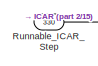
[diagram: root canvas - part 1/15, top center region]
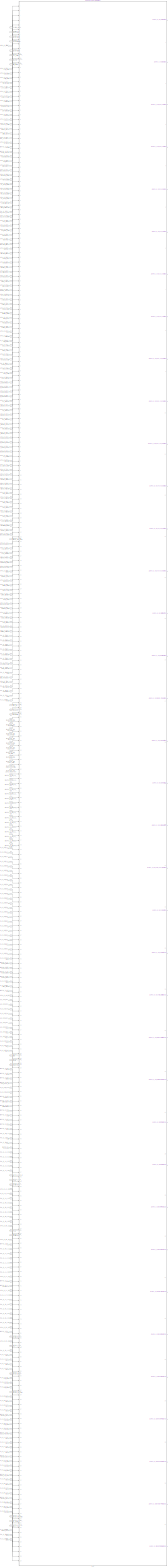
[diagram: root canvas - part 2/15, most of the canvas]
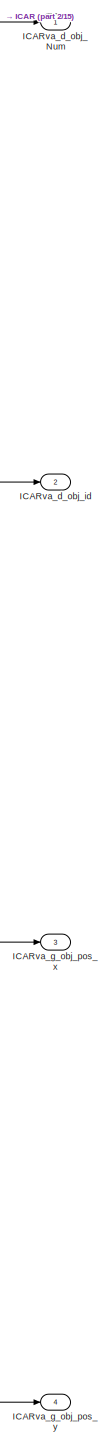
[diagram: root canvas - part 3/15, top right region]
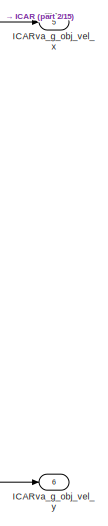
[diagram: root canvas - part 4/15, top right region]
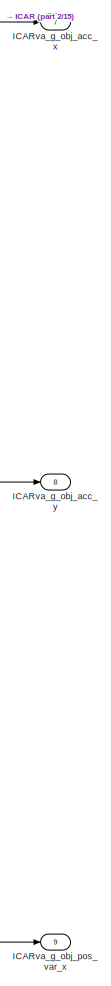
[diagram: root canvas - part 5/15, top right region]
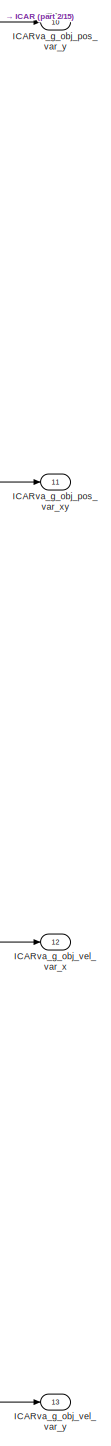
[diagram: root canvas - part 6/15, top right region]
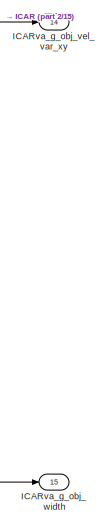
[diagram: root canvas - part 7/15, middle right region]
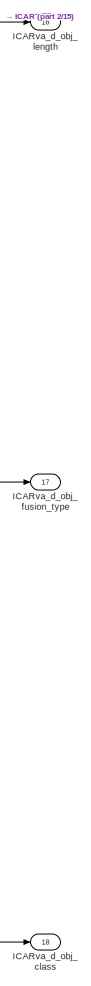
[diagram: root canvas - part 8/15, middle right region]
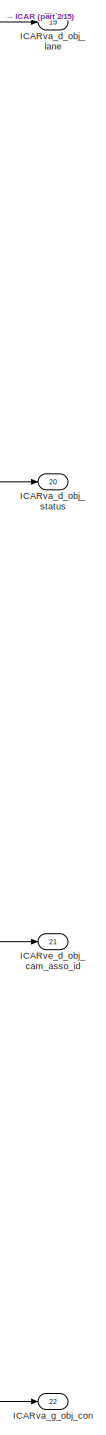
[diagram: root canvas - part 9/15, middle right region]
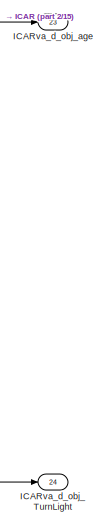
[diagram: root canvas - part 10/15, middle right region]
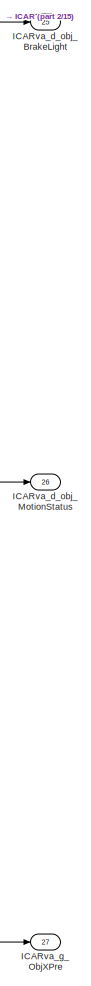
[diagram: root canvas - part 11/15, bottom right region]
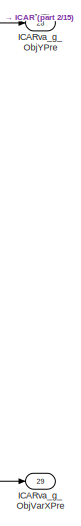
[diagram: root canvas - part 12/15, bottom right region]
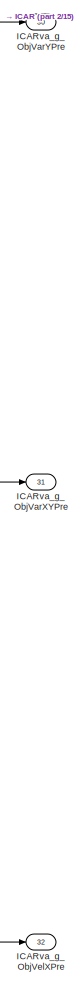
[diagram: root canvas - part 13/15, bottom right region]
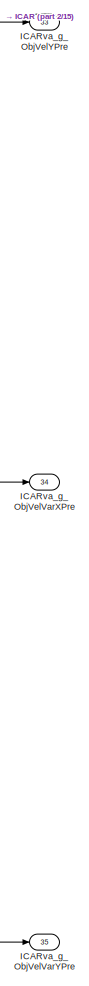
[diagram: root canvas - part 14/15, bottom right region]
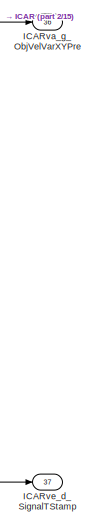
[diagram: root canvas - part 15/15, bottom right region]
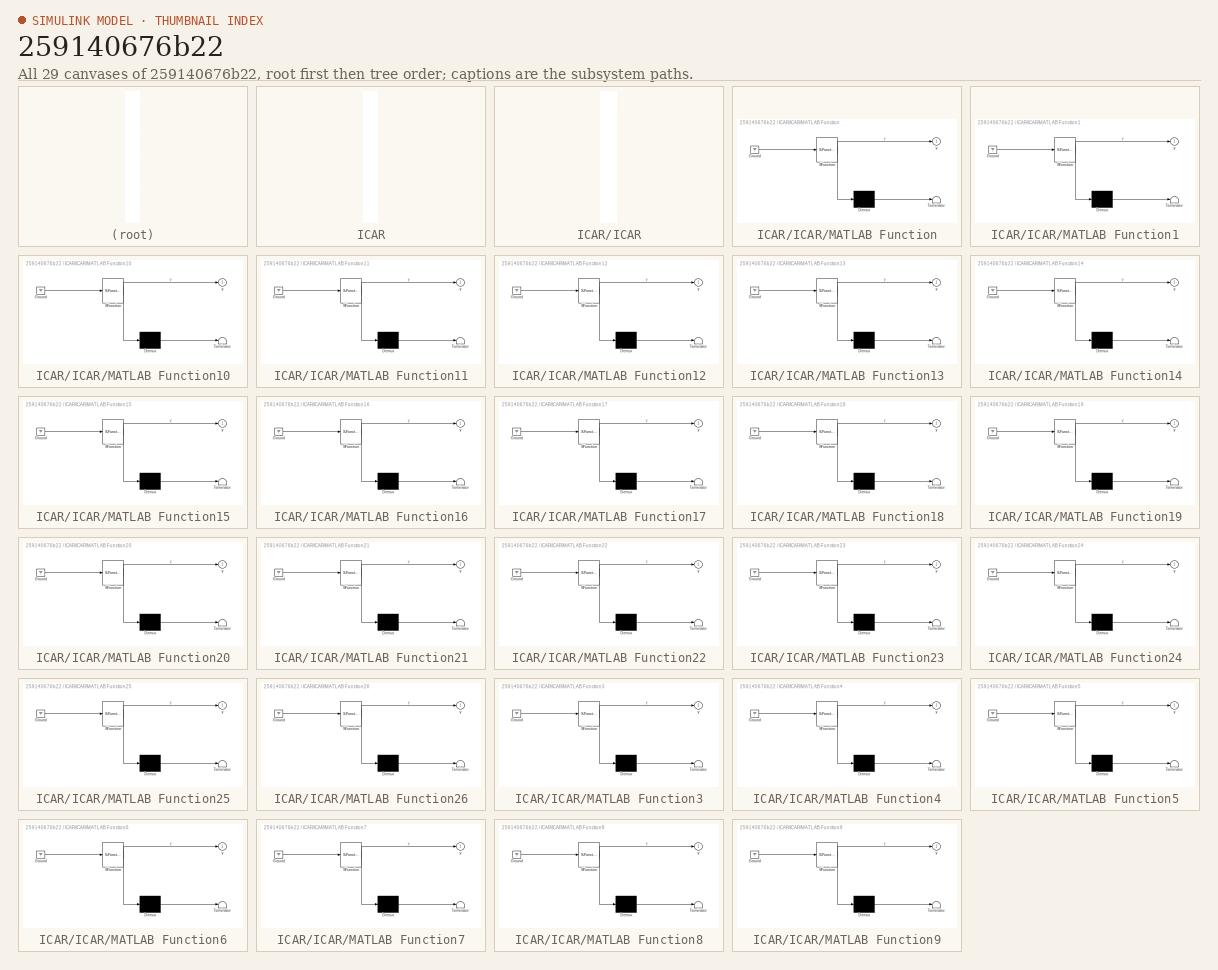
[diagram: thumbnail index - all 29 canvases of the model, root first then tree order]
MODEL slx_259140676b22
KIND model
CONFIG AbsTol = auto
CONFIG EnableMultiTasking = off
CONFIG FixedStep = auto
CONFIG MaxStep = auto
CONFIG MinStep = auto
CONFIG RelTol = 1e-3
CONFIG SampleTimeConstraint = Unconstrained
CONFIG Solver = FixedStepAuto
CONFIG SolverName = FixedStepAuto
CONFIG StartTime = 0.0
CONFIG StopTime = 10.0
BLOCK [Inport] FDMMve_d_IcaFcnConf
  IconDisplay = Port number
  OutDataTypeStr = UInt16
  Port = 2
BLOCK [Inport] FDMMve_d_SignalTStamp
  IconDisplay = Port number
  OutDataTypeStr = UInt16
  Port = 3
BLOCK [Inport] ICABva_g_FilterInfo
  IconDisplay = Port number
  OutDataTypeStr = T_M_Nm_Float32
  Port = 5
  PortDimensions = 50
BLOCK [Inport] ICABva_g_VehParameter
  IconDisplay = Port number
  OutDataTypeStr = T_M_Nm_Float32
  Port = 4
  PortDimensions = 60
BLOCK [Inport] ICABve_d_SignalTStamp
  IconDisplay = Port number
  OutDataTypeStr = UInt16
  Port = 6
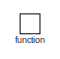
[diagram: ICAR - part 1/15, top center region]
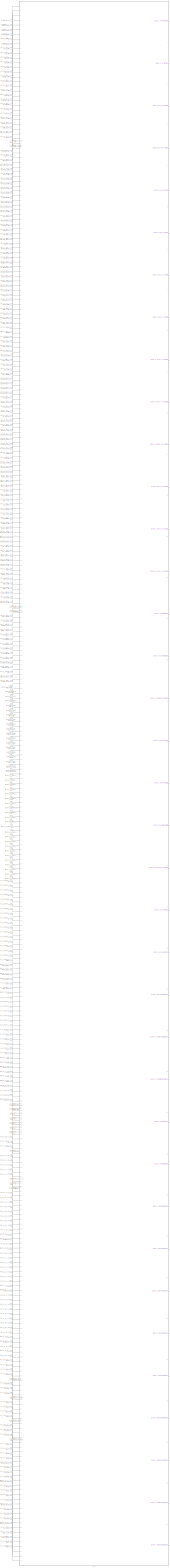
[diagram: ICAR - part 2/15, most of the canvas]
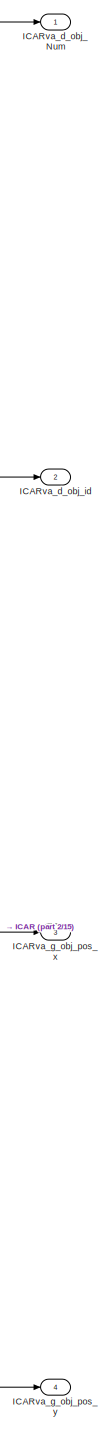
[diagram: ICAR - part 3/15, top right region]
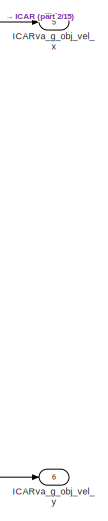
[diagram: ICAR - part 4/15, top right region]
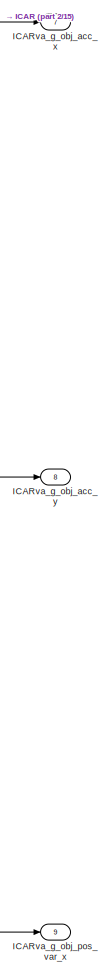
[diagram: ICAR - part 5/15, top right region]
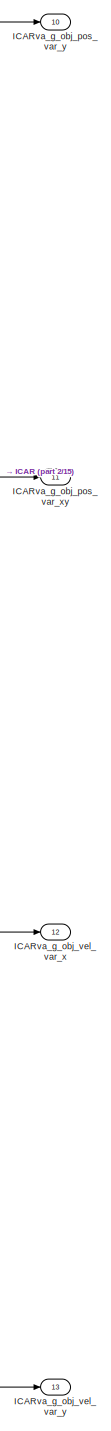
[diagram: ICAR - part 6/15, top right region]
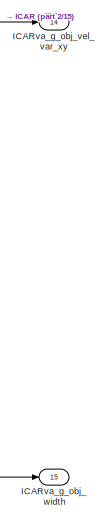
[diagram: ICAR - part 7/15, middle right region]
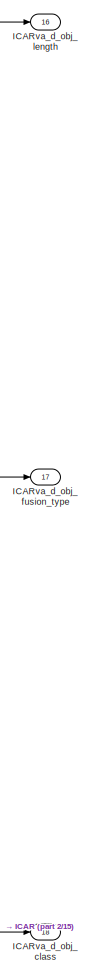
[diagram: ICAR - part 8/15, middle right region]
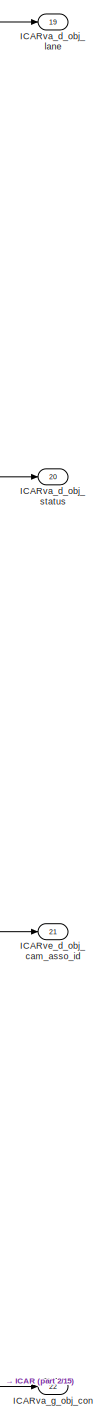
[diagram: ICAR - part 9/15, middle right region]
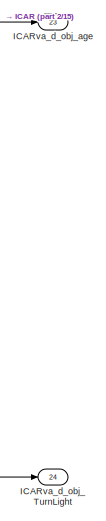
[diagram: ICAR - part 10/15, middle right region]
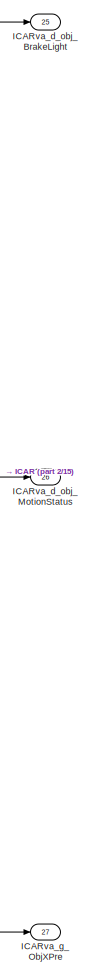
[diagram: ICAR - part 11/15, bottom right region]
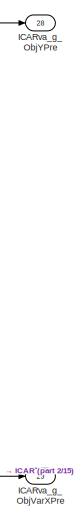
[diagram: ICAR - part 12/15, bottom right region]
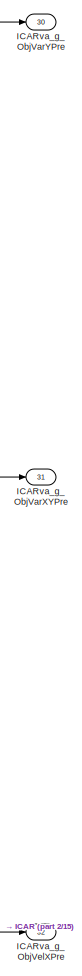
[diagram: ICAR - part 13/15, bottom right region]
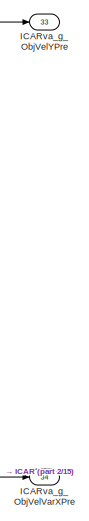
[diagram: ICAR - part 14/15, bottom right region]
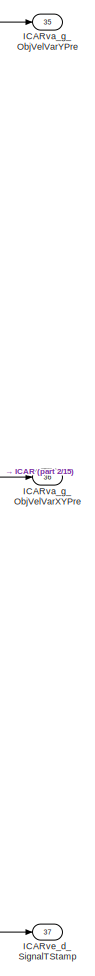
[diagram: ICAR - part 15/15, bottom right region]
BLOCK [SubSystem] ICAR
  Ports = [329, 37, 0, 1]
  RequestExecContextInheritance = off
  TreatAsAtomicUnit = on
BLOCK [Inport] ICAR/FDMMve_d_IcaFcnConf
  IconDisplay = Port number
  OutDataTypeStr = UInt16
  Port = 2
BLOCK [Inport] ICAR/FDMMve_d_SignalTStamp
  IconDisplay = Port number
  OutDataTypeStr = UInt16
  Port = 3
BLOCK [Inport] ICAR/ICABva_g_FilterInfo
  IconDisplay = Port number
  OutDataTypeStr = T_M_Nm_Float32
  Port = 5
  PortDimensions = 50
BLOCK [Inport] ICAR/ICABva_g_VehParameter
  IconDisplay = Port number
  OutDataTypeStr = T_M_Nm_Float32
  Port = 4
  PortDimensions = 60
BLOCK [Inport] ICAR/ICABve_d_SignalTStamp
  IconDisplay = Port number
  OutDataTypeStr = UInt16
  Port = 6
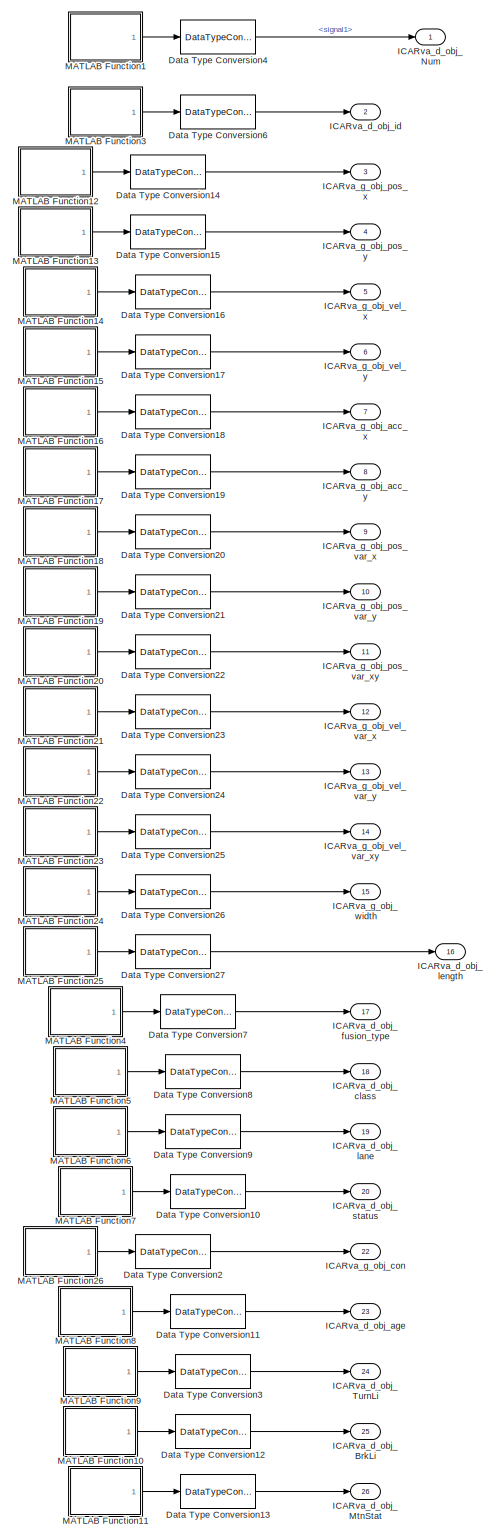
[diagram: ICAR/ICAR - part 1/20, top right region]
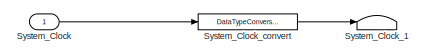
[diagram: ICAR/ICAR - part 2/20, top left region]
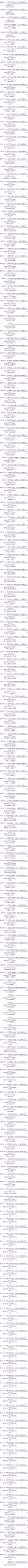
[diagram: ICAR/ICAR - part 3/20, top left region]
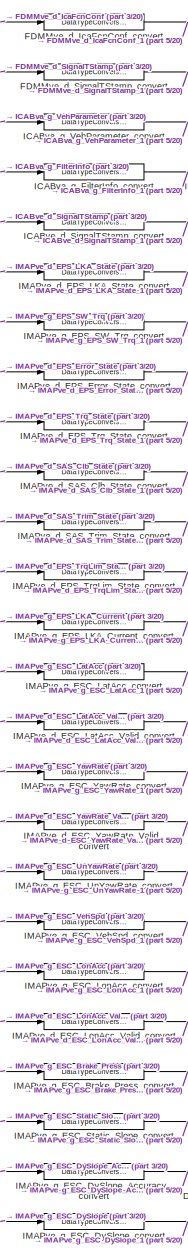
[diagram: ICAR/ICAR - part 4/20, top left region]
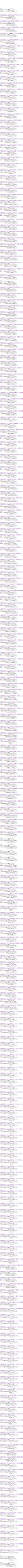
[diagram: ICAR/ICAR - part 5/20, left side, full height]
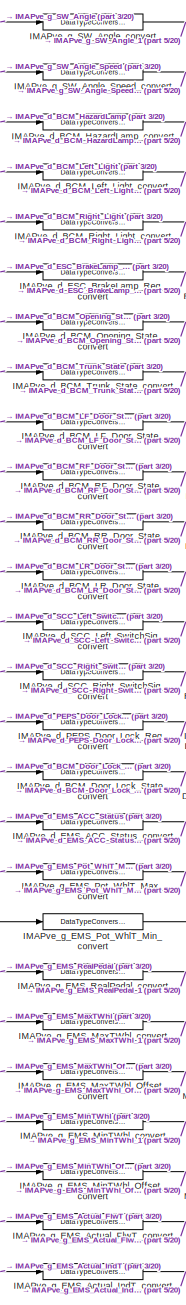
[diagram: ICAR/ICAR - part 6/20, top left region]
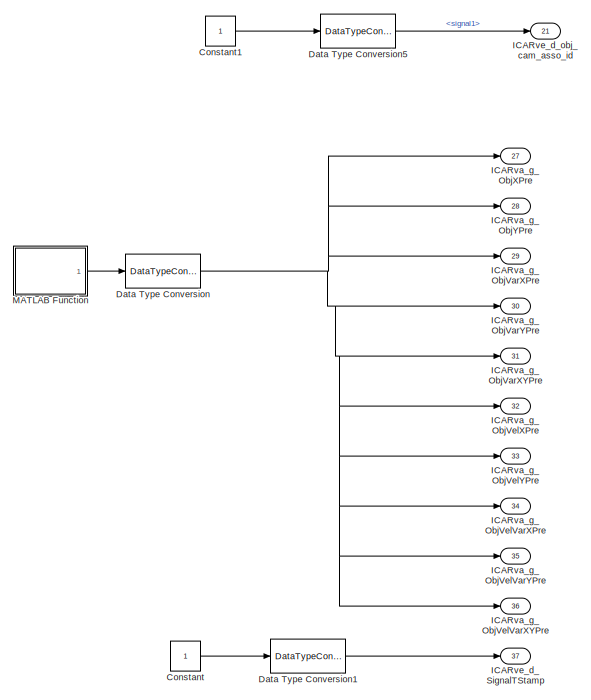
[diagram: ICAR/ICAR - part 7/20, top right region]
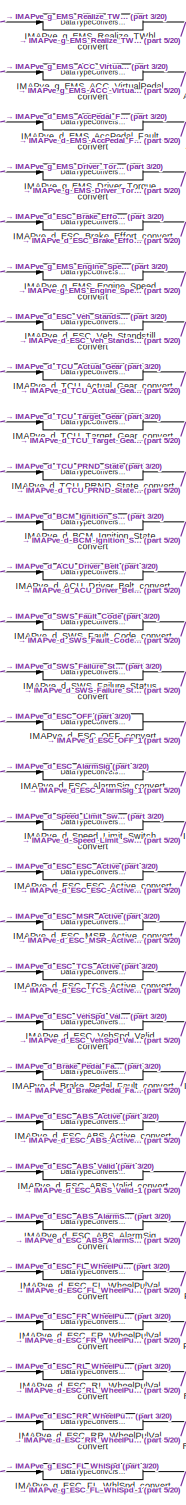
[diagram: ICAR/ICAR - part 8/20, top left region]
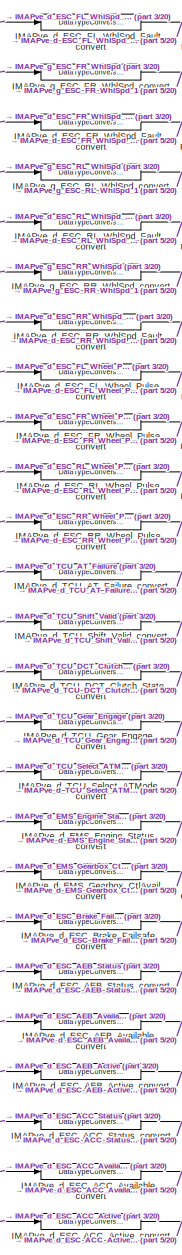
[diagram: ICAR/ICAR - part 9/20, top left region]
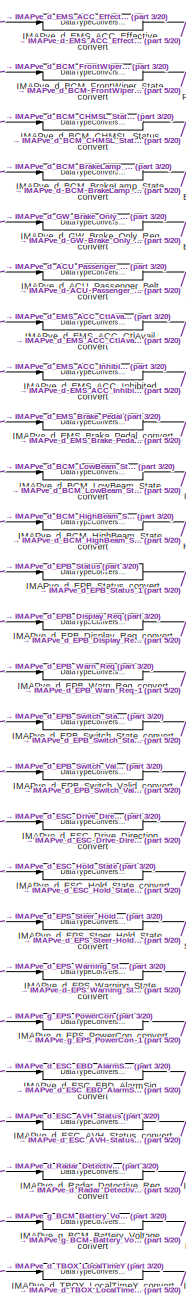
[diagram: ICAR/ICAR - part 10/20, middle left region]
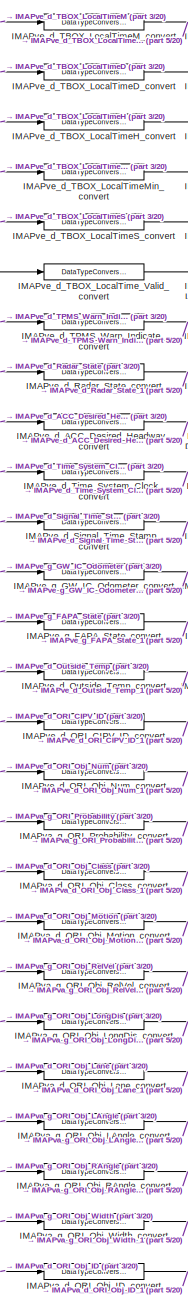
[diagram: ICAR/ICAR - part 11/20, middle left region]
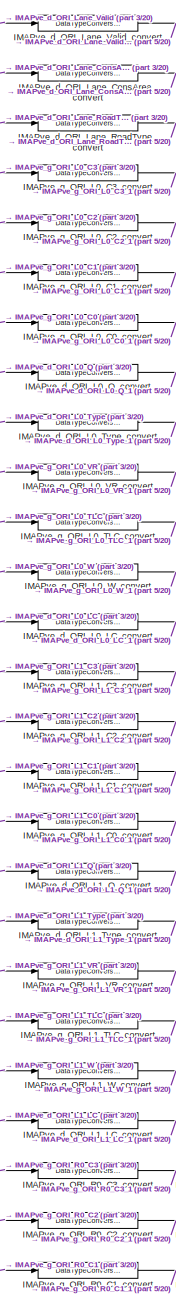
[diagram: ICAR/ICAR - part 12/20, middle left region]
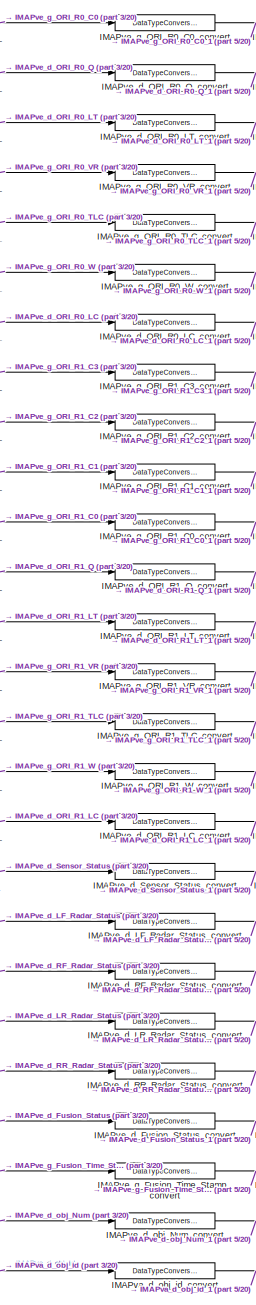
[diagram: ICAR/ICAR - part 13/20, middle left region]
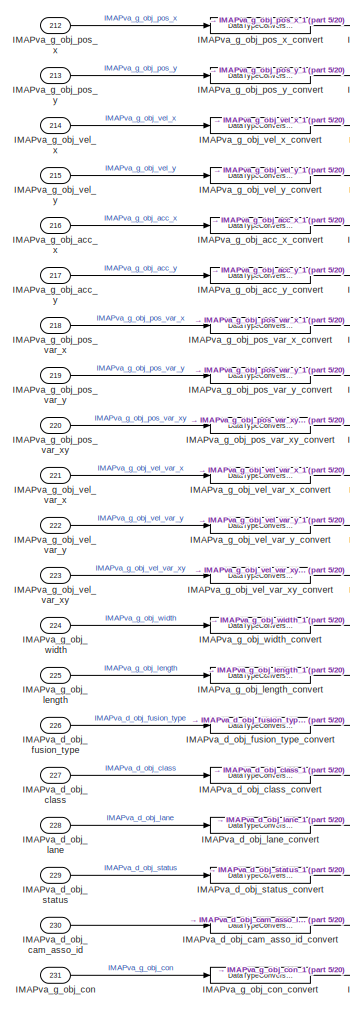
[diagram: ICAR/ICAR - part 14/20, bottom left region]
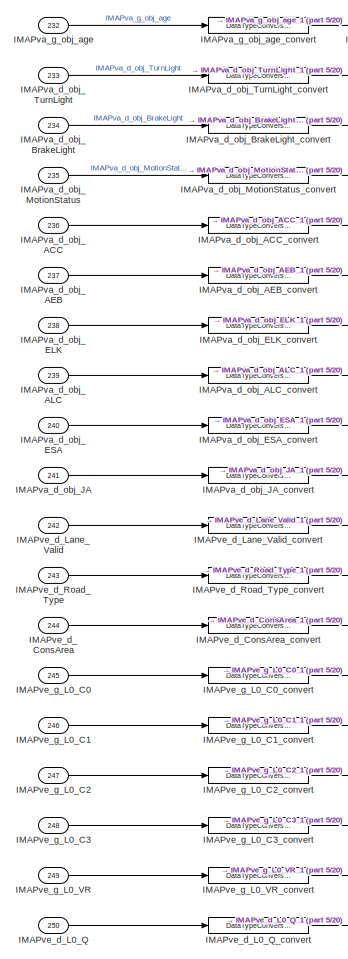
[diagram: ICAR/ICAR - part 15/20, bottom left region]
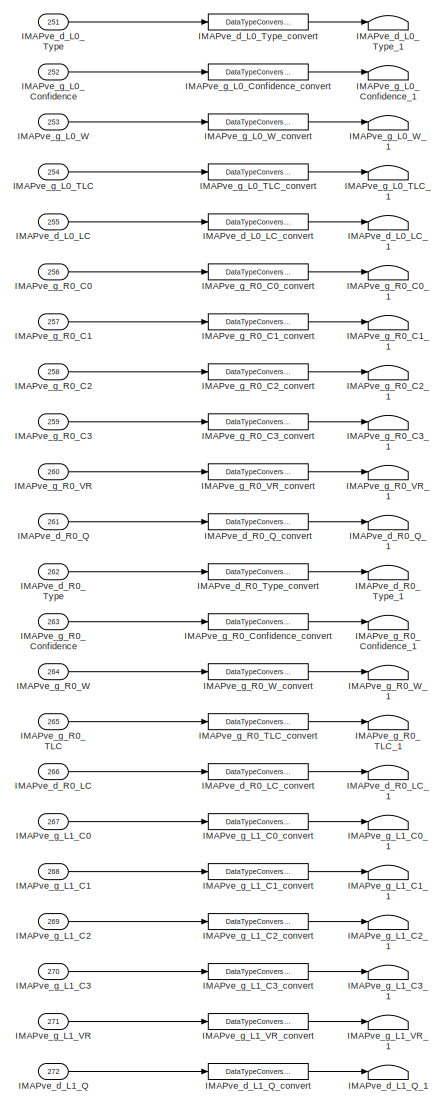
[diagram: ICAR/ICAR - part 16/20, bottom left region]
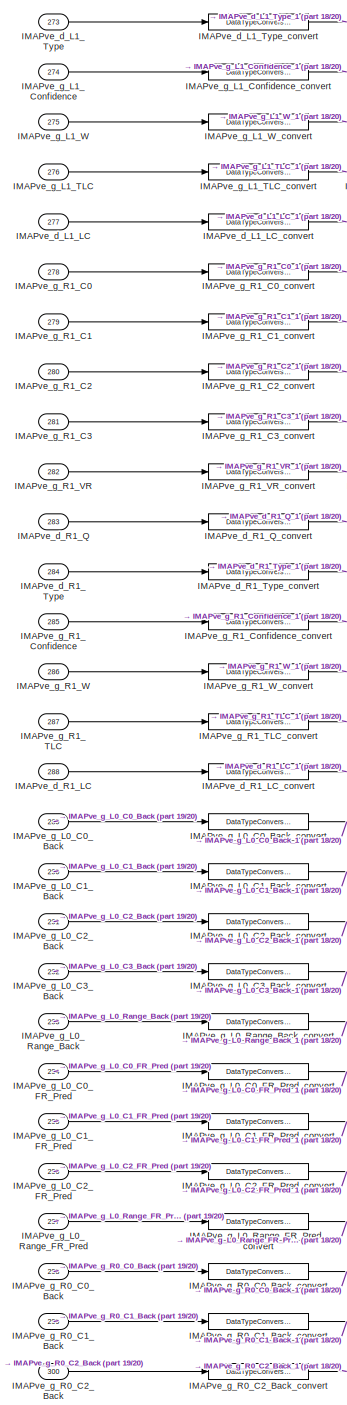
[diagram: ICAR/ICAR - part 17/20, bottom left region]
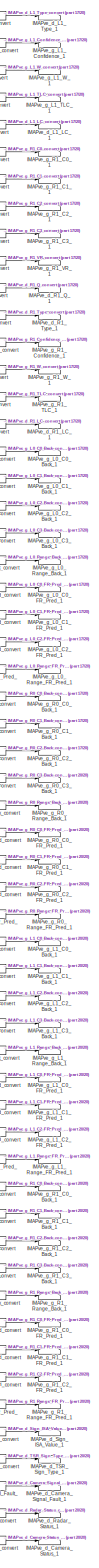
[diagram: ICAR/ICAR - part 18/20, bottom left region]
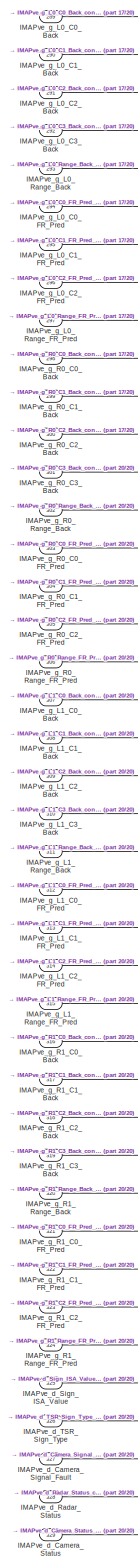
[diagram: ICAR/ICAR - part 19/20, bottom left region]
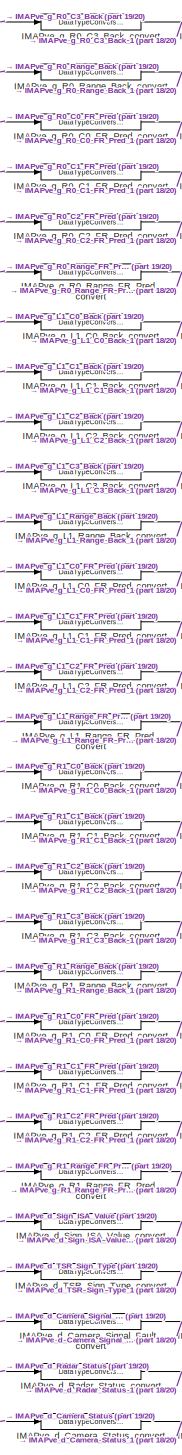
[diagram: ICAR/ICAR - part 20/20, bottom left region]
BLOCK [SubSystem] ICAR/ICAR
  Ports = [329, 37]
  RequestExecContextInheritance = off
  TreatAsAtomicUnit = on
BLOCK [Constant] ICAR/ICAR/Constant
BLOCK [Constant] ICAR/ICAR/Constant1
BLOCK [DataTypeConversion] ICAR/ICAR/Data Type Conversion
  OutDataTypeStr = T_M_Nm_Float32
  RndMeth = Floor
  SaturateOnIntegerOverflow = off
BLOCK [DataTypeConversion] ICAR/ICAR/Data Type Conversion1
  OutDataTypeStr = UInt16
  RndMeth = Floor
  SaturateOnIntegerOverflow = off
BLOCK [DataTypeConversion] ICAR/ICAR/Data Type Conversion10
  OutDataTypeStr = UInt16
  RndMeth = Floor
  SaturateOnIntegerOverflow = off
BLOCK [DataTypeConversion] ICAR/ICAR/Data Type Conversion11
  OutDataTypeStr = UInt16
  RndMeth = Floor
  SaturateOnIntegerOverflow = off
BLOCK [DataTypeConversion] ICAR/ICAR/Data Type Conversion12
  OutDataTypeStr = UInt16
  RndMeth = Floor
  SaturateOnIntegerOverflow = off
BLOCK [DataTypeConversion] ICAR/ICAR/Data Type Conversion13
  OutDataTypeStr = UInt16
  RndMeth = Floor
  SaturateOnIntegerOverflow = off
BLOCK [DataTypeConversion] ICAR/ICAR/Data Type Conversion14
  OutDataTypeStr = T_M_Nm_Float32
  RndMeth = Floor
  SaturateOnIntegerOverflow = off
BLOCK [DataTypeConversion] ICAR/ICAR/Data Type Conversion15
  OutDataTypeStr = T_M_Nm_Float32
  RndMeth = Floor
  SaturateOnIntegerOverflow = off
BLOCK [DataTypeConversion] ICAR/ICAR/Data Type Conversion16
  OutDataTypeStr = T_M_Nm_Float32
  RndMeth = Floor
  SaturateOnIntegerOverflow = off
BLOCK [DataTypeConversion] ICAR/ICAR/Data Type Conversion17
  OutDataTypeStr = T_M_Nm_Float32
  RndMeth = Floor
  SaturateOnIntegerOverflow = off
BLOCK [DataTypeConversion] ICAR/ICAR/Data Type Conversion18
  OutDataTypeStr = T_M_Nm_Float32
  RndMeth = Floor
  SaturateOnIntegerOverflow = off
BLOCK [DataTypeConversion] ICAR/ICAR/Data Type Conversion19
  OutDataTypeStr = T_M_Nm_Float32
  RndMeth = Floor
  SaturateOnIntegerOverflow = off
BLOCK [DataTypeConversion] ICAR/ICAR/Data Type Conversion2
  OutDataTypeStr = T_M_Nm_Float32
  RndMeth = Floor
  SaturateOnIntegerOverflow = off
BLOCK [DataTypeConversion] ICAR/ICAR/Data Type Conversion20
  OutDataTypeStr = T_M_Nm_Float32
  RndMeth = Floor
  SaturateOnIntegerOverflow = off
BLOCK [DataTypeConversion] ICAR/ICAR/Data Type Conversion21
  OutDataTypeStr = T_M_Nm_Float32
  RndMeth = Floor
  SaturateOnIntegerOverflow = off
BLOCK [DataTypeConversion] ICAR/ICAR/Data Type Conversion22
  OutDataTypeStr = T_M_Nm_Float32
  RndMeth = Floor
  SaturateOnIntegerOverflow = off
BLOCK [DataTypeConversion] ICAR/ICAR/Data Type Conversion23
  OutDataTypeStr = T_M_Nm_Float32
  RndMeth = Floor
  SaturateOnIntegerOverflow = off
BLOCK [DataTypeConversion] ICAR/ICAR/Data Type Conversion24
  OutDataTypeStr = T_M_Nm_Float32
  RndMeth = Floor
  SaturateOnIntegerOverflow = off
BLOCK [DataTypeConversion] ICAR/ICAR/Data Type Conversion25
  OutDataTypeStr = T_M_Nm_Float32
  RndMeth = Floor
  SaturateOnIntegerOverflow = off
BLOCK [DataTypeConversion] ICAR/ICAR/Data Type Conversion26
  OutDataTypeStr = T_M_Nm_Float32
  RndMeth = Floor
  SaturateOnIntegerOverflow = off
BLOCK [DataTypeConversion] ICAR/ICAR/Data Type Conversion27
  OutDataTypeStr = T_M_Nm_Float32
  RndMeth = Floor
  SaturateOnIntegerOverflow = off
BLOCK [DataTypeConversion] ICAR/ICAR/Data Type Conversion3
  OutDataTypeStr = UInt16
  RndMeth = Floor
  SaturateOnIntegerOverflow = off
BLOCK [DataTypeConversion] ICAR/ICAR/Data Type Conversion4
  OutDataTypeStr = UInt16
  RndMeth = Floor
  SaturateOnIntegerOverflow = off
BLOCK [DataTypeConversion] ICAR/ICAR/Data Type Conversion5
  OutDataTypeStr = UInt16
  RndMeth = Floor
  SaturateOnIntegerOverflow = off
BLOCK [DataTypeConversion] ICAR/ICAR/Data Type Conversion6
  OutDataTypeStr = UInt16
  RndMeth = Floor
  SaturateOnIntegerOverflow = off
BLOCK [DataTypeConversion] ICAR/ICAR/Data Type Conversion7
  OutDataTypeStr = UInt16
  RndMeth = Floor
  SaturateOnIntegerOverflow = off
BLOCK [DataTypeConversion] ICAR/ICAR/Data Type Conversion8
  OutDataTypeStr = UInt16
  RndMeth = Floor
  SaturateOnIntegerOverflow = off
BLOCK [DataTypeConversion] ICAR/ICAR/Data Type Conversion9
  OutDataTypeStr = UInt16
  RndMeth = Floor
  SaturateOnIntegerOverflow = off
BLOCK [Inport] ICAR/ICAR/FDMMve_d_IcaFcnConf
  IconDisplay = Port number
  OutDataTypeStr = UInt16
  Port = 2
BLOCK [Terminator] ICAR/ICAR/FDMMve_d_IcaFcnConf_1
BLOCK [DataTypeConversion] ICAR/ICAR/FDMMve_d_IcaFcnConf_convert
  OutDataTypeStr = uint8
  RndMeth = Floor
  SaturateOnIntegerOverflow = off
BLOCK [Inport] ICAR/ICAR/FDMMve_d_SignalTStamp
  IconDisplay = Port number
  OutDataTypeStr = UInt16
  Port = 3
BLOCK [Terminator] ICAR/ICAR/FDMMve_d_SignalTStamp_1
BLOCK [DataTypeConversion] ICAR/ICAR/FDMMve_d_SignalTStamp_convert
  OutDataTypeStr = uint8
  RndMeth = Floor
  SaturateOnIntegerOverflow = off
BLOCK [Inport] ICAR/ICAR/ICABva_g_FilterInfo
  IconDisplay = Port number
  OutDataTypeStr = T_M_Nm_Float32
  Port = 5
  PortDimensions = 50
BLOCK [Terminator] ICAR/ICAR/ICABva_g_FilterInfo_1
BLOCK [DataTypeConversion] ICAR/ICAR/ICABva_g_FilterInfo_convert
  OutDataTypeStr = uint8
  RndMeth = Floor
  SaturateOnIntegerOverflow = off
BLOCK [Inport] ICAR/ICAR/ICABva_g_VehParameter
  IconDisplay = Port number
  OutDataTypeStr = T_M_Nm_Float32
  Port = 4
  PortDimensions = 60
BLOCK [Terminator] ICAR/ICAR/ICABva_g_VehParameter_1
BLOCK [DataTypeConversion] ICAR/ICAR/ICABva_g_VehParameter_convert
  OutDataTypeStr = uint8
  RndMeth = Floor
  SaturateOnIntegerOverflow = off
BLOCK [Inport] ICAR/ICAR/ICABve_d_SignalTStamp
  IconDisplay = Port number
  OutDataTypeStr = UInt16
  Port = 6
BLOCK [Terminator] ICAR/ICAR/ICABve_d_SignalTStamp_1
BLOCK [DataTypeConversion] ICAR/ICAR/ICABve_d_SignalTStamp_convert
  OutDataTypeStr = uint8
  RndMeth = Floor
  SaturateOnIntegerOverflow = off
BLOCK [Outport] ICAR/ICAR/ICARva_d_obj_BrkLi
  IconDisplay = Port number
  OutDataTypeStr = UInt16
  Port = 25
  PortDimensions = 40
BLOCK [Outport] ICAR/ICAR/ICARva_d_obj_MtnStat
  IconDisplay = Port number
  OutDataTypeStr = UInt16
  Port = 26
  PortDimensions = 40
BLOCK [Outport] ICAR/ICAR/ICARva_d_obj_Num
  IconDisplay = Port number
  OutDataTypeStr = UInt16
  PortDimensions = 40
BLOCK [Outport] ICAR/ICAR/ICARva_d_obj_TurnLi
  IconDisplay = Port number
  OutDataTypeStr = UInt16
  Port = 24
  PortDimensions = 40
BLOCK [Outport] ICAR/ICAR/ICARva_d_obj_age
  IconDisplay = Port number
  OutDataTypeStr = UInt16
  Port = 23
  PortDimensions = 40
BLOCK [Outport] ICAR/ICAR/ICARva_d_obj_class
  IconDisplay = Port number
  OutDataTypeStr = UInt16
  Port = 18
  PortDimensions = 40
BLOCK [Outport] ICAR/ICAR/ICARva_d_obj_fusion_type
  IconDisplay = Port number
  OutDataTypeStr = UInt16
  Port = 17
  PortDimensions = 40
BLOCK [Outport] ICAR/ICAR/ICARva_d_obj_id
  IconDisplay = Port number
  OutDataTypeStr = UInt16
  Port = 2
  PortDimensions = 40
BLOCK [Outport] ICAR/ICAR/ICARva_d_obj_lane
  IconDisplay = Port number
  OutDataTypeStr = UInt16
  Port = 19
  PortDimensions = 40
BLOCK [Outport] ICAR/ICAR/ICARva_d_obj_length
  IconDisplay = Port number
  OutDataTypeStr = T_M_Nm_Float32
  Port = 16
  PortDimensions = 40
BLOCK [Outport] ICAR/ICAR/ICARva_d_obj_status
  IconDisplay = Port number
  OutDataTypeStr = UInt16
  Port = 20
  PortDimensions = 40
BLOCK [Outport] ICAR/ICAR/ICARva_g_ObjVarXPre
  IconDisplay = Port number
  OutDataTypeStr = T_M_Nm_Float32
  Port = 29
  PortDimensions = 240
BLOCK [Outport] ICAR/ICAR/ICARva_g_ObjVarXYPre
  IconDisplay = Port number
  OutDataTypeStr = T_M_Nm_Float32
  Port = 31
  PortDimensions = 240
BLOCK [Outport] ICAR/ICAR/ICARva_g_ObjVarYPre
  IconDisplay = Port number
  OutDataTypeStr = T_M_Nm_Float32
  Port = 30
  PortDimensions = 240
BLOCK [Outport] ICAR/ICAR/ICARva_g_ObjVelVarXPre
  IconDisplay = Port number
  OutDataTypeStr = T_M_Nm_Float32
  Port = 34
  PortDimensions = 240
BLOCK [Outport] ICAR/ICAR/ICARva_g_ObjVelVarXYPre
  IconDisplay = Port number
  OutDataTypeStr = T_M_Nm_Float32
  Port = 36
  PortDimensions = 240
BLOCK [Outport] ICAR/ICAR/ICARva_g_ObjVelVarYPre
  IconDisplay = Port number
  OutDataTypeStr = T_M_Nm_Float32
  Port = 35
  PortDimensions = 240
BLOCK [Outport] ICAR/ICAR/ICARva_g_ObjVelXPre
  IconDisplay = Port number
  OutDataTypeStr = T_M_Nm_Float32
  Port = 32
  PortDimensions = 240
BLOCK [Outport] ICAR/ICAR/ICARva_g_ObjVelYPre
  IconDisplay = Port number
  OutDataTypeStr = T_M_Nm_Float32
  Port = 33
  PortDimensions = 240
BLOCK [Outport] ICAR/ICAR/ICARva_g_ObjXPre
  IconDisplay = Port number
  OutDataTypeStr = T_M_Nm_Float32
  Port = 27
  PortDimensions = 240
BLOCK [Outport] ICAR/ICAR/ICARva_g_ObjYPre
  IconDisplay = Port number
  OutDataTypeStr = T_M_Nm_Float32
  Port = 28
  PortDimensions = 240
BLOCK [Outport] ICAR/ICAR/ICARva_g_obj_acc_x
  IconDisplay = Port number
  OutDataTypeStr = T_M_Nm_Float32
  Port = 7
  PortDimensions = 40
BLOCK [Outport] ICAR/ICAR/ICARva_g_obj_acc_y
  IconDisplay = Port number
  OutDataTypeStr = T_M_Nm_Float32
  Port = 8
  PortDimensions = 40
BLOCK [Outport] ICAR/ICAR/ICARva_g_obj_con
  IconDisplay = Port number
  OutDataTypeStr = T_M_Nm_Float32
  Port = 22
  PortDimensions = 40
BLOCK [Outport] ICAR/ICAR/ICARva_g_obj_pos_var_x
  IconDisplay = Port number
  OutDataTypeStr = T_M_Nm_Float32
  Port = 9
  PortDimensions = 40
BLOCK [Outport] ICAR/ICAR/ICARva_g_obj_pos_var_xy
  IconDisplay = Port number
  OutDataTypeStr = T_M_Nm_Float32
  Port = 11
  PortDimensions = 40
BLOCK [Outport] ICAR/ICAR/ICARva_g_obj_pos_var_y
  IconDisplay = Port number
  OutDataTypeStr = T_M_Nm_Float32
  Port = 10
  PortDimensions = 40
BLOCK [Outport] ICAR/ICAR/ICARva_g_obj_pos_x
  IconDisplay = Port number
  OutDataTypeStr = T_M_Nm_Float32
  Port = 3
  PortDimensions = 40
BLOCK [Outport] ICAR/ICAR/ICARva_g_obj_pos_y
  IconDisplay = Port number
  OutDataTypeStr = T_M_Nm_Float32
  Port = 4
  PortDimensions = 40
BLOCK [Outport] ICAR/ICAR/ICARva_g_obj_vel_var_x
  IconDisplay = Port number
  OutDataTypeStr = T_M_Nm_Float32
  Port = 12
  PortDimensions = 40
BLOCK [Outport] ICAR/ICAR/ICARva_g_obj_vel_var_xy
  IconDisplay = Port number
  OutDataTypeStr = T_M_Nm_Float32
  Port = 14
  PortDimensions = 40
BLOCK [Outport] ICAR/ICAR/ICARva_g_obj_vel_var_y
  IconDisplay = Port number
  OutDataTypeStr = T_M_Nm_Float32
  Port = 13
  PortDimensions = 40
BLOCK [Outport] ICAR/ICAR/ICARva_g_obj_vel_x
  IconDisplay = Port number
  OutDataTypeStr = T_M_Nm_Float32
  Port = 5
  PortDimensions = 40
BLOCK [Outport] ICAR/ICAR/ICARva_g_obj_vel_y
  IconDisplay = Port number
  OutDataTypeStr = T_M_Nm_Float32
  Port = 6
  PortDimensions = 40
BLOCK [Outport] ICAR/ICAR/ICARva_g_obj_width
  IconDisplay = Port number
  OutDataTypeStr = T_M_Nm_Float32
  Port = 15
  PortDimensions = 40
BLOCK [Outport] ICAR/ICAR/ICARve_d_SignalTStamp
  IconDisplay = Port number
  OutDataTypeStr = UInt16
  Port = 37
BLOCK [Outport] ICAR/ICAR/ICARve_d_obj_cam_asso_id
  IconDisplay = Port number
  OutDataTypeStr = UInt16
  Port = 21
BLOCK [Inport] ICAR/ICAR/IMAPva_d_ORI_Obj_Class
  IconDisplay = Port number
  OutDataTypeStr = UInt16
  Port = 151
  PortDimensions = 16
BLOCK [Terminator] ICAR/ICAR/IMAPva_d_ORI_Obj_Class_1
BLOCK [DataTypeConversion] ICAR/ICAR/IMAPva_d_ORI_Obj_Class_convert
  OutDataTypeStr = uint8
  RndMeth = Floor
  SaturateOnIntegerOverflow = off
BLOCK [Inport] ICAR/ICAR/IMAPva_d_ORI_Obj_ID
  IconDisplay = Port number
  OutDataTypeStr = UInt16
  Port = 159
  PortDimensions = 16
BLOCK [Terminator] ICAR/ICAR/IMAPva_d_ORI_Obj_ID_1
BLOCK [DataTypeConversion] ICAR/ICAR/IMAPva_d_ORI_Obj_ID_convert
  OutDataTypeStr = uint8
  RndMeth = Floor
  SaturateOnIntegerOverflow = off
BLOCK [Inport] ICAR/ICAR/IMAPva_d_ORI_Obj_Lane
  IconDisplay = Port number
  OutDataTypeStr = UInt16
  Port = 155
  PortDimensions = 16
BLOCK [Terminator] ICAR/ICAR/IMAPva_d_ORI_Obj_Lane_1
BLOCK [DataTypeConversion] ICAR/ICAR/IMAPva_d_ORI_Obj_Lane_convert
  OutDataTypeStr = uint8
  RndMeth = Floor
  SaturateOnIntegerOverflow = off
BLOCK [Inport] ICAR/ICAR/IMAPva_d_ORI_Obj_Motion
  IconDisplay = Port number
  OutDataTypeStr = UInt16
  Port = 152
  PortDimensions = 16
BLOCK [Terminator] ICAR/ICAR/IMAPva_d_ORI_Obj_Motion_1
BLOCK [DataTypeConversion] ICAR/ICAR/IMAPva_d_ORI_Obj_Motion_convert
  OutDataTypeStr = uint8
  RndMeth = Floor
  SaturateOnIntegerOverflow = off
BLOCK [Inport] ICAR/ICAR/IMAPva_d_obj_ACC
  IconDisplay = Port number
  OutDataTypeStr = UInt16
  Port = 236
  PortDimensions = 40
BLOCK [Terminator] ICAR/ICAR/IMAPva_d_obj_ACC_1
BLOCK [DataTypeConversion] ICAR/ICAR/IMAPva_d_obj_ACC_convert
  OutDataTypeStr = uint8
  RndMeth = Floor
  SaturateOnIntegerOverflow = off
BLOCK [Inport] ICAR/ICAR/IMAPva_d_obj_AEB
  IconDisplay = Port number
  OutDataTypeStr = UInt16
  Port = 237
  PortDimensions = 40
BLOCK [Terminator] ICAR/ICAR/IMAPva_d_obj_AEB_1
BLOCK [DataTypeConversion] ICAR/ICAR/IMAPva_d_obj_AEB_convert
  OutDataTypeStr = uint8
  RndMeth = Floor
  SaturateOnIntegerOverflow = off
BLOCK [Inport] ICAR/ICAR/IMAPva_d_obj_ALC
  IconDisplay = Port number
  OutDataTypeStr = UInt16
  Port = 239
  PortDimensions = 40
BLOCK [Terminator] ICAR/ICAR/IMAPva_d_obj_ALC_1
BLOCK [DataTypeConversion] ICAR/ICAR/IMAPva_d_obj_ALC_convert
  OutDataTypeStr = uint8
  RndMeth = Floor
  SaturateOnIntegerOverflow = off
BLOCK [Inport] ICAR/ICAR/IMAPva_d_obj_BrakeLight
  IconDisplay = Port number
  OutDataTypeStr = UInt16
  Port = 234
  PortDimensions = 40
BLOCK [Terminator] ICAR/ICAR/IMAPva_d_obj_BrakeLight_1
BLOCK [DataTypeConversion] ICAR/ICAR/IMAPva_d_obj_BrakeLight_convert
  OutDataTypeStr = uint8
  RndMeth = Floor
  SaturateOnIntegerOverflow = off
BLOCK [Inport] ICAR/ICAR/IMAPva_d_obj_ELK
  IconDisplay = Port number
  OutDataTypeStr = UInt16
  Port = 238
  PortDimensions = 40
BLOCK [Terminator] ICAR/ICAR/IMAPva_d_obj_ELK_1
BLOCK [DataTypeConversion] ICAR/ICAR/IMAPva_d_obj_ELK_convert
  OutDataTypeStr = uint8
  RndMeth = Floor
  SaturateOnIntegerOverflow = off
BLOCK [Inport] ICAR/ICAR/IMAPva_d_obj_ESA
  IconDisplay = Port number
  OutDataTypeStr = UInt16
  Port = 240
  PortDimensions = 40
BLOCK [Terminator] ICAR/ICAR/IMAPva_d_obj_ESA_1
BLOCK [DataTypeConversion] ICAR/ICAR/IMAPva_d_obj_ESA_convert
  OutDataTypeStr = uint8
  RndMeth = Floor
  SaturateOnIntegerOverflow = off
BLOCK [Inport] ICAR/ICAR/IMAPva_d_obj_JA
  IconDisplay = Port number
  OutDataTypeStr = UInt16
  Port = 241
  PortDimensions = 40
BLOCK [Terminator] ICAR/ICAR/IMAPva_d_obj_JA_1
BLOCK [DataTypeConversion] ICAR/ICAR/IMAPva_d_obj_JA_convert
  OutDataTypeStr = uint8
  RndMeth = Floor
  SaturateOnIntegerOverflow = off
BLOCK [Inport] ICAR/ICAR/IMAPva_d_obj_MotionStatus
  IconDisplay = Port number
  OutDataTypeStr = UInt16
  Port = 235
  PortDimensions = 40
BLOCK [Terminator] ICAR/ICAR/IMAPva_d_obj_MotionStatus_1
BLOCK [DataTypeConversion] ICAR/ICAR/IMAPva_d_obj_MotionStatus_convert
  OutDataTypeStr = uint8
  RndMeth = Floor
  SaturateOnIntegerOverflow = off
BLOCK [Inport] ICAR/ICAR/IMAPva_d_obj_TurnLight
  IconDisplay = Port number
  OutDataTypeStr = UInt16
  Port = 233
  PortDimensions = 40
BLOCK [Terminator] ICAR/ICAR/IMAPva_d_obj_TurnLight_1
BLOCK [DataTypeConversion] ICAR/ICAR/IMAPva_d_obj_TurnLight_convert
  OutDataTypeStr = uint8
  RndMeth = Floor
  SaturateOnIntegerOverflow = off
BLOCK [Inport] ICAR/ICAR/IMAPva_d_obj_cam_asso_id
  IconDisplay = Port number
  OutDataTypeStr = UInt16
  Port = 230
  PortDimensions = 40
BLOCK [Terminator] ICAR/ICAR/IMAPva_d_obj_cam_asso_id_1
BLOCK [DataTypeConversion] ICAR/ICAR/IMAPva_d_obj_cam_asso_id_convert
  OutDataTypeStr = uint8
  RndMeth = Floor
  SaturateOnIntegerOverflow = off
BLOCK [Inport] ICAR/ICAR/IMAPva_d_obj_class
  IconDisplay = Port number
  OutDataTypeStr = UInt16
  Port = 227
  PortDimensions = 40
BLOCK [Terminator] ICAR/ICAR/IMAPva_d_obj_class_1
BLOCK [DataTypeConversion] ICAR/ICAR/IMAPva_d_obj_class_convert
  OutDataTypeStr = uint8
  RndMeth = Floor
  SaturateOnIntegerOverflow = off
BLOCK [Inport] ICAR/ICAR/IMAPva_d_obj_fusion_type
  IconDisplay = Port number
  OutDataTypeStr = UInt16
  Port = 226
  PortDimensions = 40
BLOCK [Terminator] ICAR/ICAR/IMAPva_d_obj_fusion_type_1
BLOCK [DataTypeConversion] ICAR/ICAR/IMAPva_d_obj_fusion_type_convert
  OutDataTypeStr = uint8
  RndMeth = Floor
  SaturateOnIntegerOverflow = off
BLOCK [Inport] ICAR/ICAR/IMAPva_d_obj_id
  IconDisplay = Port number
  OutDataTypeStr = UInt16
  Port = 211
  PortDimensions = 40
BLOCK [Terminator] ICAR/ICAR/IMAPva_d_obj_id_1
BLOCK [DataTypeConversion] ICAR/ICAR/IMAPva_d_obj_id_convert
  OutDataTypeStr = uint8
  RndMeth = Floor
  SaturateOnIntegerOverflow = off
BLOCK [Inport] ICAR/ICAR/IMAPva_d_obj_lane
  IconDisplay = Port number
  OutDataTypeStr = UInt16
  Port = 228
  PortDimensions = 40
BLOCK [Terminator] ICAR/ICAR/IMAPva_d_obj_lane_1
BLOCK [DataTypeConversion] ICAR/ICAR/IMAPva_d_obj_lane_convert
  OutDataTypeStr = uint8
  RndMeth = Floor
  SaturateOnIntegerOverflow = off
BLOCK [Inport] ICAR/ICAR/IMAPva_d_obj_status
  IconDisplay = Port number
  OutDataTypeStr = UInt16
  Port = 229
  PortDimensions = 40
BLOCK [Terminator] ICAR/ICAR/IMAPva_d_obj_status_1
BLOCK [DataTypeConversion] ICAR/ICAR/IMAPva_d_obj_status_convert
  OutDataTypeStr = uint8
  RndMeth = Floor
  SaturateOnIntegerOverflow = off
BLOCK [Inport] ICAR/ICAR/IMAPva_g_ORI_Obj_LAngle
  IconDisplay = Port number
  OutDataTypeStr = T_M_Nm_Float32
  Port = 156
  PortDimensions = 16
BLOCK [Terminator] ICAR/ICAR/IMAPva_g_ORI_Obj_LAngle_1
BLOCK [DataTypeConversion] ICAR/ICAR/IMAPva_g_ORI_Obj_LAngle_convert
  OutDataTypeStr = uint8
  RndMeth = Floor
  SaturateOnIntegerOverflow = off
BLOCK [Inport] ICAR/ICAR/IMAPva_g_ORI_Obj_LongDis
  IconDisplay = Port number
  OutDataTypeStr = T_M_Nm_Float32
  Port = 154
  PortDimensions = 16
BLOCK [Terminator] ICAR/ICAR/IMAPva_g_ORI_Obj_LongDis_1
BLOCK [DataTypeConversion] ICAR/ICAR/IMAPva_g_ORI_Obj_LongDis_convert
  OutDataTypeStr = uint8
  RndMeth = Floor
  SaturateOnIntegerOverflow = off
BLOCK [Inport] ICAR/ICAR/IMAPva_g_ORI_Obj_RAngle
  IconDisplay = Port number
  OutDataTypeStr = T_M_Nm_Float32
  Port = 157
  PortDimensions = 16
BLOCK [Terminator] ICAR/ICAR/IMAPva_g_ORI_Obj_RAngle_1
BLOCK [DataTypeConversion] ICAR/ICAR/IMAPva_g_ORI_Obj_RAngle_convert
  OutDataTypeStr = uint8
  RndMeth = Floor
  SaturateOnIntegerOverflow = off
BLOCK [Inport] ICAR/ICAR/IMAPva_g_ORI_Obj_RelVel
  IconDisplay = Port number
  OutDataTypeStr = T_M_Nm_Float32
  Port = 153
  PortDimensions = 16
BLOCK [Terminator] ICAR/ICAR/IMAPva_g_ORI_Obj_RelVel_1
BLOCK [DataTypeConversion] ICAR/ICAR/IMAPva_g_ORI_Obj_RelVel_convert
  OutDataTypeStr = uint8
  RndMeth = Floor
  SaturateOnIntegerOverflow = off
BLOCK [Inport] ICAR/ICAR/IMAPva_g_ORI_Obj_Width
  IconDisplay = Port number
  OutDataTypeStr = T_M_Nm_Float32
  Port = 158
  PortDimensions = 16
BLOCK [Terminator] ICAR/ICAR/IMAPva_g_ORI_Obj_Width_1
BLOCK [DataTypeConversion] ICAR/ICAR/IMAPva_g_ORI_Obj_Width_convert
  OutDataTypeStr = uint8
  RndMeth = Floor
  SaturateOnIntegerOverflow = off
BLOCK [Inport] ICAR/ICAR/IMAPva_g_ORI_Probability
  IconDisplay = Port number
  OutDataTypeStr = T_M_Nm_Float32
  Port = 150
  PortDimensions = 16
BLOCK [Terminator] ICAR/ICAR/IMAPva_g_ORI_Probability_1
BLOCK [DataTypeConversion] ICAR/ICAR/IMAPva_g_ORI_Probability_convert
  OutDataTypeStr = uint8
  RndMeth = Floor
  SaturateOnIntegerOverflow = off
BLOCK [Inport] ICAR/ICAR/IMAPva_g_obj_acc_x
  IconDisplay = Port number
  OutDataTypeStr = T_M_Nm_Float32
  Port = 216
  PortDimensions = 40
BLOCK [Terminator] ICAR/ICAR/IMAPva_g_obj_acc_x_1
BLOCK [DataTypeConversion] ICAR/ICAR/IMAPva_g_obj_acc_x_convert
  OutDataTypeStr = uint8
  RndMeth = Floor
  SaturateOnIntegerOverflow = off
BLOCK [Inport] ICAR/ICAR/IMAPva_g_obj_acc_y
  IconDisplay = Port number
  OutDataTypeStr = T_M_Nm_Float32
  Port = 217
  PortDimensions = 40
BLOCK [Terminator] ICAR/ICAR/IMAPva_g_obj_acc_y_1
BLOCK [DataTypeConversion] ICAR/ICAR/IMAPva_g_obj_acc_y_convert
  OutDataTypeStr = uint8
  RndMeth = Floor
  SaturateOnIntegerOverflow = off
BLOCK [Inport] ICAR/ICAR/IMAPva_g_obj_age
  IconDisplay = Port number
  OutDataTypeStr = T_M_Nm_Float32
  Port = 232
  PortDimensions = 40
BLOCK [Terminator] ICAR/ICAR/IMAPva_g_obj_age_1
BLOCK [DataTypeConversion] ICAR/ICAR/IMAPva_g_obj_age_convert
  OutDataTypeStr = uint8
  RndMeth = Floor
  SaturateOnIntegerOverflow = off
BLOCK [Inport] ICAR/ICAR/IMAPva_g_obj_con
  IconDisplay = Port number
  OutDataTypeStr = T_M_Nm_Float32
  Port = 231
  PortDimensions = 40
BLOCK [Terminator] ICAR/ICAR/IMAPva_g_obj_con_1
BLOCK [DataTypeConversion] ICAR/ICAR/IMAPva_g_obj_con_convert
  OutDataTypeStr = uint8
  RndMeth = Floor
  SaturateOnIntegerOverflow = off
BLOCK [Inport] ICAR/ICAR/IMAPva_g_obj_length
  IconDisplay = Port number
  OutDataTypeStr = T_M_Nm_Float32
  Port = 225
  PortDimensions = 40
BLOCK [Terminator] ICAR/ICAR/IMAPva_g_obj_length_1
BLOCK [DataTypeConversion] ICAR/ICAR/IMAPva_g_obj_length_convert
  OutDataTypeStr = uint8
  RndMeth = Floor
  SaturateOnIntegerOverflow = off
BLOCK [Inport] ICAR/ICAR/IMAPva_g_obj_pos_var_x
  IconDisplay = Port number
  OutDataTypeStr = T_M_Nm_Float32
  Port = 218
  PortDimensions = 40
BLOCK [Terminator] ICAR/ICAR/IMAPva_g_obj_pos_var_x_1
BLOCK [DataTypeConversion] ICAR/ICAR/IMAPva_g_obj_pos_var_x_convert
  OutDataTypeStr = uint8
  RndMeth = Floor
  SaturateOnIntegerOverflow = off
BLOCK [Inport] ICAR/ICAR/IMAPva_g_obj_pos_var_xy
  IconDisplay = Port number
  OutDataTypeStr = T_M_Nm_Float32
  Port = 220
  PortDimensions = 40
BLOCK [Terminator] ICAR/ICAR/IMAPva_g_obj_pos_var_xy_1
BLOCK [DataTypeConversion] ICAR/ICAR/IMAPva_g_obj_pos_var_xy_convert
  OutDataTypeStr = uint8
  RndMeth = Floor
  SaturateOnIntegerOverflow = off
BLOCK [Inport] ICAR/ICAR/IMAPva_g_obj_pos_var_y
  IconDisplay = Port number
  OutDataTypeStr = T_M_Nm_Float32
  Port = 219
  PortDimensions = 40
BLOCK [Terminator] ICAR/ICAR/IMAPva_g_obj_pos_var_y_1
BLOCK [DataTypeConversion] ICAR/ICAR/IMAPva_g_obj_pos_var_y_convert
  OutDataTypeStr = uint8
  RndMeth = Floor
  SaturateOnIntegerOverflow = off
BLOCK [Inport] ICAR/ICAR/IMAPva_g_obj_pos_x
  IconDisplay = Port number
  OutDataTypeStr = T_M_Nm_Float32
  Port = 212
  PortDimensions = 40
BLOCK [Terminator] ICAR/ICAR/IMAPva_g_obj_pos_x_1
BLOCK [DataTypeConversion] ICAR/ICAR/IMAPva_g_obj_pos_x_convert
  OutDataTypeStr = uint8
  RndMeth = Floor
  SaturateOnIntegerOverflow = off
BLOCK [Inport] ICAR/ICAR/IMAPva_g_obj_pos_y
  IconDisplay = Port number
  OutDataTypeStr = T_M_Nm_Float32
  Port = 213
  PortDimensions = 40
BLOCK [Terminator] ICAR/ICAR/IMAPva_g_obj_pos_y_1
BLOCK [DataTypeConversion] ICAR/ICAR/IMAPva_g_obj_pos_y_convert
  OutDataTypeStr = uint8
  RndMeth = Floor
  SaturateOnIntegerOverflow = off
BLOCK [Inport] ICAR/ICAR/IMAPva_g_obj_vel_var_x
  IconDisplay = Port number
  OutDataTypeStr = T_M_Nm_Float32
  Port = 221
  PortDimensions = 40
BLOCK [Terminator] ICAR/ICAR/IMAPva_g_obj_vel_var_x_1
BLOCK [DataTypeConversion] ICAR/ICAR/IMAPva_g_obj_vel_var_x_convert
  OutDataTypeStr = uint8
  RndMeth = Floor
  SaturateOnIntegerOverflow = off
BLOCK [Inport] ICAR/ICAR/IMAPva_g_obj_vel_var_xy
  IconDisplay = Port number
  OutDataTypeStr = T_M_Nm_Float32
  Port = 223
  PortDimensions = 40
BLOCK [Terminator] ICAR/ICAR/IMAPva_g_obj_vel_var_xy_1
BLOCK [DataTypeConversion] ICAR/ICAR/IMAPva_g_obj_vel_var_xy_convert
  OutDataTypeStr = uint8
  RndMeth = Floor
  SaturateOnIntegerOverflow = off
BLOCK [Inport] ICAR/ICAR/IMAPva_g_obj_vel_var_y
  IconDisplay = Port number
  OutDataTypeStr = T_M_Nm_Float32
  Port = 222
  PortDimensions = 40
BLOCK [Terminator] ICAR/ICAR/IMAPva_g_obj_vel_var_y_1
BLOCK [DataTypeConversion] ICAR/ICAR/IMAPva_g_obj_vel_var_y_convert
  OutDataTypeStr = uint8
  RndMeth = Floor
  SaturateOnIntegerOverflow = off
BLOCK [Inport] ICAR/ICAR/IMAPva_g_obj_vel_x
  IconDisplay = Port number
  OutDataTypeStr = T_M_Nm_Float32
  Port = 214
  PortDimensions = 40
BLOCK [Terminator] ICAR/ICAR/IMAPva_g_obj_vel_x_1
BLOCK [DataTypeConversion] ICAR/ICAR/IMAPva_g_obj_vel_x_convert
  OutDataTypeStr = uint8
  RndMeth = Floor
  SaturateOnIntegerOverflow = off
BLOCK [Inport] ICAR/ICAR/IMAPva_g_obj_vel_y
  IconDisplay = Port number
  OutDataTypeStr = T_M_Nm_Float32
  Port = 215
  PortDimensions = 40
BLOCK [Terminator] ICAR/ICAR/IMAPva_g_obj_vel_y_1
BLOCK [DataTypeConversion] ICAR/ICAR/IMAPva_g_obj_vel_y_convert
  OutDataTypeStr = uint8
  RndMeth = Floor
  SaturateOnIntegerOverflow = off
BLOCK [Inport] ICAR/ICAR/IMAPva_g_obj_width
  IconDisplay = Port number
  OutDataTypeStr = T_M_Nm_Float32
  Port = 224
  PortDimensions = 40
BLOCK [Terminator] ICAR/ICAR/IMAPva_g_obj_width_1
BLOCK [DataTypeConversion] ICAR/ICAR/IMAPva_g_obj_width_convert
  OutDataTypeStr = uint8
  RndMeth = Floor
  SaturateOnIntegerOverflow = off
BLOCK [Inport] ICAR/ICAR/IMAPve_d_ACC_Desired_Headway
  IconDisplay = Port number
  OutDataTypeStr = UInt16
  Port = 142
BLOCK [Terminator] ICAR/ICAR/IMAPve_d_ACC_Desired_Headway_1
BLOCK [DataTypeConversion] ICAR/ICAR/IMAPve_d_ACC_Desired_Headway_convert
  OutDataTypeStr = uint8
  RndMeth = Floor
  SaturateOnIntegerOverflow = off
BLOCK [Inport] ICAR/ICAR/IMAPve_d_ACU_Driver_Belt
  IconDisplay = Port number
  OutDataTypeStr = UInt16
  Port = 64
BLOCK [Terminator] ICAR/ICAR/IMAPve_d_ACU_Driver_Belt_1
BLOCK [DataTypeConversion] ICAR/ICAR/IMAPve_d_ACU_Driver_Belt_convert
  OutDataTypeStr = uint8
  RndMeth = Floor
  SaturateOnIntegerOverflow = off
BLOCK [Inport] ICAR/ICAR/IMAPve_d_ACU_Passenger_Belt
  IconDisplay = Port number
  OutDataTypeStr = UInt16
  Port = 113
BLOCK [Terminator] ICAR/ICAR/IMAPve_d_ACU_Passenger_Belt_1
BLOCK [DataTypeConversion] ICAR/ICAR/IMAPve_d_ACU_Passenger_Belt_convert
  OutDataTypeStr = uint8
  RndMeth = Floor
  SaturateOnIntegerOverflow = off
BLOCK [Inport] ICAR/ICAR/IMAPve_d_BCM_BrakeLamp_State
  IconDisplay = Port number
  OutDataTypeStr = UInt16
  Port = 111
BLOCK [Terminator] ICAR/ICAR/IMAPve_d_BCM_BrakeLamp_State_1
BLOCK [DataTypeConversion] ICAR/ICAR/IMAPve_d_BCM_BrakeLamp_State_convert
  OutDataTypeStr = uint8
  RndMeth = Floor
  SaturateOnIntegerOverflow = off
BLOCK [Inport] ICAR/ICAR/IMAPve_d_BCM_CHMSL_Status
  IconDisplay = Port number
  OutDataTypeStr = UInt16
  Port = 110
BLOCK [Terminator] ICAR/ICAR/IMAPve_d_BCM_CHMSL_Status_1
BLOCK [DataTypeConversion] ICAR/ICAR/IMAPve_d_BCM_CHMSL_Status_convert
  OutDataTypeStr = uint8
  RndMeth = Floor
  SaturateOnIntegerOverflow = off
BLOCK [Inport] ICAR/ICAR/IMAPve_d_BCM_Door_Lock_State
  IconDisplay = Port number
  OutDataTypeStr = UInt16
  Port = 42
BLOCK [Terminator] ICAR/ICAR/IMAPve_d_BCM_Door_Lock_State_1
BLOCK [DataTypeConversion] ICAR/ICAR/IMAPve_d_BCM_Door_Lock_State_convert
  OutDataTypeStr = uint8
  RndMeth = Floor
  SaturateOnIntegerOverflow = off
BLOCK [Inport] ICAR/ICAR/IMAPve_d_BCM_FrontWiper_State
  IconDisplay = Port number
  OutDataTypeStr = UInt16
  Port = 109
BLOCK [Terminator] ICAR/ICAR/IMAPve_d_BCM_FrontWiper_State_1
BLOCK [DataTypeConversion] ICAR/ICAR/IMAPve_d_BCM_FrontWiper_State_convert
  OutDataTypeStr = uint8
  RndMeth = Floor
  SaturateOnIntegerOverflow = off
BLOCK [Inport] ICAR/ICAR/IMAPve_d_BCM_HazardLamp
  IconDisplay = Port number
  OutDataTypeStr = UInt16
  Port = 29
BLOCK [Terminator] ICAR/ICAR/IMAPve_d_BCM_HazardLamp_1
BLOCK [DataTypeConversion] ICAR/ICAR/IMAPve_d_BCM_HazardLamp_convert
  OutDataTypeStr = uint8
  RndMeth = Floor
  SaturateOnIntegerOverflow = off
BLOCK [Inport] ICAR/ICAR/IMAPve_d_BCM_HighBeam_State
  IconDisplay = Port number
  OutDataTypeStr = UInt16
  Port = 118
BLOCK [Terminator] ICAR/ICAR/IMAPve_d_BCM_HighBeam_State_1
BLOCK [DataTypeConversion] ICAR/ICAR/IMAPve_d_BCM_HighBeam_State_convert
  OutDataTypeStr = uint8
  RndMeth = Floor
  SaturateOnIntegerOverflow = off
BLOCK [Inport] ICAR/ICAR/IMAPve_d_BCM_Ignition_State
  IconDisplay = Port number
  OutDataTypeStr = UInt16
  Port = 63
BLOCK [Terminator] ICAR/ICAR/IMAPve_d_BCM_Ignition_State_1
BLOCK [DataTypeConversion] ICAR/ICAR/IMAPve_d_BCM_Ignition_State_convert
  OutDataTypeStr = uint8
  RndMeth = Floor
  SaturateOnIntegerOverflow = off
BLOCK [Inport] ICAR/ICAR/IMAPve_d_BCM_LF_Door_State
  IconDisplay = Port number
  OutDataTypeStr = UInt16
  Port = 35
BLOCK [Terminator] ICAR/ICAR/IMAPve_d_BCM_LF_Door_State_1
BLOCK [DataTypeConversion] ICAR/ICAR/IMAPve_d_BCM_LF_Door_State_convert
  OutDataTypeStr = uint8
  RndMeth = Floor
  SaturateOnIntegerOverflow = off
BLOCK [Inport] ICAR/ICAR/IMAPve_d_BCM_LR_Door_State
  IconDisplay = Port number
  OutDataTypeStr = UInt16
  Port = 38
BLOCK [Terminator] ICAR/ICAR/IMAPve_d_BCM_LR_Door_State_1
BLOCK [DataTypeConversion] ICAR/ICAR/IMAPve_d_BCM_LR_Door_State_convert
  OutDataTypeStr = uint8
  RndMeth = Floor
  SaturateOnIntegerOverflow = off
BLOCK [Inport] ICAR/ICAR/IMAPve_d_BCM_Left_Light
  IconDisplay = Port number
  OutDataTypeStr = UInt16
  Port = 30
BLOCK [Terminator] ICAR/ICAR/IMAPve_d_BCM_Left_Light_1
BLOCK [DataTypeConversion] ICAR/ICAR/IMAPve_d_BCM_Left_Light_convert
  OutDataTypeStr = uint8
  RndMeth = Floor
  SaturateOnIntegerOverflow = off
BLOCK [Inport] ICAR/ICAR/IMAPve_d_BCM_LowBeam_State
  IconDisplay = Port number
  OutDataTypeStr = UInt16
  Port = 117
BLOCK [Terminator] ICAR/ICAR/IMAPve_d_BCM_LowBeam_State_1
BLOCK [DataTypeConversion] ICAR/ICAR/IMAPve_d_BCM_LowBeam_State_convert
  OutDataTypeStr = uint8
  RndMeth = Floor
  SaturateOnIntegerOverflow = off
BLOCK [Inport] ICAR/ICAR/IMAPve_d_BCM_Opening_State
  IconDisplay = Port number
  OutDataTypeStr = UInt16
  Port = 33
BLOCK [Terminator] ICAR/ICAR/IMAPve_d_BCM_Opening_State_1
BLOCK [DataTypeConversion] ICAR/ICAR/IMAPve_d_BCM_Opening_State_convert
  OutDataTypeStr = uint8
  RndMeth = Floor
  SaturateOnIntegerOverflow = off
BLOCK [Inport] ICAR/ICAR/IMAPve_d_BCM_RF_Door_State
  IconDisplay = Port number
  OutDataTypeStr = UInt16
  Port = 36
BLOCK [Terminator] ICAR/ICAR/IMAPve_d_BCM_RF_Door_State_1
BLOCK [DataTypeConversion] ICAR/ICAR/IMAPve_d_BCM_RF_Door_State_convert
  OutDataTypeStr = uint8
  RndMeth = Floor
  SaturateOnIntegerOverflow = off
BLOCK [Inport] ICAR/ICAR/IMAPve_d_BCM_RR_Door_State
  IconDisplay = Port number
  OutDataTypeStr = UInt16
  Port = 37
BLOCK [Terminator] ICAR/ICAR/IMAPve_d_BCM_RR_Door_State_1
BLOCK [DataTypeConversion] ICAR/ICAR/IMAPve_d_BCM_RR_Door_State_convert
  OutDataTypeStr = uint8
  RndMeth = Floor
  SaturateOnIntegerOverflow = off
BLOCK [Inport] ICAR/ICAR/IMAPve_d_BCM_Right_Light
  IconDisplay = Port number
  OutDataTypeStr = UInt16
  Port = 31
BLOCK [Terminator] ICAR/ICAR/IMAPve_d_BCM_Right_Light_1
BLOCK [DataTypeConversion] ICAR/ICAR/IMAPve_d_BCM_Right_Light_convert
  OutDataTypeStr = uint8
  RndMeth = Floor
  SaturateOnIntegerOverflow = off
BLOCK [Inport] ICAR/ICAR/IMAPve_d_BCM_Trunk_State
  IconDisplay = Port number
  OutDataTypeStr = UInt16
  Port = 34
BLOCK [Terminator] ICAR/ICAR/IMAPve_d_BCM_Trunk_State_1
BLOCK [DataTypeConversion] ICAR/ICAR/IMAPve_d_BCM_Trunk_State_convert
  OutDataTypeStr = uint8
  RndMeth = Floor
  SaturateOnIntegerOverflow = off
BLOCK [Inport] ICAR/ICAR/IMAPve_d_Brake_Pedal_Fault
  IconDisplay = Port number
  OutDataTypeStr = UInt16
  Port = 74
BLOCK [Terminator] ICAR/ICAR/IMAPve_d_Brake_Pedal_Fault_1
BLOCK [DataTypeConversion] ICAR/ICAR/IMAPve_d_Brake_Pedal_Fault_convert
  OutDataTypeStr = uint8
  RndMeth = Floor
  SaturateOnIntegerOverflow = off
BLOCK [Inport] ICAR/ICAR/IMAPve_d_Camera_Signal_Fault
  IconDisplay = Port number
  OutDataTypeStr = UInt16
  Port = 327
BLOCK [Terminator] ICAR/ICAR/IMAPve_d_Camera_Signal_Fault_1
BLOCK [DataTypeConversion] ICAR/ICAR/IMAPve_d_Camera_Signal_Fault_convert
  OutDataTypeStr = uint8
  RndMeth = Floor
  SaturateOnIntegerOverflow = off
BLOCK [Inport] ICAR/ICAR/IMAPve_d_Camera_Status
  IconDisplay = Port number
  OutDataTypeStr = UInt16
  Port = 329
BLOCK [Terminator] ICAR/ICAR/IMAPve_d_Camera_Status_1
BLOCK [DataTypeConversion] ICAR/ICAR/IMAPve_d_Camera_Status_convert
  OutDataTypeStr = uint8
  RndMeth = Floor
  SaturateOnIntegerOverflow = off
BLOCK [Inport] ICAR/ICAR/IMAPve_d_ConsArea
  IconDisplay = Port number
  OutDataTypeStr = UInt16
  Port = 244
BLOCK [Terminator] ICAR/ICAR/IMAPve_d_ConsArea_1
BLOCK [DataTypeConversion] ICAR/ICAR/IMAPve_d_ConsArea_convert
  OutDataTypeStr = uint8
  RndMeth = Floor
  SaturateOnIntegerOverflow = off
BLOCK [Inport] ICAR/ICAR/IMAPve_d_EMS_ACC_CtlAvail
  IconDisplay = Port number
  OutDataTypeStr = UInt16
  Port = 114
BLOCK [Terminator] ICAR/ICAR/IMAPve_d_EMS_ACC_CtlAvail_1
BLOCK [DataTypeConversion] ICAR/ICAR/IMAPve_d_EMS_ACC_CtlAvail_convert
  OutDataTypeStr = uint8
  RndMeth = Floor
  SaturateOnIntegerOverflow = off
BLOCK [Inport] ICAR/ICAR/IMAPve_d_EMS_ACC_Effective
  IconDisplay = Port number
  OutDataTypeStr = UInt16
  Port = 108
BLOCK [Terminator] ICAR/ICAR/IMAPve_d_EMS_ACC_Effective_1
BLOCK [DataTypeConversion] ICAR/ICAR/IMAPve_d_EMS_ACC_Effective_convert
  OutDataTypeStr = uint8
  RndMeth = Floor
  SaturateOnIntegerOverflow = off
BLOCK [Inport] ICAR/ICAR/IMAPve_d_EMS_ACC_Inhibited
  IconDisplay = Port number
  OutDataTypeStr = UInt16
  Port = 115
BLOCK [Terminator] ICAR/ICAR/IMAPve_d_EMS_ACC_Inhibited_1
BLOCK [DataTypeConversion] ICAR/ICAR/IMAPve_d_EMS_ACC_Inhibited_convert
  OutDataTypeStr = uint8
  RndMeth = Floor
  SaturateOnIntegerOverflow = off
BLOCK [Inport] ICAR/ICAR/IMAPve_d_EMS_ACC_Status
  IconDisplay = Port number
  OutDataTypeStr = UInt16
  Port = 43
BLOCK [Terminator] ICAR/ICAR/IMAPve_d_EMS_ACC_Status_1
BLOCK [DataTypeConversion] ICAR/ICAR/IMAPve_d_EMS_ACC_Status_convert
  OutDataTypeStr = uint8
  RndMeth = Floor
  SaturateOnIntegerOverflow = off
BLOCK [Inport] ICAR/ICAR/IMAPve_d_EMS_AccPedal_Fault
  IconDisplay = Port number
  OutDataTypeStr = UInt16
  Port = 55
BLOCK [Terminator] ICAR/ICAR/IMAPve_d_EMS_AccPedal_Fault_1
BLOCK [DataTypeConversion] ICAR/ICAR/IMAPve_d_EMS_AccPedal_Fault_convert
  OutDataTypeStr = uint8
  RndMeth = Floor
  SaturateOnIntegerOverflow = off
BLOCK [Inport] ICAR/ICAR/IMAPve_d_EMS_Brake_Pedal
  IconDisplay = Port number
  OutDataTypeStr = UInt16
  Port = 116
BLOCK [Terminator] ICAR/ICAR/IMAPve_d_EMS_Brake_Pedal_1
BLOCK [DataTypeConversion] ICAR/ICAR/IMAPve_d_EMS_Brake_Pedal_convert
  OutDataTypeStr = uint8
  RndMeth = Floor
  SaturateOnIntegerOverflow = off
BLOCK [Inport] ICAR/ICAR/IMAPve_d_EMS_Engine_Status
  IconDisplay = Port number
  OutDataTypeStr = UInt16
  Port = 99
BLOCK [Terminator] ICAR/ICAR/IMAPve_d_EMS_Engine_Status_1
BLOCK [DataTypeConversion] ICAR/ICAR/IMAPve_d_EMS_Engine_Status_convert
  OutDataTypeStr = uint8
  RndMeth = Floor
  SaturateOnIntegerOverflow = off
BLOCK [Inport] ICAR/ICAR/IMAPve_d_EMS_Gearbox_CtlAvail
  IconDisplay = Port number
  OutDataTypeStr = UInt16
  Port = 100
BLOCK [Terminator] ICAR/ICAR/IMAPve_d_EMS_Gearbox_CtlAvail_1
BLOCK [DataTypeConversion] ICAR/ICAR/IMAPve_d_EMS_Gearbox_CtlAvail_convert
  OutDataTypeStr = uint8
  RndMeth = Floor
  SaturateOnIntegerOverflow = off
BLOCK [Inport] ICAR/ICAR/IMAPve_d_EPB_Display_Req
  IconDisplay = Port number
  OutDataTypeStr = UInt16
  Port = 120
BLOCK [Terminator] ICAR/ICAR/IMAPve_d_EPB_Display_Req_1
BLOCK [DataTypeConversion] ICAR/ICAR/IMAPve_d_EPB_Display_Req_convert
  OutDataTypeStr = uint8
  RndMeth = Floor
  SaturateOnIntegerOverflow = off
BLOCK [Inport] ICAR/ICAR/IMAPve_d_EPB_Status
  IconDisplay = Port number
  OutDataTypeStr = UInt16
  Port = 119
BLOCK [Terminator] ICAR/ICAR/IMAPve_d_EPB_Status_1
BLOCK [DataTypeConversion] ICAR/ICAR/IMAPve_d_EPB_Status_convert
  OutDataTypeStr = uint8
  RndMeth = Floor
  SaturateOnIntegerOverflow = off
BLOCK [Inport] ICAR/ICAR/IMAPve_d_EPB_Switch_State
  IconDisplay = Port number
  OutDataTypeStr = UInt16
  Port = 122
BLOCK [Terminator] ICAR/ICAR/IMAPve_d_EPB_Switch_State_1
BLOCK [DataTypeConversion] ICAR/ICAR/IMAPve_d_EPB_Switch_State_convert
  OutDataTypeStr = uint8
  RndMeth = Floor
  SaturateOnIntegerOverflow = off
BLOCK [Inport] ICAR/ICAR/IMAPve_d_EPB_Switch_Valid
  IconDisplay = Port number
  OutDataTypeStr = UInt16
  Port = 123
BLOCK [Terminator] ICAR/ICAR/IMAPve_d_EPB_Switch_Valid_1
BLOCK [DataTypeConversion] ICAR/ICAR/IMAPve_d_EPB_Switch_Valid_convert
  OutDataTypeStr = uint8
  RndMeth = Floor
  SaturateOnIntegerOverflow = off
BLOCK [Inport] ICAR/ICAR/IMAPve_d_EPB_Warn_Req
  IconDisplay = Port number
  OutDataTypeStr = UInt16
  Port = 121
BLOCK [Terminator] ICAR/ICAR/IMAPve_d_EPB_Warn_Req_1
BLOCK [DataTypeConversion] ICAR/ICAR/IMAPve_d_EPB_Warn_Req_convert
  OutDataTypeStr = uint8
  RndMeth = Floor
  SaturateOnIntegerOverflow = off
BLOCK [Inport] ICAR/ICAR/IMAPve_d_EPS_Error_State
  IconDisplay = Port number
  OutDataTypeStr = UInt16
  Port = 9
BLOCK [Terminator] ICAR/ICAR/IMAPve_d_EPS_Error_State_1
BLOCK [DataTypeConversion] ICAR/ICAR/IMAPve_d_EPS_Error_State_convert
  OutDataTypeStr = uint8
  RndMeth = Floor
  SaturateOnIntegerOverflow = off
BLOCK [Inport] ICAR/ICAR/IMAPve_d_EPS_LKA_State
  IconDisplay = Port number
  OutDataTypeStr = UInt16
  Port = 7
BLOCK [Terminator] ICAR/ICAR/IMAPve_d_EPS_LKA_State_1
BLOCK [DataTypeConversion] ICAR/ICAR/IMAPve_d_EPS_LKA_State_convert
  OutDataTypeStr = uint8
  RndMeth = Floor
  SaturateOnIntegerOverflow = off
BLOCK [Inport] ICAR/ICAR/IMAPve_d_EPS_Steer_Hold_State
  IconDisplay = Port number
  OutDataTypeStr = UInt16
  Port = 126
BLOCK [Terminator] ICAR/ICAR/IMAPve_d_EPS_Steer_Hold_State_1
BLOCK [DataTypeConversion] ICAR/ICAR/IMAPve_d_EPS_Steer_Hold_State_convert
  OutDataTypeStr = uint8
  RndMeth = Floor
  SaturateOnIntegerOverflow = off
BLOCK [Inport] ICAR/ICAR/IMAPve_d_EPS_TrqLim_State
  IconDisplay = Port number
  OutDataTypeStr = UInt16
  Port = 13
BLOCK [Terminator] ICAR/ICAR/IMAPve_d_EPS_TrqLim_State_1
BLOCK [DataTypeConversion] ICAR/ICAR/IMAPve_d_EPS_TrqLim_State_convert
  OutDataTypeStr = uint8
  RndMeth = Floor
  SaturateOnIntegerOverflow = off
BLOCK [Inport] ICAR/ICAR/IMAPve_d_EPS_Trq_State
  IconDisplay = Port number
  OutDataTypeStr = UInt16
  Port = 10
BLOCK [Terminator] ICAR/ICAR/IMAPve_d_EPS_Trq_State_1
BLOCK [DataTypeConversion] ICAR/ICAR/IMAPve_d_EPS_Trq_State_convert
  OutDataTypeStr = uint8
  RndMeth = Floor
  SaturateOnIntegerOverflow = off
BLOCK [Inport] ICAR/ICAR/IMAPve_d_EPS_Warning_State
  IconDisplay = Port number
  OutDataTypeStr = UInt16
  Port = 127
BLOCK [Terminator] ICAR/ICAR/IMAPve_d_EPS_Warning_State_1
BLOCK [DataTypeConversion] ICAR/ICAR/IMAPve_d_EPS_Warning_State_convert
  OutDataTypeStr = uint8
  RndMeth = Floor
  SaturateOnIntegerOverflow = off
BLOCK [Inport] ICAR/ICAR/IMAPve_d_ESC_ABS_Active
  IconDisplay = Port number
  OutDataTypeStr = UInt16
  Port = 75
BLOCK [Terminator] ICAR/ICAR/IMAPve_d_ESC_ABS_Active_1
BLOCK [DataTypeConversion] ICAR/ICAR/IMAPve_d_ESC_ABS_Active_convert
  OutDataTypeStr = uint8
  RndMeth = Floor
  SaturateOnIntegerOverflow = off
BLOCK [Inport] ICAR/ICAR/IMAPve_d_ESC_ABS_AlarmSig
  IconDisplay = Port number
  OutDataTypeStr = UInt16
  Port = 77
BLOCK [Terminator] ICAR/ICAR/IMAPve_d_ESC_ABS_AlarmSig_1
BLOCK [DataTypeConversion] ICAR/ICAR/IMAPve_d_ESC_ABS_AlarmSig_convert
  OutDataTypeStr = uint8
  RndMeth = Floor
  SaturateOnIntegerOverflow = off
BLOCK [Inport] ICAR/ICAR/IMAPve_d_ESC_ABS_Valid
  IconDisplay = Port number
  OutDataTypeStr = UInt16
  Port = 76
BLOCK [Terminator] ICAR/ICAR/IMAPve_d_ESC_ABS_Valid_1
BLOCK [DataTypeConversion] ICAR/ICAR/IMAPve_d_ESC_ABS_Valid_convert
  OutDataTypeStr = uint8
  RndMeth = Floor
  SaturateOnIntegerOverflow = off
BLOCK [Inport] ICAR/ICAR/IMAPve_d_ESC_ACC_Active
  IconDisplay = Port number
  OutDataTypeStr = UInt16
  Port = 107
BLOCK [Terminator] ICAR/ICAR/IMAPve_d_ESC_ACC_Active_1
BLOCK [DataTypeConversion] ICAR/ICAR/IMAPve_d_ESC_ACC_Active_convert
  OutDataTypeStr = uint8
  RndMeth = Floor
  SaturateOnIntegerOverflow = off
BLOCK [Inport] ICAR/ICAR/IMAPve_d_ESC_ACC_Available
  IconDisplay = Port number
  OutDataTypeStr = UInt16
  Port = 106
BLOCK [Terminator] ICAR/ICAR/IMAPve_d_ESC_ACC_Available_1
BLOCK [DataTypeConversion] ICAR/ICAR/IMAPve_d_ESC_ACC_Available_convert
  OutDataTypeStr = uint8
  RndMeth = Floor
  SaturateOnIntegerOverflow = off
BLOCK [Inport] ICAR/ICAR/IMAPve_d_ESC_ACC_Status
  IconDisplay = Port number
  OutDataTypeStr = UInt16
  Port = 105
BLOCK [Terminator] ICAR/ICAR/IMAPve_d_ESC_ACC_Status_1
BLOCK [DataTypeConversion] ICAR/ICAR/IMAPve_d_ESC_ACC_Status_convert
  OutDataTypeStr = uint8
  RndMeth = Floor
  SaturateOnIntegerOverflow = off
BLOCK [Inport] ICAR/ICAR/IMAPve_d_ESC_AEB_Active
  IconDisplay = Port number
  OutDataTypeStr = UInt16
  Port = 104
BLOCK [Terminator] ICAR/ICAR/IMAPve_d_ESC_AEB_Active_1
BLOCK [DataTypeConversion] ICAR/ICAR/IMAPve_d_ESC_AEB_Active_convert
  OutDataTypeStr = uint8
  RndMeth = Floor
  SaturateOnIntegerOverflow = off
BLOCK [Inport] ICAR/ICAR/IMAPve_d_ESC_AEB_Available
  IconDisplay = Port number
  OutDataTypeStr = UInt16
  Port = 103
BLOCK [Terminator] ICAR/ICAR/IMAPve_d_ESC_AEB_Available_1
BLOCK [DataTypeConversion] ICAR/ICAR/IMAPve_d_ESC_AEB_Available_convert
  OutDataTypeStr = uint8
  RndMeth = Floor
  SaturateOnIntegerOverflow = off
BLOCK [Inport] ICAR/ICAR/IMAPve_d_ESC_AEB_Status
  IconDisplay = Port number
  OutDataTypeStr = UInt16
  Port = 102
BLOCK [Terminator] ICAR/ICAR/IMAPve_d_ESC_AEB_Status_1
BLOCK [DataTypeConversion] ICAR/ICAR/IMAPve_d_ESC_AEB_Status_convert
  OutDataTypeStr = uint8
  RndMeth = Floor
  SaturateOnIntegerOverflow = off
BLOCK [Inport] ICAR/ICAR/IMAPve_d_ESC_AVH_Status
  IconDisplay = Port number
  OutDataTypeStr = UInt16
  Port = 130
BLOCK [Terminator] ICAR/ICAR/IMAPve_d_ESC_AVH_Status_1
BLOCK [DataTypeConversion] ICAR/ICAR/IMAPve_d_ESC_AVH_Status_convert
  OutDataTypeStr = uint8
  RndMeth = Floor
  SaturateOnIntegerOverflow = off
BLOCK [Inport] ICAR/ICAR/IMAPve_d_ESC_AlarmSig
  IconDisplay = Port number
  OutDataTypeStr = UInt16
  Port = 68
BLOCK [Terminator] ICAR/ICAR/IMAPve_d_ESC_AlarmSig_1
BLOCK [DataTypeConversion] ICAR/ICAR/IMAPve_d_ESC_AlarmSig_convert
  OutDataTypeStr = uint8
  RndMeth = Floor
  SaturateOnIntegerOverflow = off
BLOCK [Inport] ICAR/ICAR/IMAPve_d_ESC_BrakeLamp_Req
  IconDisplay = Port number
  OutDataTypeStr = UInt16
  Port = 32
BLOCK [Terminator] ICAR/ICAR/IMAPve_d_ESC_BrakeLamp_Req_1
BLOCK [DataTypeConversion] ICAR/ICAR/IMAPve_d_ESC_BrakeLamp_Req_convert
  OutDataTypeStr = uint8
  RndMeth = Floor
  SaturateOnIntegerOverflow = off
BLOCK [Inport] ICAR/ICAR/IMAPve_d_ESC_Brake_Effort
  IconDisplay = Port number
  OutDataTypeStr = UInt16
  Port = 57
BLOCK [Terminator] ICAR/ICAR/IMAPve_d_ESC_Brake_Effort_1
BLOCK [DataTypeConversion] ICAR/ICAR/IMAPve_d_ESC_Brake_Effort_convert
  OutDataTypeStr = uint8
  RndMeth = Floor
  SaturateOnIntegerOverflow = off
BLOCK [Inport] ICAR/ICAR/IMAPve_d_ESC_Brake_Failsafe
  IconDisplay = Port number
  OutDataTypeStr = UInt16
  Port = 101
BLOCK [Terminator] ICAR/ICAR/IMAPve_d_ESC_Brake_Failsafe_1
BLOCK [DataTypeConversion] ICAR/ICAR/IMAPve_d_ESC_Brake_Failsafe_convert
  OutDataTypeStr = uint8
  RndMeth = Floor
  SaturateOnIntegerOverflow = off
BLOCK [Inport] ICAR/ICAR/IMAPve_d_ESC_Drive_Direction
  IconDisplay = Port number
  OutDataTypeStr = UInt16
  Port = 124
BLOCK [Terminator] ICAR/ICAR/IMAPve_d_ESC_Drive_Direction_1
BLOCK [DataTypeConversion] ICAR/ICAR/IMAPve_d_ESC_Drive_Direction_convert
  OutDataTypeStr = uint8
  RndMeth = Floor
  SaturateOnIntegerOverflow = off
BLOCK [Inport] ICAR/ICAR/IMAPve_d_ESC_EBD_AlarmSig
  IconDisplay = Port number
  OutDataTypeStr = UInt16
  Port = 129
BLOCK [Terminator] ICAR/ICAR/IMAPve_d_ESC_EBD_AlarmSig_1
BLOCK [DataTypeConversion] ICAR/ICAR/IMAPve_d_ESC_EBD_AlarmSig_convert
  OutDataTypeStr = uint8
  RndMeth = Floor
  SaturateOnIntegerOverflow = off
BLOCK [Inport] ICAR/ICAR/IMAPve_d_ESC_ESC_Active
  IconDisplay = Port number
  OutDataTypeStr = UInt16
  Port = 70
BLOCK [Terminator] ICAR/ICAR/IMAPve_d_ESC_ESC_Active_1
BLOCK [DataTypeConversion] ICAR/ICAR/IMAPve_d_ESC_ESC_Active_convert
  OutDataTypeStr = uint8
  RndMeth = Floor
  SaturateOnIntegerOverflow = off
BLOCK [Inport] ICAR/ICAR/IMAPve_d_ESC_FL_WheelPulVal
  IconDisplay = Port number
  OutDataTypeStr = UInt16
  Port = 78
BLOCK [Terminator] ICAR/ICAR/IMAPve_d_ESC_FL_WheelPulVal_1
BLOCK [DataTypeConversion] ICAR/ICAR/IMAPve_d_ESC_FL_WheelPulVal_convert
  OutDataTypeStr = uint8
  RndMeth = Floor
  SaturateOnIntegerOverflow = off
BLOCK [Inport] ICAR/ICAR/IMAPve_d_ESC_FL_Wheel_Pulse
  IconDisplay = Port number
  OutDataTypeStr = UInt16
  Port = 90
BLOCK [Terminator] ICAR/ICAR/IMAPve_d_ESC_FL_Wheel_Pulse_1
BLOCK [DataTypeConversion] ICAR/ICAR/IMAPve_d_ESC_FL_Wheel_Pulse_convert
  OutDataTypeStr = uint8
  RndMeth = Floor
  SaturateOnIntegerOverflow = off
BLOCK [Inport] ICAR/ICAR/IMAPve_d_ESC_FL_WhlSpd_Fault
  IconDisplay = Port number
  OutDataTypeStr = UInt16
  Port = 83
BLOCK [Terminator] ICAR/ICAR/IMAPve_d_ESC_FL_WhlSpd_Fault_1
BLOCK [DataTypeConversion] ICAR/ICAR/IMAPve_d_ESC_FL_WhlSpd_Fault_convert
  OutDataTypeStr = uint8
  RndMeth = Floor
  SaturateOnIntegerOverflow = off
BLOCK [Inport] ICAR/ICAR/IMAPve_d_ESC_FR_WheelPulVal
  IconDisplay = Port number
  OutDataTypeStr = UInt16
  Port = 79
BLOCK [Terminator] ICAR/ICAR/IMAPve_d_ESC_FR_WheelPulVal_1
BLOCK [DataTypeConversion] ICAR/ICAR/IMAPve_d_ESC_FR_WheelPulVal_convert
  OutDataTypeStr = uint8
  RndMeth = Floor
  SaturateOnIntegerOverflow = off
BLOCK [Inport] ICAR/ICAR/IMAPve_d_ESC_FR_Wheel_Pulse
  IconDisplay = Port number
  OutDataTypeStr = UInt16
  Port = 91
BLOCK [Terminator] ICAR/ICAR/IMAPve_d_ESC_FR_Wheel_Pulse_1
BLOCK [DataTypeConversion] ICAR/ICAR/IMAPve_d_ESC_FR_Wheel_Pulse_convert
  OutDataTypeStr = uint8
  RndMeth = Floor
  SaturateOnIntegerOverflow = off
BLOCK [Inport] ICAR/ICAR/IMAPve_d_ESC_FR_WhlSpd_Fault
  IconDisplay = Port number
  OutDataTypeStr = UInt16
  Port = 85
BLOCK [Terminator] ICAR/ICAR/IMAPve_d_ESC_FR_WhlSpd_Fault_1
BLOCK [DataTypeConversion] ICAR/ICAR/IMAPve_d_ESC_FR_WhlSpd_Fault_convert
  OutDataTypeStr = uint8
  RndMeth = Floor
  SaturateOnIntegerOverflow = off
BLOCK [Inport] ICAR/ICAR/IMAPve_d_ESC_Hold_State
  IconDisplay = Port number
  OutDataTypeStr = UInt16
  Port = 125
BLOCK [Terminator] ICAR/ICAR/IMAPve_d_ESC_Hold_State_1
BLOCK [DataTypeConversion] ICAR/ICAR/IMAPve_d_ESC_Hold_State_convert
  OutDataTypeStr = uint8
  RndMeth = Floor
  SaturateOnIntegerOverflow = off
BLOCK [Inport] ICAR/ICAR/IMAPve_d_ESC_LatAcc_Valid
  IconDisplay = Port number
  OutDataTypeStr = UInt16
  Port = 16
BLOCK [Terminator] ICAR/ICAR/IMAPve_d_ESC_LatAcc_Valid_1
BLOCK [DataTypeConversion] ICAR/ICAR/IMAPve_d_ESC_LatAcc_Valid_convert
  OutDataTypeStr = uint8
  RndMeth = Floor
  SaturateOnIntegerOverflow = off
BLOCK [Inport] ICAR/ICAR/IMAPve_d_ESC_LonAcc_Valid
  IconDisplay = Port number
  OutDataTypeStr = UInt16
  Port = 22
BLOCK [Terminator] ICAR/ICAR/IMAPve_d_ESC_LonAcc_Valid_1
BLOCK [DataTypeConversion] ICAR/ICAR/IMAPve_d_ESC_LonAcc_Valid_convert
  OutDataTypeStr = uint8
  RndMeth = Floor
  SaturateOnIntegerOverflow = off
BLOCK [Inport] ICAR/ICAR/IMAPve_d_ESC_MSR_Active
  IconDisplay = Port number
  OutDataTypeStr = UInt16
  Port = 71
BLOCK [Terminator] ICAR/ICAR/IMAPve_d_ESC_MSR_Active_1
BLOCK [DataTypeConversion] ICAR/ICAR/IMAPve_d_ESC_MSR_Active_convert
  OutDataTypeStr = uint8
  RndMeth = Floor
  SaturateOnIntegerOverflow = off
BLOCK [Inport] ICAR/ICAR/IMAPve_d_ESC_OFF
  IconDisplay = Port number
  OutDataTypeStr = UInt16
  Port = 67
BLOCK [Terminator] ICAR/ICAR/IMAPve_d_ESC_OFF_1
BLOCK [DataTypeConversion] ICAR/ICAR/IMAPve_d_ESC_OFF_convert
  OutDataTypeStr = uint8
  RndMeth = Floor
  SaturateOnIntegerOverflow = off
BLOCK [Inport] ICAR/ICAR/IMAPve_d_ESC_RL_WheelPulVal
  IconDisplay = Port number
  OutDataTypeStr = UInt16
  Port = 80
BLOCK [Terminator] ICAR/ICAR/IMAPve_d_ESC_RL_WheelPulVal_1
BLOCK [DataTypeConversion] ICAR/ICAR/IMAPve_d_ESC_RL_WheelPulVal_convert
  OutDataTypeStr = uint8
  RndMeth = Floor
  SaturateOnIntegerOverflow = off
BLOCK [Inport] ICAR/ICAR/IMAPve_d_ESC_RL_Wheel_Pulse
  IconDisplay = Port number
  OutDataTypeStr = UInt16
  Port = 92
BLOCK [Terminator] ICAR/ICAR/IMAPve_d_ESC_RL_Wheel_Pulse_1
BLOCK [DataTypeConversion] ICAR/ICAR/IMAPve_d_ESC_RL_Wheel_Pulse_convert
  OutDataTypeStr = uint8
  RndMeth = Floor
  SaturateOnIntegerOverflow = off
BLOCK [Inport] ICAR/ICAR/IMAPve_d_ESC_RL_WhlSpd_Fault
  IconDisplay = Port number
  OutDataTypeStr = UInt16
  Port = 87
BLOCK [Terminator] ICAR/ICAR/IMAPve_d_ESC_RL_WhlSpd_Fault_1
BLOCK [DataTypeConversion] ICAR/ICAR/IMAPve_d_ESC_RL_WhlSpd_Fault_convert
  OutDataTypeStr = uint8
  RndMeth = Floor
  SaturateOnIntegerOverflow = off
BLOCK [Inport] ICAR/ICAR/IMAPve_d_ESC_RR_WheelPulVal
  IconDisplay = Port number
  OutDataTypeStr = UInt16
  Port = 81
BLOCK [Terminator] ICAR/ICAR/IMAPve_d_ESC_RR_WheelPulVal_1
BLOCK [DataTypeConversion] ICAR/ICAR/IMAPve_d_ESC_RR_WheelPulVal_convert
  OutDataTypeStr = uint8
  RndMeth = Floor
  SaturateOnIntegerOverflow = off
BLOCK [Inport] ICAR/ICAR/IMAPve_d_ESC_RR_Wheel_Pulse
  IconDisplay = Port number
  OutDataTypeStr = UInt16
  Port = 93
BLOCK [Terminator] ICAR/ICAR/IMAPve_d_ESC_RR_Wheel_Pulse_1
BLOCK [DataTypeConversion] ICAR/ICAR/IMAPve_d_ESC_RR_Wheel_Pulse_convert
  OutDataTypeStr = uint8
  RndMeth = Floor
  SaturateOnIntegerOverflow = off
BLOCK [Inport] ICAR/ICAR/IMAPve_d_ESC_RR_WhlSpd_Fault
  IconDisplay = Port number
  OutDataTypeStr = UInt16
  Port = 89
BLOCK [Terminator] ICAR/ICAR/IMAPve_d_ESC_RR_WhlSpd_Fault_1
BLOCK [DataTypeConversion] ICAR/ICAR/IMAPve_d_ESC_RR_WhlSpd_Fault_convert
  OutDataTypeStr = uint8
  RndMeth = Floor
  SaturateOnIntegerOverflow = off
BLOCK [Inport] ICAR/ICAR/IMAPve_d_ESC_TCS_Active
  IconDisplay = Port number
  OutDataTypeStr = UInt16
  Port = 72
BLOCK [Terminator] ICAR/ICAR/IMAPve_d_ESC_TCS_Active_1
BLOCK [DataTypeConversion] ICAR/ICAR/IMAPve_d_ESC_TCS_Active_convert
  OutDataTypeStr = uint8
  RndMeth = Floor
  SaturateOnIntegerOverflow = off
BLOCK [Inport] ICAR/ICAR/IMAPve_d_ESC_VehSpd_Valid
  IconDisplay = Port number
  OutDataTypeStr = UInt16
  Port = 73
BLOCK [Terminator] ICAR/ICAR/IMAPve_d_ESC_VehSpd_Valid_1
BLOCK [DataTypeConversion] ICAR/ICAR/IMAPve_d_ESC_VehSpd_Valid_convert
  OutDataTypeStr = uint8
  RndMeth = Floor
  SaturateOnIntegerOverflow = off
BLOCK [Inport] ICAR/ICAR/IMAPve_d_ESC_Veh_Standstill
  IconDisplay = Port number
  OutDataTypeStr = UInt16
  Port = 59
BLOCK [Terminator] ICAR/ICAR/IMAPve_d_ESC_Veh_Standstill_1
BLOCK [DataTypeConversion] ICAR/ICAR/IMAPve_d_ESC_Veh_Standstill_convert
  OutDataTypeStr = uint8
  RndMeth = Floor
  SaturateOnIntegerOverflow = off
BLOCK [Inport] ICAR/ICAR/IMAPve_d_ESC_YawRate_Valid
  IconDisplay = Port number
  OutDataTypeStr = UInt16
  Port = 18
BLOCK [Terminator] ICAR/ICAR/IMAPve_d_ESC_YawRate_Valid_1
BLOCK [DataTypeConversion] ICAR/ICAR/IMAPve_d_ESC_YawRate_Valid_convert
  OutDataTypeStr = uint8
  RndMeth = Floor
  SaturateOnIntegerOverflow = off
BLOCK [Inport] ICAR/ICAR/IMAPve_d_Fusion_Status
  IconDisplay = Port number
  OutDataTypeStr = UInt16
  Port = 208
BLOCK [Terminator] ICAR/ICAR/IMAPve_d_Fusion_Status_1
BLOCK [DataTypeConversion] ICAR/ICAR/IMAPve_d_Fusion_Status_convert
  OutDataTypeStr = uint8
  RndMeth = Floor
  SaturateOnIntegerOverflow = off
BLOCK [Inport] ICAR/ICAR/IMAPve_d_GW_Brake_Only_Req
  IconDisplay = Port number
  OutDataTypeStr = UInt16
  Port = 112
BLOCK [Terminator] ICAR/ICAR/IMAPve_d_GW_Brake_Only_Req_1
BLOCK [DataTypeConversion] ICAR/ICAR/IMAPve_d_GW_Brake_Only_Req_convert
  OutDataTypeStr = uint8
  RndMeth = Floor
  SaturateOnIntegerOverflow = off
BLOCK [Inport] ICAR/ICAR/IMAPve_d_L0_LC
  IconDisplay = Port number
  OutDataTypeStr = UInt16
  Port = 255
BLOCK [Terminator] ICAR/ICAR/IMAPve_d_L0_LC_1
BLOCK [DataTypeConversion] ICAR/ICAR/IMAPve_d_L0_LC_convert
  OutDataTypeStr = uint8
  RndMeth = Floor
  SaturateOnIntegerOverflow = off
BLOCK [Inport] ICAR/ICAR/IMAPve_d_L0_Q
  IconDisplay = Port number
  OutDataTypeStr = UInt16
  Port = 250
BLOCK [Terminator] ICAR/ICAR/IMAPve_d_L0_Q_1
BLOCK [DataTypeConversion] ICAR/ICAR/IMAPve_d_L0_Q_convert
  OutDataTypeStr = uint8
  RndMeth = Floor
  SaturateOnIntegerOverflow = off
BLOCK [Inport] ICAR/ICAR/IMAPve_d_L0_Type
  IconDisplay = Port number
  OutDataTypeStr = UInt16
  Port = 251
BLOCK [Terminator] ICAR/ICAR/IMAPve_d_L0_Type_1
BLOCK [DataTypeConversion] ICAR/ICAR/IMAPve_d_L0_Type_convert
  OutDataTypeStr = uint8
  RndMeth = Floor
  SaturateOnIntegerOverflow = off
BLOCK [Inport] ICAR/ICAR/IMAPve_d_L1_LC
  IconDisplay = Port number
  OutDataTypeStr = UInt16
  Port = 277
BLOCK [Terminator] ICAR/ICAR/IMAPve_d_L1_LC_1
BLOCK [DataTypeConversion] ICAR/ICAR/IMAPve_d_L1_LC_convert
  OutDataTypeStr = uint8
  RndMeth = Floor
  SaturateOnIntegerOverflow = off
BLOCK [Inport] ICAR/ICAR/IMAPve_d_L1_Q
  IconDisplay = Port number
  OutDataTypeStr = UInt16
  Port = 272
BLOCK [Terminator] ICAR/ICAR/IMAPve_d_L1_Q_1
BLOCK [DataTypeConversion] ICAR/ICAR/IMAPve_d_L1_Q_convert
  OutDataTypeStr = uint8
  RndMeth = Floor
  SaturateOnIntegerOverflow = off
BLOCK [Inport] ICAR/ICAR/IMAPve_d_L1_Type
  IconDisplay = Port number
  OutDataTypeStr = UInt16
  Port = 273
BLOCK [Terminator] ICAR/ICAR/IMAPve_d_L1_Type_1
BLOCK [DataTypeConversion] ICAR/ICAR/IMAPve_d_L1_Type_convert
  OutDataTypeStr = uint8
  RndMeth = Floor
  SaturateOnIntegerOverflow = off
BLOCK [Inport] ICAR/ICAR/IMAPve_d_LF_Radar_Status
  IconDisplay = Port number
  OutDataTypeStr = UInt16
  Port = 204
BLOCK [Terminator] ICAR/ICAR/IMAPve_d_LF_Radar_Status_1
BLOCK [DataTypeConversion] ICAR/ICAR/IMAPve_d_LF_Radar_Status_convert
  OutDataTypeStr = uint8
  RndMeth = Floor
  SaturateOnIntegerOverflow = off
BLOCK [Inport] ICAR/ICAR/IMAPve_d_LR_Radar_Status
  IconDisplay = Port number
  OutDataTypeStr = UInt16
  Port = 206
BLOCK [Terminator] ICAR/ICAR/IMAPve_d_LR_Radar_Status_1
BLOCK [DataTypeConversion] ICAR/ICAR/IMAPve_d_LR_Radar_Status_convert
  OutDataTypeStr = uint8
  RndMeth = Floor
  SaturateOnIntegerOverflow = off
BLOCK [Inport] ICAR/ICAR/IMAPve_d_Lane_Valid
  IconDisplay = Port number
  OutDataTypeStr = UInt16
  Port = 242
BLOCK [Terminator] ICAR/ICAR/IMAPve_d_Lane_Valid_1
BLOCK [DataTypeConversion] ICAR/ICAR/IMAPve_d_Lane_Valid_convert
  OutDataTypeStr = uint8
  RndMeth = Floor
  SaturateOnIntegerOverflow = off
BLOCK [Inport] ICAR/ICAR/IMAPve_d_ORI_CIPV_ID
  IconDisplay = Port number
  OutDataTypeStr = UInt16
  Port = 148
BLOCK [Terminator] ICAR/ICAR/IMAPve_d_ORI_CIPV_ID_1
BLOCK [DataTypeConversion] ICAR/ICAR/IMAPve_d_ORI_CIPV_ID_convert
  OutDataTypeStr = uint8
  RndMeth = Floor
  SaturateOnIntegerOverflow = off
BLOCK [Inport] ICAR/ICAR/IMAPve_d_ORI_L0_LC
  IconDisplay = Port number
  OutDataTypeStr = UInt16
  Port = 172
BLOCK [Terminator] ICAR/ICAR/IMAPve_d_ORI_L0_LC_1
BLOCK [DataTypeConversion] ICAR/ICAR/IMAPve_d_ORI_L0_LC_convert
  OutDataTypeStr = uint8
  RndMeth = Floor
  SaturateOnIntegerOverflow = off
BLOCK [Inport] ICAR/ICAR/IMAPve_d_ORI_L0_Q
  IconDisplay = Port number
  OutDataTypeStr = UInt16
  Port = 167
BLOCK [Terminator] ICAR/ICAR/IMAPve_d_ORI_L0_Q_1
BLOCK [DataTypeConversion] ICAR/ICAR/IMAPve_d_ORI_L0_Q_convert
  OutDataTypeStr = uint8
  RndMeth = Floor
  SaturateOnIntegerOverflow = off
BLOCK [Inport] ICAR/ICAR/IMAPve_d_ORI_L0_Type
  IconDisplay = Port number
  OutDataTypeStr = UInt16
  Port = 168
BLOCK [Terminator] ICAR/ICAR/IMAPve_d_ORI_L0_Type_1
BLOCK [DataTypeConversion] ICAR/ICAR/IMAPve_d_ORI_L0_Type_convert
  OutDataTypeStr = uint8
  RndMeth = Floor
  SaturateOnIntegerOverflow = off
BLOCK [Inport] ICAR/ICAR/IMAPve_d_ORI_L1_LC
  IconDisplay = Port number
  OutDataTypeStr = UInt16
  Port = 182
BLOCK [Terminator] ICAR/ICAR/IMAPve_d_ORI_L1_LC_1
BLOCK [DataTypeConversion] ICAR/ICAR/IMAPve_d_ORI_L1_LC_convert
  OutDataTypeStr = uint8
  RndMeth = Floor
  SaturateOnIntegerOverflow = off
BLOCK [Inport] ICAR/ICAR/IMAPve_d_ORI_L1_Q
  IconDisplay = Port number
  OutDataTypeStr = UInt16
  Port = 177
BLOCK [Terminator] ICAR/ICAR/IMAPve_d_ORI_L1_Q_1
BLOCK [DataTypeConversion] ICAR/ICAR/IMAPve_d_ORI_L1_Q_convert
  OutDataTypeStr = uint8
  RndMeth = Floor
  SaturateOnIntegerOverflow = off
BLOCK [Inport] ICAR/ICAR/IMAPve_d_ORI_L1_Type
  IconDisplay = Port number
  OutDataTypeStr = UInt16
  Port = 178
BLOCK [Terminator] ICAR/ICAR/IMAPve_d_ORI_L1_Type_1
BLOCK [DataTypeConversion] ICAR/ICAR/IMAPve_d_ORI_L1_Type_convert
  OutDataTypeStr = uint8
  RndMeth = Floor
  SaturateOnIntegerOverflow = off
BLOCK [Inport] ICAR/ICAR/IMAPve_d_ORI_Lane_ConsArea
  IconDisplay = Port number
  OutDataTypeStr = UInt16
  Port = 161
BLOCK [Terminator] ICAR/ICAR/IMAPve_d_ORI_Lane_ConsArea_1
BLOCK [DataTypeConversion] ICAR/ICAR/IMAPve_d_ORI_Lane_ConsArea_convert
  OutDataTypeStr = uint8
  RndMeth = Floor
  SaturateOnIntegerOverflow = off
BLOCK [Inport] ICAR/ICAR/IMAPve_d_ORI_Lane_RoadType
  IconDisplay = Port number
  OutDataTypeStr = UInt16
  Port = 162
BLOCK [Terminator] ICAR/ICAR/IMAPve_d_ORI_Lane_RoadType_1
BLOCK [DataTypeConversion] ICAR/ICAR/IMAPve_d_ORI_Lane_RoadType_convert
  OutDataTypeStr = uint8
  RndMeth = Floor
  SaturateOnIntegerOverflow = off
BLOCK [Inport] ICAR/ICAR/IMAPve_d_ORI_Lane_Valid
  IconDisplay = Port number
  OutDataTypeStr = UInt16
  Port = 160
BLOCK [Terminator] ICAR/ICAR/IMAPve_d_ORI_Lane_Valid_1
BLOCK [DataTypeConversion] ICAR/ICAR/IMAPve_d_ORI_Lane_Valid_convert
  OutDataTypeStr = uint8
  RndMeth = Floor
  SaturateOnIntegerOverflow = off
BLOCK [Inport] ICAR/ICAR/IMAPve_d_ORI_Obj_Num
  IconDisplay = Port number
  OutDataTypeStr = UInt16
  Port = 149
BLOCK [Terminator] ICAR/ICAR/IMAPve_d_ORI_Obj_Num_1
BLOCK [DataTypeConversion] ICAR/ICAR/IMAPve_d_ORI_Obj_Num_convert
  OutDataTypeStr = uint8
  RndMeth = Floor
  SaturateOnIntegerOverflow = off
BLOCK [Inport] ICAR/ICAR/IMAPve_d_ORI_R0_LC
  IconDisplay = Port number
  OutDataTypeStr = UInt16
  Port = 192
BLOCK [Terminator] ICAR/ICAR/IMAPve_d_ORI_R0_LC_1
BLOCK [DataTypeConversion] ICAR/ICAR/IMAPve_d_ORI_R0_LC_convert
  OutDataTypeStr = uint8
  RndMeth = Floor
  SaturateOnIntegerOverflow = off
BLOCK [Inport] ICAR/ICAR/IMAPve_d_ORI_R0_LT
  IconDisplay = Port number
  OutDataTypeStr = UInt16
  Port = 188
BLOCK [Terminator] ICAR/ICAR/IMAPve_d_ORI_R0_LT_1
BLOCK [DataTypeConversion] ICAR/ICAR/IMAPve_d_ORI_R0_LT_convert
  OutDataTypeStr = uint8
  RndMeth = Floor
  SaturateOnIntegerOverflow = off
BLOCK [Inport] ICAR/ICAR/IMAPve_d_ORI_R0_Q
  IconDisplay = Port number
  OutDataTypeStr = UInt16
  Port = 187
BLOCK [Terminator] ICAR/ICAR/IMAPve_d_ORI_R0_Q_1
BLOCK [DataTypeConversion] ICAR/ICAR/IMAPve_d_ORI_R0_Q_convert
  OutDataTypeStr = uint8
  RndMeth = Floor
  SaturateOnIntegerOverflow = off
BLOCK [Inport] ICAR/ICAR/IMAPve_d_ORI_R1_LC
  IconDisplay = Port number
  OutDataTypeStr = UInt16
  Port = 202
BLOCK [Terminator] ICAR/ICAR/IMAPve_d_ORI_R1_LC_1
BLOCK [DataTypeConversion] ICAR/ICAR/IMAPve_d_ORI_R1_LC_convert
  OutDataTypeStr = uint8
  RndMeth = Floor
  SaturateOnIntegerOverflow = off
BLOCK [Inport] ICAR/ICAR/IMAPve_d_ORI_R1_LT
  IconDisplay = Port number
  OutDataTypeStr = UInt16
  Port = 198
BLOCK [Terminator] ICAR/ICAR/IMAPve_d_ORI_R1_LT_1
BLOCK [DataTypeConversion] ICAR/ICAR/IMAPve_d_ORI_R1_LT_convert
  OutDataTypeStr = uint8
  RndMeth = Floor
  SaturateOnIntegerOverflow = off
BLOCK [Inport] ICAR/ICAR/IMAPve_d_ORI_R1_Q
  IconDisplay = Port number
  OutDataTypeStr = UInt16
  Port = 197
BLOCK [Terminator] ICAR/ICAR/IMAPve_d_ORI_R1_Q_1
BLOCK [DataTypeConversion] ICAR/ICAR/IMAPve_d_ORI_R1_Q_convert
  OutDataTypeStr = uint8
  RndMeth = Floor
  SaturateOnIntegerOverflow = off
BLOCK [Inport] ICAR/ICAR/IMAPve_d_Outside_Temp
  IconDisplay = Port number
  OutDataTypeStr = UInt16
  Port = 147
BLOCK [Terminator] ICAR/ICAR/IMAPve_d_Outside_Temp_1
BLOCK [DataTypeConversion] ICAR/ICAR/IMAPve_d_Outside_Temp_convert
  OutDataTypeStr = uint8
  RndMeth = Floor
  SaturateOnIntegerOverflow = off
BLOCK [Inport] ICAR/ICAR/IMAPve_d_PEPS_Door_Lock_Req
  IconDisplay = Port number
  OutDataTypeStr = UInt16
  Port = 41
BLOCK [Terminator] ICAR/ICAR/IMAPve_d_PEPS_Door_Lock_Req_1
BLOCK [DataTypeConversion] ICAR/ICAR/IMAPve_d_PEPS_Door_Lock_Req_convert
  OutDataTypeStr = uint8
  RndMeth = Floor
  SaturateOnIntegerOverflow = off
BLOCK [Inport] ICAR/ICAR/IMAPve_d_R0_LC
  IconDisplay = Port number
  OutDataTypeStr = UInt16
  Port = 266
BLOCK [Terminator] ICAR/ICAR/IMAPve_d_R0_LC_1
BLOCK [DataTypeConversion] ICAR/ICAR/IMAPve_d_R0_LC_convert
  OutDataTypeStr = uint8
  RndMeth = Floor
  SaturateOnIntegerOverflow = off
BLOCK [Inport] ICAR/ICAR/IMAPve_d_R0_Q
  IconDisplay = Port number
  OutDataTypeStr = UInt16
  Port = 261
BLOCK [Terminator] ICAR/ICAR/IMAPve_d_R0_Q_1
BLOCK [DataTypeConversion] ICAR/ICAR/IMAPve_d_R0_Q_convert
  OutDataTypeStr = uint8
  RndMeth = Floor
  SaturateOnIntegerOverflow = off
BLOCK [Inport] ICAR/ICAR/IMAPve_d_R0_Type
  IconDisplay = Port number
  OutDataTypeStr = UInt16
  Port = 262
BLOCK [Terminator] ICAR/ICAR/IMAPve_d_R0_Type_1
BLOCK [DataTypeConversion] ICAR/ICAR/IMAPve_d_R0_Type_convert
  OutDataTypeStr = uint8
  RndMeth = Floor
  SaturateOnIntegerOverflow = off
BLOCK [Inport] ICAR/ICAR/IMAPve_d_R1_LC
  IconDisplay = Port number
  OutDataTypeStr = UInt16
  Port = 288
BLOCK [Terminator] ICAR/ICAR/IMAPve_d_R1_LC_1
BLOCK [DataTypeConversion] ICAR/ICAR/IMAPve_d_R1_LC_convert
  OutDataTypeStr = uint8
  RndMeth = Floor
  SaturateOnIntegerOverflow = off
BLOCK [Inport] ICAR/ICAR/IMAPve_d_R1_Q
  IconDisplay = Port number
  OutDataTypeStr = UInt16
  Port = 283
BLOCK [Terminator] ICAR/ICAR/IMAPve_d_R1_Q_1
BLOCK [DataTypeConversion] ICAR/ICAR/IMAPve_d_R1_Q_convert
  OutDataTypeStr = uint8
  RndMeth = Floor
  SaturateOnIntegerOverflow = off
BLOCK [Inport] ICAR/ICAR/IMAPve_d_R1_Type
  IconDisplay = Port number
  OutDataTypeStr = UInt16
  Port = 284
BLOCK [Terminator] ICAR/ICAR/IMAPve_d_R1_Type_1
BLOCK [DataTypeConversion] ICAR/ICAR/IMAPve_d_R1_Type_convert
  OutDataTypeStr = uint8
  RndMeth = Floor
  SaturateOnIntegerOverflow = off
BLOCK [Inport] ICAR/ICAR/IMAPve_d_RF_Radar_Status
  IconDisplay = Port number
  OutDataTypeStr = UInt16
  Port = 205
BLOCK [Terminator] ICAR/ICAR/IMAPve_d_RF_Radar_Status_1
BLOCK [DataTypeConversion] ICAR/ICAR/IMAPve_d_RF_Radar_Status_convert
  OutDataTypeStr = uint8
  RndMeth = Floor
  SaturateOnIntegerOverflow = off
BLOCK [Inport] ICAR/ICAR/IMAPve_d_RR_Radar_Status
  IconDisplay = Port number
  OutDataTypeStr = UInt16
  Port = 207
BLOCK [Terminator] ICAR/ICAR/IMAPve_d_RR_Radar_Status_1
BLOCK [DataTypeConversion] ICAR/ICAR/IMAPve_d_RR_Radar_Status_convert
  OutDataTypeStr = uint8
  RndMeth = Floor
  SaturateOnIntegerOverflow = off
BLOCK [Inport] ICAR/ICAR/IMAPve_d_Radar_Detective_Req
  IconDisplay = Port number
  OutDataTypeStr = UInt16
  Port = 131
BLOCK [Terminator] ICAR/ICAR/IMAPve_d_Radar_Detective_Req_1
BLOCK [DataTypeConversion] ICAR/ICAR/IMAPve_d_Radar_Detective_Req_convert
  OutDataTypeStr = uint8
  RndMeth = Floor
  SaturateOnIntegerOverflow = off
BLOCK [Inport] ICAR/ICAR/IMAPve_d_Radar_State
  IconDisplay = Port number
  OutDataTypeStr = UInt16
  Port = 141
BLOCK [Terminator] ICAR/ICAR/IMAPve_d_Radar_State_1
BLOCK [DataTypeConversion] ICAR/ICAR/IMAPve_d_Radar_State_convert
  OutDataTypeStr = uint8
  RndMeth = Floor
  SaturateOnIntegerOverflow = off
BLOCK [Inport] ICAR/ICAR/IMAPve_d_Radar_Status
  IconDisplay = Port number
  OutDataTypeStr = UInt16
  Port = 328
BLOCK [Terminator] ICAR/ICAR/IMAPve_d_Radar_Status_1
BLOCK [DataTypeConversion] ICAR/ICAR/IMAPve_d_Radar_Status_convert
  OutDataTypeStr = uint8
  RndMeth = Floor
  SaturateOnIntegerOverflow = off
BLOCK [Inport] ICAR/ICAR/IMAPve_d_Road_Type
  IconDisplay = Port number
  OutDataTypeStr = UInt16
  Port = 243
BLOCK [Terminator] ICAR/ICAR/IMAPve_d_Road_Type_1
BLOCK [DataTypeConversion] ICAR/ICAR/IMAPve_d_Road_Type_convert
  OutDataTypeStr = uint8
  RndMeth = Floor
  SaturateOnIntegerOverflow = off
BLOCK [Inport] ICAR/ICAR/IMAPve_d_SAS_Clb_State
  IconDisplay = Port number
  OutDataTypeStr = UInt16
  Port = 11
BLOCK [Terminator] ICAR/ICAR/IMAPve_d_SAS_Clb_State_1
BLOCK [DataTypeConversion] ICAR/ICAR/IMAPve_d_SAS_Clb_State_convert
  OutDataTypeStr = uint8
  RndMeth = Floor
  SaturateOnIntegerOverflow = off
BLOCK [Inport] ICAR/ICAR/IMAPve_d_SAS_Trim_State
  IconDisplay = Port number
  OutDataTypeStr = UInt16
  Port = 12
BLOCK [Terminator] ICAR/ICAR/IMAPve_d_SAS_Trim_State_1
BLOCK [DataTypeConversion] ICAR/ICAR/IMAPve_d_SAS_Trim_State_convert
  OutDataTypeStr = uint8
  RndMeth = Floor
  SaturateOnIntegerOverflow = off
BLOCK [Inport] ICAR/ICAR/IMAPve_d_SCC_Left_SwitchSig
  IconDisplay = Port number
  OutDataTypeStr = UInt16
  Port = 39
BLOCK [Terminator] ICAR/ICAR/IMAPve_d_SCC_Left_SwitchSig_1
BLOCK [DataTypeConversion] ICAR/ICAR/IMAPve_d_SCC_Left_SwitchSig_convert
  OutDataTypeStr = uint8
  RndMeth = Floor
  SaturateOnIntegerOverflow = off
BLOCK [Inport] ICAR/ICAR/IMAPve_d_SCC_Right_SwitchSig
  IconDisplay = Port number
  OutDataTypeStr = UInt16
  Port = 40
BLOCK [Terminator] ICAR/ICAR/IMAPve_d_SCC_Right_SwitchSig_1
BLOCK [DataTypeConversion] ICAR/ICAR/IMAPve_d_SCC_Right_SwitchSig_convert
  OutDataTypeStr = uint8
  RndMeth = Floor
  SaturateOnIntegerOverflow = off
BLOCK [Inport] ICAR/ICAR/IMAPve_d_SWS_Failure_Status
  IconDisplay = Port number
  OutDataTypeStr = UInt16
  Port = 66
BLOCK [Terminator] ICAR/ICAR/IMAPve_d_SWS_Failure_Status_1
BLOCK [DataTypeConversion] ICAR/ICAR/IMAPve_d_SWS_Failure_Status_convert
  OutDataTypeStr = uint8
  RndMeth = Floor
  SaturateOnIntegerOverflow = off
BLOCK [Inport] ICAR/ICAR/IMAPve_d_SWS_Fault_Code
  IconDisplay = Port number
  OutDataTypeStr = UInt16
  Port = 65
BLOCK [Terminator] ICAR/ICAR/IMAPve_d_SWS_Fault_Code_1
BLOCK [DataTypeConversion] ICAR/ICAR/IMAPve_d_SWS_Fault_Code_convert
  OutDataTypeStr = uint8
  RndMeth = Floor
  SaturateOnIntegerOverflow = off
BLOCK [Inport] ICAR/ICAR/IMAPve_d_Sensor_Status
  IconDisplay = Port number
  OutDataTypeStr = UInt16
  Port = 203
BLOCK [Terminator] ICAR/ICAR/IMAPve_d_Sensor_Status_1
BLOCK [DataTypeConversion] ICAR/ICAR/IMAPve_d_Sensor_Status_convert
  OutDataTypeStr = uint8
  RndMeth = Floor
  SaturateOnIntegerOverflow = off
BLOCK [Inport] ICAR/ICAR/IMAPve_d_Sign_ISA_Value
  IconDisplay = Port number
  OutDataTypeStr = UInt16
  Port = 325
BLOCK [Terminator] ICAR/ICAR/IMAPve_d_Sign_ISA_Value_1
BLOCK [DataTypeConversion] ICAR/ICAR/IMAPve_d_Sign_ISA_Value_convert
  OutDataTypeStr = uint8
  RndMeth = Floor
  SaturateOnIntegerOverflow = off
BLOCK [Inport] ICAR/ICAR/IMAPve_d_Signal_Time_Stamp
  IconDisplay = Port number
  OutDataTypeStr = UInt16
  Port = 144
BLOCK [Terminator] ICAR/ICAR/IMAPve_d_Signal_Time_Stamp_1
BLOCK [DataTypeConversion] ICAR/ICAR/IMAPve_d_Signal_Time_Stamp_convert
  OutDataTypeStr = uint8
  RndMeth = Floor
  SaturateOnIntegerOverflow = off
BLOCK [Inport] ICAR/ICAR/IMAPve_d_Speed_Limit_Switch
  IconDisplay = Port number
  OutDataTypeStr = UInt16
  Port = 69
BLOCK [Terminator] ICAR/ICAR/IMAPve_d_Speed_Limit_Switch_1
BLOCK [DataTypeConversion] ICAR/ICAR/IMAPve_d_Speed_Limit_Switch_convert
  OutDataTypeStr = uint8
  RndMeth = Floor
  SaturateOnIntegerOverflow = off
BLOCK [Inport] ICAR/ICAR/IMAPve_d_TBOX_LocalTimeD
  IconDisplay = Port number
  OutDataTypeStr = UInt16
  Port = 135
BLOCK [Terminator] ICAR/ICAR/IMAPve_d_TBOX_LocalTimeD_1
BLOCK [DataTypeConversion] ICAR/ICAR/IMAPve_d_TBOX_LocalTimeD_convert
  OutDataTypeStr = uint8
  RndMeth = Floor
  SaturateOnIntegerOverflow = off
BLOCK [Inport] ICAR/ICAR/IMAPve_d_TBOX_LocalTimeH
  IconDisplay = Port number
  OutDataTypeStr = UInt16
  Port = 136
BLOCK [Terminator] ICAR/ICAR/IMAPve_d_TBOX_LocalTimeH_1
BLOCK [DataTypeConversion] ICAR/ICAR/IMAPve_d_TBOX_LocalTimeH_convert
  OutDataTypeStr = uint8
  RndMeth = Floor
  SaturateOnIntegerOverflow = off
BLOCK [Inport] ICAR/ICAR/IMAPve_d_TBOX_LocalTimeM
  IconDisplay = Port number
  OutDataTypeStr = UInt16
  Port = 134
BLOCK [Terminator] ICAR/ICAR/IMAPve_d_TBOX_LocalTimeM_1
BLOCK [DataTypeConversion] ICAR/ICAR/IMAPve_d_TBOX_LocalTimeM_convert
  OutDataTypeStr = uint8
  RndMeth = Floor
  SaturateOnIntegerOverflow = off
BLOCK [Inport] ICAR/ICAR/IMAPve_d_TBOX_LocalTimeMin
  IconDisplay = Port number
  OutDataTypeStr = UInt16
  Port = 137
BLOCK [Terminator] ICAR/ICAR/IMAPve_d_TBOX_LocalTimeMin_1
BLOCK [DataTypeConversion] ICAR/ICAR/IMAPve_d_TBOX_LocalTimeMin_convert
  OutDataTypeStr = uint8
  RndMeth = Floor
  SaturateOnIntegerOverflow = off
BLOCK [Inport] ICAR/ICAR/IMAPve_d_TBOX_LocalTimeS
  IconDisplay = Port number
  OutDataTypeStr = UInt16
  Port = 138
BLOCK [Terminator] ICAR/ICAR/IMAPve_d_TBOX_LocalTimeS_1
BLOCK [DataTypeConversion] ICAR/ICAR/IMAPve_d_TBOX_LocalTimeS_convert
  OutDataTypeStr = uint8
  RndMeth = Floor
  SaturateOnIntegerOverflow = off
BLOCK [Inport] ICAR/ICAR/IMAPve_d_TBOX_LocalTimeY
  IconDisplay = Port number
  OutDataTypeStr = UInt16
  Port = 133
BLOCK [Terminator] ICAR/ICAR/IMAPve_d_TBOX_LocalTimeY_1
BLOCK [DataTypeConversion] ICAR/ICAR/IMAPve_d_TBOX_LocalTimeY_convert
  OutDataTypeStr = uint8
  RndMeth = Floor
  SaturateOnIntegerOverflow = off
BLOCK [Inport] ICAR/ICAR/IMAPve_d_TBOX_LocalTime_Valid
  IconDisplay = Port number
  OutDataTypeStr = UInt16
  Port = 139
BLOCK [Terminator] ICAR/ICAR/IMAPve_d_TBOX_LocalTime_Valid_1
BLOCK [DataTypeConversion] ICAR/ICAR/IMAPve_d_TBOX_LocalTime_Valid_convert
  OutDataTypeStr = uint8
  RndMeth = Floor
  SaturateOnIntegerOverflow = off
BLOCK [Inport] ICAR/ICAR/IMAPve_d_TCU_AT_Failure
  IconDisplay = Port number
  OutDataTypeStr = UInt16
  Port = 94
BLOCK [Terminator] ICAR/ICAR/IMAPve_d_TCU_AT_Failure_1
BLOCK [DataTypeConversion] ICAR/ICAR/IMAPve_d_TCU_AT_Failure_convert
  OutDataTypeStr = uint8
  RndMeth = Floor
  SaturateOnIntegerOverflow = off
BLOCK [Inport] ICAR/ICAR/IMAPve_d_TCU_Actual_Gear
  IconDisplay = Port number
  OutDataTypeStr = UInt16
  Port = 60
BLOCK [Terminator] ICAR/ICAR/IMAPve_d_TCU_Actual_Gear_1
BLOCK [DataTypeConversion] ICAR/ICAR/IMAPve_d_TCU_Actual_Gear_convert
  OutDataTypeStr = uint8
  RndMeth = Floor
  SaturateOnIntegerOverflow = off
BLOCK [Inport] ICAR/ICAR/IMAPve_d_TCU_DCT_Clutch_State
  IconDisplay = Port number
  OutDataTypeStr = UInt16
  Port = 96
BLOCK [Terminator] ICAR/ICAR/IMAPve_d_TCU_DCT_Clutch_State_1
BLOCK [DataTypeConversion] ICAR/ICAR/IMAPve_d_TCU_DCT_Clutch_State_convert
  OutDataTypeStr = uint8
  RndMeth = Floor
  SaturateOnIntegerOverflow = off
BLOCK [Inport] ICAR/ICAR/IMAPve_d_TCU_Gear_Engage
  IconDisplay = Port number
  OutDataTypeStr = UInt16
  Port = 97
BLOCK [Terminator] ICAR/ICAR/IMAPve_d_TCU_Gear_Engage_1
BLOCK [DataTypeConversion] ICAR/ICAR/IMAPve_d_TCU_Gear_Engage_convert
  OutDataTypeStr = uint8
  RndMeth = Floor
  SaturateOnIntegerOverflow = off
BLOCK [Inport] ICAR/ICAR/IMAPve_d_TCU_PRND_State
  IconDisplay = Port number
  OutDataTypeStr = UInt16
  Port = 62
BLOCK [Terminator] ICAR/ICAR/IMAPve_d_TCU_PRND_State_1
BLOCK [DataTypeConversion] ICAR/ICAR/IMAPve_d_TCU_PRND_State_convert
  OutDataTypeStr = uint8
  RndMeth = Floor
  SaturateOnIntegerOverflow = off
BLOCK [Inport] ICAR/ICAR/IMAPve_d_TCU_Select_ATMode
  IconDisplay = Port number
  OutDataTypeStr = UInt16
  Port = 98
BLOCK [Terminator] ICAR/ICAR/IMAPve_d_TCU_Select_ATMode_1
BLOCK [DataTypeConversion] ICAR/ICAR/IMAPve_d_TCU_Select_ATMode_convert
  OutDataTypeStr = uint8
  RndMeth = Floor
  SaturateOnIntegerOverflow = off
BLOCK [Inport] ICAR/ICAR/IMAPve_d_TCU_Shift_Valid
  IconDisplay = Port number
  OutDataTypeStr = UInt16
  Port = 95
BLOCK [Terminator] ICAR/ICAR/IMAPve_d_TCU_Shift_Valid_1
BLOCK [DataTypeConversion] ICAR/ICAR/IMAPve_d_TCU_Shift_Valid_convert
  OutDataTypeStr = uint8
  RndMeth = Floor
  SaturateOnIntegerOverflow = off
BLOCK [Inport] ICAR/ICAR/IMAPve_d_TCU_Target_Gear
  IconDisplay = Port number
  OutDataTypeStr = UInt16
  Port = 61
BLOCK [Terminator] ICAR/ICAR/IMAPve_d_TCU_Target_Gear_1
BLOCK [DataTypeConversion] ICAR/ICAR/IMAPve_d_TCU_Target_Gear_convert
  OutDataTypeStr = uint8
  RndMeth = Floor
  SaturateOnIntegerOverflow = off
BLOCK [Inport] ICAR/ICAR/IMAPve_d_TPMS_Warn_Indicate
  IconDisplay = Port number
  OutDataTypeStr = UInt16
  Port = 140
BLOCK [Terminator] ICAR/ICAR/IMAPve_d_TPMS_Warn_Indicate_1
BLOCK [DataTypeConversion] ICAR/ICAR/IMAPve_d_TPMS_Warn_Indicate_convert
  OutDataTypeStr = uint8
  RndMeth = Floor
  SaturateOnIntegerOverflow = off
BLOCK [Inport] ICAR/ICAR/IMAPve_d_TSR_Sign_Type
  IconDisplay = Port number
  OutDataTypeStr = UInt16
  Port = 326
BLOCK [Terminator] ICAR/ICAR/IMAPve_d_TSR_Sign_Type_1
BLOCK [DataTypeConversion] ICAR/ICAR/IMAPve_d_TSR_Sign_Type_convert
  OutDataTypeStr = uint8
  RndMeth = Floor
  SaturateOnIntegerOverflow = off
BLOCK [Inport] ICAR/ICAR/IMAPve_d_Time_System_Clock
  IconDisplay = Port number
  OutDataTypeStr = UInt16
  Port = 143
BLOCK [Terminator] ICAR/ICAR/IMAPve_d_Time_System_Clock_1
BLOCK [DataTypeConversion] ICAR/ICAR/IMAPve_d_Time_System_Clock_convert
  OutDataTypeStr = uint8
  RndMeth = Floor
  SaturateOnIntegerOverflow = off
BLOCK [Inport] ICAR/ICAR/IMAPve_d_obj_Num
  IconDisplay = Port number
  OutDataTypeStr = UInt16
  Port = 210
BLOCK [Terminator] ICAR/ICAR/IMAPve_d_obj_Num_1
BLOCK [DataTypeConversion] ICAR/ICAR/IMAPve_d_obj_Num_convert
  OutDataTypeStr = uint8
  RndMeth = Floor
  SaturateOnIntegerOverflow = off
BLOCK [Inport] ICAR/ICAR/IMAPve_g_BCM_Battery_Voltage
  IconDisplay = Port number
  OutDataTypeStr = T_M_Nm_Float32
  Port = 132
BLOCK [Terminator] ICAR/ICAR/IMAPve_g_BCM_Battery_Voltage_1
BLOCK [DataTypeConversion] ICAR/ICAR/IMAPve_g_BCM_Battery_Voltage_convert
  OutDataTypeStr = uint8
  RndMeth = Floor
  SaturateOnIntegerOverflow = off
BLOCK [Inport] ICAR/ICAR/IMAPve_g_EMS_ACC_VirtualPedal
  IconDisplay = Port number
  OutDataTypeStr = T_M_Nm_Float32
  Port = 54
BLOCK [Terminator] ICAR/ICAR/IMAPve_g_EMS_ACC_VirtualPedal_1
BLOCK [DataTypeConversion] ICAR/ICAR/IMAPve_g_EMS_ACC_VirtualPedal_convert
  OutDataTypeStr = uint8
  RndMeth = Floor
  SaturateOnIntegerOverflow = off
BLOCK [Inport] ICAR/ICAR/IMAPve_g_EMS_Actual_FlwT
  IconDisplay = Port number
  OutDataTypeStr = T_M_Nm_Float32
  Port = 51
BLOCK [Terminator] ICAR/ICAR/IMAPve_g_EMS_Actual_FlwT_1
BLOCK [DataTypeConversion] ICAR/ICAR/IMAPve_g_EMS_Actual_FlwT_convert
  OutDataTypeStr = uint8
  RndMeth = Floor
  SaturateOnIntegerOverflow = off
BLOCK [Inport] ICAR/ICAR/IMAPve_g_EMS_Actual_IndT
  IconDisplay = Port number
  OutDataTypeStr = T_M_Nm_Float32
  Port = 52
BLOCK [Terminator] ICAR/ICAR/IMAPve_g_EMS_Actual_IndT_1
BLOCK [DataTypeConversion] ICAR/ICAR/IMAPve_g_EMS_Actual_IndT_convert
  OutDataTypeStr = uint8
  RndMeth = Floor
  SaturateOnIntegerOverflow = off
BLOCK [Inport] ICAR/ICAR/IMAPve_g_EMS_Driver_Torque
  IconDisplay = Port number
  OutDataTypeStr = T_M_Nm_Float32
  Port = 56
BLOCK [Terminator] ICAR/ICAR/IMAPve_g_EMS_Driver_Torque_1
BLOCK [DataTypeConversion] ICAR/ICAR/IMAPve_g_EMS_Driver_Torque_convert
  OutDataTypeStr = uint8
  RndMeth = Floor
  SaturateOnIntegerOverflow = off
BLOCK [Inport] ICAR/ICAR/IMAPve_g_EMS_Engine_Speed
  IconDisplay = Port number
  OutDataTypeStr = T_M_Nm_Float32
  Port = 58
BLOCK [Terminator] ICAR/ICAR/IMAPve_g_EMS_Engine_Speed_1
BLOCK [DataTypeConversion] ICAR/ICAR/IMAPve_g_EMS_Engine_Speed_convert
  OutDataTypeStr = uint8
  RndMeth = Floor
  SaturateOnIntegerOverflow = off
BLOCK [Inport] ICAR/ICAR/IMAPve_g_EMS_MaxTWhl
  IconDisplay = Port number
  OutDataTypeStr = T_M_Nm_Float32
  Port = 47
BLOCK [Terminator] ICAR/ICAR/IMAPve_g_EMS_MaxTWhl_1
BLOCK [Inport] ICAR/ICAR/IMAPve_g_EMS_MaxTWhl_Offset
  IconDisplay = Port number
  OutDataTypeStr = T_M_Nm_Float32
  Port = 48
BLOCK [Terminator] ICAR/ICAR/IMAPve_g_EMS_MaxTWhl_Offset_1
BLOCK [DataTypeConversion] ICAR/ICAR/IMAPve_g_EMS_MaxTWhl_Offset_convert
  OutDataTypeStr = uint8
  RndMeth = Floor
  SaturateOnIntegerOverflow = off
BLOCK [DataTypeConversion] ICAR/ICAR/IMAPve_g_EMS_MaxTWhl_convert
  OutDataTypeStr = uint8
  RndMeth = Floor
  SaturateOnIntegerOverflow = off
BLOCK [Inport] ICAR/ICAR/IMAPve_g_EMS_MinTWhl
  IconDisplay = Port number
  OutDataTypeStr = T_M_Nm_Float32
  Port = 49
BLOCK [Terminator] ICAR/ICAR/IMAPve_g_EMS_MinTWhl_1
BLOCK [Inport] ICAR/ICAR/IMAPve_g_EMS_MinTWhl_Offset
  IconDisplay = Port number
  OutDataTypeStr = T_M_Nm_Float32
  Port = 50
BLOCK [Terminator] ICAR/ICAR/IMAPve_g_EMS_MinTWhl_Offset_1
BLOCK [DataTypeConversion] ICAR/ICAR/IMAPve_g_EMS_MinTWhl_Offset_convert
  OutDataTypeStr = uint8
  RndMeth = Floor
  SaturateOnIntegerOverflow = off
BLOCK [DataTypeConversion] ICAR/ICAR/IMAPve_g_EMS_MinTWhl_convert
  OutDataTypeStr = uint8
  RndMeth = Floor
  SaturateOnIntegerOverflow = off
BLOCK [Inport] ICAR/ICAR/IMAPve_g_EMS_Pot_WhlT_Max
  IconDisplay = Port number
  OutDataTypeStr = T_M_Nm_Float32
  Port = 44
BLOCK [Terminator] ICAR/ICAR/IMAPve_g_EMS_Pot_WhlT_Max_1
BLOCK [DataTypeConversion] ICAR/ICAR/IMAPve_g_EMS_Pot_WhlT_Max_convert
  OutDataTypeStr = uint8
  RndMeth = Floor
  SaturateOnIntegerOverflow = off
BLOCK [Inport] ICAR/ICAR/IMAPve_g_EMS_Pot_WhlT_Min
  IconDisplay = Port number
  OutDataTypeStr = T_M_Nm_Float32
  Port = 45
BLOCK [Terminator] ICAR/ICAR/IMAPve_g_EMS_Pot_WhlT_Min_1
BLOCK [DataTypeConversion] ICAR/ICAR/IMAPve_g_EMS_Pot_WhlT_Min_convert
  OutDataTypeStr = uint8
  RndMeth = Floor
  SaturateOnIntegerOverflow = off
BLOCK [Inport] ICAR/ICAR/IMAPve_g_EMS_RealPedal
  IconDisplay = Port number
  OutDataTypeStr = T_M_Nm_Float32
  Port = 46
BLOCK [Terminator] ICAR/ICAR/IMAPve_g_EMS_RealPedal_1
BLOCK [DataTypeConversion] ICAR/ICAR/IMAPve_g_EMS_RealPedal_convert
  OutDataTypeStr = uint8
  RndMeth = Floor
  SaturateOnIntegerOverflow = off
BLOCK [Inport] ICAR/ICAR/IMAPve_g_EMS_Realize_TWhl
  IconDisplay = Port number
  OutDataTypeStr = T_M_Nm_Float32
  Port = 53
BLOCK [Terminator] ICAR/ICAR/IMAPve_g_EMS_Realize_TWhl_1
BLOCK [DataTypeConversion] ICAR/ICAR/IMAPve_g_EMS_Realize_TWhl_convert
  OutDataTypeStr = uint8
  RndMeth = Floor
  SaturateOnIntegerOverflow = off
BLOCK [Inport] ICAR/ICAR/IMAPve_g_EPS_LKA_Current
  IconDisplay = Port number
  OutDataTypeStr = T_M_Nm_Float32
  Port = 14
BLOCK [Terminator] ICAR/ICAR/IMAPve_g_EPS_LKA_Current_1
BLOCK [DataTypeConversion] ICAR/ICAR/IMAPve_g_EPS_LKA_Current_convert
  OutDataTypeStr = uint8
  RndMeth = Floor
  SaturateOnIntegerOverflow = off
BLOCK [Inport] ICAR/ICAR/IMAPve_g_EPS_PowerCon
  IconDisplay = Port number
  OutDataTypeStr = T_M_Nm_Float32
  Port = 128
BLOCK [Terminator] ICAR/ICAR/IMAPve_g_EPS_PowerCon_1
BLOCK [DataTypeConversion] ICAR/ICAR/IMAPve_g_EPS_PowerCon_convert
  OutDataTypeStr = uint8
  RndMeth = Floor
  SaturateOnIntegerOverflow = off
BLOCK [Inport] ICAR/ICAR/IMAPve_g_EPS_SW_Trq
  IconDisplay = Port number
  OutDataTypeStr = T_M_Nm_Float32
  Port = 8
BLOCK [Terminator] ICAR/ICAR/IMAPve_g_EPS_SW_Trq_1
BLOCK [DataTypeConversion] ICAR/ICAR/IMAPve_g_EPS_SW_Trq_convert
  OutDataTypeStr = uint8
  RndMeth = Floor
  SaturateOnIntegerOverflow = off
BLOCK [Inport] ICAR/ICAR/IMAPve_g_ESC_Brake_Press
  IconDisplay = Port number
  OutDataTypeStr = T_M_Nm_Float32
  Port = 23
BLOCK [Terminator] ICAR/ICAR/IMAPve_g_ESC_Brake_Press_1
BLOCK [DataTypeConversion] ICAR/ICAR/IMAPve_g_ESC_Brake_Press_convert
  OutDataTypeStr = uint8
  RndMeth = Floor
  SaturateOnIntegerOverflow = off
BLOCK [Inport] ICAR/ICAR/IMAPve_g_ESC_DySlope
  IconDisplay = Port number
  OutDataTypeStr = T_M_Nm_Float32
  Port = 26
BLOCK [Terminator] ICAR/ICAR/IMAPve_g_ESC_DySlope_1
BLOCK [Inport] ICAR/ICAR/IMAPve_g_ESC_DySlope_Accuracy
  IconDisplay = Port number
  OutDataTypeStr = T_M_Nm_Float32
  Port = 25
BLOCK [Terminator] ICAR/ICAR/IMAPve_g_ESC_DySlope_Accuracy_1
BLOCK [DataTypeConversion] ICAR/ICAR/IMAPve_g_ESC_DySlope_Accuracy_convert
  OutDataTypeStr = uint8
  RndMeth = Floor
  SaturateOnIntegerOverflow = off
BLOCK [DataTypeConversion] ICAR/ICAR/IMAPve_g_ESC_DySlope_convert
  OutDataTypeStr = uint8
  RndMeth = Floor
  SaturateOnIntegerOverflow = off
BLOCK [Inport] ICAR/ICAR/IMAPve_g_ESC_FL_WhlSpd
  IconDisplay = Port number
  OutDataTypeStr = T_M_Nm_Float32
  Port = 82
BLOCK [Terminator] ICAR/ICAR/IMAPve_g_ESC_FL_WhlSpd_1
BLOCK [DataTypeConversion] ICAR/ICAR/IMAPve_g_ESC_FL_WhlSpd_convert
  OutDataTypeStr = uint8
  RndMeth = Floor
  SaturateOnIntegerOverflow = off
BLOCK [Inport] ICAR/ICAR/IMAPve_g_ESC_FR_WhlSpd
  IconDisplay = Port number
  OutDataTypeStr = T_M_Nm_Float32
  Port = 84
BLOCK [Terminator] ICAR/ICAR/IMAPve_g_ESC_FR_WhlSpd_1
BLOCK [DataTypeConversion] ICAR/ICAR/IMAPve_g_ESC_FR_WhlSpd_convert
  OutDataTypeStr = uint8
  RndMeth = Floor
  SaturateOnIntegerOverflow = off
BLOCK [Inport] ICAR/ICAR/IMAPve_g_ESC_LatAcc
  IconDisplay = Port number
  OutDataTypeStr = T_M_Nm_Float32
  Port = 15
BLOCK [Terminator] ICAR/ICAR/IMAPve_g_ESC_LatAcc_1
BLOCK [DataTypeConversion] ICAR/ICAR/IMAPve_g_ESC_LatAcc_convert
  OutDataTypeStr = uint8
  RndMeth = Floor
  SaturateOnIntegerOverflow = off
BLOCK [Inport] ICAR/ICAR/IMAPve_g_ESC_LonAcc
  IconDisplay = Port number
  OutDataTypeStr = T_M_Nm_Float32
  Port = 21
BLOCK [Terminator] ICAR/ICAR/IMAPve_g_ESC_LonAcc_1
BLOCK [DataTypeConversion] ICAR/ICAR/IMAPve_g_ESC_LonAcc_convert
  OutDataTypeStr = uint8
  RndMeth = Floor
  SaturateOnIntegerOverflow = off
BLOCK [Inport] ICAR/ICAR/IMAPve_g_ESC_RL_WhlSpd
  IconDisplay = Port number
  OutDataTypeStr = T_M_Nm_Float32
  Port = 86
BLOCK [Terminator] ICAR/ICAR/IMAPve_g_ESC_RL_WhlSpd_1
BLOCK [DataTypeConversion] ICAR/ICAR/IMAPve_g_ESC_RL_WhlSpd_convert
  OutDataTypeStr = uint8
  RndMeth = Floor
  SaturateOnIntegerOverflow = off
BLOCK [Inport] ICAR/ICAR/IMAPve_g_ESC_RR_WhlSpd
  IconDisplay = Port number
  OutDataTypeStr = T_M_Nm_Float32
  Port = 88
BLOCK [Terminator] ICAR/ICAR/IMAPve_g_ESC_RR_WhlSpd_1
BLOCK [DataTypeConversion] ICAR/ICAR/IMAPve_g_ESC_RR_WhlSpd_convert
  OutDataTypeStr = uint8
  RndMeth = Floor
  SaturateOnIntegerOverflow = off
BLOCK [Inport] ICAR/ICAR/IMAPve_g_ESC_Static_Slope
  IconDisplay = Port number
  OutDataTypeStr = T_M_Nm_Float32
  Port = 24
BLOCK [Terminator] ICAR/ICAR/IMAPve_g_ESC_Static_Slope_1
BLOCK [DataTypeConversion] ICAR/ICAR/IMAPve_g_ESC_Static_Slope_convert
  OutDataTypeStr = uint8
  RndMeth = Floor
  SaturateOnIntegerOverflow = off
BLOCK [Inport] ICAR/ICAR/IMAPve_g_ESC_UnYawRate
  IconDisplay = Port number
  OutDataTypeStr = T_M_Nm_Float32
  Port = 19
BLOCK [Terminator] ICAR/ICAR/IMAPve_g_ESC_UnYawRate_1
BLOCK [DataTypeConversion] ICAR/ICAR/IMAPve_g_ESC_UnYawRate_convert
  OutDataTypeStr = uint8
  RndMeth = Floor
  SaturateOnIntegerOverflow = off
BLOCK [Inport] ICAR/ICAR/IMAPve_g_ESC_VehSpd
  IconDisplay = Port number
  OutDataTypeStr = T_M_Nm_Float32
  Port = 20
BLOCK [Terminator] ICAR/ICAR/IMAPve_g_ESC_VehSpd_1
BLOCK [DataTypeConversion] ICAR/ICAR/IMAPve_g_ESC_VehSpd_convert
  OutDataTypeStr = uint8
  RndMeth = Floor
  SaturateOnIntegerOverflow = off
BLOCK [Inport] ICAR/ICAR/IMAPve_g_ESC_YawRate
  IconDisplay = Port number
  OutDataTypeStr = T_M_Nm_Float32
  Port = 17
BLOCK [Terminator] ICAR/ICAR/IMAPve_g_ESC_YawRate_1
BLOCK [DataTypeConversion] ICAR/ICAR/IMAPve_g_ESC_YawRate_convert
  OutDataTypeStr = uint8
  RndMeth = Floor
  SaturateOnIntegerOverflow = off
BLOCK [Inport] ICAR/ICAR/IMAPve_g_FAPA_State
  IconDisplay = Port number
  OutDataTypeStr = UInt32
  Port = 146
BLOCK [Terminator] ICAR/ICAR/IMAPve_g_FAPA_State_1
BLOCK [DataTypeConversion] ICAR/ICAR/IMAPve_g_FAPA_State_convert
  OutDataTypeStr = uint8
  RndMeth = Floor
  SaturateOnIntegerOverflow = off
BLOCK [Inport] ICAR/ICAR/IMAPve_g_Fusion_Time_Stamp
  IconDisplay = Port number
  OutDataTypeStr = T_M_Nm_Float32
  Port = 209
BLOCK [Terminator] ICAR/ICAR/IMAPve_g_Fusion_Time_Stamp_1
BLOCK [DataTypeConversion] ICAR/ICAR/IMAPve_g_Fusion_Time_Stamp_convert
  OutDataTypeStr = uint8
  RndMeth = Floor
  SaturateOnIntegerOverflow = off
BLOCK [Inport] ICAR/ICAR/IMAPve_g_GW_IC_Odometer
  IconDisplay = Port number
  OutDataTypeStr = UInt32
  Port = 145
BLOCK [Terminator] ICAR/ICAR/IMAPve_g_GW_IC_Odometer_1
BLOCK [DataTypeConversion] ICAR/ICAR/IMAPve_g_GW_IC_Odometer_convert
  OutDataTypeStr = uint8
  RndMeth = Floor
  SaturateOnIntegerOverflow = off
BLOCK [Inport] ICAR/ICAR/IMAPve_g_L0_C0
  IconDisplay = Port number
  OutDataTypeStr = T_M_Nm_Float32
  Port = 245
BLOCK [Terminator] ICAR/ICAR/IMAPve_g_L0_C0_1
BLOCK [Inport] ICAR/ICAR/IMAPve_g_L0_C0_Back
  IconDisplay = Port number
  OutDataTypeStr = T_M_Nm_Float32
  Port = 289
BLOCK [Terminator] ICAR/ICAR/IMAPve_g_L0_C0_Back_1
BLOCK [DataTypeConversion] ICAR/ICAR/IMAPve_g_L0_C0_Back_convert
  OutDataTypeStr = uint8
  RndMeth = Floor
  SaturateOnIntegerOverflow = off
BLOCK [Inport] ICAR/ICAR/IMAPve_g_L0_C0_FR_Pred
  IconDisplay = Port number
  OutDataTypeStr = T_M_Nm_Float32
  Port = 294
BLOCK [Terminator] ICAR/ICAR/IMAPve_g_L0_C0_FR_Pred_1
BLOCK [DataTypeConversion] ICAR/ICAR/IMAPve_g_L0_C0_FR_Pred_convert
  OutDataTypeStr = uint8
  RndMeth = Floor
  SaturateOnIntegerOverflow = off
BLOCK [DataTypeConversion] ICAR/ICAR/IMAPve_g_L0_C0_convert
  OutDataTypeStr = uint8
  RndMeth = Floor
  SaturateOnIntegerOverflow = off
BLOCK [Inport] ICAR/ICAR/IMAPve_g_L0_C1
  IconDisplay = Port number
  OutDataTypeStr = T_M_Nm_Float32
  Port = 246
BLOCK [Terminator] ICAR/ICAR/IMAPve_g_L0_C1_1
BLOCK [Inport] ICAR/ICAR/IMAPve_g_L0_C1_Back
  IconDisplay = Port number
  OutDataTypeStr = T_M_Nm_Float32
  Port = 290
BLOCK [Terminator] ICAR/ICAR/IMAPve_g_L0_C1_Back_1
BLOCK [DataTypeConversion] ICAR/ICAR/IMAPve_g_L0_C1_Back_convert
  OutDataTypeStr = uint8
  RndMeth = Floor
  SaturateOnIntegerOverflow = off
BLOCK [Inport] ICAR/ICAR/IMAPve_g_L0_C1_FR_Pred
  IconDisplay = Port number
  OutDataTypeStr = T_M_Nm_Float32
  Port = 295
BLOCK [Terminator] ICAR/ICAR/IMAPve_g_L0_C1_FR_Pred_1
BLOCK [DataTypeConversion] ICAR/ICAR/IMAPve_g_L0_C1_FR_Pred_convert
  OutDataTypeStr = uint8
  RndMeth = Floor
  SaturateOnIntegerOverflow = off
BLOCK [DataTypeConversion] ICAR/ICAR/IMAPve_g_L0_C1_convert
  OutDataTypeStr = uint8
  RndMeth = Floor
  SaturateOnIntegerOverflow = off
BLOCK [Inport] ICAR/ICAR/IMAPve_g_L0_C2
  IconDisplay = Port number
  OutDataTypeStr = T_M_Nm_Float32
  Port = 247
BLOCK [Terminator] ICAR/ICAR/IMAPve_g_L0_C2_1
BLOCK [Inport] ICAR/ICAR/IMAPve_g_L0_C2_Back
  IconDisplay = Port number
  OutDataTypeStr = T_M_Nm_Float32
  Port = 291
BLOCK [Terminator] ICAR/ICAR/IMAPve_g_L0_C2_Back_1
BLOCK [DataTypeConversion] ICAR/ICAR/IMAPve_g_L0_C2_Back_convert
  OutDataTypeStr = uint8
  RndMeth = Floor
  SaturateOnIntegerOverflow = off
BLOCK [Inport] ICAR/ICAR/IMAPve_g_L0_C2_FR_Pred
  IconDisplay = Port number
  OutDataTypeStr = T_M_Nm_Float32
  Port = 296
BLOCK [Terminator] ICAR/ICAR/IMAPve_g_L0_C2_FR_Pred_1
BLOCK [DataTypeConversion] ICAR/ICAR/IMAPve_g_L0_C2_FR_Pred_convert
  OutDataTypeStr = uint8
  RndMeth = Floor
  SaturateOnIntegerOverflow = off
BLOCK [DataTypeConversion] ICAR/ICAR/IMAPve_g_L0_C2_convert
  OutDataTypeStr = uint8
  RndMeth = Floor
  SaturateOnIntegerOverflow = off
BLOCK [Inport] ICAR/ICAR/IMAPve_g_L0_C3
  IconDisplay = Port number
  OutDataTypeStr = T_M_Nm_Float32
  Port = 248
BLOCK [Terminator] ICAR/ICAR/IMAPve_g_L0_C3_1
BLOCK [Inport] ICAR/ICAR/IMAPve_g_L0_C3_Back
  IconDisplay = Port number
  OutDataTypeStr = T_M_Nm_Float32
  Port = 292
BLOCK [Terminator] ICAR/ICAR/IMAPve_g_L0_C3_Back_1
BLOCK [DataTypeConversion] ICAR/ICAR/IMAPve_g_L0_C3_Back_convert
  OutDataTypeStr = uint8
  RndMeth = Floor
  SaturateOnIntegerOverflow = off
BLOCK [DataTypeConversion] ICAR/ICAR/IMAPve_g_L0_C3_convert
  OutDataTypeStr = uint8
  RndMeth = Floor
  SaturateOnIntegerOverflow = off
BLOCK [Inport] ICAR/ICAR/IMAPve_g_L0_Confidence
  IconDisplay = Port number
  OutDataTypeStr = T_M_Nm_Float32
  Port = 252
BLOCK [Terminator] ICAR/ICAR/IMAPve_g_L0_Confidence_1
BLOCK [DataTypeConversion] ICAR/ICAR/IMAPve_g_L0_Confidence_convert
  OutDataTypeStr = uint8
  RndMeth = Floor
  SaturateOnIntegerOverflow = off
BLOCK [Inport] ICAR/ICAR/IMAPve_g_L0_Range_Back
  IconDisplay = Port number
  OutDataTypeStr = T_M_Nm_Float32
  Port = 293
BLOCK [Terminator] ICAR/ICAR/IMAPve_g_L0_Range_Back_1
BLOCK [DataTypeConversion] ICAR/ICAR/IMAPve_g_L0_Range_Back_convert
  OutDataTypeStr = uint8
  RndMeth = Floor
  SaturateOnIntegerOverflow = off
BLOCK [Inport] ICAR/ICAR/IMAPve_g_L0_Range_FR_Pred
  IconDisplay = Port number
  OutDataTypeStr = T_M_Nm_Float32
  Port = 297
BLOCK [Terminator] ICAR/ICAR/IMAPve_g_L0_Range_FR_Pred_1
BLOCK [DataTypeConversion] ICAR/ICAR/IMAPve_g_L0_Range_FR_Pred_convert
  OutDataTypeStr = uint8
  RndMeth = Floor
  SaturateOnIntegerOverflow = off
BLOCK [Inport] ICAR/ICAR/IMAPve_g_L0_TLC
  IconDisplay = Port number
  OutDataTypeStr = T_M_Nm_Float32
  Port = 254
BLOCK [Terminator] ICAR/ICAR/IMAPve_g_L0_TLC_1
BLOCK [DataTypeConversion] ICAR/ICAR/IMAPve_g_L0_TLC_convert
  OutDataTypeStr = uint8
  RndMeth = Floor
  SaturateOnIntegerOverflow = off
BLOCK [Inport] ICAR/ICAR/IMAPve_g_L0_VR
  IconDisplay = Port number
  OutDataTypeStr = T_M_Nm_Float32
  Port = 249
BLOCK [Terminator] ICAR/ICAR/IMAPve_g_L0_VR_1
BLOCK [DataTypeConversion] ICAR/ICAR/IMAPve_g_L0_VR_convert
  OutDataTypeStr = uint8
  RndMeth = Floor
  SaturateOnIntegerOverflow = off
BLOCK [Inport] ICAR/ICAR/IMAPve_g_L0_W
  IconDisplay = Port number
  OutDataTypeStr = T_M_Nm_Float32
  Port = 253
BLOCK [Terminator] ICAR/ICAR/IMAPve_g_L0_W_1
BLOCK [DataTypeConversion] ICAR/ICAR/IMAPve_g_L0_W_convert
  OutDataTypeStr = uint8
  RndMeth = Floor
  SaturateOnIntegerOverflow = off
BLOCK [Inport] ICAR/ICAR/IMAPve_g_L1_C0
  IconDisplay = Port number
  OutDataTypeStr = T_M_Nm_Float32
  Port = 267
BLOCK [Terminator] ICAR/ICAR/IMAPve_g_L1_C0_1
BLOCK [Inport] ICAR/ICAR/IMAPve_g_L1_C0_Back
  IconDisplay = Port number
  OutDataTypeStr = T_M_Nm_Float32
  Port = 307
BLOCK [Terminator] ICAR/ICAR/IMAPve_g_L1_C0_Back_1
BLOCK [DataTypeConversion] ICAR/ICAR/IMAPve_g_L1_C0_Back_convert
  OutDataTypeStr = uint8
  RndMeth = Floor
  SaturateOnIntegerOverflow = off
BLOCK [Inport] ICAR/ICAR/IMAPve_g_L1_C0_FR_Pred
  IconDisplay = Port number
  OutDataTypeStr = T_M_Nm_Float32
  Port = 312
BLOCK [Terminator] ICAR/ICAR/IMAPve_g_L1_C0_FR_Pred_1
BLOCK [DataTypeConversion] ICAR/ICAR/IMAPve_g_L1_C0_FR_Pred_convert
  OutDataTypeStr = uint8
  RndMeth = Floor
  SaturateOnIntegerOverflow = off
BLOCK [DataTypeConversion] ICAR/ICAR/IMAPve_g_L1_C0_convert
  OutDataTypeStr = uint8
  RndMeth = Floor
  SaturateOnIntegerOverflow = off
BLOCK [Inport] ICAR/ICAR/IMAPve_g_L1_C1
  IconDisplay = Port number
  OutDataTypeStr = T_M_Nm_Float32
  Port = 268
BLOCK [Terminator] ICAR/ICAR/IMAPve_g_L1_C1_1
BLOCK [Inport] ICAR/ICAR/IMAPve_g_L1_C1_Back
  IconDisplay = Port number
  OutDataTypeStr = T_M_Nm_Float32
  Port = 308
BLOCK [Terminator] ICAR/ICAR/IMAPve_g_L1_C1_Back_1
BLOCK [DataTypeConversion] ICAR/ICAR/IMAPve_g_L1_C1_Back_convert
  OutDataTypeStr = uint8
  RndMeth = Floor
  SaturateOnIntegerOverflow = off
BLOCK [Inport] ICAR/ICAR/IMAPve_g_L1_C1_FR_Pred
  IconDisplay = Port number
  OutDataTypeStr = T_M_Nm_Float32
  Port = 313
BLOCK [Terminator] ICAR/ICAR/IMAPve_g_L1_C1_FR_Pred_1
BLOCK [DataTypeConversion] ICAR/ICAR/IMAPve_g_L1_C1_FR_Pred_convert
  OutDataTypeStr = uint8
  RndMeth = Floor
  SaturateOnIntegerOverflow = off
BLOCK [DataTypeConversion] ICAR/ICAR/IMAPve_g_L1_C1_convert
  OutDataTypeStr = uint8
  RndMeth = Floor
  SaturateOnIntegerOverflow = off
BLOCK [Inport] ICAR/ICAR/IMAPve_g_L1_C2
  IconDisplay = Port number
  OutDataTypeStr = T_M_Nm_Float32
  Port = 269
BLOCK [Terminator] ICAR/ICAR/IMAPve_g_L1_C2_1
BLOCK [Inport] ICAR/ICAR/IMAPve_g_L1_C2_Back
  IconDisplay = Port number
  OutDataTypeStr = T_M_Nm_Float32
  Port = 309
BLOCK [Terminator] ICAR/ICAR/IMAPve_g_L1_C2_Back_1
BLOCK [DataTypeConversion] ICAR/ICAR/IMAPve_g_L1_C2_Back_convert
  OutDataTypeStr = uint8
  RndMeth = Floor
  SaturateOnIntegerOverflow = off
BLOCK [Inport] ICAR/ICAR/IMAPve_g_L1_C2_FR_Pred
  IconDisplay = Port number
  OutDataTypeStr = T_M_Nm_Float32
  Port = 314
BLOCK [Terminator] ICAR/ICAR/IMAPve_g_L1_C2_FR_Pred_1
BLOCK [DataTypeConversion] ICAR/ICAR/IMAPve_g_L1_C2_FR_Pred_convert
  OutDataTypeStr = uint8
  RndMeth = Floor
  SaturateOnIntegerOverflow = off
BLOCK [DataTypeConversion] ICAR/ICAR/IMAPve_g_L1_C2_convert
  OutDataTypeStr = uint8
  RndMeth = Floor
  SaturateOnIntegerOverflow = off
BLOCK [Inport] ICAR/ICAR/IMAPve_g_L1_C3
  IconDisplay = Port number
  OutDataTypeStr = T_M_Nm_Float32
  Port = 270
BLOCK [Terminator] ICAR/ICAR/IMAPve_g_L1_C3_1
BLOCK [Inport] ICAR/ICAR/IMAPve_g_L1_C3_Back
  IconDisplay = Port number
  OutDataTypeStr = T_M_Nm_Float32
  Port = 310
BLOCK [Terminator] ICAR/ICAR/IMAPve_g_L1_C3_Back_1
BLOCK [DataTypeConversion] ICAR/ICAR/IMAPve_g_L1_C3_Back_convert
  OutDataTypeStr = uint8
  RndMeth = Floor
  SaturateOnIntegerOverflow = off
BLOCK [DataTypeConversion] ICAR/ICAR/IMAPve_g_L1_C3_convert
  OutDataTypeStr = uint8
  RndMeth = Floor
  SaturateOnIntegerOverflow = off
BLOCK [Inport] ICAR/ICAR/IMAPve_g_L1_Confidence
  IconDisplay = Port number
  OutDataTypeStr = T_M_Nm_Float32
  Port = 274
BLOCK [Terminator] ICAR/ICAR/IMAPve_g_L1_Confidence_1
BLOCK [DataTypeConversion] ICAR/ICAR/IMAPve_g_L1_Confidence_convert
  OutDataTypeStr = uint8
  RndMeth = Floor
  SaturateOnIntegerOverflow = off
BLOCK [Inport] ICAR/ICAR/IMAPve_g_L1_Range_Back
  IconDisplay = Port number
  OutDataTypeStr = T_M_Nm_Float32
  Port = 311
BLOCK [Terminator] ICAR/ICAR/IMAPve_g_L1_Range_Back_1
BLOCK [DataTypeConversion] ICAR/ICAR/IMAPve_g_L1_Range_Back_convert
  OutDataTypeStr = uint8
  RndMeth = Floor
  SaturateOnIntegerOverflow = off
BLOCK [Inport] ICAR/ICAR/IMAPve_g_L1_Range_FR_Pred
  IconDisplay = Port number
  OutDataTypeStr = T_M_Nm_Float32
  Port = 315
BLOCK [Terminator] ICAR/ICAR/IMAPve_g_L1_Range_FR_Pred_1
BLOCK [DataTypeConversion] ICAR/ICAR/IMAPve_g_L1_Range_FR_Pred_convert
  OutDataTypeStr = uint8
  RndMeth = Floor
  SaturateOnIntegerOverflow = off
BLOCK [Inport] ICAR/ICAR/IMAPve_g_L1_TLC
  IconDisplay = Port number
  OutDataTypeStr = T_M_Nm_Float32
  Port = 276
BLOCK [Terminator] ICAR/ICAR/IMAPve_g_L1_TLC_1
BLOCK [DataTypeConversion] ICAR/ICAR/IMAPve_g_L1_TLC_convert
  OutDataTypeStr = uint8
  RndMeth = Floor
  SaturateOnIntegerOverflow = off
BLOCK [Inport] ICAR/ICAR/IMAPve_g_L1_VR
  IconDisplay = Port number
  OutDataTypeStr = T_M_Nm_Float32
  Port = 271
BLOCK [Terminator] ICAR/ICAR/IMAPve_g_L1_VR_1
BLOCK [DataTypeConversion] ICAR/ICAR/IMAPve_g_L1_VR_convert
  OutDataTypeStr = uint8
  RndMeth = Floor
  SaturateOnIntegerOverflow = off
BLOCK [Inport] ICAR/ICAR/IMAPve_g_L1_W
  IconDisplay = Port number
  OutDataTypeStr = T_M_Nm_Float32
  Port = 275
BLOCK [Terminator] ICAR/ICAR/IMAPve_g_L1_W_1
BLOCK [DataTypeConversion] ICAR/ICAR/IMAPve_g_L1_W_convert
  OutDataTypeStr = uint8
  RndMeth = Floor
  SaturateOnIntegerOverflow = off
BLOCK [Inport] ICAR/ICAR/IMAPve_g_ORI_L0_C0
  IconDisplay = Port number
  OutDataTypeStr = T_M_Nm_Float32
  Port = 166
BLOCK [Terminator] ICAR/ICAR/IMAPve_g_ORI_L0_C0_1
BLOCK [DataTypeConversion] ICAR/ICAR/IMAPve_g_ORI_L0_C0_convert
  OutDataTypeStr = uint8
  RndMeth = Floor
  SaturateOnIntegerOverflow = off
BLOCK [Inport] ICAR/ICAR/IMAPve_g_ORI_L0_C1
  IconDisplay = Port number
  OutDataTypeStr = T_M_Nm_Float32
  Port = 165
BLOCK [Terminator] ICAR/ICAR/IMAPve_g_ORI_L0_C1_1
BLOCK [DataTypeConversion] ICAR/ICAR/IMAPve_g_ORI_L0_C1_convert
  OutDataTypeStr = uint8
  RndMeth = Floor
  SaturateOnIntegerOverflow = off
BLOCK [Inport] ICAR/ICAR/IMAPve_g_ORI_L0_C2
  IconDisplay = Port number
  OutDataTypeStr = T_M_Nm_Float32
  Port = 164
BLOCK [Terminator] ICAR/ICAR/IMAPve_g_ORI_L0_C2_1
BLOCK [DataTypeConversion] ICAR/ICAR/IMAPve_g_ORI_L0_C2_convert
  OutDataTypeStr = uint8
  RndMeth = Floor
  SaturateOnIntegerOverflow = off
BLOCK [Inport] ICAR/ICAR/IMAPve_g_ORI_L0_C3
  IconDisplay = Port number
  OutDataTypeStr = T_M_Nm_Float32
  Port = 163
BLOCK [Terminator] ICAR/ICAR/IMAPve_g_ORI_L0_C3_1
BLOCK [DataTypeConversion] ICAR/ICAR/IMAPve_g_ORI_L0_C3_convert
  OutDataTypeStr = uint8
  RndMeth = Floor
  SaturateOnIntegerOverflow = off
BLOCK [Inport] ICAR/ICAR/IMAPve_g_ORI_L0_TLC
  IconDisplay = Port number
  OutDataTypeStr = T_M_Nm_Float32
  Port = 170
BLOCK [Terminator] ICAR/ICAR/IMAPve_g_ORI_L0_TLC_1
BLOCK [DataTypeConversion] ICAR/ICAR/IMAPve_g_ORI_L0_TLC_convert
  OutDataTypeStr = uint8
  RndMeth = Floor
  SaturateOnIntegerOverflow = off
BLOCK [Inport] ICAR/ICAR/IMAPve_g_ORI_L0_VR
  IconDisplay = Port number
  OutDataTypeStr = T_M_Nm_Float32
  Port = 169
BLOCK [Terminator] ICAR/ICAR/IMAPve_g_ORI_L0_VR_1
BLOCK [DataTypeConversion] ICAR/ICAR/IMAPve_g_ORI_L0_VR_convert
  OutDataTypeStr = uint8
  RndMeth = Floor
  SaturateOnIntegerOverflow = off
BLOCK [Inport] ICAR/ICAR/IMAPve_g_ORI_L0_W
  IconDisplay = Port number
  OutDataTypeStr = T_M_Nm_Float32
  Port = 171
BLOCK [Terminator] ICAR/ICAR/IMAPve_g_ORI_L0_W_1
BLOCK [DataTypeConversion] ICAR/ICAR/IMAPve_g_ORI_L0_W_convert
  OutDataTypeStr = uint8
  RndMeth = Floor
  SaturateOnIntegerOverflow = off
BLOCK [Inport] ICAR/ICAR/IMAPve_g_ORI_L1_C0
  IconDisplay = Port number
  OutDataTypeStr = T_M_Nm_Float32
  Port = 176
BLOCK [Terminator] ICAR/ICAR/IMAPve_g_ORI_L1_C0_1
BLOCK [DataTypeConversion] ICAR/ICAR/IMAPve_g_ORI_L1_C0_convert
  OutDataTypeStr = uint8
  RndMeth = Floor
  SaturateOnIntegerOverflow = off
BLOCK [Inport] ICAR/ICAR/IMAPve_g_ORI_L1_C1
  IconDisplay = Port number
  OutDataTypeStr = T_M_Nm_Float32
  Port = 175
BLOCK [Terminator] ICAR/ICAR/IMAPve_g_ORI_L1_C1_1
BLOCK [DataTypeConversion] ICAR/ICAR/IMAPve_g_ORI_L1_C1_convert
  OutDataTypeStr = uint8
  RndMeth = Floor
  SaturateOnIntegerOverflow = off
BLOCK [Inport] ICAR/ICAR/IMAPve_g_ORI_L1_C2
  IconDisplay = Port number
  OutDataTypeStr = T_M_Nm_Float32
  Port = 174
BLOCK [Terminator] ICAR/ICAR/IMAPve_g_ORI_L1_C2_1
BLOCK [DataTypeConversion] ICAR/ICAR/IMAPve_g_ORI_L1_C2_convert
  OutDataTypeStr = uint8
  RndMeth = Floor
  SaturateOnIntegerOverflow = off
BLOCK [Inport] ICAR/ICAR/IMAPve_g_ORI_L1_C3
  IconDisplay = Port number
  OutDataTypeStr = T_M_Nm_Float32
  Port = 173
BLOCK [Terminator] ICAR/ICAR/IMAPve_g_ORI_L1_C3_1
BLOCK [DataTypeConversion] ICAR/ICAR/IMAPve_g_ORI_L1_C3_convert
  OutDataTypeStr = uint8
  RndMeth = Floor
  SaturateOnIntegerOverflow = off
BLOCK [Inport] ICAR/ICAR/IMAPve_g_ORI_L1_TLC
  IconDisplay = Port number
  OutDataTypeStr = T_M_Nm_Float32
  Port = 180
BLOCK [Terminator] ICAR/ICAR/IMAPve_g_ORI_L1_TLC_1
BLOCK [DataTypeConversion] ICAR/ICAR/IMAPve_g_ORI_L1_TLC_convert
  OutDataTypeStr = uint8
  RndMeth = Floor
  SaturateOnIntegerOverflow = off
BLOCK [Inport] ICAR/ICAR/IMAPve_g_ORI_L1_VR
  IconDisplay = Port number
  OutDataTypeStr = T_M_Nm_Float32
  Port = 179
BLOCK [Terminator] ICAR/ICAR/IMAPve_g_ORI_L1_VR_1
BLOCK [DataTypeConversion] ICAR/ICAR/IMAPve_g_ORI_L1_VR_convert
  OutDataTypeStr = uint8
  RndMeth = Floor
  SaturateOnIntegerOverflow = off
BLOCK [Inport] ICAR/ICAR/IMAPve_g_ORI_L1_W
  IconDisplay = Port number
  OutDataTypeStr = T_M_Nm_Float32
  Port = 181
BLOCK [Terminator] ICAR/ICAR/IMAPve_g_ORI_L1_W_1
BLOCK [DataTypeConversion] ICAR/ICAR/IMAPve_g_ORI_L1_W_convert
  OutDataTypeStr = uint8
  RndMeth = Floor
  SaturateOnIntegerOverflow = off
BLOCK [Inport] ICAR/ICAR/IMAPve_g_ORI_R0_C0
  IconDisplay = Port number
  OutDataTypeStr = T_M_Nm_Float32
  Port = 186
BLOCK [Terminator] ICAR/ICAR/IMAPve_g_ORI_R0_C0_1
BLOCK [DataTypeConversion] ICAR/ICAR/IMAPve_g_ORI_R0_C0_convert
  OutDataTypeStr = uint8
  RndMeth = Floor
  SaturateOnIntegerOverflow = off
BLOCK [Inport] ICAR/ICAR/IMAPve_g_ORI_R0_C1
  IconDisplay = Port number
  OutDataTypeStr = T_M_Nm_Float32
  Port = 185
BLOCK [Terminator] ICAR/ICAR/IMAPve_g_ORI_R0_C1_1
BLOCK [DataTypeConversion] ICAR/ICAR/IMAPve_g_ORI_R0_C1_convert
  OutDataTypeStr = uint8
  RndMeth = Floor
  SaturateOnIntegerOverflow = off
BLOCK [Inport] ICAR/ICAR/IMAPve_g_ORI_R0_C2
  IconDisplay = Port number
  OutDataTypeStr = T_M_Nm_Float32
  Port = 184
BLOCK [Terminator] ICAR/ICAR/IMAPve_g_ORI_R0_C2_1
BLOCK [DataTypeConversion] ICAR/ICAR/IMAPve_g_ORI_R0_C2_convert
  OutDataTypeStr = uint8
  RndMeth = Floor
  SaturateOnIntegerOverflow = off
BLOCK [Inport] ICAR/ICAR/IMAPve_g_ORI_R0_C3
  IconDisplay = Port number
  OutDataTypeStr = T_M_Nm_Float32
  Port = 183
BLOCK [Terminator] ICAR/ICAR/IMAPve_g_ORI_R0_C3_1
BLOCK [DataTypeConversion] ICAR/ICAR/IMAPve_g_ORI_R0_C3_convert
  OutDataTypeStr = uint8
  RndMeth = Floor
  SaturateOnIntegerOverflow = off
BLOCK [Inport] ICAR/ICAR/IMAPve_g_ORI_R0_TLC
  IconDisplay = Port number
  OutDataTypeStr = T_M_Nm_Float32
  Port = 190
BLOCK [Terminator] ICAR/ICAR/IMAPve_g_ORI_R0_TLC_1
BLOCK [DataTypeConversion] ICAR/ICAR/IMAPve_g_ORI_R0_TLC_convert
  OutDataTypeStr = uint8
  RndMeth = Floor
  SaturateOnIntegerOverflow = off
BLOCK [Inport] ICAR/ICAR/IMAPve_g_ORI_R0_VR
  IconDisplay = Port number
  OutDataTypeStr = T_M_Nm_Float32
  Port = 189
BLOCK [Terminator] ICAR/ICAR/IMAPve_g_ORI_R0_VR_1
BLOCK [DataTypeConversion] ICAR/ICAR/IMAPve_g_ORI_R0_VR_convert
  OutDataTypeStr = uint8
  RndMeth = Floor
  SaturateOnIntegerOverflow = off
BLOCK [Inport] ICAR/ICAR/IMAPve_g_ORI_R0_W
  IconDisplay = Port number
  OutDataTypeStr = T_M_Nm_Float32
  Port = 191
BLOCK [Terminator] ICAR/ICAR/IMAPve_g_ORI_R0_W_1
BLOCK [DataTypeConversion] ICAR/ICAR/IMAPve_g_ORI_R0_W_convert
  OutDataTypeStr = uint8
  RndMeth = Floor
  SaturateOnIntegerOverflow = off
BLOCK [Inport] ICAR/ICAR/IMAPve_g_ORI_R1_C0
  IconDisplay = Port number
  OutDataTypeStr = T_M_Nm_Float32
  Port = 196
BLOCK [Terminator] ICAR/ICAR/IMAPve_g_ORI_R1_C0_1
BLOCK [DataTypeConversion] ICAR/ICAR/IMAPve_g_ORI_R1_C0_convert
  OutDataTypeStr = uint8
  RndMeth = Floor
  SaturateOnIntegerOverflow = off
BLOCK [Inport] ICAR/ICAR/IMAPve_g_ORI_R1_C1
  IconDisplay = Port number
  OutDataTypeStr = T_M_Nm_Float32
  Port = 195
BLOCK [Terminator] ICAR/ICAR/IMAPve_g_ORI_R1_C1_1
BLOCK [DataTypeConversion] ICAR/ICAR/IMAPve_g_ORI_R1_C1_convert
  OutDataTypeStr = uint8
  RndMeth = Floor
  SaturateOnIntegerOverflow = off
BLOCK [Inport] ICAR/ICAR/IMAPve_g_ORI_R1_C2
  IconDisplay = Port number
  OutDataTypeStr = T_M_Nm_Float32
  Port = 194
BLOCK [Terminator] ICAR/ICAR/IMAPve_g_ORI_R1_C2_1
BLOCK [DataTypeConversion] ICAR/ICAR/IMAPve_g_ORI_R1_C2_convert
  OutDataTypeStr = uint8
  RndMeth = Floor
  SaturateOnIntegerOverflow = off
BLOCK [Inport] ICAR/ICAR/IMAPve_g_ORI_R1_C3
  IconDisplay = Port number
  OutDataTypeStr = T_M_Nm_Float32
  Port = 193
BLOCK [Terminator] ICAR/ICAR/IMAPve_g_ORI_R1_C3_1
BLOCK [DataTypeConversion] ICAR/ICAR/IMAPve_g_ORI_R1_C3_convert
  OutDataTypeStr = uint8
  RndMeth = Floor
  SaturateOnIntegerOverflow = off
BLOCK [Inport] ICAR/ICAR/IMAPve_g_ORI_R1_TLC
  IconDisplay = Port number
  OutDataTypeStr = T_M_Nm_Float32
  Port = 200
BLOCK [Terminator] ICAR/ICAR/IMAPve_g_ORI_R1_TLC_1
BLOCK [DataTypeConversion] ICAR/ICAR/IMAPve_g_ORI_R1_TLC_convert
  OutDataTypeStr = uint8
  RndMeth = Floor
  SaturateOnIntegerOverflow = off
BLOCK [Inport] ICAR/ICAR/IMAPve_g_ORI_R1_VR
  IconDisplay = Port number
  OutDataTypeStr = T_M_Nm_Float32
  Port = 199
BLOCK [Terminator] ICAR/ICAR/IMAPve_g_ORI_R1_VR_1
BLOCK [DataTypeConversion] ICAR/ICAR/IMAPve_g_ORI_R1_VR_convert
  OutDataTypeStr = uint8
  RndMeth = Floor
  SaturateOnIntegerOverflow = off
BLOCK [Inport] ICAR/ICAR/IMAPve_g_ORI_R1_W
  IconDisplay = Port number
  OutDataTypeStr = T_M_Nm_Float32
  Port = 201
BLOCK [Terminator] ICAR/ICAR/IMAPve_g_ORI_R1_W_1
BLOCK [DataTypeConversion] ICAR/ICAR/IMAPve_g_ORI_R1_W_convert
  OutDataTypeStr = uint8
  RndMeth = Floor
  SaturateOnIntegerOverflow = off
BLOCK [Inport] ICAR/ICAR/IMAPve_g_R0_C0
  IconDisplay = Port number
  OutDataTypeStr = T_M_Nm_Float32
  Port = 256
BLOCK [Terminator] ICAR/ICAR/IMAPve_g_R0_C0_1
BLOCK [Inport] ICAR/ICAR/IMAPve_g_R0_C0_Back
  IconDisplay = Port number
  OutDataTypeStr = T_M_Nm_Float32
  Port = 298
BLOCK [Terminator] ICAR/ICAR/IMAPve_g_R0_C0_Back_1
BLOCK [DataTypeConversion] ICAR/ICAR/IMAPve_g_R0_C0_Back_convert
  OutDataTypeStr = uint8
  RndMeth = Floor
  SaturateOnIntegerOverflow = off
BLOCK [Inport] ICAR/ICAR/IMAPve_g_R0_C0_FR_Pred
  IconDisplay = Port number
  OutDataTypeStr = T_M_Nm_Float32
  Port = 303
BLOCK [Terminator] ICAR/ICAR/IMAPve_g_R0_C0_FR_Pred_1
BLOCK [DataTypeConversion] ICAR/ICAR/IMAPve_g_R0_C0_FR_Pred_convert
  OutDataTypeStr = uint8
  RndMeth = Floor
  SaturateOnIntegerOverflow = off
BLOCK [DataTypeConversion] ICAR/ICAR/IMAPve_g_R0_C0_convert
  OutDataTypeStr = uint8
  RndMeth = Floor
  SaturateOnIntegerOverflow = off
BLOCK [Inport] ICAR/ICAR/IMAPve_g_R0_C1
  IconDisplay = Port number
  OutDataTypeStr = T_M_Nm_Float32
  Port = 257
BLOCK [Terminator] ICAR/ICAR/IMAPve_g_R0_C1_1
BLOCK [Inport] ICAR/ICAR/IMAPve_g_R0_C1_Back
  IconDisplay = Port number
  OutDataTypeStr = T_M_Nm_Float32
  Port = 299
BLOCK [Terminator] ICAR/ICAR/IMAPve_g_R0_C1_Back_1
BLOCK [DataTypeConversion] ICAR/ICAR/IMAPve_g_R0_C1_Back_convert
  OutDataTypeStr = uint8
  RndMeth = Floor
  SaturateOnIntegerOverflow = off
BLOCK [Inport] ICAR/ICAR/IMAPve_g_R0_C1_FR_Pred
  IconDisplay = Port number
  OutDataTypeStr = T_M_Nm_Float32
  Port = 304
BLOCK [Terminator] ICAR/ICAR/IMAPve_g_R0_C1_FR_Pred_1
BLOCK [DataTypeConversion] ICAR/ICAR/IMAPve_g_R0_C1_FR_Pred_convert
  OutDataTypeStr = uint8
  RndMeth = Floor
  SaturateOnIntegerOverflow = off
BLOCK [DataTypeConversion] ICAR/ICAR/IMAPve_g_R0_C1_convert
  OutDataTypeStr = uint8
  RndMeth = Floor
  SaturateOnIntegerOverflow = off
BLOCK [Inport] ICAR/ICAR/IMAPve_g_R0_C2
  IconDisplay = Port number
  OutDataTypeStr = T_M_Nm_Float32
  Port = 258
BLOCK [Terminator] ICAR/ICAR/IMAPve_g_R0_C2_1
BLOCK [Inport] ICAR/ICAR/IMAPve_g_R0_C2_Back
  IconDisplay = Port number
  OutDataTypeStr = T_M_Nm_Float32
  Port = 300
BLOCK [Terminator] ICAR/ICAR/IMAPve_g_R0_C2_Back_1
BLOCK [DataTypeConversion] ICAR/ICAR/IMAPve_g_R0_C2_Back_convert
  OutDataTypeStr = uint8
  RndMeth = Floor
  SaturateOnIntegerOverflow = off
BLOCK [Inport] ICAR/ICAR/IMAPve_g_R0_C2_FR_Pred
  IconDisplay = Port number
  OutDataTypeStr = T_M_Nm_Float32
  Port = 305
BLOCK [Terminator] ICAR/ICAR/IMAPve_g_R0_C2_FR_Pred_1
BLOCK [DataTypeConversion] ICAR/ICAR/IMAPve_g_R0_C2_FR_Pred_convert
  OutDataTypeStr = uint8
  RndMeth = Floor
  SaturateOnIntegerOverflow = off
BLOCK [DataTypeConversion] ICAR/ICAR/IMAPve_g_R0_C2_convert
  OutDataTypeStr = uint8
  RndMeth = Floor
  SaturateOnIntegerOverflow = off
BLOCK [Inport] ICAR/ICAR/IMAPve_g_R0_C3
  IconDisplay = Port number
  OutDataTypeStr = T_M_Nm_Float32
  Port = 259
BLOCK [Terminator] ICAR/ICAR/IMAPve_g_R0_C3_1
BLOCK [Inport] ICAR/ICAR/IMAPve_g_R0_C3_Back
  IconDisplay = Port number
  OutDataTypeStr = T_M_Nm_Float32
  Port = 301
BLOCK [Terminator] ICAR/ICAR/IMAPve_g_R0_C3_Back_1
BLOCK [DataTypeConversion] ICAR/ICAR/IMAPve_g_R0_C3_Back_convert
  OutDataTypeStr = uint8
  RndMeth = Floor
  SaturateOnIntegerOverflow = off
BLOCK [DataTypeConversion] ICAR/ICAR/IMAPve_g_R0_C3_convert
  OutDataTypeStr = uint8
  RndMeth = Floor
  SaturateOnIntegerOverflow = off
BLOCK [Inport] ICAR/ICAR/IMAPve_g_R0_Confidence
  IconDisplay = Port number
  OutDataTypeStr = T_M_Nm_Float32
  Port = 263
BLOCK [Terminator] ICAR/ICAR/IMAPve_g_R0_Confidence_1
BLOCK [DataTypeConversion] ICAR/ICAR/IMAPve_g_R0_Confidence_convert
  OutDataTypeStr = uint8
  RndMeth = Floor
  SaturateOnIntegerOverflow = off
BLOCK [Inport] ICAR/ICAR/IMAPve_g_R0_Range_Back
  IconDisplay = Port number
  OutDataTypeStr = T_M_Nm_Float32
  Port = 302
BLOCK [Terminator] ICAR/ICAR/IMAPve_g_R0_Range_Back_1
BLOCK [DataTypeConversion] ICAR/ICAR/IMAPve_g_R0_Range_Back_convert
  OutDataTypeStr = uint8
  RndMeth = Floor
  SaturateOnIntegerOverflow = off
BLOCK [Inport] ICAR/ICAR/IMAPve_g_R0_Range_FR_Pred
  IconDisplay = Port number
  OutDataTypeStr = T_M_Nm_Float32
  Port = 306
BLOCK [Terminator] ICAR/ICAR/IMAPve_g_R0_Range_FR_Pred_1
BLOCK [DataTypeConversion] ICAR/ICAR/IMAPve_g_R0_Range_FR_Pred_convert
  OutDataTypeStr = uint8
  RndMeth = Floor
  SaturateOnIntegerOverflow = off
BLOCK [Inport] ICAR/ICAR/IMAPve_g_R0_TLC
  IconDisplay = Port number
  OutDataTypeStr = T_M_Nm_Float32
  Port = 265
BLOCK [Terminator] ICAR/ICAR/IMAPve_g_R0_TLC_1
BLOCK [DataTypeConversion] ICAR/ICAR/IMAPve_g_R0_TLC_convert
  OutDataTypeStr = uint8
  RndMeth = Floor
  SaturateOnIntegerOverflow = off
BLOCK [Inport] ICAR/ICAR/IMAPve_g_R0_VR
  IconDisplay = Port number
  OutDataTypeStr = T_M_Nm_Float32
  Port = 260
BLOCK [Terminator] ICAR/ICAR/IMAPve_g_R0_VR_1
BLOCK [DataTypeConversion] ICAR/ICAR/IMAPve_g_R0_VR_convert
  OutDataTypeStr = uint8
  RndMeth = Floor
  SaturateOnIntegerOverflow = off
BLOCK [Inport] ICAR/ICAR/IMAPve_g_R0_W
  IconDisplay = Port number
  OutDataTypeStr = T_M_Nm_Float32
  Port = 264
BLOCK [Terminator] ICAR/ICAR/IMAPve_g_R0_W_1
BLOCK [DataTypeConversion] ICAR/ICAR/IMAPve_g_R0_W_convert
  OutDataTypeStr = uint8
  RndMeth = Floor
  SaturateOnIntegerOverflow = off
BLOCK [Inport] ICAR/ICAR/IMAPve_g_R1_C0
  IconDisplay = Port number
  OutDataTypeStr = T_M_Nm_Float32
  Port = 278
BLOCK [Terminator] ICAR/ICAR/IMAPve_g_R1_C0_1
BLOCK [Inport] ICAR/ICAR/IMAPve_g_R1_C0_Back
  IconDisplay = Port number
  OutDataTypeStr = T_M_Nm_Float32
  Port = 316
BLOCK [Terminator] ICAR/ICAR/IMAPve_g_R1_C0_Back_1
BLOCK [DataTypeConversion] ICAR/ICAR/IMAPve_g_R1_C0_Back_convert
  OutDataTypeStr = uint8
  RndMeth = Floor
  SaturateOnIntegerOverflow = off
BLOCK [Inport] ICAR/ICAR/IMAPve_g_R1_C0_FR_Pred
  IconDisplay = Port number
  OutDataTypeStr = T_M_Nm_Float32
  Port = 321
BLOCK [Terminator] ICAR/ICAR/IMAPve_g_R1_C0_FR_Pred_1
BLOCK [DataTypeConversion] ICAR/ICAR/IMAPve_g_R1_C0_FR_Pred_convert
  OutDataTypeStr = uint8
  RndMeth = Floor
  SaturateOnIntegerOverflow = off
BLOCK [DataTypeConversion] ICAR/ICAR/IMAPve_g_R1_C0_convert
  OutDataTypeStr = uint8
  RndMeth = Floor
  SaturateOnIntegerOverflow = off
BLOCK [Inport] ICAR/ICAR/IMAPve_g_R1_C1
  IconDisplay = Port number
  OutDataTypeStr = T_M_Nm_Float32
  Port = 279
BLOCK [Terminator] ICAR/ICAR/IMAPve_g_R1_C1_1
BLOCK [Inport] ICAR/ICAR/IMAPve_g_R1_C1_Back
  IconDisplay = Port number
  OutDataTypeStr = T_M_Nm_Float32
  Port = 317
BLOCK [Terminator] ICAR/ICAR/IMAPve_g_R1_C1_Back_1
BLOCK [DataTypeConversion] ICAR/ICAR/IMAPve_g_R1_C1_Back_convert
  OutDataTypeStr = uint8
  RndMeth = Floor
  SaturateOnIntegerOverflow = off
BLOCK [Inport] ICAR/ICAR/IMAPve_g_R1_C1_FR_Pred
  IconDisplay = Port number
  OutDataTypeStr = T_M_Nm_Float32
  Port = 322
BLOCK [Terminator] ICAR/ICAR/IMAPve_g_R1_C1_FR_Pred_1
BLOCK [DataTypeConversion] ICAR/ICAR/IMAPve_g_R1_C1_FR_Pred_convert
  OutDataTypeStr = uint8
  RndMeth = Floor
  SaturateOnIntegerOverflow = off
BLOCK [DataTypeConversion] ICAR/ICAR/IMAPve_g_R1_C1_convert
  OutDataTypeStr = uint8
  RndMeth = Floor
  SaturateOnIntegerOverflow = off
BLOCK [Inport] ICAR/ICAR/IMAPve_g_R1_C2
  IconDisplay = Port number
  OutDataTypeStr = T_M_Nm_Float32
  Port = 280
BLOCK [Terminator] ICAR/ICAR/IMAPve_g_R1_C2_1
BLOCK [Inport] ICAR/ICAR/IMAPve_g_R1_C2_Back
  IconDisplay = Port number
  OutDataTypeStr = T_M_Nm_Float32
  Port = 318
BLOCK [Terminator] ICAR/ICAR/IMAPve_g_R1_C2_Back_1
BLOCK [DataTypeConversion] ICAR/ICAR/IMAPve_g_R1_C2_Back_convert
  OutDataTypeStr = uint8
  RndMeth = Floor
  SaturateOnIntegerOverflow = off
BLOCK [Inport] ICAR/ICAR/IMAPve_g_R1_C2_FR_Pred
  IconDisplay = Port number
  OutDataTypeStr = T_M_Nm_Float32
  Port = 323
BLOCK [Terminator] ICAR/ICAR/IMAPve_g_R1_C2_FR_Pred_1
BLOCK [DataTypeConversion] ICAR/ICAR/IMAPve_g_R1_C2_FR_Pred_convert
  OutDataTypeStr = uint8
  RndMeth = Floor
  SaturateOnIntegerOverflow = off
BLOCK [DataTypeConversion] ICAR/ICAR/IMAPve_g_R1_C2_convert
  OutDataTypeStr = uint8
  RndMeth = Floor
  SaturateOnIntegerOverflow = off
BLOCK [Inport] ICAR/ICAR/IMAPve_g_R1_C3
  IconDisplay = Port number
  OutDataTypeStr = T_M_Nm_Float32
  Port = 281
BLOCK [Terminator] ICAR/ICAR/IMAPve_g_R1_C3_1
BLOCK [Inport] ICAR/ICAR/IMAPve_g_R1_C3_Back
  IconDisplay = Port number
  OutDataTypeStr = T_M_Nm_Float32
  Port = 319
BLOCK [Terminator] ICAR/ICAR/IMAPve_g_R1_C3_Back_1
BLOCK [DataTypeConversion] ICAR/ICAR/IMAPve_g_R1_C3_Back_convert
  OutDataTypeStr = uint8
  RndMeth = Floor
  SaturateOnIntegerOverflow = off
BLOCK [DataTypeConversion] ICAR/ICAR/IMAPve_g_R1_C3_convert
  OutDataTypeStr = uint8
  RndMeth = Floor
  SaturateOnIntegerOverflow = off
BLOCK [Inport] ICAR/ICAR/IMAPve_g_R1_Confidence
  IconDisplay = Port number
  OutDataTypeStr = T_M_Nm_Float32
  Port = 285
BLOCK [Terminator] ICAR/ICAR/IMAPve_g_R1_Confidence_1
BLOCK [DataTypeConversion] ICAR/ICAR/IMAPve_g_R1_Confidence_convert
  OutDataTypeStr = uint8
  RndMeth = Floor
  SaturateOnIntegerOverflow = off
BLOCK [Inport] ICAR/ICAR/IMAPve_g_R1_Range_Back
  IconDisplay = Port number
  OutDataTypeStr = T_M_Nm_Float32
  Port = 320
BLOCK [Terminator] ICAR/ICAR/IMAPve_g_R1_Range_Back_1
BLOCK [DataTypeConversion] ICAR/ICAR/IMAPve_g_R1_Range_Back_convert
  OutDataTypeStr = uint8
  RndMeth = Floor
  SaturateOnIntegerOverflow = off
BLOCK [Inport] ICAR/ICAR/IMAPve_g_R1_Range_FR_Pred
  IconDisplay = Port number
  OutDataTypeStr = T_M_Nm_Float32
  Port = 324
BLOCK [Terminator] ICAR/ICAR/IMAPve_g_R1_Range_FR_Pred_1
BLOCK [DataTypeConversion] ICAR/ICAR/IMAPve_g_R1_Range_FR_Pred_convert
  OutDataTypeStr = uint8
  RndMeth = Floor
  SaturateOnIntegerOverflow = off
BLOCK [Inport] ICAR/ICAR/IMAPve_g_R1_TLC
  IconDisplay = Port number
  OutDataTypeStr = T_M_Nm_Float32
  Port = 287
BLOCK [Terminator] ICAR/ICAR/IMAPve_g_R1_TLC_1
BLOCK [DataTypeConversion] ICAR/ICAR/IMAPve_g_R1_TLC_convert
  OutDataTypeStr = uint8
  RndMeth = Floor
  SaturateOnIntegerOverflow = off
BLOCK [Inport] ICAR/ICAR/IMAPve_g_R1_VR
  IconDisplay = Port number
  OutDataTypeStr = T_M_Nm_Float32
  Port = 282
BLOCK [Terminator] ICAR/ICAR/IMAPve_g_R1_VR_1
BLOCK [DataTypeConversion] ICAR/ICAR/IMAPve_g_R1_VR_convert
  OutDataTypeStr = uint8
  RndMeth = Floor
  SaturateOnIntegerOverflow = off
BLOCK [Inport] ICAR/ICAR/IMAPve_g_R1_W
  IconDisplay = Port number
  OutDataTypeStr = T_M_Nm_Float32
  Port = 286
BLOCK [Terminator] ICAR/ICAR/IMAPve_g_R1_W_1
BLOCK [DataTypeConversion] ICAR/ICAR/IMAPve_g_R1_W_convert
  OutDataTypeStr = uint8
  RndMeth = Floor
  SaturateOnIntegerOverflow = off
BLOCK [Inport] ICAR/ICAR/IMAPve_g_SW_Angle
  IconDisplay = Port number
  OutDataTypeStr = T_M_Nm_Float32
  Port = 27
BLOCK [Terminator] ICAR/ICAR/IMAPve_g_SW_Angle_1
BLOCK [Inport] ICAR/ICAR/IMAPve_g_SW_Angle_Speed
  IconDisplay = Port number
  OutDataTypeStr = T_M_Nm_Float32
  Port = 28
BLOCK [Terminator] ICAR/ICAR/IMAPve_g_SW_Angle_Speed_1
BLOCK [DataTypeConversion] ICAR/ICAR/IMAPve_g_SW_Angle_Speed_convert
  OutDataTypeStr = uint8
  RndMeth = Floor
  SaturateOnIntegerOverflow = off
BLOCK [DataTypeConversion] ICAR/ICAR/IMAPve_g_SW_Angle_convert
  OutDataTypeStr = uint8
  RndMeth = Floor
  SaturateOnIntegerOverflow = off
BLOCK [SubSystem] ICAR/ICAR/MATLAB Function
  ErrorFcn = Stateflow.Translate.translate
  PermitHierarchicalResolution = ExplicitOnly
  Ports = [0, 1]
  RequestExecContextInheritance = off
  SFBlockType = MATLAB Function
  TreatAsAtomicUnit = on
BLOCK [Demux] ICAR/ICAR/MATLAB Function/ Demux 
  Outputs = 1
  Ports = [1, 1]
BLOCK [Ground] ICAR/ICAR/MATLAB Function/ Ground 
BLOCK [S-Function] ICAR/ICAR/MATLAB Function/ SFunction 
  EnableBusSupport = on
  FunctionName = sf_sfun
  PortCounts = [1 2]
  Ports = [1, 2]
  SFcnIsStateOwnerBlock = off
  SFunctionDeploymentMode = off
  Tag = Stateflow S-Function ICAR 2
BLOCK [Terminator] ICAR/ICAR/MATLAB Function/ Terminator 
BLOCK [Outport] ICAR/ICAR/MATLAB Function/y
  IconDisplay = Port number
BLOCK [SubSystem] ICAR/ICAR/MATLAB Function1
  ErrorFcn = Stateflow.Translate.translate
  PermitHierarchicalResolution = ExplicitOnly
  Ports = [0, 1]
  RequestExecContextInheritance = off
  SFBlockType = MATLAB Function
  TreatAsAtomicUnit = on
BLOCK [Demux] ICAR/ICAR/MATLAB Function1/ Demux 
  Outputs = 1
  Ports = [1, 1]
BLOCK [Ground] ICAR/ICAR/MATLAB Function1/ Ground 
BLOCK [S-Function] ICAR/ICAR/MATLAB Function1/ SFunction 
  EnableBusSupport = on
  FunctionName = sf_sfun
  PortCounts = [1 2]
  Ports = [1, 2]
  SFcnIsStateOwnerBlock = off
  SFunctionDeploymentMode = off
  Tag = Stateflow S-Function ICAR 1
BLOCK [Terminator] ICAR/ICAR/MATLAB Function1/ Terminator 
BLOCK [Outport] ICAR/ICAR/MATLAB Function1/y
  IconDisplay = Port number
BLOCK [SubSystem] ICAR/ICAR/MATLAB Function10
  ErrorFcn = Stateflow.Translate.translate
  PermitHierarchicalResolution = ExplicitOnly
  Ports = [0, 1]
  RequestExecContextInheritance = off
  SFBlockType = MATLAB Function
  TreatAsAtomicUnit = on
BLOCK [Demux] ICAR/ICAR/MATLAB Function10/ Demux 
  Outputs = 1
  Ports = [1, 1]
BLOCK [Ground] ICAR/ICAR/MATLAB Function10/ Ground 
BLOCK [S-Function] ICAR/ICAR/MATLAB Function10/ SFunction 
  EnableBusSupport = on
  FunctionName = sf_sfun
  PortCounts = [1 2]
  Ports = [1, 2]
  SFcnIsStateOwnerBlock = off
  SFunctionDeploymentMode = off
  Tag = Stateflow S-Function ICAR 11
BLOCK [Terminator] ICAR/ICAR/MATLAB Function10/ Terminator 
BLOCK [Outport] ICAR/ICAR/MATLAB Function10/y
  IconDisplay = Port number
BLOCK [SubSystem] ICAR/ICAR/MATLAB Function11
  ErrorFcn = Stateflow.Translate.translate
  PermitHierarchicalResolution = ExplicitOnly
  Ports = [0, 1]
  RequestExecContextInheritance = off
  SFBlockType = MATLAB Function
  TreatAsAtomicUnit = on
BLOCK [Demux] ICAR/ICAR/MATLAB Function11/ Demux 
  Outputs = 1
  Ports = [1, 1]
BLOCK [Ground] ICAR/ICAR/MATLAB Function11/ Ground 
BLOCK [S-Function] ICAR/ICAR/MATLAB Function11/ SFunction 
  EnableBusSupport = on
  FunctionName = sf_sfun
  PortCounts = [1 2]
  Ports = [1, 2]
  SFcnIsStateOwnerBlock = off
  SFunctionDeploymentMode = off
  Tag = Stateflow S-Function ICAR 12
BLOCK [Terminator] ICAR/ICAR/MATLAB Function11/ Terminator 
BLOCK [Outport] ICAR/ICAR/MATLAB Function11/y
  IconDisplay = Port number
BLOCK [SubSystem] ICAR/ICAR/MATLAB Function12
  ErrorFcn = Stateflow.Translate.translate
  PermitHierarchicalResolution = ExplicitOnly
  Ports = [0, 1]
  RequestExecContextInheritance = off
  SFBlockType = MATLAB Function
  TreatAsAtomicUnit = on
BLOCK [Demux] ICAR/ICAR/MATLAB Function12/ Demux 
  Outputs = 1
  Ports = [1, 1]
BLOCK [Ground] ICAR/ICAR/MATLAB Function12/ Ground 
BLOCK [S-Function] ICAR/ICAR/MATLAB Function12/ SFunction 
  EnableBusSupport = on
  FunctionName = sf_sfun
  PortCounts = [1 2]
  Ports = [1, 2]
  SFcnIsStateOwnerBlock = off
  SFunctionDeploymentMode = off
  Tag = Stateflow S-Function ICAR 13
BLOCK [Terminator] ICAR/ICAR/MATLAB Function12/ Terminator 
BLOCK [Outport] ICAR/ICAR/MATLAB Function12/y
  IconDisplay = Port number
BLOCK [SubSystem] ICAR/ICAR/MATLAB Function13
  ErrorFcn = Stateflow.Translate.translate
  PermitHierarchicalResolution = ExplicitOnly
  Ports = [0, 1]
  RequestExecContextInheritance = off
  SFBlockType = MATLAB Function
  TreatAsAtomicUnit = on
BLOCK [Demux] ICAR/ICAR/MATLAB Function13/ Demux 
  Outputs = 1
  Ports = [1, 1]
BLOCK [Ground] ICAR/ICAR/MATLAB Function13/ Ground 
BLOCK [S-Function] ICAR/ICAR/MATLAB Function13/ SFunction 
  EnableBusSupport = on
  FunctionName = sf_sfun
  PortCounts = [1 2]
  Ports = [1, 2]
  SFcnIsStateOwnerBlock = off
  SFunctionDeploymentMode = off
  Tag = Stateflow S-Function ICAR 14
BLOCK [Terminator] ICAR/ICAR/MATLAB Function13/ Terminator 
BLOCK [Outport] ICAR/ICAR/MATLAB Function13/y
  IconDisplay = Port number
BLOCK [SubSystem] ICAR/ICAR/MATLAB Function14
  ErrorFcn = Stateflow.Translate.translate
  PermitHierarchicalResolution = ExplicitOnly
  Ports = [0, 1]
  RequestExecContextInheritance = off
  SFBlockType = MATLAB Function
  TreatAsAtomicUnit = on
BLOCK [Demux] ICAR/ICAR/MATLAB Function14/ Demux 
  Outputs = 1
  Ports = [1, 1]
BLOCK [Ground] ICAR/ICAR/MATLAB Function14/ Ground 
BLOCK [S-Function] ICAR/ICAR/MATLAB Function14/ SFunction 
  EnableBusSupport = on
  FunctionName = sf_sfun
  PortCounts = [1 2]
  Ports = [1, 2]
  SFcnIsStateOwnerBlock = off
  SFunctionDeploymentMode = off
  Tag = Stateflow S-Function ICAR 15
BLOCK [Terminator] ICAR/ICAR/MATLAB Function14/ Terminator 
BLOCK [Outport] ICAR/ICAR/MATLAB Function14/y
  IconDisplay = Port number
BLOCK [SubSystem] ICAR/ICAR/MATLAB Function15
  ErrorFcn = Stateflow.Translate.translate
  PermitHierarchicalResolution = ExplicitOnly
  Ports = [0, 1]
  RequestExecContextInheritance = off
  SFBlockType = MATLAB Function
  TreatAsAtomicUnit = on
BLOCK [Demux] ICAR/ICAR/MATLAB Function15/ Demux 
  Outputs = 1
  Ports = [1, 1]
BLOCK [Ground] ICAR/ICAR/MATLAB Function15/ Ground 
BLOCK [S-Function] ICAR/ICAR/MATLAB Function15/ SFunction 
  EnableBusSupport = on
  FunctionName = sf_sfun
  PortCounts = [1 2]
  Ports = [1, 2]
  SFcnIsStateOwnerBlock = off
  SFunctionDeploymentMode = off
  Tag = Stateflow S-Function ICAR 16
BLOCK [Terminator] ICAR/ICAR/MATLAB Function15/ Terminator 
BLOCK [Outport] ICAR/ICAR/MATLAB Function15/y
  IconDisplay = Port number
BLOCK [SubSystem] ICAR/ICAR/MATLAB Function16
  ErrorFcn = Stateflow.Translate.translate
  PermitHierarchicalResolution = ExplicitOnly
  Ports = [0, 1]
  RequestExecContextInheritance = off
  SFBlockType = MATLAB Function
  TreatAsAtomicUnit = on
BLOCK [Demux] ICAR/ICAR/MATLAB Function16/ Demux 
  Outputs = 1
  Ports = [1, 1]
BLOCK [Ground] ICAR/ICAR/MATLAB Function16/ Ground 
BLOCK [S-Function] ICAR/ICAR/MATLAB Function16/ SFunction 
  EnableBusSupport = on
  FunctionName = sf_sfun
  PortCounts = [1 2]
  Ports = [1, 2]
  SFcnIsStateOwnerBlock = off
  SFunctionDeploymentMode = off
  Tag = Stateflow S-Function ICAR 17
BLOCK [Terminator] ICAR/ICAR/MATLAB Function16/ Terminator 
BLOCK [Outport] ICAR/ICAR/MATLAB Function16/y
  IconDisplay = Port number
BLOCK [SubSystem] ICAR/ICAR/MATLAB Function17
  ErrorFcn = Stateflow.Translate.translate
  PermitHierarchicalResolution = ExplicitOnly
  Ports = [0, 1]
  RequestExecContextInheritance = off
  SFBlockType = MATLAB Function
  TreatAsAtomicUnit = on
BLOCK [Demux] ICAR/ICAR/MATLAB Function17/ Demux 
  Outputs = 1
  Ports = [1, 1]
BLOCK [Ground] ICAR/ICAR/MATLAB Function17/ Ground 
BLOCK [S-Function] ICAR/ICAR/MATLAB Function17/ SFunction 
  EnableBusSupport = on
  FunctionName = sf_sfun
  PortCounts = [1 2]
  Ports = [1, 2]
  SFcnIsStateOwnerBlock = off
  SFunctionDeploymentMode = off
  Tag = Stateflow S-Function ICAR 18
BLOCK [Terminator] ICAR/ICAR/MATLAB Function17/ Terminator 
BLOCK [Outport] ICAR/ICAR/MATLAB Function17/y
  IconDisplay = Port number
BLOCK [SubSystem] ICAR/ICAR/MATLAB Function18
  ErrorFcn = Stateflow.Translate.translate
  PermitHierarchicalResolution = ExplicitOnly
  Ports = [0, 1]
  RequestExecContextInheritance = off
  SFBlockType = MATLAB Function
  TreatAsAtomicUnit = on
BLOCK [Demux] ICAR/ICAR/MATLAB Function18/ Demux 
  Outputs = 1
  Ports = [1, 1]
BLOCK [Ground] ICAR/ICAR/MATLAB Function18/ Ground 
BLOCK [S-Function] ICAR/ICAR/MATLAB Function18/ SFunction 
  EnableBusSupport = on
  FunctionName = sf_sfun
  PortCounts = [1 2]
  Ports = [1, 2]
  SFcnIsStateOwnerBlock = off
  SFunctionDeploymentMode = off
  Tag = Stateflow S-Function ICAR 19
BLOCK [Terminator] ICAR/ICAR/MATLAB Function18/ Terminator 
BLOCK [Outport] ICAR/ICAR/MATLAB Function18/y
  IconDisplay = Port number
BLOCK [SubSystem] ICAR/ICAR/MATLAB Function19
  ErrorFcn = Stateflow.Translate.translate
  PermitHierarchicalResolution = ExplicitOnly
  Ports = [0, 1]
  RequestExecContextInheritance = off
  SFBlockType = MATLAB Function
  TreatAsAtomicUnit = on
BLOCK [Demux] ICAR/ICAR/MATLAB Function19/ Demux 
  Outputs = 1
  Ports = [1, 1]
BLOCK [Ground] ICAR/ICAR/MATLAB Function19/ Ground 
BLOCK [S-Function] ICAR/ICAR/MATLAB Function19/ SFunction 
  EnableBusSupport = on
  FunctionName = sf_sfun
  PortCounts = [1 2]
  Ports = [1, 2]
  SFcnIsStateOwnerBlock = off
  SFunctionDeploymentMode = off
  Tag = Stateflow S-Function ICAR 20
BLOCK [Terminator] ICAR/ICAR/MATLAB Function19/ Terminator 
BLOCK [Outport] ICAR/ICAR/MATLAB Function19/y
  IconDisplay = Port number
BLOCK [SubSystem] ICAR/ICAR/MATLAB Function20
  ErrorFcn = Stateflow.Translate.translate
  PermitHierarchicalResolution = ExplicitOnly
  Ports = [0, 1]
  RequestExecContextInheritance = off
  SFBlockType = MATLAB Function
  TreatAsAtomicUnit = on
BLOCK [Demux] ICAR/ICAR/MATLAB Function20/ Demux 
  Outputs = 1
  Ports = [1, 1]
BLOCK [Ground] ICAR/ICAR/MATLAB Function20/ Ground 
BLOCK [S-Function] ICAR/ICAR/MATLAB Function20/ SFunction 
  EnableBusSupport = on
  FunctionName = sf_sfun
  PortCounts = [1 2]
  Ports = [1, 2]
  SFcnIsStateOwnerBlock = off
  SFunctionDeploymentMode = off
  Tag = Stateflow S-Function ICAR 21
BLOCK [Terminator] ICAR/ICAR/MATLAB Function20/ Terminator 
BLOCK [Outport] ICAR/ICAR/MATLAB Function20/y
  IconDisplay = Port number
BLOCK [SubSystem] ICAR/ICAR/MATLAB Function21
  ErrorFcn = Stateflow.Translate.translate
  PermitHierarchicalResolution = ExplicitOnly
  Ports = [0, 1]
  RequestExecContextInheritance = off
  SFBlockType = MATLAB Function
  TreatAsAtomicUnit = on
BLOCK [Demux] ICAR/ICAR/MATLAB Function21/ Demux 
  Outputs = 1
  Ports = [1, 1]
BLOCK [Ground] ICAR/ICAR/MATLAB Function21/ Ground 
BLOCK [S-Function] ICAR/ICAR/MATLAB Function21/ SFunction 
  EnableBusSupport = on
  FunctionName = sf_sfun
  PortCounts = [1 2]
  Ports = [1, 2]
  SFcnIsStateOwnerBlock = off
  SFunctionDeploymentMode = off
  Tag = Stateflow S-Function ICAR 22
BLOCK [Terminator] ICAR/ICAR/MATLAB Function21/ Terminator 
BLOCK [Outport] ICAR/ICAR/MATLAB Function21/y
  IconDisplay = Port number
BLOCK [SubSystem] ICAR/ICAR/MATLAB Function22
  ErrorFcn = Stateflow.Translate.translate
  PermitHierarchicalResolution = ExplicitOnly
  Ports = [0, 1]
  RequestExecContextInheritance = off
  SFBlockType = MATLAB Function
  TreatAsAtomicUnit = on
BLOCK [Demux] ICAR/ICAR/MATLAB Function22/ Demux 
  Outputs = 1
  Ports = [1, 1]
BLOCK [Ground] ICAR/ICAR/MATLAB Function22/ Ground 
BLOCK [S-Function] ICAR/ICAR/MATLAB Function22/ SFunction 
  EnableBusSupport = on
  FunctionName = sf_sfun
  PortCounts = [1 2]
  Ports = [1, 2]
  SFcnIsStateOwnerBlock = off
  SFunctionDeploymentMode = off
  Tag = Stateflow S-Function ICAR 23
BLOCK [Terminator] ICAR/ICAR/MATLAB Function22/ Terminator 
BLOCK [Outport] ICAR/ICAR/MATLAB Function22/y
  IconDisplay = Port number
BLOCK [SubSystem] ICAR/ICAR/MATLAB Function23
  ErrorFcn = Stateflow.Translate.translate
  PermitHierarchicalResolution = ExplicitOnly
  Ports = [0, 1]
  RequestExecContextInheritance = off
  SFBlockType = MATLAB Function
  TreatAsAtomicUnit = on
BLOCK [Demux] ICAR/ICAR/MATLAB Function23/ Demux 
  Outputs = 1
  Ports = [1, 1]
BLOCK [Ground] ICAR/ICAR/MATLAB Function23/ Ground 
BLOCK [S-Function] ICAR/ICAR/MATLAB Function23/ SFunction 
  EnableBusSupport = on
  FunctionName = sf_sfun
  PortCounts = [1 2]
  Ports = [1, 2]
  SFcnIsStateOwnerBlock = off
  SFunctionDeploymentMode = off
  Tag = Stateflow S-Function ICAR 24
BLOCK [Terminator] ICAR/ICAR/MATLAB Function23/ Terminator 
BLOCK [Outport] ICAR/ICAR/MATLAB Function23/y
  IconDisplay = Port number
BLOCK [SubSystem] ICAR/ICAR/MATLAB Function24
  ErrorFcn = Stateflow.Translate.translate
  PermitHierarchicalResolution = ExplicitOnly
  Ports = [0, 1]
  RequestExecContextInheritance = off
  SFBlockType = MATLAB Function
  TreatAsAtomicUnit = on
BLOCK [Demux] ICAR/ICAR/MATLAB Function24/ Demux 
  Outputs = 1
  Ports = [1, 1]
BLOCK [Ground] ICAR/ICAR/MATLAB Function24/ Ground 
BLOCK [S-Function] ICAR/ICAR/MATLAB Function24/ SFunction 
  EnableBusSupport = on
  FunctionName = sf_sfun
  PortCounts = [1 2]
  Ports = [1, 2]
  SFcnIsStateOwnerBlock = off
  SFunctionDeploymentMode = off
  Tag = Stateflow S-Function ICAR 25
BLOCK [Terminator] ICAR/ICAR/MATLAB Function24/ Terminator 
BLOCK [Outport] ICAR/ICAR/MATLAB Function24/y
  IconDisplay = Port number
BLOCK [SubSystem] ICAR/ICAR/MATLAB Function25
  ErrorFcn = Stateflow.Translate.translate
  PermitHierarchicalResolution = ExplicitOnly
  Ports = [0, 1]
  RequestExecContextInheritance = off
  SFBlockType = MATLAB Function
  TreatAsAtomicUnit = on
BLOCK [Demux] ICAR/ICAR/MATLAB Function25/ Demux 
  Outputs = 1
  Ports = [1, 1]
BLOCK [Ground] ICAR/ICAR/MATLAB Function25/ Ground 
BLOCK [S-Function] ICAR/ICAR/MATLAB Function25/ SFunction 
  EnableBusSupport = on
  FunctionName = sf_sfun
  PortCounts = [1 2]
  Ports = [1, 2]
  SFcnIsStateOwnerBlock = off
  SFunctionDeploymentMode = off
  Tag = Stateflow S-Function ICAR 26
BLOCK [Terminator] ICAR/ICAR/MATLAB Function25/ Terminator 
BLOCK [Outport] ICAR/ICAR/MATLAB Function25/y
  IconDisplay = Port number
BLOCK [SubSystem] ICAR/ICAR/MATLAB Function26
  ErrorFcn = Stateflow.Translate.translate
  PermitHierarchicalResolution = ExplicitOnly
  Ports = [0, 1]
  RequestExecContextInheritance = off
  SFBlockType = MATLAB Function
  TreatAsAtomicUnit = on
BLOCK [Demux] ICAR/ICAR/MATLAB Function26/ Demux 
  Outputs = 1
  Ports = [1, 1]
BLOCK [Ground] ICAR/ICAR/MATLAB Function26/ Ground 
BLOCK [S-Function] ICAR/ICAR/MATLAB Function26/ SFunction 
  EnableBusSupport = on
  FunctionName = sf_sfun
  PortCounts = [1 2]
  Ports = [1, 2]
  SFcnIsStateOwnerBlock = off
  SFunctionDeploymentMode = off
  Tag = Stateflow S-Function ICAR 27
BLOCK [Terminator] ICAR/ICAR/MATLAB Function26/ Terminator 
BLOCK [Outport] ICAR/ICAR/MATLAB Function26/y
  IconDisplay = Port number
BLOCK [SubSystem] ICAR/ICAR/MATLAB Function3
  ErrorFcn = Stateflow.Translate.translate
  PermitHierarchicalResolution = ExplicitOnly
  Ports = [0, 1]
  RequestExecContextInheritance = off
  SFBlockType = MATLAB Function
  TreatAsAtomicUnit = on
BLOCK [Demux] ICAR/ICAR/MATLAB Function3/ Demux 
  Outputs = 1
  Ports = [1, 1]
BLOCK [Ground] ICAR/ICAR/MATLAB Function3/ Ground 
BLOCK [S-Function] ICAR/ICAR/MATLAB Function3/ SFunction 
  EnableBusSupport = on
  FunctionName = sf_sfun
  PortCounts = [1 2]
  Ports = [1, 2]
  SFcnIsStateOwnerBlock = off
  SFunctionDeploymentMode = off
  Tag = Stateflow S-Function ICAR 4
BLOCK [Terminator] ICAR/ICAR/MATLAB Function3/ Terminator 
BLOCK [Outport] ICAR/ICAR/MATLAB Function3/y
  IconDisplay = Port number
BLOCK [SubSystem] ICAR/ICAR/MATLAB Function4
  ErrorFcn = Stateflow.Translate.translate
  PermitHierarchicalResolution = ExplicitOnly
  Ports = [0, 1]
  RequestExecContextInheritance = off
  SFBlockType = MATLAB Function
  TreatAsAtomicUnit = on
BLOCK [Demux] ICAR/ICAR/MATLAB Function4/ Demux 
  Outputs = 1
  Ports = [1, 1]
BLOCK [Ground] ICAR/ICAR/MATLAB Function4/ Ground 
BLOCK [S-Function] ICAR/ICAR/MATLAB Function4/ SFunction 
  EnableBusSupport = on
  FunctionName = sf_sfun
  PortCounts = [1 2]
  Ports = [1, 2]
  SFcnIsStateOwnerBlock = off
  SFunctionDeploymentMode = off
  Tag = Stateflow S-Function ICAR 5
BLOCK [Terminator] ICAR/ICAR/MATLAB Function4/ Terminator 
BLOCK [Outport] ICAR/ICAR/MATLAB Function4/y
  IconDisplay = Port number
BLOCK [SubSystem] ICAR/ICAR/MATLAB Function5
  ErrorFcn = Stateflow.Translate.translate
  PermitHierarchicalResolution = ExplicitOnly
  Ports = [0, 1]
  RequestExecContextInheritance = off
  SFBlockType = MATLAB Function
  TreatAsAtomicUnit = on
BLOCK [Demux] ICAR/ICAR/MATLAB Function5/ Demux 
  Outputs = 1
  Ports = [1, 1]
BLOCK [Ground] ICAR/ICAR/MATLAB Function5/ Ground 
BLOCK [S-Function] ICAR/ICAR/MATLAB Function5/ SFunction 
  EnableBusSupport = on
  FunctionName = sf_sfun
  PortCounts = [1 2]
  Ports = [1, 2]
  SFcnIsStateOwnerBlock = off
  SFunctionDeploymentMode = off
  Tag = Stateflow S-Function ICAR 6
BLOCK [Terminator] ICAR/ICAR/MATLAB Function5/ Terminator 
BLOCK [Outport] ICAR/ICAR/MATLAB Function5/y
  IconDisplay = Port number
BLOCK [SubSystem] ICAR/ICAR/MATLAB Function6
  ErrorFcn = Stateflow.Translate.translate
  PermitHierarchicalResolution = ExplicitOnly
  Ports = [0, 1]
  RequestExecContextInheritance = off
  SFBlockType = MATLAB Function
  TreatAsAtomicUnit = on
BLOCK [Demux] ICAR/ICAR/MATLAB Function6/ Demux 
  Outputs = 1
  Ports = [1, 1]
BLOCK [Ground] ICAR/ICAR/MATLAB Function6/ Ground 
BLOCK [S-Function] ICAR/ICAR/MATLAB Function6/ SFunction 
  EnableBusSupport = on
  FunctionName = sf_sfun
  PortCounts = [1 2]
  Ports = [1, 2]
  SFcnIsStateOwnerBlock = off
  SFunctionDeploymentMode = off
  Tag = Stateflow S-Function ICAR 7
BLOCK [Terminator] ICAR/ICAR/MATLAB Function6/ Terminator 
BLOCK [Outport] ICAR/ICAR/MATLAB Function6/y
  IconDisplay = Port number
BLOCK [SubSystem] ICAR/ICAR/MATLAB Function7
  ErrorFcn = Stateflow.Translate.translate
  PermitHierarchicalResolution = ExplicitOnly
  Ports = [0, 1]
  RequestExecContextInheritance = off
  SFBlockType = MATLAB Function
  TreatAsAtomicUnit = on
BLOCK [Demux] ICAR/ICAR/MATLAB Function7/ Demux 
  Outputs = 1
  Ports = [1, 1]
BLOCK [Ground] ICAR/ICAR/MATLAB Function7/ Ground 
BLOCK [S-Function] ICAR/ICAR/MATLAB Function7/ SFunction 
  EnableBusSupport = on
  FunctionName = sf_sfun
  PortCounts = [1 2]
  Ports = [1, 2]
  SFcnIsStateOwnerBlock = off
  SFunctionDeploymentMode = off
  Tag = Stateflow S-Function ICAR 8
BLOCK [Terminator] ICAR/ICAR/MATLAB Function7/ Terminator 
BLOCK [Outport] ICAR/ICAR/MATLAB Function7/y
  IconDisplay = Port number
BLOCK [SubSystem] ICAR/ICAR/MATLAB Function8
  ErrorFcn = Stateflow.Translate.translate
  PermitHierarchicalResolution = ExplicitOnly
  Ports = [0, 1]
  RequestExecContextInheritance = off
  SFBlockType = MATLAB Function
  TreatAsAtomicUnit = on
BLOCK [Demux] ICAR/ICAR/MATLAB Function8/ Demux 
  Outputs = 1
  Ports = [1, 1]
BLOCK [Ground] ICAR/ICAR/MATLAB Function8/ Ground 
BLOCK [S-Function] ICAR/ICAR/MATLAB Function8/ SFunction 
  EnableBusSupport = on
  FunctionName = sf_sfun
  PortCounts = [1 2]
  Ports = [1, 2]
  SFcnIsStateOwnerBlock = off
  SFunctionDeploymentMode = off
  Tag = Stateflow S-Function ICAR 9
BLOCK [Terminator] ICAR/ICAR/MATLAB Function8/ Terminator 
BLOCK [Outport] ICAR/ICAR/MATLAB Function8/y
  IconDisplay = Port number
BLOCK [SubSystem] ICAR/ICAR/MATLAB Function9
  ErrorFcn = Stateflow.Translate.translate
  PermitHierarchicalResolution = ExplicitOnly
  Ports = [0, 1]
  RequestExecContextInheritance = off
  SFBlockType = MATLAB Function
  TreatAsAtomicUnit = on
BLOCK [Demux] ICAR/ICAR/MATLAB Function9/ Demux 
  Outputs = 1
  Ports = [1, 1]
BLOCK [Ground] ICAR/ICAR/MATLAB Function9/ Ground 
BLOCK [S-Function] ICAR/ICAR/MATLAB Function9/ SFunction 
  EnableBusSupport = on
  FunctionName = sf_sfun
  PortCounts = [1 2]
  Ports = [1, 2]
  SFcnIsStateOwnerBlock = off
  SFunctionDeploymentMode = off
  Tag = Stateflow S-Function ICAR 10
BLOCK [Terminator] ICAR/ICAR/MATLAB Function9/ Terminator 
BLOCK [Outport] ICAR/ICAR/MATLAB Function9/y
  IconDisplay = Port number
BLOCK [Inport] ICAR/ICAR/System_Clock
  IconDisplay = Port number
  OutDataTypeStr = UInt16
BLOCK [Terminator] ICAR/ICAR/System_Clock_1
BLOCK [DataTypeConversion] ICAR/ICAR/System_Clock_convert
  OutDataTypeStr = uint8
  RndMeth = Floor
  SaturateOnIntegerOverflow = off
BLOCK [Outport] ICAR/ICARva_d_obj_BrakeLight
  IconDisplay = Port number
  OutDataTypeStr = UInt16
  Port = 25
  PortDimensions = 40
BLOCK [Outport] ICAR/ICARva_d_obj_MotionStatus
  IconDisplay = Port number
  OutDataTypeStr = UInt16
  Port = 26
  PortDimensions = 40
BLOCK [Outport] ICAR/ICARva_d_obj_Num
  IconDisplay = Port number
  OutDataTypeStr = UInt16
  PortDimensions = 40
BLOCK [Outport] ICAR/ICARva_d_obj_TurnLight
  IconDisplay = Port number
  OutDataTypeStr = UInt16
  Port = 24
  PortDimensions = 40
BLOCK [Outport] ICAR/ICARva_d_obj_age
  IconDisplay = Port number
  OutDataTypeStr = UInt16
  Port = 23
  PortDimensions = 40
BLOCK [Outport] ICAR/ICARva_d_obj_class
  IconDisplay = Port number
  OutDataTypeStr = UInt16
  Port = 18
  PortDimensions = 40
BLOCK [Outport] ICAR/ICARva_d_obj_fusion_type
  IconDisplay = Port number
  OutDataTypeStr = UInt16
  Port = 17
  PortDimensions = 40
BLOCK [Outport] ICAR/ICARva_d_obj_id
  IconDisplay = Port number
  OutDataTypeStr = UInt16
  Port = 2
  PortDimensions = 40
BLOCK [Outport] ICAR/ICARva_d_obj_lane
  IconDisplay = Port number
  OutDataTypeStr = UInt16
  Port = 19
  PortDimensions = 40
BLOCK [Outport] ICAR/ICARva_d_obj_length
  IconDisplay = Port number
  OutDataTypeStr = T_M_Nm_Float32
  Port = 16
  PortDimensions = 40
BLOCK [Outport] ICAR/ICARva_d_obj_status
  IconDisplay = Port number
  OutDataTypeStr = UInt16
  Port = 20
  PortDimensions = 40
BLOCK [Outport] ICAR/ICARva_g_ObjVarXPre
  IconDisplay = Port number
  OutDataTypeStr = T_M_Nm_Float32
  Port = 29
  PortDimensions = 240
BLOCK [Outport] ICAR/ICARva_g_ObjVarXYPre
  IconDisplay = Port number
  OutDataTypeStr = T_M_Nm_Float32
  Port = 31
  PortDimensions = 240
BLOCK [Outport] ICAR/ICARva_g_ObjVarYPre
  IconDisplay = Port number
  OutDataTypeStr = T_M_Nm_Float32
  Port = 30
  PortDimensions = 240
BLOCK [Outport] ICAR/ICARva_g_ObjVelVarXPre
  IconDisplay = Port number
  OutDataTypeStr = T_M_Nm_Float32
  Port = 34
  PortDimensions = 240
BLOCK [Outport] ICAR/ICARva_g_ObjVelVarXYPre
  IconDisplay = Port number
  OutDataTypeStr = T_M_Nm_Float32
  Port = 36
  PortDimensions = 240
BLOCK [Outport] ICAR/ICARva_g_ObjVelVarYPre
  IconDisplay = Port number
  OutDataTypeStr = T_M_Nm_Float32
  Port = 35
  PortDimensions = 240
BLOCK [Outport] ICAR/ICARva_g_ObjVelXPre
  IconDisplay = Port number
  OutDataTypeStr = T_M_Nm_Float32
  Port = 32
  PortDimensions = 240
BLOCK [Outport] ICAR/ICARva_g_ObjVelYPre
  IconDisplay = Port number
  OutDataTypeStr = T_M_Nm_Float32
  Port = 33
  PortDimensions = 240
BLOCK [Outport] ICAR/ICARva_g_ObjXPre
  IconDisplay = Port number
  OutDataTypeStr = T_M_Nm_Float32
  Port = 27
  PortDimensions = 240
BLOCK [Outport] ICAR/ICARva_g_ObjYPre
  IconDisplay = Port number
  OutDataTypeStr = T_M_Nm_Float32
  Port = 28
  PortDimensions = 240
BLOCK [Outport] ICAR/ICARva_g_obj_acc_x
  IconDisplay = Port number
  OutDataTypeStr = T_M_Nm_Float32
  Port = 7
  PortDimensions = 40
BLOCK [Outport] ICAR/ICARva_g_obj_acc_y
  IconDisplay = Port number
  OutDataTypeStr = T_M_Nm_Float32
  Port = 8
  PortDimensions = 40
BLOCK [Outport] ICAR/ICARva_g_obj_con
  IconDisplay = Port number
  OutDataTypeStr = T_M_Nm_Float32
  Port = 22
  PortDimensions = 40
BLOCK [Outport] ICAR/ICARva_g_obj_pos_var_x
  IconDisplay = Port number
  OutDataTypeStr = T_M_Nm_Float32
  Port = 9
  PortDimensions = 40
BLOCK [Outport] ICAR/ICARva_g_obj_pos_var_xy
  IconDisplay = Port number
  OutDataTypeStr = T_M_Nm_Float32
  Port = 11
  PortDimensions = 40
BLOCK [Outport] ICAR/ICARva_g_obj_pos_var_y
  IconDisplay = Port number
  OutDataTypeStr = T_M_Nm_Float32
  Port = 10
  PortDimensions = 40
BLOCK [Outport] ICAR/ICARva_g_obj_pos_x
  IconDisplay = Port number
  OutDataTypeStr = T_M_Nm_Float32
  Port = 3
  PortDimensions = 40
BLOCK [Outport] ICAR/ICARva_g_obj_pos_y
  IconDisplay = Port number
  OutDataTypeStr = T_M_Nm_Float32
  Port = 4
  PortDimensions = 40
BLOCK [Outport] ICAR/ICARva_g_obj_vel_var_x
  IconDisplay = Port number
  OutDataTypeStr = T_M_Nm_Float32
  Port = 12
  PortDimensions = 40
BLOCK [Outport] ICAR/ICARva_g_obj_vel_var_xy
  IconDisplay = Port number
  OutDataTypeStr = T_M_Nm_Float32
  Port = 14
  PortDimensions = 40
BLOCK [Outport] ICAR/ICARva_g_obj_vel_var_y
  IconDisplay = Port number
  OutDataTypeStr = T_M_Nm_Float32
  Port = 13
  PortDimensions = 40
BLOCK [Outport] ICAR/ICARva_g_obj_vel_x
  IconDisplay = Port number
  OutDataTypeStr = T_M_Nm_Float32
  Port = 5
  PortDimensions = 40
BLOCK [Outport] ICAR/ICARva_g_obj_vel_y
  IconDisplay = Port number
  OutDataTypeStr = T_M_Nm_Float32
  Port = 6
  PortDimensions = 40
BLOCK [Outport] ICAR/ICARva_g_obj_width
  IconDisplay = Port number
  OutDataTypeStr = T_M_Nm_Float32
  Port = 15
  PortDimensions = 40
BLOCK [Outport] ICAR/ICARve_d_SignalTStamp
  IconDisplay = Port number
  OutDataTypeStr = UInt16
  Port = 37
BLOCK [Outport] ICAR/ICARve_d_obj_cam_asso_id
  IconDisplay = Port number
  OutDataTypeStr = UInt16
  Port = 21
BLOCK [Inport] ICAR/IMAPva_d_ORI_Obj_Class
  IconDisplay = Port number
  OutDataTypeStr = UInt16
  Port = 151
  PortDimensions = 16
BLOCK [Inport] ICAR/IMAPva_d_ORI_Obj_ID
  IconDisplay = Port number
  OutDataTypeStr = UInt16
  Port = 159
  PortDimensions = 16
BLOCK [Inport] ICAR/IMAPva_d_ORI_Obj_Lane
  IconDisplay = Port number
  OutDataTypeStr = UInt16
  Port = 155
  PortDimensions = 16
BLOCK [Inport] ICAR/IMAPva_d_ORI_Obj_Motion
  IconDisplay = Port number
  OutDataTypeStr = UInt16
  Port = 152
  PortDimensions = 16
BLOCK [Inport] ICAR/IMAPva_d_obj_ACC
  IconDisplay = Port number
  OutDataTypeStr = UInt16
  Port = 236
  PortDimensions = 40
BLOCK [Inport] ICAR/IMAPva_d_obj_AEB
  IconDisplay = Port number
  OutDataTypeStr = UInt16
  Port = 237
  PortDimensions = 40
BLOCK [Inport] ICAR/IMAPva_d_obj_ALC
  IconDisplay = Port number
  OutDataTypeStr = UInt16
  Port = 239
  PortDimensions = 40
BLOCK [Inport] ICAR/IMAPva_d_obj_BrakeLight
  IconDisplay = Port number
  OutDataTypeStr = UInt16
  Port = 234
  PortDimensions = 40
BLOCK [Inport] ICAR/IMAPva_d_obj_ELK
  IconDisplay = Port number
  OutDataTypeStr = UInt16
  Port = 238
  PortDimensions = 40
BLOCK [Inport] ICAR/IMAPva_d_obj_ESA
  IconDisplay = Port number
  OutDataTypeStr = UInt16
  Port = 240
  PortDimensions = 40
BLOCK [Inport] ICAR/IMAPva_d_obj_JA
  IconDisplay = Port number
  OutDataTypeStr = UInt16
  Port = 241
  PortDimensions = 40
BLOCK [Inport] ICAR/IMAPva_d_obj_MotionStatus
  IconDisplay = Port number
  OutDataTypeStr = UInt16
  Port = 235
  PortDimensions = 40
BLOCK [Inport] ICAR/IMAPva_d_obj_TurnLight
  IconDisplay = Port number
  OutDataTypeStr = UInt16
  Port = 233
  PortDimensions = 40
BLOCK [Inport] ICAR/IMAPva_d_obj_cam_asso_id
  IconDisplay = Port number
  OutDataTypeStr = UInt16
  Port = 230
  PortDimensions = 40
BLOCK [Inport] ICAR/IMAPva_d_obj_class
  IconDisplay = Port number
  OutDataTypeStr = UInt16
  Port = 227
  PortDimensions = 40
BLOCK [Inport] ICAR/IMAPva_d_obj_fusion_type
  IconDisplay = Port number
  OutDataTypeStr = UInt16
  Port = 226
  PortDimensions = 40
BLOCK [Inport] ICAR/IMAPva_d_obj_id
  IconDisplay = Port number
  OutDataTypeStr = UInt16
  Port = 211
  PortDimensions = 40
BLOCK [Inport] ICAR/IMAPva_d_obj_lane
  IconDisplay = Port number
  OutDataTypeStr = UInt16
  Port = 228
  PortDimensions = 40
BLOCK [Inport] ICAR/IMAPva_d_obj_status
  IconDisplay = Port number
  OutDataTypeStr = UInt16
  Port = 229
  PortDimensions = 40
BLOCK [Inport] ICAR/IMAPva_g_ORI_Obj_LAngle
  IconDisplay = Port number
  OutDataTypeStr = T_M_Nm_Float32
  Port = 156
  PortDimensions = 16
BLOCK [Inport] ICAR/IMAPva_g_ORI_Obj_LongDis
  IconDisplay = Port number
  OutDataTypeStr = T_M_Nm_Float32
  Port = 154
  PortDimensions = 16
BLOCK [Inport] ICAR/IMAPva_g_ORI_Obj_RAngle
  IconDisplay = Port number
  OutDataTypeStr = T_M_Nm_Float32
  Port = 157
  PortDimensions = 16
BLOCK [Inport] ICAR/IMAPva_g_ORI_Obj_RelVel
  IconDisplay = Port number
  OutDataTypeStr = T_M_Nm_Float32
  Port = 153
  PortDimensions = 16
BLOCK [Inport] ICAR/IMAPva_g_ORI_Obj_Width
  IconDisplay = Port number
  OutDataTypeStr = T_M_Nm_Float32
  Port = 158
  PortDimensions = 16
BLOCK [Inport] ICAR/IMAPva_g_ORI_Probability
  IconDisplay = Port number
  OutDataTypeStr = T_M_Nm_Float32
  Port = 150
  PortDimensions = 16
BLOCK [Inport] ICAR/IMAPva_g_obj_acc_x
  IconDisplay = Port number
  OutDataTypeStr = T_M_Nm_Float32
  Port = 216
  PortDimensions = 40
BLOCK [Inport] ICAR/IMAPva_g_obj_acc_y
  IconDisplay = Port number
  OutDataTypeStr = T_M_Nm_Float32
  Port = 217
  PortDimensions = 40
BLOCK [Inport] ICAR/IMAPva_g_obj_age
  IconDisplay = Port number
  OutDataTypeStr = T_M_Nm_Float32
  Port = 232
  PortDimensions = 40
BLOCK [Inport] ICAR/IMAPva_g_obj_con
  IconDisplay = Port number
  OutDataTypeStr = T_M_Nm_Float32
  Port = 231
  PortDimensions = 40
BLOCK [Inport] ICAR/IMAPva_g_obj_length
  IconDisplay = Port number
  OutDataTypeStr = T_M_Nm_Float32
  Port = 225
  PortDimensions = 40
BLOCK [Inport] ICAR/IMAPva_g_obj_pos_var_x
  IconDisplay = Port number
  OutDataTypeStr = T_M_Nm_Float32
  Port = 218
  PortDimensions = 40
BLOCK [Inport] ICAR/IMAPva_g_obj_pos_var_xy
  IconDisplay = Port number
  OutDataTypeStr = T_M_Nm_Float32
  Port = 220
  PortDimensions = 40
BLOCK [Inport] ICAR/IMAPva_g_obj_pos_var_y
  IconDisplay = Port number
  OutDataTypeStr = T_M_Nm_Float32
  Port = 219
  PortDimensions = 40
BLOCK [Inport] ICAR/IMAPva_g_obj_pos_x
  IconDisplay = Port number
  OutDataTypeStr = T_M_Nm_Float32
  Port = 212
  PortDimensions = 40
BLOCK [Inport] ICAR/IMAPva_g_obj_pos_y
  IconDisplay = Port number
  OutDataTypeStr = T_M_Nm_Float32
  Port = 213
  PortDimensions = 40
BLOCK [Inport] ICAR/IMAPva_g_obj_vel_var_x
  IconDisplay = Port number
  OutDataTypeStr = T_M_Nm_Float32
  Port = 221
  PortDimensions = 40
BLOCK [Inport] ICAR/IMAPva_g_obj_vel_var_xy
  IconDisplay = Port number
  OutDataTypeStr = T_M_Nm_Float32
  Port = 223
  PortDimensions = 40
BLOCK [Inport] ICAR/IMAPva_g_obj_vel_var_y
  IconDisplay = Port number
  OutDataTypeStr = T_M_Nm_Float32
  Port = 222
  PortDimensions = 40
BLOCK [Inport] ICAR/IMAPva_g_obj_vel_x
  IconDisplay = Port number
  OutDataTypeStr = T_M_Nm_Float32
  Port = 214
  PortDimensions = 40
BLOCK [Inport] ICAR/IMAPva_g_obj_vel_y
  IconDisplay = Port number
  OutDataTypeStr = T_M_Nm_Float32
  Port = 215
  PortDimensions = 40
BLOCK [Inport] ICAR/IMAPva_g_obj_width
  IconDisplay = Port number
  OutDataTypeStr = T_M_Nm_Float32
  Port = 224
  PortDimensions = 40
BLOCK [Inport] ICAR/IMAPve_d_ACC_Desired_Headway
  IconDisplay = Port number
  OutDataTypeStr = UInt16
  Port = 142
BLOCK [Inport] ICAR/IMAPve_d_ACU_Driver_Belt
  IconDisplay = Port number
  OutDataTypeStr = UInt16
  Port = 64
BLOCK [Inport] ICAR/IMAPve_d_ACU_Passenger_Belt
  IconDisplay = Port number
  OutDataTypeStr = UInt16
  Port = 113
BLOCK [Inport] ICAR/IMAPve_d_BCM_BrakeLamp_State
  IconDisplay = Port number
  OutDataTypeStr = UInt16
  Port = 111
BLOCK [Inport] ICAR/IMAPve_d_BCM_CHMSL_Status
  IconDisplay = Port number
  OutDataTypeStr = UInt16
  Port = 110
BLOCK [Inport] ICAR/IMAPve_d_BCM_Door_Lock_State
  IconDisplay = Port number
  OutDataTypeStr = UInt16
  Port = 42
BLOCK [Inport] ICAR/IMAPve_d_BCM_FrontWiper_State
  IconDisplay = Port number
  OutDataTypeStr = UInt16
  Port = 109
BLOCK [Inport] ICAR/IMAPve_d_BCM_HazardLamp
  IconDisplay = Port number
  OutDataTypeStr = UInt16
  Port = 29
BLOCK [Inport] ICAR/IMAPve_d_BCM_HighBeam_State
  IconDisplay = Port number
  OutDataTypeStr = UInt16
  Port = 118
BLOCK [Inport] ICAR/IMAPve_d_BCM_Ignition_State
  IconDisplay = Port number
  OutDataTypeStr = UInt16
  Port = 63
BLOCK [Inport] ICAR/IMAPve_d_BCM_LF_Door_State
  IconDisplay = Port number
  OutDataTypeStr = UInt16
  Port = 35
BLOCK [Inport] ICAR/IMAPve_d_BCM_LR_Door_State
  IconDisplay = Port number
  OutDataTypeStr = UInt16
  Port = 38
BLOCK [Inport] ICAR/IMAPve_d_BCM_Left_Light
  IconDisplay = Port number
  OutDataTypeStr = UInt16
  Port = 30
BLOCK [Inport] ICAR/IMAPve_d_BCM_LowBeam_State
  IconDisplay = Port number
  OutDataTypeStr = UInt16
  Port = 117
BLOCK [Inport] ICAR/IMAPve_d_BCM_Opening_State
  IconDisplay = Port number
  OutDataTypeStr = UInt16
  Port = 33
BLOCK [Inport] ICAR/IMAPve_d_BCM_RF_Door_State
  IconDisplay = Port number
  OutDataTypeStr = UInt16
  Port = 36
BLOCK [Inport] ICAR/IMAPve_d_BCM_RR_Door_State
  IconDisplay = Port number
  OutDataTypeStr = UInt16
  Port = 37
BLOCK [Inport] ICAR/IMAPve_d_BCM_Right_Light
  IconDisplay = Port number
  OutDataTypeStr = UInt16
  Port = 31
BLOCK [Inport] ICAR/IMAPve_d_BCM_Trunk_State
  IconDisplay = Port number
  OutDataTypeStr = UInt16
  Port = 34
BLOCK [Inport] ICAR/IMAPve_d_Brake_Pedal_Fault
  IconDisplay = Port number
  OutDataTypeStr = UInt16
  Port = 74
BLOCK [Inport] ICAR/IMAPve_d_Camera_Signal_Fault
  IconDisplay = Port number
  OutDataTypeStr = UInt16
  Port = 327
BLOCK [Inport] ICAR/IMAPve_d_Camera_Status
  IconDisplay = Port number
  OutDataTypeStr = UInt16
  Port = 329
BLOCK [Inport] ICAR/IMAPve_d_ConsArea
  IconDisplay = Port number
  OutDataTypeStr = UInt16
  Port = 244
BLOCK [Inport] ICAR/IMAPve_d_EMS_ACC_CtlAvail
  IconDisplay = Port number
  OutDataTypeStr = UInt16
  Port = 114
BLOCK [Inport] ICAR/IMAPve_d_EMS_ACC_Effective
  IconDisplay = Port number
  OutDataTypeStr = UInt16
  Port = 108
BLOCK [Inport] ICAR/IMAPve_d_EMS_ACC_Inhibited
  IconDisplay = Port number
  OutDataTypeStr = UInt16
  Port = 115
BLOCK [Inport] ICAR/IMAPve_d_EMS_ACC_Status
  IconDisplay = Port number
  OutDataTypeStr = UInt16
  Port = 43
BLOCK [Inport] ICAR/IMAPve_d_EMS_AccPedal_Fault
  IconDisplay = Port number
  OutDataTypeStr = UInt16
  Port = 55
BLOCK [Inport] ICAR/IMAPve_d_EMS_Brake_Pedal
  IconDisplay = Port number
  OutDataTypeStr = UInt16
  Port = 116
BLOCK [Inport] ICAR/IMAPve_d_EMS_Engine_Status
  IconDisplay = Port number
  OutDataTypeStr = UInt16
  Port = 99
BLOCK [Inport] ICAR/IMAPve_d_EMS_Gearbox_CtlAvail
  IconDisplay = Port number
  OutDataTypeStr = UInt16
  Port = 100
BLOCK [Inport] ICAR/IMAPve_d_EPB_Display_Req
  IconDisplay = Port number
  OutDataTypeStr = UInt16
  Port = 120
BLOCK [Inport] ICAR/IMAPve_d_EPB_Status
  IconDisplay = Port number
  OutDataTypeStr = UInt16
  Port = 119
BLOCK [Inport] ICAR/IMAPve_d_EPB_Switch_State
  IconDisplay = Port number
  OutDataTypeStr = UInt16
  Port = 122
BLOCK [Inport] ICAR/IMAPve_d_EPB_Switch_Valid
  IconDisplay = Port number
  OutDataTypeStr = UInt16
  Port = 123
BLOCK [Inport] ICAR/IMAPve_d_EPB_Warn_Req
  IconDisplay = Port number
  OutDataTypeStr = UInt16
  Port = 121
BLOCK [Inport] ICAR/IMAPve_d_EPS_Error_State
  IconDisplay = Port number
  OutDataTypeStr = UInt16
  Port = 9
BLOCK [Inport] ICAR/IMAPve_d_EPS_LKA_State
  IconDisplay = Port number
  OutDataTypeStr = UInt16
  Port = 7
BLOCK [Inport] ICAR/IMAPve_d_EPS_Steer_Hold_State
  IconDisplay = Port number
  OutDataTypeStr = UInt16
  Port = 126
BLOCK [Inport] ICAR/IMAPve_d_EPS_TrqLim_State
  IconDisplay = Port number
  OutDataTypeStr = UInt16
  Port = 13
BLOCK [Inport] ICAR/IMAPve_d_EPS_Trq_State
  IconDisplay = Port number
  OutDataTypeStr = UInt16
  Port = 10
BLOCK [Inport] ICAR/IMAPve_d_EPS_Warning_State
  IconDisplay = Port number
  OutDataTypeStr = UInt16
  Port = 127
BLOCK [Inport] ICAR/IMAPve_d_ESC_ABS_Active
  IconDisplay = Port number
  OutDataTypeStr = UInt16
  Port = 75
BLOCK [Inport] ICAR/IMAPve_d_ESC_ABS_AlarmSig
  IconDisplay = Port number
  OutDataTypeStr = UInt16
  Port = 77
BLOCK [Inport] ICAR/IMAPve_d_ESC_ABS_Valid
  IconDisplay = Port number
  OutDataTypeStr = UInt16
  Port = 76
BLOCK [Inport] ICAR/IMAPve_d_ESC_ACC_Active
  IconDisplay = Port number
  OutDataTypeStr = UInt16
  Port = 107
BLOCK [Inport] ICAR/IMAPve_d_ESC_ACC_Available
  IconDisplay = Port number
  OutDataTypeStr = UInt16
  Port = 106
BLOCK [Inport] ICAR/IMAPve_d_ESC_ACC_Status
  IconDisplay = Port number
  OutDataTypeStr = UInt16
  Port = 105
BLOCK [Inport] ICAR/IMAPve_d_ESC_AEB_Active
  IconDisplay = Port number
  OutDataTypeStr = UInt16
  Port = 104
BLOCK [Inport] ICAR/IMAPve_d_ESC_AEB_Available
  IconDisplay = Port number
  OutDataTypeStr = UInt16
  Port = 103
BLOCK [Inport] ICAR/IMAPve_d_ESC_AEB_Status
  IconDisplay = Port number
  OutDataTypeStr = UInt16
  Port = 102
BLOCK [Inport] ICAR/IMAPve_d_ESC_AVH_Status
  IconDisplay = Port number
  OutDataTypeStr = UInt16
  Port = 130
BLOCK [Inport] ICAR/IMAPve_d_ESC_AlarmSig
  IconDisplay = Port number
  OutDataTypeStr = UInt16
  Port = 68
BLOCK [Inport] ICAR/IMAPve_d_ESC_BrakeLamp_Req
  IconDisplay = Port number
  OutDataTypeStr = UInt16
  Port = 32
BLOCK [Inport] ICAR/IMAPve_d_ESC_Brake_Effort
  IconDisplay = Port number
  OutDataTypeStr = UInt16
  Port = 57
BLOCK [Inport] ICAR/IMAPve_d_ESC_Brake_Failsafe
  IconDisplay = Port number
  OutDataTypeStr = UInt16
  Port = 101
BLOCK [Inport] ICAR/IMAPve_d_ESC_Drive_Direction
  IconDisplay = Port number
  OutDataTypeStr = UInt16
  Port = 124
BLOCK [Inport] ICAR/IMAPve_d_ESC_EBD_AlarmSig
  IconDisplay = Port number
  OutDataTypeStr = UInt16
  Port = 129
BLOCK [Inport] ICAR/IMAPve_d_ESC_ESC_Active
  IconDisplay = Port number
  OutDataTypeStr = UInt16
  Port = 70
BLOCK [Inport] ICAR/IMAPve_d_ESC_FL_WheelPulVal
  IconDisplay = Port number
  OutDataTypeStr = UInt16
  Port = 78
BLOCK [Inport] ICAR/IMAPve_d_ESC_FL_Wheel_Pulse
  IconDisplay = Port number
  OutDataTypeStr = UInt16
  Port = 90
BLOCK [Inport] ICAR/IMAPve_d_ESC_FL_WhlSpd_Fault
  IconDisplay = Port number
  OutDataTypeStr = UInt16
  Port = 83
BLOCK [Inport] ICAR/IMAPve_d_ESC_FR_WheelPulVal
  IconDisplay = Port number
  OutDataTypeStr = UInt16
  Port = 79
BLOCK [Inport] ICAR/IMAPve_d_ESC_FR_Wheel_Pulse
  IconDisplay = Port number
  OutDataTypeStr = UInt16
  Port = 91
BLOCK [Inport] ICAR/IMAPve_d_ESC_FR_WhlSpd_Fault
  IconDisplay = Port number
  OutDataTypeStr = UInt16
  Port = 85
BLOCK [Inport] ICAR/IMAPve_d_ESC_Hold_State
  IconDisplay = Port number
  OutDataTypeStr = UInt16
  Port = 125
BLOCK [Inport] ICAR/IMAPve_d_ESC_LatAcc_Valid
  IconDisplay = Port number
  OutDataTypeStr = UInt16
  Port = 16
BLOCK [Inport] ICAR/IMAPve_d_ESC_LonAcc_Valid
  IconDisplay = Port number
  OutDataTypeStr = UInt16
  Port = 22
BLOCK [Inport] ICAR/IMAPve_d_ESC_MSR_Active
  IconDisplay = Port number
  OutDataTypeStr = UInt16
  Port = 71
BLOCK [Inport] ICAR/IMAPve_d_ESC_OFF
  IconDisplay = Port number
  OutDataTypeStr = UInt16
  Port = 67
BLOCK [Inport] ICAR/IMAPve_d_ESC_RL_WheelPulVal
  IconDisplay = Port number
  OutDataTypeStr = UInt16
  Port = 80
BLOCK [Inport] ICAR/IMAPve_d_ESC_RL_Wheel_Pulse
  IconDisplay = Port number
  OutDataTypeStr = UInt16
  Port = 92
BLOCK [Inport] ICAR/IMAPve_d_ESC_RL_WhlSpd_Fault
  IconDisplay = Port number
  OutDataTypeStr = UInt16
  Port = 87
BLOCK [Inport] ICAR/IMAPve_d_ESC_RR_WheelPulVal
  IconDisplay = Port number
  OutDataTypeStr = UInt16
  Port = 81
BLOCK [Inport] ICAR/IMAPve_d_ESC_RR_Wheel_Pulse
  IconDisplay = Port number
  OutDataTypeStr = UInt16
  Port = 93
BLOCK [Inport] ICAR/IMAPve_d_ESC_RR_WhlSpd_Fault
  IconDisplay = Port number
  OutDataTypeStr = UInt16
  Port = 89
BLOCK [Inport] ICAR/IMAPve_d_ESC_TCS_Active
  IconDisplay = Port number
  OutDataTypeStr = UInt16
  Port = 72
BLOCK [Inport] ICAR/IMAPve_d_ESC_VehSpd_Valid
  IconDisplay = Port number
  OutDataTypeStr = UInt16
  Port = 73
BLOCK [Inport] ICAR/IMAPve_d_ESC_Veh_Standstill
  IconDisplay = Port number
  OutDataTypeStr = UInt16
  Port = 59
BLOCK [Inport] ICAR/IMAPve_d_ESC_YawRate_Valid
  IconDisplay = Port number
  OutDataTypeStr = UInt16
  Port = 18
BLOCK [Inport] ICAR/IMAPve_d_Fusion_Status
  IconDisplay = Port number
  OutDataTypeStr = UInt16
  Port = 208
BLOCK [Inport] ICAR/IMAPve_d_GW_Brake_Only_Req
  IconDisplay = Port number
  OutDataTypeStr = UInt16
  Port = 112
BLOCK [Inport] ICAR/IMAPve_d_L0_LC
  IconDisplay = Port number
  OutDataTypeStr = UInt16
  Port = 255
BLOCK [Inport] ICAR/IMAPve_d_L0_Q
  IconDisplay = Port number
  OutDataTypeStr = UInt16
  Port = 250
BLOCK [Inport] ICAR/IMAPve_d_L0_Type
  IconDisplay = Port number
  OutDataTypeStr = UInt16
  Port = 251
BLOCK [Inport] ICAR/IMAPve_d_L1_LC
  IconDisplay = Port number
  OutDataTypeStr = UInt16
  Port = 277
BLOCK [Inport] ICAR/IMAPve_d_L1_Q
  IconDisplay = Port number
  OutDataTypeStr = UInt16
  Port = 272
BLOCK [Inport] ICAR/IMAPve_d_L1_Type
  IconDisplay = Port number
  OutDataTypeStr = UInt16
  Port = 273
BLOCK [Inport] ICAR/IMAPve_d_LF_Radar_Status
  IconDisplay = Port number
  OutDataTypeStr = UInt16
  Port = 204
BLOCK [Inport] ICAR/IMAPve_d_LR_Radar_Status
  IconDisplay = Port number
  OutDataTypeStr = UInt16
  Port = 206
BLOCK [Inport] ICAR/IMAPve_d_Lane_Valid
  IconDisplay = Port number
  OutDataTypeStr = UInt16
  Port = 242
BLOCK [Inport] ICAR/IMAPve_d_ORI_CIPV_ID
  IconDisplay = Port number
  OutDataTypeStr = UInt16
  Port = 148
BLOCK [Inport] ICAR/IMAPve_d_ORI_L0_LC
  IconDisplay = Port number
  OutDataTypeStr = UInt16
  Port = 172
BLOCK [Inport] ICAR/IMAPve_d_ORI_L0_Q
  IconDisplay = Port number
  OutDataTypeStr = UInt16
  Port = 167
BLOCK [Inport] ICAR/IMAPve_d_ORI_L0_Type
  IconDisplay = Port number
  OutDataTypeStr = UInt16
  Port = 168
BLOCK [Inport] ICAR/IMAPve_d_ORI_L1_LC
  IconDisplay = Port number
  OutDataTypeStr = UInt16
  Port = 182
BLOCK [Inport] ICAR/IMAPve_d_ORI_L1_Q
  IconDisplay = Port number
  OutDataTypeStr = UInt16
  Port = 177
BLOCK [Inport] ICAR/IMAPve_d_ORI_L1_Type
  IconDisplay = Port number
  OutDataTypeStr = UInt16
  Port = 178
BLOCK [Inport] ICAR/IMAPve_d_ORI_Lane_ConsArea
  IconDisplay = Port number
  OutDataTypeStr = UInt16
  Port = 161
BLOCK [Inport] ICAR/IMAPve_d_ORI_Lane_RoadType
  IconDisplay = Port number
  OutDataTypeStr = UInt16
  Port = 162
BLOCK [Inport] ICAR/IMAPve_d_ORI_Lane_Valid
  IconDisplay = Port number
  OutDataTypeStr = UInt16
  Port = 160
BLOCK [Inport] ICAR/IMAPve_d_ORI_Obj_Num
  IconDisplay = Port number
  OutDataTypeStr = UInt16
  Port = 149
BLOCK [Inport] ICAR/IMAPve_d_ORI_R0_LC
  IconDisplay = Port number
  OutDataTypeStr = UInt16
  Port = 192
BLOCK [Inport] ICAR/IMAPve_d_ORI_R0_LT
  IconDisplay = Port number
  OutDataTypeStr = UInt16
  Port = 188
BLOCK [Inport] ICAR/IMAPve_d_ORI_R0_Q
  IconDisplay = Port number
  OutDataTypeStr = UInt16
  Port = 187
BLOCK [Inport] ICAR/IMAPve_d_ORI_R1_LC
  IconDisplay = Port number
  OutDataTypeStr = UInt16
  Port = 202
BLOCK [Inport] ICAR/IMAPve_d_ORI_R1_LT
  IconDisplay = Port number
  OutDataTypeStr = UInt16
  Port = 198
BLOCK [Inport] ICAR/IMAPve_d_ORI_R1_Q
  IconDisplay = Port number
  OutDataTypeStr = UInt16
  Port = 197
BLOCK [Inport] ICAR/IMAPve_d_Outside_Temp
  IconDisplay = Port number
  OutDataTypeStr = UInt16
  Port = 147
BLOCK [Inport] ICAR/IMAPve_d_PEPS_Door_Lock_Req
  IconDisplay = Port number
  OutDataTypeStr = UInt16
  Port = 41
BLOCK [Inport] ICAR/IMAPve_d_R0_LC
  IconDisplay = Port number
  OutDataTypeStr = UInt16
  Port = 266
BLOCK [Inport] ICAR/IMAPve_d_R0_Q
  IconDisplay = Port number
  OutDataTypeStr = UInt16
  Port = 261
BLOCK [Inport] ICAR/IMAPve_d_R0_Type
  IconDisplay = Port number
  OutDataTypeStr = UInt16
  Port = 262
BLOCK [Inport] ICAR/IMAPve_d_R1_LC
  IconDisplay = Port number
  OutDataTypeStr = UInt16
  Port = 288
BLOCK [Inport] ICAR/IMAPve_d_R1_Q
  IconDisplay = Port number
  OutDataTypeStr = UInt16
  Port = 283
BLOCK [Inport] ICAR/IMAPve_d_R1_Type
  IconDisplay = Port number
  OutDataTypeStr = UInt16
  Port = 284
BLOCK [Inport] ICAR/IMAPve_d_RF_Radar_Status
  IconDisplay = Port number
  OutDataTypeStr = UInt16
  Port = 205
BLOCK [Inport] ICAR/IMAPve_d_RR_Radar_Status
  IconDisplay = Port number
  OutDataTypeStr = UInt16
  Port = 207
BLOCK [Inport] ICAR/IMAPve_d_Radar_Detective_Req
  IconDisplay = Port number
  OutDataTypeStr = UInt16
  Port = 131
BLOCK [Inport] ICAR/IMAPve_d_Radar_State
  IconDisplay = Port number
  OutDataTypeStr = UInt16
  Port = 141
BLOCK [Inport] ICAR/IMAPve_d_Radar_Status
  IconDisplay = Port number
  OutDataTypeStr = UInt16
  Port = 328
BLOCK [Inport] ICAR/IMAPve_d_Road_Type
  IconDisplay = Port number
  OutDataTypeStr = UInt16
  Port = 243
BLOCK [Inport] ICAR/IMAPve_d_SAS_Clb_State
  IconDisplay = Port number
  OutDataTypeStr = UInt16
  Port = 11
BLOCK [Inport] ICAR/IMAPve_d_SAS_Trim_State
  IconDisplay = Port number
  OutDataTypeStr = UInt16
  Port = 12
BLOCK [Inport] ICAR/IMAPve_d_SCC_Left_SwitchSig
  IconDisplay = Port number
  OutDataTypeStr = UInt16
  Port = 39
BLOCK [Inport] ICAR/IMAPve_d_SCC_Right_SwitchSig
  IconDisplay = Port number
  OutDataTypeStr = UInt16
  Port = 40
BLOCK [Inport] ICAR/IMAPve_d_SWS_Failure_Status
  IconDisplay = Port number
  OutDataTypeStr = UInt16
  Port = 66
BLOCK [Inport] ICAR/IMAPve_d_SWS_Fault_Code
  IconDisplay = Port number
  OutDataTypeStr = UInt16
  Port = 65
BLOCK [Inport] ICAR/IMAPve_d_Sensor_Status
  IconDisplay = Port number
  OutDataTypeStr = UInt16
  Port = 203
BLOCK [Inport] ICAR/IMAPve_d_Sign_ISA_Value
  IconDisplay = Port number
  OutDataTypeStr = UInt16
  Port = 325
BLOCK [Inport] ICAR/IMAPve_d_Signal_Time_Stamp
  IconDisplay = Port number
  OutDataTypeStr = UInt16
  Port = 144
BLOCK [Inport] ICAR/IMAPve_d_Speed_Limit_Switch
  IconDisplay = Port number
  OutDataTypeStr = UInt16
  Port = 69
BLOCK [Inport] ICAR/IMAPve_d_TBOX_LocalTimeD
  IconDisplay = Port number
  OutDataTypeStr = UInt16
  Port = 135
BLOCK [Inport] ICAR/IMAPve_d_TBOX_LocalTimeH
  IconDisplay = Port number
  OutDataTypeStr = UInt16
  Port = 136
BLOCK [Inport] ICAR/IMAPve_d_TBOX_LocalTimeM
  IconDisplay = Port number
  OutDataTypeStr = UInt16
  Port = 134
BLOCK [Inport] ICAR/IMAPve_d_TBOX_LocalTimeMin
  IconDisplay = Port number
  OutDataTypeStr = UInt16
  Port = 137
BLOCK [Inport] ICAR/IMAPve_d_TBOX_LocalTimeS
  IconDisplay = Port number
  OutDataTypeStr = UInt16
  Port = 138
BLOCK [Inport] ICAR/IMAPve_d_TBOX_LocalTimeY
  IconDisplay = Port number
  OutDataTypeStr = UInt16
  Port = 133
BLOCK [Inport] ICAR/IMAPve_d_TBOX_LocalTime_Valid
  IconDisplay = Port number
  OutDataTypeStr = UInt16
  Port = 139
BLOCK [Inport] ICAR/IMAPve_d_TCU_AT_Failure
  IconDisplay = Port number
  OutDataTypeStr = UInt16
  Port = 94
BLOCK [Inport] ICAR/IMAPve_d_TCU_Actual_Gear
  IconDisplay = Port number
  OutDataTypeStr = UInt16
  Port = 60
BLOCK [Inport] ICAR/IMAPve_d_TCU_DCT_Clutch_State
  IconDisplay = Port number
  OutDataTypeStr = UInt16
  Port = 96
BLOCK [Inport] ICAR/IMAPve_d_TCU_Gear_Engage
  IconDisplay = Port number
  OutDataTypeStr = UInt16
  Port = 97
BLOCK [Inport] ICAR/IMAPve_d_TCU_PRND_State
  IconDisplay = Port number
  OutDataTypeStr = UInt16
  Port = 62
BLOCK [Inport] ICAR/IMAPve_d_TCU_Select_ATMode
  IconDisplay = Port number
  OutDataTypeStr = UInt16
  Port = 98
BLOCK [Inport] ICAR/IMAPve_d_TCU_Shift_Valid
  IconDisplay = Port number
  OutDataTypeStr = UInt16
  Port = 95
BLOCK [Inport] ICAR/IMAPve_d_TCU_Target_Gear
  IconDisplay = Port number
  OutDataTypeStr = UInt16
  Port = 61
BLOCK [Inport] ICAR/IMAPve_d_TPMS_Warn_Indicate
  IconDisplay = Port number
  OutDataTypeStr = UInt16
  Port = 140
BLOCK [Inport] ICAR/IMAPve_d_TSR_Sign_Type
  IconDisplay = Port number
  OutDataTypeStr = UInt16
  Port = 326
BLOCK [Inport] ICAR/IMAPve_d_Time_System_Clock
  IconDisplay = Port number
  OutDataTypeStr = UInt16
  Port = 143
BLOCK [Inport] ICAR/IMAPve_d_obj_Num
  IconDisplay = Port number
  OutDataTypeStr = UInt16
  Port = 210
BLOCK [Inport] ICAR/IMAPve_g_BCM_Battery_Voltage
  IconDisplay = Port number
  OutDataTypeStr = T_M_Nm_Float32
  Port = 132
BLOCK [Inport] ICAR/IMAPve_g_EMS_ACC_VirtualPedal
  IconDisplay = Port number
  OutDataTypeStr = T_M_Nm_Float32
  Port = 54
BLOCK [Inport] ICAR/IMAPve_g_EMS_Actual_FlwT
  IconDisplay = Port number
  OutDataTypeStr = T_M_Nm_Float32
  Port = 51
BLOCK [Inport] ICAR/IMAPve_g_EMS_Actual_IndT
  IconDisplay = Port number
  OutDataTypeStr = T_M_Nm_Float32
  Port = 52
BLOCK [Inport] ICAR/IMAPve_g_EMS_Driver_Torque
  IconDisplay = Port number
  OutDataTypeStr = T_M_Nm_Float32
  Port = 56
BLOCK [Inport] ICAR/IMAPve_g_EMS_Engine_Speed
  IconDisplay = Port number
  OutDataTypeStr = T_M_Nm_Float32
  Port = 58
BLOCK [Inport] ICAR/IMAPve_g_EMS_MaxTWhl
  IconDisplay = Port number
  OutDataTypeStr = T_M_Nm_Float32
  Port = 47
BLOCK [Inport] ICAR/IMAPve_g_EMS_MaxTWhl_Offset
  IconDisplay = Port number
  OutDataTypeStr = T_M_Nm_Float32
  Port = 48
BLOCK [Inport] ICAR/IMAPve_g_EMS_MinTWhl
  IconDisplay = Port number
  OutDataTypeStr = T_M_Nm_Float32
  Port = 49
BLOCK [Inport] ICAR/IMAPve_g_EMS_MinTWhl_Offset
  IconDisplay = Port number
  OutDataTypeStr = T_M_Nm_Float32
  Port = 50
BLOCK [Inport] ICAR/IMAPve_g_EMS_Pot_WhlT_Max
  IconDisplay = Port number
  OutDataTypeStr = T_M_Nm_Float32
  Port = 44
BLOCK [Inport] ICAR/IMAPve_g_EMS_Pot_WhlT_Min
  IconDisplay = Port number
  OutDataTypeStr = T_M_Nm_Float32
  Port = 45
BLOCK [Inport] ICAR/IMAPve_g_EMS_RealPedal
  IconDisplay = Port number
  OutDataTypeStr = T_M_Nm_Float32
  Port = 46
BLOCK [Inport] ICAR/IMAPve_g_EMS_Realize_TWhl
  IconDisplay = Port number
  OutDataTypeStr = T_M_Nm_Float32
  Port = 53
BLOCK [Inport] ICAR/IMAPve_g_EPS_LKA_Current
  IconDisplay = Port number
  OutDataTypeStr = T_M_Nm_Float32
  Port = 14
BLOCK [Inport] ICAR/IMAPve_g_EPS_PowerCon
  IconDisplay = Port number
  OutDataTypeStr = T_M_Nm_Float32
  Port = 128
BLOCK [Inport] ICAR/IMAPve_g_EPS_SW_Trq
  IconDisplay = Port number
  OutDataTypeStr = T_M_Nm_Float32
  Port = 8
BLOCK [Inport] ICAR/IMAPve_g_ESC_Brake_Press
  IconDisplay = Port number
  OutDataTypeStr = T_M_Nm_Float32
  Port = 23
BLOCK [Inport] ICAR/IMAPve_g_ESC_DySlope
  IconDisplay = Port number
  OutDataTypeStr = T_M_Nm_Float32
  Port = 26
BLOCK [Inport] ICAR/IMAPve_g_ESC_DySlope_Accuracy
  IconDisplay = Port number
  OutDataTypeStr = T_M_Nm_Float32
  Port = 25
BLOCK [Inport] ICAR/IMAPve_g_ESC_FL_WhlSpd
  IconDisplay = Port number
  OutDataTypeStr = T_M_Nm_Float32
  Port = 82
BLOCK [Inport] ICAR/IMAPve_g_ESC_FR_WhlSpd
  IconDisplay = Port number
  OutDataTypeStr = T_M_Nm_Float32
  Port = 84
BLOCK [Inport] ICAR/IMAPve_g_ESC_LatAcc
  IconDisplay = Port number
  OutDataTypeStr = T_M_Nm_Float32
  Port = 15
BLOCK [Inport] ICAR/IMAPve_g_ESC_LonAcc
  IconDisplay = Port number
  OutDataTypeStr = T_M_Nm_Float32
  Port = 21
BLOCK [Inport] ICAR/IMAPve_g_ESC_RL_WhlSpd
  IconDisplay = Port number
  OutDataTypeStr = T_M_Nm_Float32
  Port = 86
BLOCK [Inport] ICAR/IMAPve_g_ESC_RR_WhlSpd
  IconDisplay = Port number
  OutDataTypeStr = T_M_Nm_Float32
  Port = 88
BLOCK [Inport] ICAR/IMAPve_g_ESC_Static_Slope
  IconDisplay = Port number
  OutDataTypeStr = T_M_Nm_Float32
  Port = 24
BLOCK [Inport] ICAR/IMAPve_g_ESC_UnYawRate
  IconDisplay = Port number
  OutDataTypeStr = T_M_Nm_Float32
  Port = 19
BLOCK [Inport] ICAR/IMAPve_g_ESC_VehSpd
  IconDisplay = Port number
  OutDataTypeStr = T_M_Nm_Float32
  Port = 20
BLOCK [Inport] ICAR/IMAPve_g_ESC_YawRate
  IconDisplay = Port number
  OutDataTypeStr = T_M_Nm_Float32
  Port = 17
BLOCK [Inport] ICAR/IMAPve_g_FAPA_State
  IconDisplay = Port number
  OutDataTypeStr = UInt32
  Port = 146
BLOCK [Inport] ICAR/IMAPve_g_Fusion_Time_Stamp
  IconDisplay = Port number
  OutDataTypeStr = T_M_Nm_Float32
  Port = 209
BLOCK [Inport] ICAR/IMAPve_g_GW_IC_Odometer
  IconDisplay = Port number
  OutDataTypeStr = UInt32
  Port = 145
BLOCK [Inport] ICAR/IMAPve_g_L0_C0
  IconDisplay = Port number
  OutDataTypeStr = T_M_Nm_Float32
  Port = 245
BLOCK [Inport] ICAR/IMAPve_g_L0_C0_Back
  IconDisplay = Port number
  OutDataTypeStr = T_M_Nm_Float32
  Port = 289
BLOCK [Inport] ICAR/IMAPve_g_L0_C0_FR_Pred
  IconDisplay = Port number
  OutDataTypeStr = T_M_Nm_Float32
  Port = 294
BLOCK [Inport] ICAR/IMAPve_g_L0_C1
  IconDisplay = Port number
  OutDataTypeStr = T_M_Nm_Float32
  Port = 246
BLOCK [Inport] ICAR/IMAPve_g_L0_C1_Back
  IconDisplay = Port number
  OutDataTypeStr = T_M_Nm_Float32
  Port = 290
BLOCK [Inport] ICAR/IMAPve_g_L0_C1_FR_Pred
  IconDisplay = Port number
  OutDataTypeStr = T_M_Nm_Float32
  Port = 295
BLOCK [Inport] ICAR/IMAPve_g_L0_C2
  IconDisplay = Port number
  OutDataTypeStr = T_M_Nm_Float32
  Port = 247
BLOCK [Inport] ICAR/IMAPve_g_L0_C2_Back
  IconDisplay = Port number
  OutDataTypeStr = T_M_Nm_Float32
  Port = 291
BLOCK [Inport] ICAR/IMAPve_g_L0_C2_FR_Pred
  IconDisplay = Port number
  OutDataTypeStr = T_M_Nm_Float32
  Port = 296
BLOCK [Inport] ICAR/IMAPve_g_L0_C3
  IconDisplay = Port number
  OutDataTypeStr = T_M_Nm_Float32
  Port = 248
BLOCK [Inport] ICAR/IMAPve_g_L0_C3_Back
  IconDisplay = Port number
  OutDataTypeStr = T_M_Nm_Float32
  Port = 292
BLOCK [Inport] ICAR/IMAPve_g_L0_Confidence
  IconDisplay = Port number
  OutDataTypeStr = T_M_Nm_Float32
  Port = 252
BLOCK [Inport] ICAR/IMAPve_g_L0_Range_Back
  IconDisplay = Port number
  OutDataTypeStr = T_M_Nm_Float32
  Port = 293
BLOCK [Inport] ICAR/IMAPve_g_L0_Range_FR_Pred
  IconDisplay = Port number
  OutDataTypeStr = T_M_Nm_Float32
  Port = 297
BLOCK [Inport] ICAR/IMAPve_g_L0_TLC
  IconDisplay = Port number
  OutDataTypeStr = T_M_Nm_Float32
  Port = 254
BLOCK [Inport] ICAR/IMAPve_g_L0_VR
  IconDisplay = Port number
  OutDataTypeStr = T_M_Nm_Float32
  Port = 249
BLOCK [Inport] ICAR/IMAPve_g_L0_W
  IconDisplay = Port number
  OutDataTypeStr = T_M_Nm_Float32
  Port = 253
BLOCK [Inport] ICAR/IMAPve_g_L1_C0
  IconDisplay = Port number
  OutDataTypeStr = T_M_Nm_Float32
  Port = 267
BLOCK [Inport] ICAR/IMAPve_g_L1_C0_Back
  IconDisplay = Port number
  OutDataTypeStr = T_M_Nm_Float32
  Port = 307
BLOCK [Inport] ICAR/IMAPve_g_L1_C0_FR_Pred
  IconDisplay = Port number
  OutDataTypeStr = T_M_Nm_Float32
  Port = 312
BLOCK [Inport] ICAR/IMAPve_g_L1_C1
  IconDisplay = Port number
  OutDataTypeStr = T_M_Nm_Float32
  Port = 268
BLOCK [Inport] ICAR/IMAPve_g_L1_C1_Back
  IconDisplay = Port number
  OutDataTypeStr = T_M_Nm_Float32
  Port = 308
BLOCK [Inport] ICAR/IMAPve_g_L1_C1_FR_Pred
  IconDisplay = Port number
  OutDataTypeStr = T_M_Nm_Float32
  Port = 313
BLOCK [Inport] ICAR/IMAPve_g_L1_C2
  IconDisplay = Port number
  OutDataTypeStr = T_M_Nm_Float32
  Port = 269
BLOCK [Inport] ICAR/IMAPve_g_L1_C2_Back
  IconDisplay = Port number
  OutDataTypeStr = T_M_Nm_Float32
  Port = 309
BLOCK [Inport] ICAR/IMAPve_g_L1_C2_FR_Pred
  IconDisplay = Port number
  OutDataTypeStr = T_M_Nm_Float32
  Port = 314
BLOCK [Inport] ICAR/IMAPve_g_L1_C3
  IconDisplay = Port number
  OutDataTypeStr = T_M_Nm_Float32
  Port = 270
BLOCK [Inport] ICAR/IMAPve_g_L1_C3_Back
  IconDisplay = Port number
  OutDataTypeStr = T_M_Nm_Float32
  Port = 310
BLOCK [Inport] ICAR/IMAPve_g_L1_Confidence
  IconDisplay = Port number
  OutDataTypeStr = T_M_Nm_Float32
  Port = 274
BLOCK [Inport] ICAR/IMAPve_g_L1_Range_Back
  IconDisplay = Port number
  OutDataTypeStr = T_M_Nm_Float32
  Port = 311
BLOCK [Inport] ICAR/IMAPve_g_L1_Range_FR_Pred
  IconDisplay = Port number
  OutDataTypeStr = T_M_Nm_Float32
  Port = 315
BLOCK [Inport] ICAR/IMAPve_g_L1_TLC
  IconDisplay = Port number
  OutDataTypeStr = T_M_Nm_Float32
  Port = 276
BLOCK [Inport] ICAR/IMAPve_g_L1_VR
  IconDisplay = Port number
  OutDataTypeStr = T_M_Nm_Float32
  Port = 271
BLOCK [Inport] ICAR/IMAPve_g_L1_W
  IconDisplay = Port number
  OutDataTypeStr = T_M_Nm_Float32
  Port = 275
BLOCK [Inport] ICAR/IMAPve_g_ORI_L0_C0
  IconDisplay = Port number
  OutDataTypeStr = T_M_Nm_Float32
  Port = 166
BLOCK [Inport] ICAR/IMAPve_g_ORI_L0_C1
  IconDisplay = Port number
  OutDataTypeStr = T_M_Nm_Float32
  Port = 165
BLOCK [Inport] ICAR/IMAPve_g_ORI_L0_C2
  IconDisplay = Port number
  OutDataTypeStr = T_M_Nm_Float32
  Port = 164
BLOCK [Inport] ICAR/IMAPve_g_ORI_L0_C3
  IconDisplay = Port number
  OutDataTypeStr = T_M_Nm_Float32
  Port = 163
BLOCK [Inport] ICAR/IMAPve_g_ORI_L0_TLC
  IconDisplay = Port number
  OutDataTypeStr = T_M_Nm_Float32
  Port = 170
BLOCK [Inport] ICAR/IMAPve_g_ORI_L0_VR
  IconDisplay = Port number
  OutDataTypeStr = T_M_Nm_Float32
  Port = 169
BLOCK [Inport] ICAR/IMAPve_g_ORI_L0_W
  IconDisplay = Port number
  OutDataTypeStr = T_M_Nm_Float32
  Port = 171
BLOCK [Inport] ICAR/IMAPve_g_ORI_L1_C0
  IconDisplay = Port number
  OutDataTypeStr = T_M_Nm_Float32
  Port = 176
BLOCK [Inport] ICAR/IMAPve_g_ORI_L1_C1
  IconDisplay = Port number
  OutDataTypeStr = T_M_Nm_Float32
  Port = 175
BLOCK [Inport] ICAR/IMAPve_g_ORI_L1_C2
  IconDisplay = Port number
  OutDataTypeStr = T_M_Nm_Float32
  Port = 174
BLOCK [Inport] ICAR/IMAPve_g_ORI_L1_C3
  IconDisplay = Port number
  OutDataTypeStr = T_M_Nm_Float32
  Port = 173
BLOCK [Inport] ICAR/IMAPve_g_ORI_L1_TLC
  IconDisplay = Port number
  OutDataTypeStr = T_M_Nm_Float32
  Port = 180
BLOCK [Inport] ICAR/IMAPve_g_ORI_L1_VR
  IconDisplay = Port number
  OutDataTypeStr = T_M_Nm_Float32
  Port = 179
BLOCK [Inport] ICAR/IMAPve_g_ORI_L1_W
  IconDisplay = Port number
  OutDataTypeStr = T_M_Nm_Float32
  Port = 181
BLOCK [Inport] ICAR/IMAPve_g_ORI_R0_C0
  IconDisplay = Port number
  OutDataTypeStr = T_M_Nm_Float32
  Port = 186
BLOCK [Inport] ICAR/IMAPve_g_ORI_R0_C1
  IconDisplay = Port number
  OutDataTypeStr = T_M_Nm_Float32
  Port = 185
BLOCK [Inport] ICAR/IMAPve_g_ORI_R0_C2
  IconDisplay = Port number
  OutDataTypeStr = T_M_Nm_Float32
  Port = 184
BLOCK [Inport] ICAR/IMAPve_g_ORI_R0_C3
  IconDisplay = Port number
  OutDataTypeStr = T_M_Nm_Float32
  Port = 183
BLOCK [Inport] ICAR/IMAPve_g_ORI_R0_TLC
  IconDisplay = Port number
  OutDataTypeStr = T_M_Nm_Float32
  Port = 190
BLOCK [Inport] ICAR/IMAPve_g_ORI_R0_VR
  IconDisplay = Port number
  OutDataTypeStr = T_M_Nm_Float32
  Port = 189
BLOCK [Inport] ICAR/IMAPve_g_ORI_R0_W
  IconDisplay = Port number
  OutDataTypeStr = T_M_Nm_Float32
  Port = 191
BLOCK [Inport] ICAR/IMAPve_g_ORI_R1_C0
  IconDisplay = Port number
  OutDataTypeStr = T_M_Nm_Float32
  Port = 196
BLOCK [Inport] ICAR/IMAPve_g_ORI_R1_C1
  IconDisplay = Port number
  OutDataTypeStr = T_M_Nm_Float32
  Port = 195
BLOCK [Inport] ICAR/IMAPve_g_ORI_R1_C2
  IconDisplay = Port number
  OutDataTypeStr = T_M_Nm_Float32
  Port = 194
BLOCK [Inport] ICAR/IMAPve_g_ORI_R1_C3
  IconDisplay = Port number
  OutDataTypeStr = T_M_Nm_Float32
  Port = 193
BLOCK [Inport] ICAR/IMAPve_g_ORI_R1_TLC
  IconDisplay = Port number
  OutDataTypeStr = T_M_Nm_Float32
  Port = 200
BLOCK [Inport] ICAR/IMAPve_g_ORI_R1_VR
  IconDisplay = Port number
  OutDataTypeStr = T_M_Nm_Float32
  Port = 199
BLOCK [Inport] ICAR/IMAPve_g_ORI_R1_W
  IconDisplay = Port number
  OutDataTypeStr = T_M_Nm_Float32
  Port = 201
BLOCK [Inport] ICAR/IMAPve_g_R0_C0
  IconDisplay = Port number
  OutDataTypeStr = T_M_Nm_Float32
  Port = 256
BLOCK [Inport] ICAR/IMAPve_g_R0_C0_Back
  IconDisplay = Port number
  OutDataTypeStr = T_M_Nm_Float32
  Port = 298
BLOCK [Inport] ICAR/IMAPve_g_R0_C0_FR_Pred
  IconDisplay = Port number
  OutDataTypeStr = T_M_Nm_Float32
  Port = 303
BLOCK [Inport] ICAR/IMAPve_g_R0_C1
  IconDisplay = Port number
  OutDataTypeStr = T_M_Nm_Float32
  Port = 257
BLOCK [Inport] ICAR/IMAPve_g_R0_C1_Back
  IconDisplay = Port number
  OutDataTypeStr = T_M_Nm_Float32
  Port = 299
BLOCK [Inport] ICAR/IMAPve_g_R0_C1_FR_Pred
  IconDisplay = Port number
  OutDataTypeStr = T_M_Nm_Float32
  Port = 304
BLOCK [Inport] ICAR/IMAPve_g_R0_C2
  IconDisplay = Port number
  OutDataTypeStr = T_M_Nm_Float32
  Port = 258
BLOCK [Inport] ICAR/IMAPve_g_R0_C2_Back
  IconDisplay = Port number
  OutDataTypeStr = T_M_Nm_Float32
  Port = 300
BLOCK [Inport] ICAR/IMAPve_g_R0_C2_FR_Pred
  IconDisplay = Port number
  OutDataTypeStr = T_M_Nm_Float32
  Port = 305
BLOCK [Inport] ICAR/IMAPve_g_R0_C3
  IconDisplay = Port number
  OutDataTypeStr = T_M_Nm_Float32
  Port = 259
BLOCK [Inport] ICAR/IMAPve_g_R0_C3_Back
  IconDisplay = Port number
  OutDataTypeStr = T_M_Nm_Float32
  Port = 301
BLOCK [Inport] ICAR/IMAPve_g_R0_Confidence
  IconDisplay = Port number
  OutDataTypeStr = T_M_Nm_Float32
  Port = 263
BLOCK [Inport] ICAR/IMAPve_g_R0_Range_Back
  IconDisplay = Port number
  OutDataTypeStr = T_M_Nm_Float32
  Port = 302
BLOCK [Inport] ICAR/IMAPve_g_R0_Range_FR_Pred
  IconDisplay = Port number
  OutDataTypeStr = T_M_Nm_Float32
  Port = 306
BLOCK [Inport] ICAR/IMAPve_g_R0_TLC
  IconDisplay = Port number
  OutDataTypeStr = T_M_Nm_Float32
  Port = 265
BLOCK [Inport] ICAR/IMAPve_g_R0_VR
  IconDisplay = Port number
  OutDataTypeStr = T_M_Nm_Float32
  Port = 260
BLOCK [Inport] ICAR/IMAPve_g_R0_W
  IconDisplay = Port number
  OutDataTypeStr = T_M_Nm_Float32
  Port = 264
BLOCK [Inport] ICAR/IMAPve_g_R1_C0
  IconDisplay = Port number
  OutDataTypeStr = T_M_Nm_Float32
  Port = 278
BLOCK [Inport] ICAR/IMAPve_g_R1_C0_Back
  IconDisplay = Port number
  OutDataTypeStr = T_M_Nm_Float32
  Port = 316
BLOCK [Inport] ICAR/IMAPve_g_R1_C0_FR_Pred
  IconDisplay = Port number
  OutDataTypeStr = T_M_Nm_Float32
  Port = 321
BLOCK [Inport] ICAR/IMAPve_g_R1_C1
  IconDisplay = Port number
  OutDataTypeStr = T_M_Nm_Float32
  Port = 279
BLOCK [Inport] ICAR/IMAPve_g_R1_C1_Back
  IconDisplay = Port number
  OutDataTypeStr = T_M_Nm_Float32
  Port = 317
BLOCK [Inport] ICAR/IMAPve_g_R1_C1_FR_Pred
  IconDisplay = Port number
  OutDataTypeStr = T_M_Nm_Float32
  Port = 322
BLOCK [Inport] ICAR/IMAPve_g_R1_C2
  IconDisplay = Port number
  OutDataTypeStr = T_M_Nm_Float32
  Port = 280
BLOCK [Inport] ICAR/IMAPve_g_R1_C2_Back
  IconDisplay = Port number
  OutDataTypeStr = T_M_Nm_Float32
  Port = 318
BLOCK [Inport] ICAR/IMAPve_g_R1_C2_FR_Pred
  IconDisplay = Port number
  OutDataTypeStr = T_M_Nm_Float32
  Port = 323
BLOCK [Inport] ICAR/IMAPve_g_R1_C3
  IconDisplay = Port number
  OutDataTypeStr = T_M_Nm_Float32
  Port = 281
BLOCK [Inport] ICAR/IMAPve_g_R1_C3_Back
  IconDisplay = Port number
  OutDataTypeStr = T_M_Nm_Float32
  Port = 319
BLOCK [Inport] ICAR/IMAPve_g_R1_Confidence
  IconDisplay = Port number
  OutDataTypeStr = T_M_Nm_Float32
  Port = 285
BLOCK [Inport] ICAR/IMAPve_g_R1_Range_Back
  IconDisplay = Port number
  OutDataTypeStr = T_M_Nm_Float32
  Port = 320
BLOCK [Inport] ICAR/IMAPve_g_R1_Range_FR_Pred
  IconDisplay = Port number
  OutDataTypeStr = T_M_Nm_Float32
  Port = 324
BLOCK [Inport] ICAR/IMAPve_g_R1_TLC
  IconDisplay = Port number
  OutDataTypeStr = T_M_Nm_Float32
  Port = 287
BLOCK [Inport] ICAR/IMAPve_g_R1_VR
  IconDisplay = Port number
  OutDataTypeStr = T_M_Nm_Float32
  Port = 282
BLOCK [Inport] ICAR/IMAPve_g_R1_W
  IconDisplay = Port number
  OutDataTypeStr = T_M_Nm_Float32
  Port = 286
BLOCK [Inport] ICAR/IMAPve_g_SW_Angle
  IconDisplay = Port number
  OutDataTypeStr = T_M_Nm_Float32
  Port = 27
BLOCK [Inport] ICAR/IMAPve_g_SW_Angle_Speed
  IconDisplay = Port number
  OutDataTypeStr = T_M_Nm_Float32
  Port = 28
BLOCK [Inport] ICAR/System_Clock
  IconDisplay = Port number
  OutDataTypeStr = UInt16
BLOCK [TriggerPort] ICAR/function
  Ports = []
  SampleTime = -1
  SampleTimeType = periodic
  StatesWhenEnabling = held
  TriggerType = function-call
  VariantControl = Variant
BLOCK [Outport] ICARva_d_obj_BrakeLight
  IconDisplay = Port number
  OutDataTypeStr = UInt16
  Port = 25
  PortDimensions = 40
BLOCK [Outport] ICARva_d_obj_MotionStatus
  IconDisplay = Port number
  OutDataTypeStr = UInt16
  Port = 26
  PortDimensions = 40
BLOCK [Outport] ICARva_d_obj_Num
  IconDisplay = Port number
  OutDataTypeStr = UInt16
  PortDimensions = 40
BLOCK [Outport] ICARva_d_obj_TurnLight
  IconDisplay = Port number
  OutDataTypeStr = UInt16
  Port = 24
  PortDimensions = 40
BLOCK [Outport] ICARva_d_obj_age
  IconDisplay = Port number
  OutDataTypeStr = UInt16
  Port = 23
  PortDimensions = 40
BLOCK [Outport] ICARva_d_obj_class
  IconDisplay = Port number
  OutDataTypeStr = UInt16
  Port = 18
  PortDimensions = 40
BLOCK [Outport] ICARva_d_obj_fusion_type
  IconDisplay = Port number
  OutDataTypeStr = UInt16
  Port = 17
  PortDimensions = 40
BLOCK [Outport] ICARva_d_obj_id
  IconDisplay = Port number
  OutDataTypeStr = UInt16
  Port = 2
  PortDimensions = 40
BLOCK [Outport] ICARva_d_obj_lane
  IconDisplay = Port number
  OutDataTypeStr = UInt16
  Port = 19
  PortDimensions = 40
BLOCK [Outport] ICARva_d_obj_length
  IconDisplay = Port number
  OutDataTypeStr = T_M_Nm_Float32
  Port = 16
  PortDimensions = 40
BLOCK [Outport] ICARva_d_obj_status
  IconDisplay = Port number
  OutDataTypeStr = UInt16
  Port = 20
  PortDimensions = 40
BLOCK [Outport] ICARva_g_ObjVarXPre
  IconDisplay = Port number
  OutDataTypeStr = T_M_Nm_Float32
  Port = 29
  PortDimensions = 240
BLOCK [Outport] ICARva_g_ObjVarXYPre
  IconDisplay = Port number
  OutDataTypeStr = T_M_Nm_Float32
  Port = 31
  PortDimensions = 240
BLOCK [Outport] ICARva_g_ObjVarYPre
  IconDisplay = Port number
  OutDataTypeStr = T_M_Nm_Float32
  Port = 30
  PortDimensions = 240
BLOCK [Outport] ICARva_g_ObjVelVarXPre
  IconDisplay = Port number
  OutDataTypeStr = T_M_Nm_Float32
  Port = 34
  PortDimensions = 240
BLOCK [Outport] ICARva_g_ObjVelVarXYPre
  IconDisplay = Port number
  OutDataTypeStr = T_M_Nm_Float32
  Port = 36
  PortDimensions = 240
BLOCK [Outport] ICARva_g_ObjVelVarYPre
  IconDisplay = Port number
  OutDataTypeStr = T_M_Nm_Float32
  Port = 35
  PortDimensions = 240
BLOCK [Outport] ICARva_g_ObjVelXPre
  IconDisplay = Port number
  OutDataTypeStr = T_M_Nm_Float32
  Port = 32
  PortDimensions = 240
BLOCK [Outport] ICARva_g_ObjVelYPre
  IconDisplay = Port number
  OutDataTypeStr = T_M_Nm_Float32
  Port = 33
  PortDimensions = 240
BLOCK [Outport] ICARva_g_ObjXPre
  IconDisplay = Port number
  OutDataTypeStr = T_M_Nm_Float32
  Port = 27
  PortDimensions = 240
BLOCK [Outport] ICARva_g_ObjYPre
  IconDisplay = Port number
  OutDataTypeStr = T_M_Nm_Float32
  Port = 28
  PortDimensions = 240
BLOCK [Outport] ICARva_g_obj_acc_x
  IconDisplay = Port number
  OutDataTypeStr = T_M_Nm_Float32
  Port = 7
  PortDimensions = 40
BLOCK [Outport] ICARva_g_obj_acc_y
  IconDisplay = Port number
  OutDataTypeStr = T_M_Nm_Float32
  Port = 8
  PortDimensions = 40
BLOCK [Outport] ICARva_g_obj_con
  IconDisplay = Port number
  OutDataTypeStr = T_M_Nm_Float32
  Port = 22
  PortDimensions = 40
BLOCK [Outport] ICARva_g_obj_pos_var_x
  IconDisplay = Port number
  OutDataTypeStr = T_M_Nm_Float32
  Port = 9
  PortDimensions = 40
BLOCK [Outport] ICARva_g_obj_pos_var_xy
  IconDisplay = Port number
  OutDataTypeStr = T_M_Nm_Float32
  Port = 11
  PortDimensions = 40
BLOCK [Outport] ICARva_g_obj_pos_var_y
  IconDisplay = Port number
  OutDataTypeStr = T_M_Nm_Float32
  Port = 10
  PortDimensions = 40
BLOCK [Outport] ICARva_g_obj_pos_x
  IconDisplay = Port number
  OutDataTypeStr = T_M_Nm_Float32
  Port = 3
  PortDimensions = 40
BLOCK [Outport] ICARva_g_obj_pos_y
  IconDisplay = Port number
  OutDataTypeStr = T_M_Nm_Float32
  Port = 4
  PortDimensions = 40
BLOCK [Outport] ICARva_g_obj_vel_var_x
  IconDisplay = Port number
  OutDataTypeStr = T_M_Nm_Float32
  Port = 12
  PortDimensions = 40
BLOCK [Outport] ICARva_g_obj_vel_var_xy
  IconDisplay = Port number
  OutDataTypeStr = T_M_Nm_Float32
  Port = 14
  PortDimensions = 40
BLOCK [Outport] ICARva_g_obj_vel_var_y
  IconDisplay = Port number
  OutDataTypeStr = T_M_Nm_Float32
  Port = 13
  PortDimensions = 40
BLOCK [Outport] ICARva_g_obj_vel_x
  IconDisplay = Port number
  OutDataTypeStr = T_M_Nm_Float32
  Port = 5
  PortDimensions = 40
BLOCK [Outport] ICARva_g_obj_vel_y
  IconDisplay = Port number
  OutDataTypeStr = T_M_Nm_Float32
  Port = 6
  PortDimensions = 40
BLOCK [Outport] ICARva_g_obj_width
  IconDisplay = Port number
  OutDataTypeStr = T_M_Nm_Float32
  Port = 15
  PortDimensions = 40
BLOCK [Outport] ICARve_d_SignalTStamp
  IconDisplay = Port number
  OutDataTypeStr = UInt16
  Port = 37
BLOCK [Outport] ICARve_d_obj_cam_asso_id
  IconDisplay = Port number
  OutDataTypeStr = UInt16
  Port = 21
BLOCK [Inport] IMAPva_d_ORI_Obj_Class
  IconDisplay = Port number
  OutDataTypeStr = UInt16
  Port = 151
  PortDimensions = 16
BLOCK [Inport] IMAPva_d_ORI_Obj_ID
  IconDisplay = Port number
  OutDataTypeStr = UInt16
  Port = 159
  PortDimensions = 16
BLOCK [Inport] IMAPva_d_ORI_Obj_Lane
  IconDisplay = Port number
  OutDataTypeStr = UInt16
  Port = 155
  PortDimensions = 16
BLOCK [Inport] IMAPva_d_ORI_Obj_Motion
  IconDisplay = Port number
  OutDataTypeStr = UInt16
  Port = 152
  PortDimensions = 16
BLOCK [Inport] IMAPva_d_obj_ACC
  IconDisplay = Port number
  OutDataTypeStr = UInt16
  Port = 236
  PortDimensions = 40
BLOCK [Inport] IMAPva_d_obj_AEB
  IconDisplay = Port number
  OutDataTypeStr = UInt16
  Port = 237
  PortDimensions = 40
BLOCK [Inport] IMAPva_d_obj_ALC
  IconDisplay = Port number
  OutDataTypeStr = UInt16
  Port = 239
  PortDimensions = 40
BLOCK [Inport] IMAPva_d_obj_BrakeLight
  IconDisplay = Port number
  OutDataTypeStr = UInt16
  Port = 234
  PortDimensions = 40
BLOCK [Inport] IMAPva_d_obj_ELK
  IconDisplay = Port number
  OutDataTypeStr = UInt16
  Port = 238
  PortDimensions = 40
BLOCK [Inport] IMAPva_d_obj_ESA
  IconDisplay = Port number
  OutDataTypeStr = UInt16
  Port = 240
  PortDimensions = 40
BLOCK [Inport] IMAPva_d_obj_JA
  IconDisplay = Port number
  OutDataTypeStr = UInt16
  Port = 241
  PortDimensions = 40
BLOCK [Inport] IMAPva_d_obj_MotionStatus
  IconDisplay = Port number
  OutDataTypeStr = UInt16
  Port = 235
  PortDimensions = 40
BLOCK [Inport] IMAPva_d_obj_TurnLight
  IconDisplay = Port number
  OutDataTypeStr = UInt16
  Port = 233
  PortDimensions = 40
BLOCK [Inport] IMAPva_d_obj_cam_asso_id
  IconDisplay = Port number
  OutDataTypeStr = UInt16
  Port = 230
  PortDimensions = 40
BLOCK [Inport] IMAPva_d_obj_class
  IconDisplay = Port number
  OutDataTypeStr = UInt16
  Port = 227
  PortDimensions = 40
BLOCK [Inport] IMAPva_d_obj_fusion_type
  IconDisplay = Port number
  OutDataTypeStr = UInt16
  Port = 226
  PortDimensions = 40
BLOCK [Inport] IMAPva_d_obj_id
  IconDisplay = Port number
  OutDataTypeStr = UInt16
  Port = 211
  PortDimensions = 40
BLOCK [Inport] IMAPva_d_obj_lane
  IconDisplay = Port number
  OutDataTypeStr = UInt16
  Port = 228
  PortDimensions = 40
BLOCK [Inport] IMAPva_d_obj_status
  IconDisplay = Port number
  OutDataTypeStr = UInt16
  Port = 229
  PortDimensions = 40
BLOCK [Inport] IMAPva_g_ORI_Obj_LAngle
  IconDisplay = Port number
  OutDataTypeStr = T_M_Nm_Float32
  Port = 156
  PortDimensions = 16
BLOCK [Inport] IMAPva_g_ORI_Obj_LongDis
  IconDisplay = Port number
  OutDataTypeStr = T_M_Nm_Float32
  Port = 154
  PortDimensions = 16
BLOCK [Inport] IMAPva_g_ORI_Obj_RAngle
  IconDisplay = Port number
  OutDataTypeStr = T_M_Nm_Float32
  Port = 157
  PortDimensions = 16
BLOCK [Inport] IMAPva_g_ORI_Obj_RelVel
  IconDisplay = Port number
  OutDataTypeStr = T_M_Nm_Float32
  Port = 153
  PortDimensions = 16
BLOCK [Inport] IMAPva_g_ORI_Obj_Width
  IconDisplay = Port number
  OutDataTypeStr = T_M_Nm_Float32
  Port = 158
  PortDimensions = 16
BLOCK [Inport] IMAPva_g_ORI_Probability
  IconDisplay = Port number
  OutDataTypeStr = T_M_Nm_Float32
  Port = 150
  PortDimensions = 16
BLOCK [Inport] IMAPva_g_obj_acc_x
  IconDisplay = Port number
  OutDataTypeStr = T_M_Nm_Float32
  Port = 216
  PortDimensions = 40
BLOCK [Inport] IMAPva_g_obj_acc_y
  IconDisplay = Port number
  OutDataTypeStr = T_M_Nm_Float32
  Port = 217
  PortDimensions = 40
BLOCK [Inport] IMAPva_g_obj_age
  IconDisplay = Port number
  OutDataTypeStr = T_M_Nm_Float32
  Port = 232
  PortDimensions = 40
BLOCK [Inport] IMAPva_g_obj_con
  IconDisplay = Port number
  OutDataTypeStr = T_M_Nm_Float32
  Port = 231
  PortDimensions = 40
BLOCK [Inport] IMAPva_g_obj_length
  IconDisplay = Port number
  OutDataTypeStr = T_M_Nm_Float32
  Port = 225
  PortDimensions = 40
BLOCK [Inport] IMAPva_g_obj_pos_var_x
  IconDisplay = Port number
  OutDataTypeStr = T_M_Nm_Float32
  Port = 218
  PortDimensions = 40
BLOCK [Inport] IMAPva_g_obj_pos_var_xy
  IconDisplay = Port number
  OutDataTypeStr = T_M_Nm_Float32
  Port = 220
  PortDimensions = 40
BLOCK [Inport] IMAPva_g_obj_pos_var_y
  IconDisplay = Port number
  OutDataTypeStr = T_M_Nm_Float32
  Port = 219
  PortDimensions = 40
BLOCK [Inport] IMAPva_g_obj_pos_x
  IconDisplay = Port number
  OutDataTypeStr = T_M_Nm_Float32
  Port = 212
  PortDimensions = 40
BLOCK [Inport] IMAPva_g_obj_pos_y
  IconDisplay = Port number
  OutDataTypeStr = T_M_Nm_Float32
  Port = 213
  PortDimensions = 40
BLOCK [Inport] IMAPva_g_obj_vel_var_x
  IconDisplay = Port number
  OutDataTypeStr = T_M_Nm_Float32
  Port = 221
  PortDimensions = 40
BLOCK [Inport] IMAPva_g_obj_vel_var_xy
  IconDisplay = Port number
  OutDataTypeStr = T_M_Nm_Float32
  Port = 223
  PortDimensions = 40
BLOCK [Inport] IMAPva_g_obj_vel_var_y
  IconDisplay = Port number
  OutDataTypeStr = T_M_Nm_Float32
  Port = 222
  PortDimensions = 40
BLOCK [Inport] IMAPva_g_obj_vel_x
  IconDisplay = Port number
  OutDataTypeStr = T_M_Nm_Float32
  Port = 214
  PortDimensions = 40
BLOCK [Inport] IMAPva_g_obj_vel_y
  IconDisplay = Port number
  OutDataTypeStr = T_M_Nm_Float32
  Port = 215
  PortDimensions = 40
BLOCK [Inport] IMAPva_g_obj_width
  IconDisplay = Port number
  OutDataTypeStr = T_M_Nm_Float32
  Port = 224
  PortDimensions = 40
BLOCK [Inport] IMAPve_d_ACC_Desired_Headway
  IconDisplay = Port number
  OutDataTypeStr = UInt16
  Port = 142
BLOCK [Inport] IMAPve_d_ACU_Driver_Belt
  IconDisplay = Port number
  OutDataTypeStr = UInt16
  Port = 64
BLOCK [Inport] IMAPve_d_ACU_Passenger_Belt
  IconDisplay = Port number
  OutDataTypeStr = UInt16
  Port = 113
BLOCK [Inport] IMAPve_d_BCM_BrakeLamp_State
  IconDisplay = Port number
  OutDataTypeStr = UInt16
  Port = 111
BLOCK [Inport] IMAPve_d_BCM_CHMSL_Status
  IconDisplay = Port number
  OutDataTypeStr = UInt16
  Port = 110
BLOCK [Inport] IMAPve_d_BCM_Door_Lock_State
  IconDisplay = Port number
  OutDataTypeStr = UInt16
  Port = 42
BLOCK [Inport] IMAPve_d_BCM_FrontWiper_State
  IconDisplay = Port number
  OutDataTypeStr = UInt16
  Port = 109
BLOCK [Inport] IMAPve_d_BCM_HazardLamp
  IconDisplay = Port number
  OutDataTypeStr = UInt16
  Port = 29
BLOCK [Inport] IMAPve_d_BCM_HighBeam_State
  IconDisplay = Port number
  OutDataTypeStr = UInt16
  Port = 118
BLOCK [Inport] IMAPve_d_BCM_Ignition_State
  IconDisplay = Port number
  OutDataTypeStr = UInt16
  Port = 63
BLOCK [Inport] IMAPve_d_BCM_LF_Door_State
  IconDisplay = Port number
  OutDataTypeStr = UInt16
  Port = 35
BLOCK [Inport] IMAPve_d_BCM_LR_Door_State
  IconDisplay = Port number
  OutDataTypeStr = UInt16
  Port = 38
BLOCK [Inport] IMAPve_d_BCM_Left_Light
  IconDisplay = Port number
  OutDataTypeStr = UInt16
  Port = 30
BLOCK [Inport] IMAPve_d_BCM_LowBeam_State
  IconDisplay = Port number
  OutDataTypeStr = UInt16
  Port = 117
BLOCK [Inport] IMAPve_d_BCM_Opening_State
  IconDisplay = Port number
  OutDataTypeStr = UInt16
  Port = 33
BLOCK [Inport] IMAPve_d_BCM_RF_Door_State
  IconDisplay = Port number
  OutDataTypeStr = UInt16
  Port = 36
BLOCK [Inport] IMAPve_d_BCM_RR_Door_State
  IconDisplay = Port number
  OutDataTypeStr = UInt16
  Port = 37
BLOCK [Inport] IMAPve_d_BCM_Right_Light
  IconDisplay = Port number
  OutDataTypeStr = UInt16
  Port = 31
BLOCK [Inport] IMAPve_d_BCM_Trunk_State
  IconDisplay = Port number
  OutDataTypeStr = UInt16
  Port = 34
BLOCK [Inport] IMAPve_d_Brake_Pedal_Fault
  IconDisplay = Port number
  OutDataTypeStr = UInt16
  Port = 74
BLOCK [Inport] IMAPve_d_Camera_Signal_Fault
  IconDisplay = Port number
  OutDataTypeStr = UInt16
  Port = 327
BLOCK [Inport] IMAPve_d_Camera_Status
  IconDisplay = Port number
  OutDataTypeStr = UInt16
  Port = 329
BLOCK [Inport] IMAPve_d_ConsArea
  IconDisplay = Port number
  OutDataTypeStr = UInt16
  Port = 244
BLOCK [Inport] IMAPve_d_EMS_ACC_CtlAvail
  IconDisplay = Port number
  OutDataTypeStr = UInt16
  Port = 114
BLOCK [Inport] IMAPve_d_EMS_ACC_Effective
  IconDisplay = Port number
  OutDataTypeStr = UInt16
  Port = 108
BLOCK [Inport] IMAPve_d_EMS_ACC_Inhibited
  IconDisplay = Port number
  OutDataTypeStr = UInt16
  Port = 115
BLOCK [Inport] IMAPve_d_EMS_ACC_Status
  IconDisplay = Port number
  OutDataTypeStr = UInt16
  Port = 43
BLOCK [Inport] IMAPve_d_EMS_AccPedal_Fault
  IconDisplay = Port number
  OutDataTypeStr = UInt16
  Port = 55
BLOCK [Inport] IMAPve_d_EMS_Brake_Pedal
  IconDisplay = Port number
  OutDataTypeStr = UInt16
  Port = 116
BLOCK [Inport] IMAPve_d_EMS_Engine_Status
  IconDisplay = Port number
  OutDataTypeStr = UInt16
  Port = 99
BLOCK [Inport] IMAPve_d_EMS_Gearbox_CtlAvail
  IconDisplay = Port number
  OutDataTypeStr = UInt16
  Port = 100
BLOCK [Inport] IMAPve_d_EPB_Display_Req
  IconDisplay = Port number
  OutDataTypeStr = UInt16
  Port = 120
BLOCK [Inport] IMAPve_d_EPB_Status
  IconDisplay = Port number
  OutDataTypeStr = UInt16
  Port = 119
BLOCK [Inport] IMAPve_d_EPB_Switch_State
  IconDisplay = Port number
  OutDataTypeStr = UInt16
  Port = 122
BLOCK [Inport] IMAPve_d_EPB_Switch_Valid
  IconDisplay = Port number
  OutDataTypeStr = UInt16
  Port = 123
BLOCK [Inport] IMAPve_d_EPB_Warn_Req
  IconDisplay = Port number
  OutDataTypeStr = UInt16
  Port = 121
BLOCK [Inport] IMAPve_d_EPS_Error_State
  IconDisplay = Port number
  OutDataTypeStr = UInt16
  Port = 9
BLOCK [Inport] IMAPve_d_EPS_LKA_State
  IconDisplay = Port number
  OutDataTypeStr = UInt16
  Port = 7
BLOCK [Inport] IMAPve_d_EPS_Steer_Hold_State
  IconDisplay = Port number
  OutDataTypeStr = UInt16
  Port = 126
BLOCK [Inport] IMAPve_d_EPS_TrqLim_State
  IconDisplay = Port number
  OutDataTypeStr = UInt16
  Port = 13
BLOCK [Inport] IMAPve_d_EPS_Trq_State
  IconDisplay = Port number
  OutDataTypeStr = UInt16
  Port = 10
BLOCK [Inport] IMAPve_d_EPS_Warning_State
  IconDisplay = Port number
  OutDataTypeStr = UInt16
  Port = 127
BLOCK [Inport] IMAPve_d_ESC_ABS_Active
  IconDisplay = Port number
  OutDataTypeStr = UInt16
  Port = 75
BLOCK [Inport] IMAPve_d_ESC_ABS_AlarmSig
  IconDisplay = Port number
  OutDataTypeStr = UInt16
  Port = 77
BLOCK [Inport] IMAPve_d_ESC_ABS_Valid
  IconDisplay = Port number
  OutDataTypeStr = UInt16
  Port = 76
BLOCK [Inport] IMAPve_d_ESC_ACC_Active
  IconDisplay = Port number
  OutDataTypeStr = UInt16
  Port = 107
BLOCK [Inport] IMAPve_d_ESC_ACC_Available
  IconDisplay = Port number
  OutDataTypeStr = UInt16
  Port = 106
BLOCK [Inport] IMAPve_d_ESC_ACC_Status
  IconDisplay = Port number
  OutDataTypeStr = UInt16
  Port = 105
BLOCK [Inport] IMAPve_d_ESC_AEB_Active
  IconDisplay = Port number
  OutDataTypeStr = UInt16
  Port = 104
BLOCK [Inport] IMAPve_d_ESC_AEB_Available
  IconDisplay = Port number
  OutDataTypeStr = UInt16
  Port = 103
BLOCK [Inport] IMAPve_d_ESC_AEB_Status
  IconDisplay = Port number
  OutDataTypeStr = UInt16
  Port = 102
BLOCK [Inport] IMAPve_d_ESC_AVH_Status
  IconDisplay = Port number
  OutDataTypeStr = UInt16
  Port = 130
BLOCK [Inport] IMAPve_d_ESC_AlarmSig
  IconDisplay = Port number
  OutDataTypeStr = UInt16
  Port = 68
BLOCK [Inport] IMAPve_d_ESC_BrakeLamp_Req
  IconDisplay = Port number
  OutDataTypeStr = UInt16
  Port = 32
BLOCK [Inport] IMAPve_d_ESC_Brake_Effort
  IconDisplay = Port number
  OutDataTypeStr = UInt16
  Port = 57
BLOCK [Inport] IMAPve_d_ESC_Brake_Failsafe
  IconDisplay = Port number
  OutDataTypeStr = UInt16
  Port = 101
BLOCK [Inport] IMAPve_d_ESC_Drive_Direction
  IconDisplay = Port number
  OutDataTypeStr = UInt16
  Port = 124
BLOCK [Inport] IMAPve_d_ESC_EBD_AlarmSig
  IconDisplay = Port number
  OutDataTypeStr = UInt16
  Port = 129
BLOCK [Inport] IMAPve_d_ESC_ESC_Active
  IconDisplay = Port number
  OutDataTypeStr = UInt16
  Port = 70
BLOCK [Inport] IMAPve_d_ESC_FL_WheelPulVal
  IconDisplay = Port number
  OutDataTypeStr = UInt16
  Port = 78
BLOCK [Inport] IMAPve_d_ESC_FL_Wheel_Pulse
  IconDisplay = Port number
  OutDataTypeStr = UInt16
  Port = 90
BLOCK [Inport] IMAPve_d_ESC_FL_WhlSpd_Fault
  IconDisplay = Port number
  OutDataTypeStr = UInt16
  Port = 83
BLOCK [Inport] IMAPve_d_ESC_FR_WheelPulVal
  IconDisplay = Port number
  OutDataTypeStr = UInt16
  Port = 79
BLOCK [Inport] IMAPve_d_ESC_FR_Wheel_Pulse
  IconDisplay = Port number
  OutDataTypeStr = UInt16
  Port = 91
BLOCK [Inport] IMAPve_d_ESC_FR_WhlSpd_Fault
  IconDisplay = Port number
  OutDataTypeStr = UInt16
  Port = 85
BLOCK [Inport] IMAPve_d_ESC_Hold_State
  IconDisplay = Port number
  OutDataTypeStr = UInt16
  Port = 125
BLOCK [Inport] IMAPve_d_ESC_LatAcc_Valid
  IconDisplay = Port number
  OutDataTypeStr = UInt16
  Port = 16
BLOCK [Inport] IMAPve_d_ESC_LonAcc_Valid
  IconDisplay = Port number
  OutDataTypeStr = UInt16
  Port = 22
BLOCK [Inport] IMAPve_d_ESC_MSR_Active
  IconDisplay = Port number
  OutDataTypeStr = UInt16
  Port = 71
BLOCK [Inport] IMAPve_d_ESC_OFF
  IconDisplay = Port number
  OutDataTypeStr = UInt16
  Port = 67
BLOCK [Inport] IMAPve_d_ESC_RL_WheelPulVal
  IconDisplay = Port number
  OutDataTypeStr = UInt16
  Port = 80
BLOCK [Inport] IMAPve_d_ESC_RL_Wheel_Pulse
  IconDisplay = Port number
  OutDataTypeStr = UInt16
  Port = 92
BLOCK [Inport] IMAPve_d_ESC_RL_WhlSpd_Fault
  IconDisplay = Port number
  OutDataTypeStr = UInt16
  Port = 87
BLOCK [Inport] IMAPve_d_ESC_RR_WheelPulVal
  IconDisplay = Port number
  OutDataTypeStr = UInt16
  Port = 81
BLOCK [Inport] IMAPve_d_ESC_RR_Wheel_Pulse
  IconDisplay = Port number
  OutDataTypeStr = UInt16
  Port = 93
BLOCK [Inport] IMAPve_d_ESC_RR_WhlSpd_Fault
  IconDisplay = Port number
  OutDataTypeStr = UInt16
  Port = 89
BLOCK [Inport] IMAPve_d_ESC_TCS_Active
  IconDisplay = Port number
  OutDataTypeStr = UInt16
  Port = 72
BLOCK [Inport] IMAPve_d_ESC_VehSpd_Valid
  IconDisplay = Port number
  OutDataTypeStr = UInt16
  Port = 73
BLOCK [Inport] IMAPve_d_ESC_Veh_Standstill
  IconDisplay = Port number
  OutDataTypeStr = UInt16
  Port = 59
BLOCK [Inport] IMAPve_d_ESC_YawRate_Valid
  IconDisplay = Port number
  OutDataTypeStr = UInt16
  Port = 18
BLOCK [Inport] IMAPve_d_Fusion_Status
  IconDisplay = Port number
  OutDataTypeStr = UInt16
  Port = 208
BLOCK [Inport] IMAPve_d_GW_Brake_Only_Req
  IconDisplay = Port number
  OutDataTypeStr = UInt16
  Port = 112
BLOCK [Inport] IMAPve_d_L0_LC
  IconDisplay = Port number
  OutDataTypeStr = UInt16
  Port = 255
BLOCK [Inport] IMAPve_d_L0_Q
  IconDisplay = Port number
  OutDataTypeStr = UInt16
  Port = 250
BLOCK [Inport] IMAPve_d_L0_Type
  IconDisplay = Port number
  OutDataTypeStr = UInt16
  Port = 251
BLOCK [Inport] IMAPve_d_L1_LC
  IconDisplay = Port number
  OutDataTypeStr = UInt16
  Port = 277
BLOCK [Inport] IMAPve_d_L1_Q
  IconDisplay = Port number
  OutDataTypeStr = UInt16
  Port = 272
BLOCK [Inport] IMAPve_d_L1_Type
  IconDisplay = Port number
  OutDataTypeStr = UInt16
  Port = 273
BLOCK [Inport] IMAPve_d_LF_Radar_Status
  IconDisplay = Port number
  OutDataTypeStr = UInt16
  Port = 204
BLOCK [Inport] IMAPve_d_LR_Radar_Status
  IconDisplay = Port number
  OutDataTypeStr = UInt16
  Port = 206
BLOCK [Inport] IMAPve_d_Lane_Valid
  IconDisplay = Port number
  OutDataTypeStr = UInt16
  Port = 242
BLOCK [Inport] IMAPve_d_ORI_CIPV_ID
  IconDisplay = Port number
  OutDataTypeStr = UInt16
  Port = 148
BLOCK [Inport] IMAPve_d_ORI_L0_LC
  IconDisplay = Port number
  OutDataTypeStr = UInt16
  Port = 172
BLOCK [Inport] IMAPve_d_ORI_L0_Q
  IconDisplay = Port number
  OutDataTypeStr = UInt16
  Port = 167
BLOCK [Inport] IMAPve_d_ORI_L0_Type
  IconDisplay = Port number
  OutDataTypeStr = UInt16
  Port = 168
BLOCK [Inport] IMAPve_d_ORI_L1_LC
  IconDisplay = Port number
  OutDataTypeStr = UInt16
  Port = 182
BLOCK [Inport] IMAPve_d_ORI_L1_Q
  IconDisplay = Port number
  OutDataTypeStr = UInt16
  Port = 177
BLOCK [Inport] IMAPve_d_ORI_L1_Type
  IconDisplay = Port number
  OutDataTypeStr = UInt16
  Port = 178
BLOCK [Inport] IMAPve_d_ORI_Lane_ConsArea
  IconDisplay = Port number
  OutDataTypeStr = UInt16
  Port = 161
BLOCK [Inport] IMAPve_d_ORI_Lane_RoadType
  IconDisplay = Port number
  OutDataTypeStr = UInt16
  Port = 162
BLOCK [Inport] IMAPve_d_ORI_Lane_Valid
  IconDisplay = Port number
  OutDataTypeStr = UInt16
  Port = 160
BLOCK [Inport] IMAPve_d_ORI_Obj_Num
  IconDisplay = Port number
  OutDataTypeStr = UInt16
  Port = 149
BLOCK [Inport] IMAPve_d_ORI_R0_LC
  IconDisplay = Port number
  OutDataTypeStr = UInt16
  Port = 192
BLOCK [Inport] IMAPve_d_ORI_R0_LT
  IconDisplay = Port number
  OutDataTypeStr = UInt16
  Port = 188
BLOCK [Inport] IMAPve_d_ORI_R0_Q
  IconDisplay = Port number
  OutDataTypeStr = UInt16
  Port = 187
BLOCK [Inport] IMAPve_d_ORI_R1_LC
  IconDisplay = Port number
  OutDataTypeStr = UInt16
  Port = 202
BLOCK [Inport] IMAPve_d_ORI_R1_LT
  IconDisplay = Port number
  OutDataTypeStr = UInt16
  Port = 198
BLOCK [Inport] IMAPve_d_ORI_R1_Q
  IconDisplay = Port number
  OutDataTypeStr = UInt16
  Port = 197
BLOCK [Inport] IMAPve_d_Outside_Temp
  IconDisplay = Port number
  OutDataTypeStr = UInt16
  Port = 147
BLOCK [Inport] IMAPve_d_PEPS_Door_Lock_Req
  IconDisplay = Port number
  OutDataTypeStr = UInt16
  Port = 41
BLOCK [Inport] IMAPve_d_R0_LC
  IconDisplay = Port number
  OutDataTypeStr = UInt16
  Port = 266
BLOCK [Inport] IMAPve_d_R0_Q
  IconDisplay = Port number
  OutDataTypeStr = UInt16
  Port = 261
BLOCK [Inport] IMAPve_d_R0_Type
  IconDisplay = Port number
  OutDataTypeStr = UInt16
  Port = 262
BLOCK [Inport] IMAPve_d_R1_LC
  IconDisplay = Port number
  OutDataTypeStr = UInt16
  Port = 288
BLOCK [Inport] IMAPve_d_R1_Q
  IconDisplay = Port number
  OutDataTypeStr = UInt16
  Port = 283
BLOCK [Inport] IMAPve_d_R1_Type
  IconDisplay = Port number
  OutDataTypeStr = UInt16
  Port = 284
BLOCK [Inport] IMAPve_d_RF_Radar_Status
  IconDisplay = Port number
  OutDataTypeStr = UInt16
  Port = 205
BLOCK [Inport] IMAPve_d_RR_Radar_Status
  IconDisplay = Port number
  OutDataTypeStr = UInt16
  Port = 207
BLOCK [Inport] IMAPve_d_Radar_Detective_Req
  IconDisplay = Port number
  OutDataTypeStr = UInt16
  Port = 131
BLOCK [Inport] IMAPve_d_Radar_State
  IconDisplay = Port number
  OutDataTypeStr = UInt16
  Port = 141
BLOCK [Inport] IMAPve_d_Radar_Status
  IconDisplay = Port number
  OutDataTypeStr = UInt16
  Port = 328
BLOCK [Inport] IMAPve_d_Road_Type
  IconDisplay = Port number
  OutDataTypeStr = UInt16
  Port = 243
BLOCK [Inport] IMAPve_d_SAS_Clb_State
  IconDisplay = Port number
  OutDataTypeStr = UInt16
  Port = 11
BLOCK [Inport] IMAPve_d_SAS_Trim_State
  IconDisplay = Port number
  OutDataTypeStr = UInt16
  Port = 12
BLOCK [Inport] IMAPve_d_SCC_Left_SwitchSig
  IconDisplay = Port number
  OutDataTypeStr = UInt16
  Port = 39
BLOCK [Inport] IMAPve_d_SCC_Right_SwitchSig
  IconDisplay = Port number
  OutDataTypeStr = UInt16
  Port = 40
BLOCK [Inport] IMAPve_d_SWS_Failure_Status
  IconDisplay = Port number
  OutDataTypeStr = UInt16
  Port = 66
BLOCK [Inport] IMAPve_d_SWS_Fault_Code
  IconDisplay = Port number
  OutDataTypeStr = UInt16
  Port = 65
BLOCK [Inport] IMAPve_d_Sensor_Status
  IconDisplay = Port number
  OutDataTypeStr = UInt16
  Port = 203
BLOCK [Inport] IMAPve_d_Sign_ISA_Value
  IconDisplay = Port number
  OutDataTypeStr = UInt16
  Port = 325
BLOCK [Inport] IMAPve_d_Signal_Time_Stamp
  IconDisplay = Port number
  OutDataTypeStr = UInt16
  Port = 144
BLOCK [Inport] IMAPve_d_Speed_Limit_Switch
  IconDisplay = Port number
  OutDataTypeStr = UInt16
  Port = 69
BLOCK [Inport] IMAPve_d_TBOX_LocalTimeD
  IconDisplay = Port number
  OutDataTypeStr = UInt16
  Port = 135
BLOCK [Inport] IMAPve_d_TBOX_LocalTimeH
  IconDisplay = Port number
  OutDataTypeStr = UInt16
  Port = 136
BLOCK [Inport] IMAPve_d_TBOX_LocalTimeM
  IconDisplay = Port number
  OutDataTypeStr = UInt16
  Port = 134
BLOCK [Inport] IMAPve_d_TBOX_LocalTimeMin
  IconDisplay = Port number
  OutDataTypeStr = UInt16
  Port = 137
BLOCK [Inport] IMAPve_d_TBOX_LocalTimeS
  IconDisplay = Port number
  OutDataTypeStr = UInt16
  Port = 138
BLOCK [Inport] IMAPve_d_TBOX_LocalTimeY
  IconDisplay = Port number
  OutDataTypeStr = UInt16
  Port = 133
BLOCK [Inport] IMAPve_d_TBOX_LocalTime_Valid
  IconDisplay = Port number
  OutDataTypeStr = UInt16
  Port = 139
BLOCK [Inport] IMAPve_d_TCU_AT_Failure
  IconDisplay = Port number
  OutDataTypeStr = UInt16
  Port = 94
BLOCK [Inport] IMAPve_d_TCU_Actual_Gear
  IconDisplay = Port number
  OutDataTypeStr = UInt16
  Port = 60
BLOCK [Inport] IMAPve_d_TCU_DCT_Clutch_State
  IconDisplay = Port number
  OutDataTypeStr = UInt16
  Port = 96
BLOCK [Inport] IMAPve_d_TCU_Gear_Engage
  IconDisplay = Port number
  OutDataTypeStr = UInt16
  Port = 97
BLOCK [Inport] IMAPve_d_TCU_PRND_State
  IconDisplay = Port number
  OutDataTypeStr = UInt16
  Port = 62
BLOCK [Inport] IMAPve_d_TCU_Select_ATMode
  IconDisplay = Port number
  OutDataTypeStr = UInt16
  Port = 98
BLOCK [Inport] IMAPve_d_TCU_Shift_Valid
  IconDisplay = Port number
  OutDataTypeStr = UInt16
  Port = 95
BLOCK [Inport] IMAPve_d_TCU_Target_Gear
  IconDisplay = Port number
  OutDataTypeStr = UInt16
  Port = 61
BLOCK [Inport] IMAPve_d_TPMS_Warn_Indicate
  IconDisplay = Port number
  OutDataTypeStr = UInt16
  Port = 140
BLOCK [Inport] IMAPve_d_TSR_Sign_Type
  IconDisplay = Port number
  OutDataTypeStr = UInt16
  Port = 326
BLOCK [Inport] IMAPve_d_Time_System_Clock
  IconDisplay = Port number
  OutDataTypeStr = UInt16
  Port = 143
BLOCK [Inport] IMAPve_d_obj_Num
  IconDisplay = Port number
  OutDataTypeStr = UInt16
  Port = 210
BLOCK [Inport] IMAPve_g_BCM_Battery_Voltage
  IconDisplay = Port number
  OutDataTypeStr = T_M_Nm_Float32
  Port = 132
BLOCK [Inport] IMAPve_g_EMS_ACC_VirtualPedal
  IconDisplay = Port number
  OutDataTypeStr = T_M_Nm_Float32
  Port = 54
BLOCK [Inport] IMAPve_g_EMS_Actual_FlwT
  IconDisplay = Port number
  OutDataTypeStr = T_M_Nm_Float32
  Port = 51
BLOCK [Inport] IMAPve_g_EMS_Actual_IndT
  IconDisplay = Port number
  OutDataTypeStr = T_M_Nm_Float32
  Port = 52
BLOCK [Inport] IMAPve_g_EMS_Driver_Torque
  IconDisplay = Port number
  OutDataTypeStr = T_M_Nm_Float32
  Port = 56
BLOCK [Inport] IMAPve_g_EMS_Engine_Speed
  IconDisplay = Port number
  OutDataTypeStr = T_M_Nm_Float32
  Port = 58
BLOCK [Inport] IMAPve_g_EMS_MaxTWhl
  IconDisplay = Port number
  OutDataTypeStr = T_M_Nm_Float32
  Port = 47
BLOCK [Inport] IMAPve_g_EMS_MaxTWhl_Offset
  IconDisplay = Port number
  OutDataTypeStr = T_M_Nm_Float32
  Port = 48
BLOCK [Inport] IMAPve_g_EMS_MinTWhl
  IconDisplay = Port number
  OutDataTypeStr = T_M_Nm_Float32
  Port = 49
BLOCK [Inport] IMAPve_g_EMS_MinTWhl_Offset
  IconDisplay = Port number
  OutDataTypeStr = T_M_Nm_Float32
  Port = 50
BLOCK [Inport] IMAPve_g_EMS_Pot_WhlT_Max
  IconDisplay = Port number
  OutDataTypeStr = T_M_Nm_Float32
  Port = 44
BLOCK [Inport] IMAPve_g_EMS_Pot_WhlT_Min
  IconDisplay = Port number
  OutDataTypeStr = T_M_Nm_Float32
  Port = 45
BLOCK [Inport] IMAPve_g_EMS_RealPedal
  IconDisplay = Port number
  OutDataTypeStr = T_M_Nm_Float32
  Port = 46
BLOCK [Inport] IMAPve_g_EMS_Realize_TWhl
  IconDisplay = Port number
  OutDataTypeStr = T_M_Nm_Float32
  Port = 53
BLOCK [Inport] IMAPve_g_EPS_LKA_Current
  IconDisplay = Port number
  OutDataTypeStr = T_M_Nm_Float32
  Port = 14
BLOCK [Inport] IMAPve_g_EPS_PowerCon
  IconDisplay = Port number
  OutDataTypeStr = T_M_Nm_Float32
  Port = 128
BLOCK [Inport] IMAPve_g_EPS_SW_Trq
  IconDisplay = Port number
  OutDataTypeStr = T_M_Nm_Float32
  Port = 8
BLOCK [Inport] IMAPve_g_ESC_Brake_Press
  IconDisplay = Port number
  OutDataTypeStr = T_M_Nm_Float32
  Port = 23
BLOCK [Inport] IMAPve_g_ESC_DySlope
  IconDisplay = Port number
  OutDataTypeStr = T_M_Nm_Float32
  Port = 26
BLOCK [Inport] IMAPve_g_ESC_DySlope_Accuracy
  IconDisplay = Port number
  OutDataTypeStr = T_M_Nm_Float32
  Port = 25
BLOCK [Inport] IMAPve_g_ESC_FL_WhlSpd
  IconDisplay = Port number
  OutDataTypeStr = T_M_Nm_Float32
  Port = 82
BLOCK [Inport] IMAPve_g_ESC_FR_WhlSpd
  IconDisplay = Port number
  OutDataTypeStr = T_M_Nm_Float32
  Port = 84
BLOCK [Inport] IMAPve_g_ESC_LatAcc
  IconDisplay = Port number
  OutDataTypeStr = T_M_Nm_Float32
  Port = 15
BLOCK [Inport] IMAPve_g_ESC_LonAcc
  IconDisplay = Port number
  OutDataTypeStr = T_M_Nm_Float32
  Port = 21
BLOCK [Inport] IMAPve_g_ESC_RL_WhlSpd
  IconDisplay = Port number
  OutDataTypeStr = T_M_Nm_Float32
  Port = 86
BLOCK [Inport] IMAPve_g_ESC_RR_WhlSpd
  IconDisplay = Port number
  OutDataTypeStr = T_M_Nm_Float32
  Port = 88
BLOCK [Inport] IMAPve_g_ESC_Static_Slope
  IconDisplay = Port number
  OutDataTypeStr = T_M_Nm_Float32
  Port = 24
BLOCK [Inport] IMAPve_g_ESC_UnYawRate
  IconDisplay = Port number
  OutDataTypeStr = T_M_Nm_Float32
  Port = 19
BLOCK [Inport] IMAPve_g_ESC_VehSpd
  IconDisplay = Port number
  OutDataTypeStr = T_M_Nm_Float32
  Port = 20
BLOCK [Inport] IMAPve_g_ESC_YawRate
  IconDisplay = Port number
  OutDataTypeStr = T_M_Nm_Float32
  Port = 17
BLOCK [Inport] IMAPve_g_FAPA_State
  IconDisplay = Port number
  OutDataTypeStr = UInt32
  Port = 146
BLOCK [Inport] IMAPve_g_Fusion_Time_Stamp
  IconDisplay = Port number
  OutDataTypeStr = T_M_Nm_Float32
  Port = 209
BLOCK [Inport] IMAPve_g_GW_IC_Odometer
  IconDisplay = Port number
  OutDataTypeStr = UInt32
  Port = 145
BLOCK [Inport] IMAPve_g_L0_C0
  IconDisplay = Port number
  OutDataTypeStr = T_M_Nm_Float32
  Port = 245
BLOCK [Inport] IMAPve_g_L0_C0_Back
  IconDisplay = Port number
  OutDataTypeStr = T_M_Nm_Float32
  Port = 289
BLOCK [Inport] IMAPve_g_L0_C0_FR_Pred
  IconDisplay = Port number
  OutDataTypeStr = T_M_Nm_Float32
  Port = 294
BLOCK [Inport] IMAPve_g_L0_C1
  IconDisplay = Port number
  OutDataTypeStr = T_M_Nm_Float32
  Port = 246
BLOCK [Inport] IMAPve_g_L0_C1_Back
  IconDisplay = Port number
  OutDataTypeStr = T_M_Nm_Float32
  Port = 290
BLOCK [Inport] IMAPve_g_L0_C1_FR_Pred
  IconDisplay = Port number
  OutDataTypeStr = T_M_Nm_Float32
  Port = 295
BLOCK [Inport] IMAPve_g_L0_C2
  IconDisplay = Port number
  OutDataTypeStr = T_M_Nm_Float32
  Port = 247
BLOCK [Inport] IMAPve_g_L0_C2_Back
  IconDisplay = Port number
  OutDataTypeStr = T_M_Nm_Float32
  Port = 291
BLOCK [Inport] IMAPve_g_L0_C2_FR_Pred
  IconDisplay = Port number
  OutDataTypeStr = T_M_Nm_Float32
  Port = 296
BLOCK [Inport] IMAPve_g_L0_C3
  IconDisplay = Port number
  OutDataTypeStr = T_M_Nm_Float32
  Port = 248
BLOCK [Inport] IMAPve_g_L0_C3_Back
  IconDisplay = Port number
  OutDataTypeStr = T_M_Nm_Float32
  Port = 292
BLOCK [Inport] IMAPve_g_L0_Confidence
  IconDisplay = Port number
  OutDataTypeStr = T_M_Nm_Float32
  Port = 252
BLOCK [Inport] IMAPve_g_L0_Range_Back
  IconDisplay = Port number
  OutDataTypeStr = T_M_Nm_Float32
  Port = 293
BLOCK [Inport] IMAPve_g_L0_Range_FR_Pred
  IconDisplay = Port number
  OutDataTypeStr = T_M_Nm_Float32
  Port = 297
BLOCK [Inport] IMAPve_g_L0_TLC
  IconDisplay = Port number
  OutDataTypeStr = T_M_Nm_Float32
  Port = 254
BLOCK [Inport] IMAPve_g_L0_VR
  IconDisplay = Port number
  OutDataTypeStr = T_M_Nm_Float32
  Port = 249
BLOCK [Inport] IMAPve_g_L0_W
  IconDisplay = Port number
  OutDataTypeStr = T_M_Nm_Float32
  Port = 253
BLOCK [Inport] IMAPve_g_L1_C0
  IconDisplay = Port number
  OutDataTypeStr = T_M_Nm_Float32
  Port = 267
BLOCK [Inport] IMAPve_g_L1_C0_Back
  IconDisplay = Port number
  OutDataTypeStr = T_M_Nm_Float32
  Port = 307
BLOCK [Inport] IMAPve_g_L1_C0_FR_Pred
  IconDisplay = Port number
  OutDataTypeStr = T_M_Nm_Float32
  Port = 312
BLOCK [Inport] IMAPve_g_L1_C1
  IconDisplay = Port number
  OutDataTypeStr = T_M_Nm_Float32
  Port = 268
BLOCK [Inport] IMAPve_g_L1_C1_Back
  IconDisplay = Port number
  OutDataTypeStr = T_M_Nm_Float32
  Port = 308
BLOCK [Inport] IMAPve_g_L1_C1_FR_Pred
  IconDisplay = Port number
  OutDataTypeStr = T_M_Nm_Float32
  Port = 313
BLOCK [Inport] IMAPve_g_L1_C2
  IconDisplay = Port number
  OutDataTypeStr = T_M_Nm_Float32
  Port = 269
BLOCK [Inport] IMAPve_g_L1_C2_Back
  IconDisplay = Port number
  OutDataTypeStr = T_M_Nm_Float32
  Port = 309
BLOCK [Inport] IMAPve_g_L1_C2_FR_Pred
  IconDisplay = Port number
  OutDataTypeStr = T_M_Nm_Float32
  Port = 314
BLOCK [Inport] IMAPve_g_L1_C3
  IconDisplay = Port number
  OutDataTypeStr = T_M_Nm_Float32
  Port = 270
BLOCK [Inport] IMAPve_g_L1_C3_Back
  IconDisplay = Port number
  OutDataTypeStr = T_M_Nm_Float32
  Port = 310
BLOCK [Inport] IMAPve_g_L1_Confidence
  IconDisplay = Port number
  OutDataTypeStr = T_M_Nm_Float32
  Port = 274
BLOCK [Inport] IMAPve_g_L1_Range_Back
  IconDisplay = Port number
  OutDataTypeStr = T_M_Nm_Float32
  Port = 311
BLOCK [Inport] IMAPve_g_L1_Range_FR_Pred
  IconDisplay = Port number
  OutDataTypeStr = T_M_Nm_Float32
  Port = 315
BLOCK [Inport] IMAPve_g_L1_TLC
  IconDisplay = Port number
  OutDataTypeStr = T_M_Nm_Float32
  Port = 276
BLOCK [Inport] IMAPve_g_L1_VR
  IconDisplay = Port number
  OutDataTypeStr = T_M_Nm_Float32
  Port = 271
BLOCK [Inport] IMAPve_g_L1_W
  IconDisplay = Port number
  OutDataTypeStr = T_M_Nm_Float32
  Port = 275
BLOCK [Inport] IMAPve_g_ORI_L0_C0
  IconDisplay = Port number
  OutDataTypeStr = T_M_Nm_Float32
  Port = 166
BLOCK [Inport] IMAPve_g_ORI_L0_C1
  IconDisplay = Port number
  OutDataTypeStr = T_M_Nm_Float32
  Port = 165
BLOCK [Inport] IMAPve_g_ORI_L0_C2
  IconDisplay = Port number
  OutDataTypeStr = T_M_Nm_Float32
  Port = 164
BLOCK [Inport] IMAPve_g_ORI_L0_C3
  IconDisplay = Port number
  OutDataTypeStr = T_M_Nm_Float32
  Port = 163
BLOCK [Inport] IMAPve_g_ORI_L0_TLC
  IconDisplay = Port number
  OutDataTypeStr = T_M_Nm_Float32
  Port = 170
BLOCK [Inport] IMAPve_g_ORI_L0_VR
  IconDisplay = Port number
  OutDataTypeStr = T_M_Nm_Float32
  Port = 169
BLOCK [Inport] IMAPve_g_ORI_L0_W
  IconDisplay = Port number
  OutDataTypeStr = T_M_Nm_Float32
  Port = 171
BLOCK [Inport] IMAPve_g_ORI_L1_C0
  IconDisplay = Port number
  OutDataTypeStr = T_M_Nm_Float32
  Port = 176
BLOCK [Inport] IMAPve_g_ORI_L1_C1
  IconDisplay = Port number
  OutDataTypeStr = T_M_Nm_Float32
  Port = 175
BLOCK [Inport] IMAPve_g_ORI_L1_C2
  IconDisplay = Port number
  OutDataTypeStr = T_M_Nm_Float32
  Port = 174
BLOCK [Inport] IMAPve_g_ORI_L1_C3
  IconDisplay = Port number
  OutDataTypeStr = T_M_Nm_Float32
  Port = 173
BLOCK [Inport] IMAPve_g_ORI_L1_TLC
  IconDisplay = Port number
  OutDataTypeStr = T_M_Nm_Float32
  Port = 180
BLOCK [Inport] IMAPve_g_ORI_L1_VR
  IconDisplay = Port number
  OutDataTypeStr = T_M_Nm_Float32
  Port = 179
BLOCK [Inport] IMAPve_g_ORI_L1_W
  IconDisplay = Port number
  OutDataTypeStr = T_M_Nm_Float32
  Port = 181
BLOCK [Inport] IMAPve_g_ORI_R0_C0
  IconDisplay = Port number
  OutDataTypeStr = T_M_Nm_Float32
  Port = 186
BLOCK [Inport] IMAPve_g_ORI_R0_C1
  IconDisplay = Port number
  OutDataTypeStr = T_M_Nm_Float32
  Port = 185
BLOCK [Inport] IMAPve_g_ORI_R0_C2
  IconDisplay = Port number
  OutDataTypeStr = T_M_Nm_Float32
  Port = 184
BLOCK [Inport] IMAPve_g_ORI_R0_C3
  IconDisplay = Port number
  OutDataTypeStr = T_M_Nm_Float32
  Port = 183
BLOCK [Inport] IMAPve_g_ORI_R0_TLC
  IconDisplay = Port number
  OutDataTypeStr = T_M_Nm_Float32
  Port = 190
BLOCK [Inport] IMAPve_g_ORI_R0_VR
  IconDisplay = Port number
  OutDataTypeStr = T_M_Nm_Float32
  Port = 189
BLOCK [Inport] IMAPve_g_ORI_R0_W
  IconDisplay = Port number
  OutDataTypeStr = T_M_Nm_Float32
  Port = 191
BLOCK [Inport] IMAPve_g_ORI_R1_C0
  IconDisplay = Port number
  OutDataTypeStr = T_M_Nm_Float32
  Port = 196
BLOCK [Inport] IMAPve_g_ORI_R1_C1
  IconDisplay = Port number
  OutDataTypeStr = T_M_Nm_Float32
  Port = 195
BLOCK [Inport] IMAPve_g_ORI_R1_C2
  IconDisplay = Port number
  OutDataTypeStr = T_M_Nm_Float32
  Port = 194
BLOCK [Inport] IMAPve_g_ORI_R1_C3
  IconDisplay = Port number
  OutDataTypeStr = T_M_Nm_Float32
  Port = 193
BLOCK [Inport] IMAPve_g_ORI_R1_TLC
  IconDisplay = Port number
  OutDataTypeStr = T_M_Nm_Float32
  Port = 200
BLOCK [Inport] IMAPve_g_ORI_R1_VR
  IconDisplay = Port number
  OutDataTypeStr = T_M_Nm_Float32
  Port = 199
BLOCK [Inport] IMAPve_g_ORI_R1_W
  IconDisplay = Port number
  OutDataTypeStr = T_M_Nm_Float32
  Port = 201
BLOCK [Inport] IMAPve_g_R0_C0
  IconDisplay = Port number
  OutDataTypeStr = T_M_Nm_Float32
  Port = 256
BLOCK [Inport] IMAPve_g_R0_C0_Back
  IconDisplay = Port number
  OutDataTypeStr = T_M_Nm_Float32
  Port = 298
BLOCK [Inport] IMAPve_g_R0_C0_FR_Pred
  IconDisplay = Port number
  OutDataTypeStr = T_M_Nm_Float32
  Port = 303
BLOCK [Inport] IMAPve_g_R0_C1
  IconDisplay = Port number
  OutDataTypeStr = T_M_Nm_Float32
  Port = 257
BLOCK [Inport] IMAPve_g_R0_C1_Back
  IconDisplay = Port number
  OutDataTypeStr = T_M_Nm_Float32
  Port = 299
BLOCK [Inport] IMAPve_g_R0_C1_FR_Pred
  IconDisplay = Port number
  OutDataTypeStr = T_M_Nm_Float32
  Port = 304
BLOCK [Inport] IMAPve_g_R0_C2
  IconDisplay = Port number
  OutDataTypeStr = T_M_Nm_Float32
  Port = 258
BLOCK [Inport] IMAPve_g_R0_C2_Back
  IconDisplay = Port number
  OutDataTypeStr = T_M_Nm_Float32
  Port = 300
BLOCK [Inport] IMAPve_g_R0_C2_FR_Pred
  IconDisplay = Port number
  OutDataTypeStr = T_M_Nm_Float32
  Port = 305
BLOCK [Inport] IMAPve_g_R0_C3
  IconDisplay = Port number
  OutDataTypeStr = T_M_Nm_Float32
  Port = 259
BLOCK [Inport] IMAPve_g_R0_C3_Back
  IconDisplay = Port number
  OutDataTypeStr = T_M_Nm_Float32
  Port = 301
BLOCK [Inport] IMAPve_g_R0_Confidence
  IconDisplay = Port number
  OutDataTypeStr = T_M_Nm_Float32
  Port = 263
BLOCK [Inport] IMAPve_g_R0_Range_Back
  IconDisplay = Port number
  OutDataTypeStr = T_M_Nm_Float32
  Port = 302
BLOCK [Inport] IMAPve_g_R0_Range_FR_Pred
  IconDisplay = Port number
  OutDataTypeStr = T_M_Nm_Float32
  Port = 306
BLOCK [Inport] IMAPve_g_R0_TLC
  IconDisplay = Port number
  OutDataTypeStr = T_M_Nm_Float32
  Port = 265
BLOCK [Inport] IMAPve_g_R0_VR
  IconDisplay = Port number
  OutDataTypeStr = T_M_Nm_Float32
  Port = 260
BLOCK [Inport] IMAPve_g_R0_W
  IconDisplay = Port number
  OutDataTypeStr = T_M_Nm_Float32
  Port = 264
BLOCK [Inport] IMAPve_g_R1_C0
  IconDisplay = Port number
  OutDataTypeStr = T_M_Nm_Float32
  Port = 278
BLOCK [Inport] IMAPve_g_R1_C0_Back
  IconDisplay = Port number
  OutDataTypeStr = T_M_Nm_Float32
  Port = 316
BLOCK [Inport] IMAPve_g_R1_C0_FR_Pred
  IconDisplay = Port number
  OutDataTypeStr = T_M_Nm_Float32
  Port = 321
BLOCK [Inport] IMAPve_g_R1_C1
  IconDisplay = Port number
  OutDataTypeStr = T_M_Nm_Float32
  Port = 279
BLOCK [Inport] IMAPve_g_R1_C1_Back
  IconDisplay = Port number
  OutDataTypeStr = T_M_Nm_Float32
  Port = 317
BLOCK [Inport] IMAPve_g_R1_C1_FR_Pred
  IconDisplay = Port number
  OutDataTypeStr = T_M_Nm_Float32
  Port = 322
BLOCK [Inport] IMAPve_g_R1_C2
  IconDisplay = Port number
  OutDataTypeStr = T_M_Nm_Float32
  Port = 280
BLOCK [Inport] IMAPve_g_R1_C2_Back
  IconDisplay = Port number
  OutDataTypeStr = T_M_Nm_Float32
  Port = 318
BLOCK [Inport] IMAPve_g_R1_C2_FR_Pred
  IconDisplay = Port number
  OutDataTypeStr = T_M_Nm_Float32
  Port = 323
BLOCK [Inport] IMAPve_g_R1_C3
  IconDisplay = Port number
  OutDataTypeStr = T_M_Nm_Float32
  Port = 281
BLOCK [Inport] IMAPve_g_R1_C3_Back
  IconDisplay = Port number
  OutDataTypeStr = T_M_Nm_Float32
  Port = 319
BLOCK [Inport] IMAPve_g_R1_Confidence
  IconDisplay = Port number
  OutDataTypeStr = T_M_Nm_Float32
  Port = 285
BLOCK [Inport] IMAPve_g_R1_Range_Back
  IconDisplay = Port number
  OutDataTypeStr = T_M_Nm_Float32
  Port = 320
BLOCK [Inport] IMAPve_g_R1_Range_FR_Pred
  IconDisplay = Port number
  OutDataTypeStr = T_M_Nm_Float32
  Port = 324
BLOCK [Inport] IMAPve_g_R1_TLC
  IconDisplay = Port number
  OutDataTypeStr = T_M_Nm_Float32
  Port = 287
BLOCK [Inport] IMAPve_g_R1_VR
  IconDisplay = Port number
  OutDataTypeStr = T_M_Nm_Float32
  Port = 282
BLOCK [Inport] IMAPve_g_R1_W
  IconDisplay = Port number
  OutDataTypeStr = T_M_Nm_Float32
  Port = 286
BLOCK [Inport] IMAPve_g_SW_Angle
  IconDisplay = Port number
  OutDataTypeStr = T_M_Nm_Float32
  Port = 27
BLOCK [Inport] IMAPve_g_SW_Angle_Speed
  IconDisplay = Port number
  OutDataTypeStr = T_M_Nm_Float32
  Port = 28
BLOCK [Inport] Runnable_ICAR_Step
  IconDisplay = Port number
  OutputFunctionCall = on
  Port = 330
  SampleTime = 0.05
BLOCK [Inport] System_Clock
  IconDisplay = Port number
  OutDataTypeStr = UInt16
LINE FDMMve_d_IcaFcnConf:1 -> ICAR:2
LINE FDMMve_d_SignalTStamp:1 -> ICAR:3
LINE ICABva_g_FilterInfo:1 -> ICAR:5
LINE ICABva_g_VehParameter:1 -> ICAR:4
LINE ICABve_d_SignalTStamp:1 -> ICAR:6
LINE ICAR/FDMMve_d_IcaFcnConf:1 -> ICAR/ICAR:2
LINE ICAR/FDMMve_d_SignalTStamp:1 -> ICAR/ICAR:3
LINE ICAR/ICABva_g_FilterInfo:1 -> ICAR/ICAR:5
LINE ICAR/ICABva_g_VehParameter:1 -> ICAR/ICAR:4
LINE ICAR/ICABve_d_SignalTStamp:1 -> ICAR/ICAR:6
LINE ICAR/ICAR/Constant1:1 -> ICAR/ICAR/Data Type Conversion5:1
LINE ICAR/ICAR/Constant:1 -> ICAR/ICAR/Data Type Conversion1:1
LINE ICAR/ICAR/Data Type Conversion10:1 -> ICAR/ICAR/ICARva_d_obj_status:1
LINE ICAR/ICAR/Data Type Conversion11:1 -> ICAR/ICAR/ICARva_d_obj_age:1
LINE ICAR/ICAR/Data Type Conversion12:1 -> ICAR/ICAR/ICARva_d_obj_BrkLi:1
LINE ICAR/ICAR/Data Type Conversion13:1 -> ICAR/ICAR/ICARva_d_obj_MtnStat:1
LINE ICAR/ICAR/Data Type Conversion14:1 -> ICAR/ICAR/ICARva_g_obj_pos_x:1
LINE ICAR/ICAR/Data Type Conversion15:1 -> ICAR/ICAR/ICARva_g_obj_pos_y:1
LINE ICAR/ICAR/Data Type Conversion16:1 -> ICAR/ICAR/ICARva_g_obj_vel_x:1
LINE ICAR/ICAR/Data Type Conversion17:1 -> ICAR/ICAR/ICARva_g_obj_vel_y:1
LINE ICAR/ICAR/Data Type Conversion18:1 -> ICAR/ICAR/ICARva_g_obj_acc_x:1
LINE ICAR/ICAR/Data Type Conversion19:1 -> ICAR/ICAR/ICARva_g_obj_acc_y:1
LINE ICAR/ICAR/Data Type Conversion1:1 -> ICAR/ICAR/ICARve_d_SignalTStamp:1
LINE ICAR/ICAR/Data Type Conversion20:1 -> ICAR/ICAR/ICARva_g_obj_pos_var_x:1
LINE ICAR/ICAR/Data Type Conversion21:1 -> ICAR/ICAR/ICARva_g_obj_pos_var_y:1
LINE ICAR/ICAR/Data Type Conversion22:1 -> ICAR/ICAR/ICARva_g_obj_pos_var_xy:1
LINE ICAR/ICAR/Data Type Conversion23:1 -> ICAR/ICAR/ICARva_g_obj_vel_var_x:1
LINE ICAR/ICAR/Data Type Conversion24:1 -> ICAR/ICAR/ICARva_g_obj_vel_var_y:1
LINE ICAR/ICAR/Data Type Conversion25:1 -> ICAR/ICAR/ICARva_g_obj_vel_var_xy:1
LINE ICAR/ICAR/Data Type Conversion26:1 -> ICAR/ICAR/ICARva_g_obj_width:1
LINE ICAR/ICAR/Data Type Conversion27:1 -> ICAR/ICAR/ICARva_d_obj_length:1
LINE ICAR/ICAR/Data Type Conversion2:1 -> ICAR/ICAR/ICARva_g_obj_con:1
LINE ICAR/ICAR/Data Type Conversion3:1 -> ICAR/ICAR/ICARva_d_obj_TurnLi:1
LINE ICAR/ICAR/Data Type Conversion4:1 -> ICAR/ICAR/ICARva_d_obj_Num:1
LINE ICAR/ICAR/Data Type Conversion5:1 -> ICAR/ICAR/ICARve_d_obj_cam_asso_id:1
LINE ICAR/ICAR/Data Type Conversion6:1 -> ICAR/ICAR/ICARva_d_obj_id:1
LINE ICAR/ICAR/Data Type Conversion7:1 -> ICAR/ICAR/ICARva_d_obj_fusion_type:1
LINE ICAR/ICAR/Data Type Conversion8:1 -> ICAR/ICAR/ICARva_d_obj_class:1
LINE ICAR/ICAR/Data Type Conversion9:1 -> ICAR/ICAR/ICARva_d_obj_lane:1
NET ICAR/ICAR/Data Type Conversion:1 -> ICAR/ICAR/ICARva_g_ObjVarXPre:1, ICAR/ICAR/ICARva_g_ObjVarXYPre:1, ICAR/ICAR/ICARva_g_ObjVarYPre:1, ICAR/ICAR/ICARva_g_ObjVelVarXPre:1, ICAR/ICAR/ICARva_g_ObjVelVarXYPre:1, ICAR/ICAR/ICARva_g_ObjVelVarYPre:1, ICAR/ICAR/ICARva_g_ObjVelXPre:1, ICAR/ICAR/ICARva_g_ObjVelYPre:1, ICAR/ICAR/ICARva_g_ObjXPre:1, ICAR/ICAR/ICARva_g_ObjYPre:1
LINE ICAR/ICAR/FDMMve_d_IcaFcnConf:1 -> ICAR/ICAR/FDMMve_d_IcaFcnConf_convert:1
LINE ICAR/ICAR/FDMMve_d_IcaFcnConf_convert:1 -> ICAR/ICAR/FDMMve_d_IcaFcnConf_1:1
LINE ICAR/ICAR/FDMMve_d_SignalTStamp:1 -> ICAR/ICAR/FDMMve_d_SignalTStamp_convert:1
LINE ICAR/ICAR/FDMMve_d_SignalTStamp_convert:1 -> ICAR/ICAR/FDMMve_d_SignalTStamp_1:1
LINE ICAR/ICAR/ICABva_g_FilterInfo:1 -> ICAR/ICAR/ICABva_g_FilterInfo_convert:1
LINE ICAR/ICAR/ICABva_g_FilterInfo_convert:1 -> ICAR/ICAR/ICABva_g_FilterInfo_1:1
LINE ICAR/ICAR/ICABva_g_VehParameter:1 -> ICAR/ICAR/ICABva_g_VehParameter_convert:1
LINE ICAR/ICAR/ICABva_g_VehParameter_convert:1 -> ICAR/ICAR/ICABva_g_VehParameter_1:1
LINE ICAR/ICAR/ICABve_d_SignalTStamp:1 -> ICAR/ICAR/ICABve_d_SignalTStamp_convert:1
LINE ICAR/ICAR/ICABve_d_SignalTStamp_convert:1 -> ICAR/ICAR/ICABve_d_SignalTStamp_1:1
LINE ICAR/ICAR/IMAPva_d_ORI_Obj_Class:1 -> ICAR/ICAR/IMAPva_d_ORI_Obj_Class_convert:1
LINE ICAR/ICAR/IMAPva_d_ORI_Obj_Class_convert:1 -> ICAR/ICAR/IMAPva_d_ORI_Obj_Class_1:1
LINE ICAR/ICAR/IMAPva_d_ORI_Obj_ID:1 -> ICAR/ICAR/IMAPva_d_ORI_Obj_ID_convert:1
LINE ICAR/ICAR/IMAPva_d_ORI_Obj_ID_convert:1 -> ICAR/ICAR/IMAPva_d_ORI_Obj_ID_1:1
LINE ICAR/ICAR/IMAPva_d_ORI_Obj_Lane:1 -> ICAR/ICAR/IMAPva_d_ORI_Obj_Lane_convert:1
LINE ICAR/ICAR/IMAPva_d_ORI_Obj_Lane_convert:1 -> ICAR/ICAR/IMAPva_d_ORI_Obj_Lane_1:1
LINE ICAR/ICAR/IMAPva_d_ORI_Obj_Motion:1 -> ICAR/ICAR/IMAPva_d_ORI_Obj_Motion_convert:1
LINE ICAR/ICAR/IMAPva_d_ORI_Obj_Motion_convert:1 -> ICAR/ICAR/IMAPva_d_ORI_Obj_Motion_1:1
LINE ICAR/ICAR/IMAPva_d_obj_ACC:1 -> ICAR/ICAR/IMAPva_d_obj_ACC_convert:1
LINE ICAR/ICAR/IMAPva_d_obj_ACC_convert:1 -> ICAR/ICAR/IMAPva_d_obj_ACC_1:1
LINE ICAR/ICAR/IMAPva_d_obj_AEB:1 -> ICAR/ICAR/IMAPva_d_obj_AEB_convert:1
LINE ICAR/ICAR/IMAPva_d_obj_AEB_convert:1 -> ICAR/ICAR/IMAPva_d_obj_AEB_1:1
LINE ICAR/ICAR/IMAPva_d_obj_ALC:1 -> ICAR/ICAR/IMAPva_d_obj_ALC_convert:1
LINE ICAR/ICAR/IMAPva_d_obj_ALC_convert:1 -> ICAR/ICAR/IMAPva_d_obj_ALC_1:1
LINE ICAR/ICAR/IMAPva_d_obj_BrakeLight:1 -> ICAR/ICAR/IMAPva_d_obj_BrakeLight_convert:1
LINE ICAR/ICAR/IMAPva_d_obj_BrakeLight_convert:1 -> ICAR/ICAR/IMAPva_d_obj_BrakeLight_1:1
LINE ICAR/ICAR/IMAPva_d_obj_ELK:1 -> ICAR/ICAR/IMAPva_d_obj_ELK_convert:1
LINE ICAR/ICAR/IMAPva_d_obj_ELK_convert:1 -> ICAR/ICAR/IMAPva_d_obj_ELK_1:1
LINE ICAR/ICAR/IMAPva_d_obj_ESA:1 -> ICAR/ICAR/IMAPva_d_obj_ESA_convert:1
LINE ICAR/ICAR/IMAPva_d_obj_ESA_convert:1 -> ICAR/ICAR/IMAPva_d_obj_ESA_1:1
LINE ICAR/ICAR/IMAPva_d_obj_JA:1 -> ICAR/ICAR/IMAPva_d_obj_JA_convert:1
LINE ICAR/ICAR/IMAPva_d_obj_JA_convert:1 -> ICAR/ICAR/IMAPva_d_obj_JA_1:1
LINE ICAR/ICAR/IMAPva_d_obj_MotionStatus:1 -> ICAR/ICAR/IMAPva_d_obj_MotionStatus_convert:1
LINE ICAR/ICAR/IMAPva_d_obj_MotionStatus_convert:1 -> ICAR/ICAR/IMAPva_d_obj_MotionStatus_1:1
LINE ICAR/ICAR/IMAPva_d_obj_TurnLight:1 -> ICAR/ICAR/IMAPva_d_obj_TurnLight_convert:1
LINE ICAR/ICAR/IMAPva_d_obj_TurnLight_convert:1 -> ICAR/ICAR/IMAPva_d_obj_TurnLight_1:1
LINE ICAR/ICAR/IMAPva_d_obj_cam_asso_id:1 -> ICAR/ICAR/IMAPva_d_obj_cam_asso_id_convert:1
LINE ICAR/ICAR/IMAPva_d_obj_cam_asso_id_convert:1 -> ICAR/ICAR/IMAPva_d_obj_cam_asso_id_1:1
LINE ICAR/ICAR/IMAPva_d_obj_class:1 -> ICAR/ICAR/IMAPva_d_obj_class_convert:1
LINE ICAR/ICAR/IMAPva_d_obj_class_convert:1 -> ICAR/ICAR/IMAPva_d_obj_class_1:1
LINE ICAR/ICAR/IMAPva_d_obj_fusion_type:1 -> ICAR/ICAR/IMAPva_d_obj_fusion_type_convert:1
LINE ICAR/ICAR/IMAPva_d_obj_fusion_type_convert:1 -> ICAR/ICAR/IMAPva_d_obj_fusion_type_1:1
LINE ICAR/ICAR/IMAPva_d_obj_id:1 -> ICAR/ICAR/IMAPva_d_obj_id_convert:1
LINE ICAR/ICAR/IMAPva_d_obj_id_convert:1 -> ICAR/ICAR/IMAPva_d_obj_id_1:1
LINE ICAR/ICAR/IMAPva_d_obj_lane:1 -> ICAR/ICAR/IMAPva_d_obj_lane_convert:1
LINE ICAR/ICAR/IMAPva_d_obj_lane_convert:1 -> ICAR/ICAR/IMAPva_d_obj_lane_1:1
LINE ICAR/ICAR/IMAPva_d_obj_status:1 -> ICAR/ICAR/IMAPva_d_obj_status_convert:1
LINE ICAR/ICAR/IMAPva_d_obj_status_convert:1 -> ICAR/ICAR/IMAPva_d_obj_status_1:1
LINE ICAR/ICAR/IMAPva_g_ORI_Obj_LAngle:1 -> ICAR/ICAR/IMAPva_g_ORI_Obj_LAngle_convert:1
LINE ICAR/ICAR/IMAPva_g_ORI_Obj_LAngle_convert:1 -> ICAR/ICAR/IMAPva_g_ORI_Obj_LAngle_1:1
LINE ICAR/ICAR/IMAPva_g_ORI_Obj_LongDis:1 -> ICAR/ICAR/IMAPva_g_ORI_Obj_LongDis_convert:1
LINE ICAR/ICAR/IMAPva_g_ORI_Obj_LongDis_convert:1 -> ICAR/ICAR/IMAPva_g_ORI_Obj_LongDis_1:1
LINE ICAR/ICAR/IMAPva_g_ORI_Obj_RAngle:1 -> ICAR/ICAR/IMAPva_g_ORI_Obj_RAngle_convert:1
LINE ICAR/ICAR/IMAPva_g_ORI_Obj_RAngle_convert:1 -> ICAR/ICAR/IMAPva_g_ORI_Obj_RAngle_1:1
LINE ICAR/ICAR/IMAPva_g_ORI_Obj_RelVel:1 -> ICAR/ICAR/IMAPva_g_ORI_Obj_RelVel_convert:1
LINE ICAR/ICAR/IMAPva_g_ORI_Obj_RelVel_convert:1 -> ICAR/ICAR/IMAPva_g_ORI_Obj_RelVel_1:1
LINE ICAR/ICAR/IMAPva_g_ORI_Obj_Width:1 -> ICAR/ICAR/IMAPva_g_ORI_Obj_Width_convert:1
LINE ICAR/ICAR/IMAPva_g_ORI_Obj_Width_convert:1 -> ICAR/ICAR/IMAPva_g_ORI_Obj_Width_1:1
LINE ICAR/ICAR/IMAPva_g_ORI_Probability:1 -> ICAR/ICAR/IMAPva_g_ORI_Probability_convert:1
LINE ICAR/ICAR/IMAPva_g_ORI_Probability_convert:1 -> ICAR/ICAR/IMAPva_g_ORI_Probability_1:1
LINE ICAR/ICAR/IMAPva_g_obj_acc_x:1 -> ICAR/ICAR/IMAPva_g_obj_acc_x_convert:1
LINE ICAR/ICAR/IMAPva_g_obj_acc_x_convert:1 -> ICAR/ICAR/IMAPva_g_obj_acc_x_1:1
LINE ICAR/ICAR/IMAPva_g_obj_acc_y:1 -> ICAR/ICAR/IMAPva_g_obj_acc_y_convert:1
LINE ICAR/ICAR/IMAPva_g_obj_acc_y_convert:1 -> ICAR/ICAR/IMAPva_g_obj_acc_y_1:1
LINE ICAR/ICAR/IMAPva_g_obj_age:1 -> ICAR/ICAR/IMAPva_g_obj_age_convert:1
LINE ICAR/ICAR/IMAPva_g_obj_age_convert:1 -> ICAR/ICAR/IMAPva_g_obj_age_1:1
LINE ICAR/ICAR/IMAPva_g_obj_con:1 -> ICAR/ICAR/IMAPva_g_obj_con_convert:1
LINE ICAR/ICAR/IMAPva_g_obj_con_convert:1 -> ICAR/ICAR/IMAPva_g_obj_con_1:1
LINE ICAR/ICAR/IMAPva_g_obj_length:1 -> ICAR/ICAR/IMAPva_g_obj_length_convert:1
LINE ICAR/ICAR/IMAPva_g_obj_length_convert:1 -> ICAR/ICAR/IMAPva_g_obj_length_1:1
LINE ICAR/ICAR/IMAPva_g_obj_pos_var_x:1 -> ICAR/ICAR/IMAPva_g_obj_pos_var_x_convert:1
LINE ICAR/ICAR/IMAPva_g_obj_pos_var_x_convert:1 -> ICAR/ICAR/IMAPva_g_obj_pos_var_x_1:1
LINE ICAR/ICAR/IMAPva_g_obj_pos_var_xy:1 -> ICAR/ICAR/IMAPva_g_obj_pos_var_xy_convert:1
LINE ICAR/ICAR/IMAPva_g_obj_pos_var_xy_convert:1 -> ICAR/ICAR/IMAPva_g_obj_pos_var_xy_1:1
LINE ICAR/ICAR/IMAPva_g_obj_pos_var_y:1 -> ICAR/ICAR/IMAPva_g_obj_pos_var_y_convert:1
LINE ICAR/ICAR/IMAPva_g_obj_pos_var_y_convert:1 -> ICAR/ICAR/IMAPva_g_obj_pos_var_y_1:1
LINE ICAR/ICAR/IMAPva_g_obj_pos_x:1 -> ICAR/ICAR/IMAPva_g_obj_pos_x_convert:1
LINE ICAR/ICAR/IMAPva_g_obj_pos_x_convert:1 -> ICAR/ICAR/IMAPva_g_obj_pos_x_1:1
LINE ICAR/ICAR/IMAPva_g_obj_pos_y:1 -> ICAR/ICAR/IMAPva_g_obj_pos_y_convert:1
LINE ICAR/ICAR/IMAPva_g_obj_pos_y_convert:1 -> ICAR/ICAR/IMAPva_g_obj_pos_y_1:1
LINE ICAR/ICAR/IMAPva_g_obj_vel_var_x:1 -> ICAR/ICAR/IMAPva_g_obj_vel_var_x_convert:1
LINE ICAR/ICAR/IMAPva_g_obj_vel_var_x_convert:1 -> ICAR/ICAR/IMAPva_g_obj_vel_var_x_1:1
LINE ICAR/ICAR/IMAPva_g_obj_vel_var_xy:1 -> ICAR/ICAR/IMAPva_g_obj_vel_var_xy_convert:1
LINE ICAR/ICAR/IMAPva_g_obj_vel_var_xy_convert:1 -> ICAR/ICAR/IMAPva_g_obj_vel_var_xy_1:1
LINE ICAR/ICAR/IMAPva_g_obj_vel_var_y:1 -> ICAR/ICAR/IMAPva_g_obj_vel_var_y_convert:1
LINE ICAR/ICAR/IMAPva_g_obj_vel_var_y_convert:1 -> ICAR/ICAR/IMAPva_g_obj_vel_var_y_1:1
LINE ICAR/ICAR/IMAPva_g_obj_vel_x:1 -> ICAR/ICAR/IMAPva_g_obj_vel_x_convert:1
LINE ICAR/ICAR/IMAPva_g_obj_vel_x_convert:1 -> ICAR/ICAR/IMAPva_g_obj_vel_x_1:1
LINE ICAR/ICAR/IMAPva_g_obj_vel_y:1 -> ICAR/ICAR/IMAPva_g_obj_vel_y_convert:1
LINE ICAR/ICAR/IMAPva_g_obj_vel_y_convert:1 -> ICAR/ICAR/IMAPva_g_obj_vel_y_1:1
LINE ICAR/ICAR/IMAPva_g_obj_width:1 -> ICAR/ICAR/IMAPva_g_obj_width_convert:1
LINE ICAR/ICAR/IMAPva_g_obj_width_convert:1 -> ICAR/ICAR/IMAPva_g_obj_width_1:1
LINE ICAR/ICAR/IMAPve_d_ACC_Desired_Headway:1 -> ICAR/ICAR/IMAPve_d_ACC_Desired_Headway_convert:1
LINE ICAR/ICAR/IMAPve_d_ACC_Desired_Headway_convert:1 -> ICAR/ICAR/IMAPve_d_ACC_Desired_Headway_1:1
LINE ICAR/ICAR/IMAPve_d_ACU_Driver_Belt:1 -> ICAR/ICAR/IMAPve_d_ACU_Driver_Belt_convert:1
LINE ICAR/ICAR/IMAPve_d_ACU_Driver_Belt_convert:1 -> ICAR/ICAR/IMAPve_d_ACU_Driver_Belt_1:1
LINE ICAR/ICAR/IMAPve_d_ACU_Passenger_Belt:1 -> ICAR/ICAR/IMAPve_d_ACU_Passenger_Belt_convert:1
LINE ICAR/ICAR/IMAPve_d_ACU_Passenger_Belt_convert:1 -> ICAR/ICAR/IMAPve_d_ACU_Passenger_Belt_1:1
LINE ICAR/ICAR/IMAPve_d_BCM_BrakeLamp_State:1 -> ICAR/ICAR/IMAPve_d_BCM_BrakeLamp_State_convert:1
LINE ICAR/ICAR/IMAPve_d_BCM_BrakeLamp_State_convert:1 -> ICAR/ICAR/IMAPve_d_BCM_BrakeLamp_State_1:1
LINE ICAR/ICAR/IMAPve_d_BCM_CHMSL_Status:1 -> ICAR/ICAR/IMAPve_d_BCM_CHMSL_Status_convert:1
LINE ICAR/ICAR/IMAPve_d_BCM_CHMSL_Status_convert:1 -> ICAR/ICAR/IMAPve_d_BCM_CHMSL_Status_1:1
LINE ICAR/ICAR/IMAPve_d_BCM_Door_Lock_State:1 -> ICAR/ICAR/IMAPve_d_BCM_Door_Lock_State_convert:1
LINE ICAR/ICAR/IMAPve_d_BCM_Door_Lock_State_convert:1 -> ICAR/ICAR/IMAPve_d_BCM_Door_Lock_State_1:1
LINE ICAR/ICAR/IMAPve_d_BCM_FrontWiper_State:1 -> ICAR/ICAR/IMAPve_d_BCM_FrontWiper_State_convert:1
LINE ICAR/ICAR/IMAPve_d_BCM_FrontWiper_State_convert:1 -> ICAR/ICAR/IMAPve_d_BCM_FrontWiper_State_1:1
LINE ICAR/ICAR/IMAPve_d_BCM_HazardLamp:1 -> ICAR/ICAR/IMAPve_d_BCM_HazardLamp_convert:1
LINE ICAR/ICAR/IMAPve_d_BCM_HazardLamp_convert:1 -> ICAR/ICAR/IMAPve_d_BCM_HazardLamp_1:1
LINE ICAR/ICAR/IMAPve_d_BCM_HighBeam_State:1 -> ICAR/ICAR/IMAPve_d_BCM_HighBeam_State_convert:1
LINE ICAR/ICAR/IMAPve_d_BCM_HighBeam_State_convert:1 -> ICAR/ICAR/IMAPve_d_BCM_HighBeam_State_1:1
LINE ICAR/ICAR/IMAPve_d_BCM_Ignition_State:1 -> ICAR/ICAR/IMAPve_d_BCM_Ignition_State_convert:1
LINE ICAR/ICAR/IMAPve_d_BCM_Ignition_State_convert:1 -> ICAR/ICAR/IMAPve_d_BCM_Ignition_State_1:1
LINE ICAR/ICAR/IMAPve_d_BCM_LF_Door_State:1 -> ICAR/ICAR/IMAPve_d_BCM_LF_Door_State_convert:1
LINE ICAR/ICAR/IMAPve_d_BCM_LF_Door_State_convert:1 -> ICAR/ICAR/IMAPve_d_BCM_LF_Door_State_1:1
LINE ICAR/ICAR/IMAPve_d_BCM_LR_Door_State:1 -> ICAR/ICAR/IMAPve_d_BCM_LR_Door_State_convert:1
LINE ICAR/ICAR/IMAPve_d_BCM_LR_Door_State_convert:1 -> ICAR/ICAR/IMAPve_d_BCM_LR_Door_State_1:1
LINE ICAR/ICAR/IMAPve_d_BCM_Left_Light:1 -> ICAR/ICAR/IMAPve_d_BCM_Left_Light_convert:1
LINE ICAR/ICAR/IMAPve_d_BCM_Left_Light_convert:1 -> ICAR/ICAR/IMAPve_d_BCM_Left_Light_1:1
LINE ICAR/ICAR/IMAPve_d_BCM_LowBeam_State:1 -> ICAR/ICAR/IMAPve_d_BCM_LowBeam_State_convert:1
LINE ICAR/ICAR/IMAPve_d_BCM_LowBeam_State_convert:1 -> ICAR/ICAR/IMAPve_d_BCM_LowBeam_State_1:1
LINE ICAR/ICAR/IMAPve_d_BCM_Opening_State:1 -> ICAR/ICAR/IMAPve_d_BCM_Opening_State_convert:1
LINE ICAR/ICAR/IMAPve_d_BCM_Opening_State_convert:1 -> ICAR/ICAR/IMAPve_d_BCM_Opening_State_1:1
LINE ICAR/ICAR/IMAPve_d_BCM_RF_Door_State:1 -> ICAR/ICAR/IMAPve_d_BCM_RF_Door_State_convert:1
LINE ICAR/ICAR/IMAPve_d_BCM_RF_Door_State_convert:1 -> ICAR/ICAR/IMAPve_d_BCM_RF_Door_State_1:1
LINE ICAR/ICAR/IMAPve_d_BCM_RR_Door_State:1 -> ICAR/ICAR/IMAPve_d_BCM_RR_Door_State_convert:1
LINE ICAR/ICAR/IMAPve_d_BCM_RR_Door_State_convert:1 -> ICAR/ICAR/IMAPve_d_BCM_RR_Door_State_1:1
LINE ICAR/ICAR/IMAPve_d_BCM_Right_Light:1 -> ICAR/ICAR/IMAPve_d_BCM_Right_Light_convert:1
LINE ICAR/ICAR/IMAPve_d_BCM_Right_Light_convert:1 -> ICAR/ICAR/IMAPve_d_BCM_Right_Light_1:1
LINE ICAR/ICAR/IMAPve_d_BCM_Trunk_State:1 -> ICAR/ICAR/IMAPve_d_BCM_Trunk_State_convert:1
LINE ICAR/ICAR/IMAPve_d_BCM_Trunk_State_convert:1 -> ICAR/ICAR/IMAPve_d_BCM_Trunk_State_1:1
LINE ICAR/ICAR/IMAPve_d_Brake_Pedal_Fault:1 -> ICAR/ICAR/IMAPve_d_Brake_Pedal_Fault_convert:1
LINE ICAR/ICAR/IMAPve_d_Brake_Pedal_Fault_convert:1 -> ICAR/ICAR/IMAPve_d_Brake_Pedal_Fault_1:1
LINE ICAR/ICAR/IMAPve_d_Camera_Signal_Fault:1 -> ICAR/ICAR/IMAPve_d_Camera_Signal_Fault_convert:1
LINE ICAR/ICAR/IMAPve_d_Camera_Signal_Fault_convert:1 -> ICAR/ICAR/IMAPve_d_Camera_Signal_Fault_1:1
LINE ICAR/ICAR/IMAPve_d_Camera_Status:1 -> ICAR/ICAR/IMAPve_d_Camera_Status_convert:1
LINE ICAR/ICAR/IMAPve_d_Camera_Status_convert:1 -> ICAR/ICAR/IMAPve_d_Camera_Status_1:1
LINE ICAR/ICAR/IMAPve_d_ConsArea:1 -> ICAR/ICAR/IMAPve_d_ConsArea_convert:1
LINE ICAR/ICAR/IMAPve_d_ConsArea_convert:1 -> ICAR/ICAR/IMAPve_d_ConsArea_1:1
LINE ICAR/ICAR/IMAPve_d_EMS_ACC_CtlAvail:1 -> ICAR/ICAR/IMAPve_d_EMS_ACC_CtlAvail_convert:1
LINE ICAR/ICAR/IMAPve_d_EMS_ACC_CtlAvail_convert:1 -> ICAR/ICAR/IMAPve_d_EMS_ACC_CtlAvail_1:1
LINE ICAR/ICAR/IMAPve_d_EMS_ACC_Effective:1 -> ICAR/ICAR/IMAPve_d_EMS_ACC_Effective_convert:1
LINE ICAR/ICAR/IMAPve_d_EMS_ACC_Effective_convert:1 -> ICAR/ICAR/IMAPve_d_EMS_ACC_Effective_1:1
LINE ICAR/ICAR/IMAPve_d_EMS_ACC_Inhibited:1 -> ICAR/ICAR/IMAPve_d_EMS_ACC_Inhibited_convert:1
LINE ICAR/ICAR/IMAPve_d_EMS_ACC_Inhibited_convert:1 -> ICAR/ICAR/IMAPve_d_EMS_ACC_Inhibited_1:1
LINE ICAR/ICAR/IMAPve_d_EMS_ACC_Status:1 -> ICAR/ICAR/IMAPve_d_EMS_ACC_Status_convert:1
LINE ICAR/ICAR/IMAPve_d_EMS_ACC_Status_convert:1 -> ICAR/ICAR/IMAPve_d_EMS_ACC_Status_1:1
LINE ICAR/ICAR/IMAPve_d_EMS_AccPedal_Fault:1 -> ICAR/ICAR/IMAPve_d_EMS_AccPedal_Fault_convert:1
LINE ICAR/ICAR/IMAPve_d_EMS_AccPedal_Fault_convert:1 -> ICAR/ICAR/IMAPve_d_EMS_AccPedal_Fault_1:1
LINE ICAR/ICAR/IMAPve_d_EMS_Brake_Pedal:1 -> ICAR/ICAR/IMAPve_d_EMS_Brake_Pedal_convert:1
LINE ICAR/ICAR/IMAPve_d_EMS_Brake_Pedal_convert:1 -> ICAR/ICAR/IMAPve_d_EMS_Brake_Pedal_1:1
LINE ICAR/ICAR/IMAPve_d_EMS_Engine_Status:1 -> ICAR/ICAR/IMAPve_d_EMS_Engine_Status_convert:1
LINE ICAR/ICAR/IMAPve_d_EMS_Engine_Status_convert:1 -> ICAR/ICAR/IMAPve_d_EMS_Engine_Status_1:1
LINE ICAR/ICAR/IMAPve_d_EMS_Gearbox_CtlAvail:1 -> ICAR/ICAR/IMAPve_d_EMS_Gearbox_CtlAvail_convert:1
LINE ICAR/ICAR/IMAPve_d_EMS_Gearbox_CtlAvail_convert:1 -> ICAR/ICAR/IMAPve_d_EMS_Gearbox_CtlAvail_1:1
LINE ICAR/ICAR/IMAPve_d_EPB_Display_Req:1 -> ICAR/ICAR/IMAPve_d_EPB_Display_Req_convert:1
LINE ICAR/ICAR/IMAPve_d_EPB_Display_Req_convert:1 -> ICAR/ICAR/IMAPve_d_EPB_Display_Req_1:1
LINE ICAR/ICAR/IMAPve_d_EPB_Status:1 -> ICAR/ICAR/IMAPve_d_EPB_Status_convert:1
LINE ICAR/ICAR/IMAPve_d_EPB_Status_convert:1 -> ICAR/ICAR/IMAPve_d_EPB_Status_1:1
LINE ICAR/ICAR/IMAPve_d_EPB_Switch_State:1 -> ICAR/ICAR/IMAPve_d_EPB_Switch_State_convert:1
LINE ICAR/ICAR/IMAPve_d_EPB_Switch_State_convert:1 -> ICAR/ICAR/IMAPve_d_EPB_Switch_State_1:1
LINE ICAR/ICAR/IMAPve_d_EPB_Switch_Valid:1 -> ICAR/ICAR/IMAPve_d_EPB_Switch_Valid_convert:1
LINE ICAR/ICAR/IMAPve_d_EPB_Switch_Valid_convert:1 -> ICAR/ICAR/IMAPve_d_EPB_Switch_Valid_1:1
LINE ICAR/ICAR/IMAPve_d_EPB_Warn_Req:1 -> ICAR/ICAR/IMAPve_d_EPB_Warn_Req_convert:1
LINE ICAR/ICAR/IMAPve_d_EPB_Warn_Req_convert:1 -> ICAR/ICAR/IMAPve_d_EPB_Warn_Req_1:1
LINE ICAR/ICAR/IMAPve_d_EPS_Error_State:1 -> ICAR/ICAR/IMAPve_d_EPS_Error_State_convert:1
LINE ICAR/ICAR/IMAPve_d_EPS_Error_State_convert:1 -> ICAR/ICAR/IMAPve_d_EPS_Error_State_1:1
LINE ICAR/ICAR/IMAPve_d_EPS_LKA_State:1 -> ICAR/ICAR/IMAPve_d_EPS_LKA_State_convert:1
LINE ICAR/ICAR/IMAPve_d_EPS_LKA_State_convert:1 -> ICAR/ICAR/IMAPve_d_EPS_LKA_State_1:1
LINE ICAR/ICAR/IMAPve_d_EPS_Steer_Hold_State:1 -> ICAR/ICAR/IMAPve_d_EPS_Steer_Hold_State_convert:1
LINE ICAR/ICAR/IMAPve_d_EPS_Steer_Hold_State_convert:1 -> ICAR/ICAR/IMAPve_d_EPS_Steer_Hold_State_1:1
LINE ICAR/ICAR/IMAPve_d_EPS_TrqLim_State:1 -> ICAR/ICAR/IMAPve_d_EPS_TrqLim_State_convert:1
LINE ICAR/ICAR/IMAPve_d_EPS_TrqLim_State_convert:1 -> ICAR/ICAR/IMAPve_d_EPS_TrqLim_State_1:1
LINE ICAR/ICAR/IMAPve_d_EPS_Trq_State:1 -> ICAR/ICAR/IMAPve_d_EPS_Trq_State_convert:1
LINE ICAR/ICAR/IMAPve_d_EPS_Trq_State_convert:1 -> ICAR/ICAR/IMAPve_d_EPS_Trq_State_1:1
LINE ICAR/ICAR/IMAPve_d_EPS_Warning_State:1 -> ICAR/ICAR/IMAPve_d_EPS_Warning_State_convert:1
LINE ICAR/ICAR/IMAPve_d_EPS_Warning_State_convert:1 -> ICAR/ICAR/IMAPve_d_EPS_Warning_State_1:1
LINE ICAR/ICAR/IMAPve_d_ESC_ABS_Active:1 -> ICAR/ICAR/IMAPve_d_ESC_ABS_Active_convert:1
LINE ICAR/ICAR/IMAPve_d_ESC_ABS_Active_convert:1 -> ICAR/ICAR/IMAPve_d_ESC_ABS_Active_1:1
LINE ICAR/ICAR/IMAPve_d_ESC_ABS_AlarmSig:1 -> ICAR/ICAR/IMAPve_d_ESC_ABS_AlarmSig_convert:1
LINE ICAR/ICAR/IMAPve_d_ESC_ABS_AlarmSig_convert:1 -> ICAR/ICAR/IMAPve_d_ESC_ABS_AlarmSig_1:1
LINE ICAR/ICAR/IMAPve_d_ESC_ABS_Valid:1 -> ICAR/ICAR/IMAPve_d_ESC_ABS_Valid_convert:1
LINE ICAR/ICAR/IMAPve_d_ESC_ABS_Valid_convert:1 -> ICAR/ICAR/IMAPve_d_ESC_ABS_Valid_1:1
LINE ICAR/ICAR/IMAPve_d_ESC_ACC_Active:1 -> ICAR/ICAR/IMAPve_d_ESC_ACC_Active_convert:1
LINE ICAR/ICAR/IMAPve_d_ESC_ACC_Active_convert:1 -> ICAR/ICAR/IMAPve_d_ESC_ACC_Active_1:1
LINE ICAR/ICAR/IMAPve_d_ESC_ACC_Available:1 -> ICAR/ICAR/IMAPve_d_ESC_ACC_Available_convert:1
LINE ICAR/ICAR/IMAPve_d_ESC_ACC_Available_convert:1 -> ICAR/ICAR/IMAPve_d_ESC_ACC_Available_1:1
LINE ICAR/ICAR/IMAPve_d_ESC_ACC_Status:1 -> ICAR/ICAR/IMAPve_d_ESC_ACC_Status_convert:1
LINE ICAR/ICAR/IMAPve_d_ESC_ACC_Status_convert:1 -> ICAR/ICAR/IMAPve_d_ESC_ACC_Status_1:1
LINE ICAR/ICAR/IMAPve_d_ESC_AEB_Active:1 -> ICAR/ICAR/IMAPve_d_ESC_AEB_Active_convert:1
LINE ICAR/ICAR/IMAPve_d_ESC_AEB_Active_convert:1 -> ICAR/ICAR/IMAPve_d_ESC_AEB_Active_1:1
LINE ICAR/ICAR/IMAPve_d_ESC_AEB_Available:1 -> ICAR/ICAR/IMAPve_d_ESC_AEB_Available_convert:1
LINE ICAR/ICAR/IMAPve_d_ESC_AEB_Available_convert:1 -> ICAR/ICAR/IMAPve_d_ESC_AEB_Available_1:1
LINE ICAR/ICAR/IMAPve_d_ESC_AEB_Status:1 -> ICAR/ICAR/IMAPve_d_ESC_AEB_Status_convert:1
LINE ICAR/ICAR/IMAPve_d_ESC_AEB_Status_convert:1 -> ICAR/ICAR/IMAPve_d_ESC_AEB_Status_1:1
LINE ICAR/ICAR/IMAPve_d_ESC_AVH_Status:1 -> ICAR/ICAR/IMAPve_d_ESC_AVH_Status_convert:1
LINE ICAR/ICAR/IMAPve_d_ESC_AVH_Status_convert:1 -> ICAR/ICAR/IMAPve_d_ESC_AVH_Status_1:1
LINE ICAR/ICAR/IMAPve_d_ESC_AlarmSig:1 -> ICAR/ICAR/IMAPve_d_ESC_AlarmSig_convert:1
LINE ICAR/ICAR/IMAPve_d_ESC_AlarmSig_convert:1 -> ICAR/ICAR/IMAPve_d_ESC_AlarmSig_1:1
LINE ICAR/ICAR/IMAPve_d_ESC_BrakeLamp_Req:1 -> ICAR/ICAR/IMAPve_d_ESC_BrakeLamp_Req_convert:1
LINE ICAR/ICAR/IMAPve_d_ESC_BrakeLamp_Req_convert:1 -> ICAR/ICAR/IMAPve_d_ESC_BrakeLamp_Req_1:1
LINE ICAR/ICAR/IMAPve_d_ESC_Brake_Effort:1 -> ICAR/ICAR/IMAPve_d_ESC_Brake_Effort_convert:1
LINE ICAR/ICAR/IMAPve_d_ESC_Brake_Effort_convert:1 -> ICAR/ICAR/IMAPve_d_ESC_Brake_Effort_1:1
LINE ICAR/ICAR/IMAPve_d_ESC_Brake_Failsafe:1 -> ICAR/ICAR/IMAPve_d_ESC_Brake_Failsafe_convert:1
LINE ICAR/ICAR/IMAPve_d_ESC_Brake_Failsafe_convert:1 -> ICAR/ICAR/IMAPve_d_ESC_Brake_Failsafe_1:1
LINE ICAR/ICAR/IMAPve_d_ESC_Drive_Direction:1 -> ICAR/ICAR/IMAPve_d_ESC_Drive_Direction_convert:1
LINE ICAR/ICAR/IMAPve_d_ESC_Drive_Direction_convert:1 -> ICAR/ICAR/IMAPve_d_ESC_Drive_Direction_1:1
LINE ICAR/ICAR/IMAPve_d_ESC_EBD_AlarmSig:1 -> ICAR/ICAR/IMAPve_d_ESC_EBD_AlarmSig_convert:1
LINE ICAR/ICAR/IMAPve_d_ESC_EBD_AlarmSig_convert:1 -> ICAR/ICAR/IMAPve_d_ESC_EBD_AlarmSig_1:1
LINE ICAR/ICAR/IMAPve_d_ESC_ESC_Active:1 -> ICAR/ICAR/IMAPve_d_ESC_ESC_Active_convert:1
LINE ICAR/ICAR/IMAPve_d_ESC_ESC_Active_convert:1 -> ICAR/ICAR/IMAPve_d_ESC_ESC_Active_1:1
LINE ICAR/ICAR/IMAPve_d_ESC_FL_WheelPulVal:1 -> ICAR/ICAR/IMAPve_d_ESC_FL_WheelPulVal_convert:1
LINE ICAR/ICAR/IMAPve_d_ESC_FL_WheelPulVal_convert:1 -> ICAR/ICAR/IMAPve_d_ESC_FL_WheelPulVal_1:1
LINE ICAR/ICAR/IMAPve_d_ESC_FL_Wheel_Pulse:1 -> ICAR/ICAR/IMAPve_d_ESC_FL_Wheel_Pulse_convert:1
LINE ICAR/ICAR/IMAPve_d_ESC_FL_Wheel_Pulse_convert:1 -> ICAR/ICAR/IMAPve_d_ESC_FL_Wheel_Pulse_1:1
LINE ICAR/ICAR/IMAPve_d_ESC_FL_WhlSpd_Fault:1 -> ICAR/ICAR/IMAPve_d_ESC_FL_WhlSpd_Fault_convert:1
LINE ICAR/ICAR/IMAPve_d_ESC_FL_WhlSpd_Fault_convert:1 -> ICAR/ICAR/IMAPve_d_ESC_FL_WhlSpd_Fault_1:1
LINE ICAR/ICAR/IMAPve_d_ESC_FR_WheelPulVal:1 -> ICAR/ICAR/IMAPve_d_ESC_FR_WheelPulVal_convert:1
LINE ICAR/ICAR/IMAPve_d_ESC_FR_WheelPulVal_convert:1 -> ICAR/ICAR/IMAPve_d_ESC_FR_WheelPulVal_1:1
LINE ICAR/ICAR/IMAPve_d_ESC_FR_Wheel_Pulse:1 -> ICAR/ICAR/IMAPve_d_ESC_FR_Wheel_Pulse_convert:1
LINE ICAR/ICAR/IMAPve_d_ESC_FR_Wheel_Pulse_convert:1 -> ICAR/ICAR/IMAPve_d_ESC_FR_Wheel_Pulse_1:1
LINE ICAR/ICAR/IMAPve_d_ESC_FR_WhlSpd_Fault:1 -> ICAR/ICAR/IMAPve_d_ESC_FR_WhlSpd_Fault_convert:1
LINE ICAR/ICAR/IMAPve_d_ESC_FR_WhlSpd_Fault_convert:1 -> ICAR/ICAR/IMAPve_d_ESC_FR_WhlSpd_Fault_1:1
LINE ICAR/ICAR/IMAPve_d_ESC_Hold_State:1 -> ICAR/ICAR/IMAPve_d_ESC_Hold_State_convert:1
LINE ICAR/ICAR/IMAPve_d_ESC_Hold_State_convert:1 -> ICAR/ICAR/IMAPve_d_ESC_Hold_State_1:1
LINE ICAR/ICAR/IMAPve_d_ESC_LatAcc_Valid:1 -> ICAR/ICAR/IMAPve_d_ESC_LatAcc_Valid_convert:1
LINE ICAR/ICAR/IMAPve_d_ESC_LatAcc_Valid_convert:1 -> ICAR/ICAR/IMAPve_d_ESC_LatAcc_Valid_1:1
LINE ICAR/ICAR/IMAPve_d_ESC_LonAcc_Valid:1 -> ICAR/ICAR/IMAPve_d_ESC_LonAcc_Valid_convert:1
LINE ICAR/ICAR/IMAPve_d_ESC_LonAcc_Valid_convert:1 -> ICAR/ICAR/IMAPve_d_ESC_LonAcc_Valid_1:1
LINE ICAR/ICAR/IMAPve_d_ESC_MSR_Active:1 -> ICAR/ICAR/IMAPve_d_ESC_MSR_Active_convert:1
LINE ICAR/ICAR/IMAPve_d_ESC_MSR_Active_convert:1 -> ICAR/ICAR/IMAPve_d_ESC_MSR_Active_1:1
LINE ICAR/ICAR/IMAPve_d_ESC_OFF:1 -> ICAR/ICAR/IMAPve_d_ESC_OFF_convert:1
LINE ICAR/ICAR/IMAPve_d_ESC_OFF_convert:1 -> ICAR/ICAR/IMAPve_d_ESC_OFF_1:1
LINE ICAR/ICAR/IMAPve_d_ESC_RL_WheelPulVal:1 -> ICAR/ICAR/IMAPve_d_ESC_RL_WheelPulVal_convert:1
LINE ICAR/ICAR/IMAPve_d_ESC_RL_WheelPulVal_convert:1 -> ICAR/ICAR/IMAPve_d_ESC_RL_WheelPulVal_1:1
LINE ICAR/ICAR/IMAPve_d_ESC_RL_Wheel_Pulse:1 -> ICAR/ICAR/IMAPve_d_ESC_RL_Wheel_Pulse_convert:1
LINE ICAR/ICAR/IMAPve_d_ESC_RL_Wheel_Pulse_convert:1 -> ICAR/ICAR/IMAPve_d_ESC_RL_Wheel_Pulse_1:1
LINE ICAR/ICAR/IMAPve_d_ESC_RL_WhlSpd_Fault:1 -> ICAR/ICAR/IMAPve_d_ESC_RL_WhlSpd_Fault_convert:1
LINE ICAR/ICAR/IMAPve_d_ESC_RL_WhlSpd_Fault_convert:1 -> ICAR/ICAR/IMAPve_d_ESC_RL_WhlSpd_Fault_1:1
LINE ICAR/ICAR/IMAPve_d_ESC_RR_WheelPulVal:1 -> ICAR/ICAR/IMAPve_d_ESC_RR_WheelPulVal_convert:1
LINE ICAR/ICAR/IMAPve_d_ESC_RR_WheelPulVal_convert:1 -> ICAR/ICAR/IMAPve_d_ESC_RR_WheelPulVal_1:1
LINE ICAR/ICAR/IMAPve_d_ESC_RR_Wheel_Pulse:1 -> ICAR/ICAR/IMAPve_d_ESC_RR_Wheel_Pulse_convert:1
LINE ICAR/ICAR/IMAPve_d_ESC_RR_Wheel_Pulse_convert:1 -> ICAR/ICAR/IMAPve_d_ESC_RR_Wheel_Pulse_1:1
LINE ICAR/ICAR/IMAPve_d_ESC_RR_WhlSpd_Fault:1 -> ICAR/ICAR/IMAPve_d_ESC_RR_WhlSpd_Fault_convert:1
LINE ICAR/ICAR/IMAPve_d_ESC_RR_WhlSpd_Fault_convert:1 -> ICAR/ICAR/IMAPve_d_ESC_RR_WhlSpd_Fault_1:1
LINE ICAR/ICAR/IMAPve_d_ESC_TCS_Active:1 -> ICAR/ICAR/IMAPve_d_ESC_TCS_Active_convert:1
LINE ICAR/ICAR/IMAPve_d_ESC_TCS_Active_convert:1 -> ICAR/ICAR/IMAPve_d_ESC_TCS_Active_1:1
LINE ICAR/ICAR/IMAPve_d_ESC_VehSpd_Valid:1 -> ICAR/ICAR/IMAPve_d_ESC_VehSpd_Valid_convert:1
LINE ICAR/ICAR/IMAPve_d_ESC_VehSpd_Valid_convert:1 -> ICAR/ICAR/IMAPve_d_ESC_VehSpd_Valid_1:1
LINE ICAR/ICAR/IMAPve_d_ESC_Veh_Standstill:1 -> ICAR/ICAR/IMAPve_d_ESC_Veh_Standstill_convert:1
LINE ICAR/ICAR/IMAPve_d_ESC_Veh_Standstill_convert:1 -> ICAR/ICAR/IMAPve_d_ESC_Veh_Standstill_1:1
LINE ICAR/ICAR/IMAPve_d_ESC_YawRate_Valid:1 -> ICAR/ICAR/IMAPve_d_ESC_YawRate_Valid_convert:1
LINE ICAR/ICAR/IMAPve_d_ESC_YawRate_Valid_convert:1 -> ICAR/ICAR/IMAPve_d_ESC_YawRate_Valid_1:1
LINE ICAR/ICAR/IMAPve_d_Fusion_Status:1 -> ICAR/ICAR/IMAPve_d_Fusion_Status_convert:1
LINE ICAR/ICAR/IMAPve_d_Fusion_Status_convert:1 -> ICAR/ICAR/IMAPve_d_Fusion_Status_1:1
LINE ICAR/ICAR/IMAPve_d_GW_Brake_Only_Req:1 -> ICAR/ICAR/IMAPve_d_GW_Brake_Only_Req_convert:1
LINE ICAR/ICAR/IMAPve_d_GW_Brake_Only_Req_convert:1 -> ICAR/ICAR/IMAPve_d_GW_Brake_Only_Req_1:1
LINE ICAR/ICAR/IMAPve_d_L0_LC:1 -> ICAR/ICAR/IMAPve_d_L0_LC_convert:1
LINE ICAR/ICAR/IMAPve_d_L0_LC_convert:1 -> ICAR/ICAR/IMAPve_d_L0_LC_1:1
LINE ICAR/ICAR/IMAPve_d_L0_Q:1 -> ICAR/ICAR/IMAPve_d_L0_Q_convert:1
LINE ICAR/ICAR/IMAPve_d_L0_Q_convert:1 -> ICAR/ICAR/IMAPve_d_L0_Q_1:1
LINE ICAR/ICAR/IMAPve_d_L0_Type:1 -> ICAR/ICAR/IMAPve_d_L0_Type_convert:1
LINE ICAR/ICAR/IMAPve_d_L0_Type_convert:1 -> ICAR/ICAR/IMAPve_d_L0_Type_1:1
LINE ICAR/ICAR/IMAPve_d_L1_LC:1 -> ICAR/ICAR/IMAPve_d_L1_LC_convert:1
LINE ICAR/ICAR/IMAPve_d_L1_LC_convert:1 -> ICAR/ICAR/IMAPve_d_L1_LC_1:1
LINE ICAR/ICAR/IMAPve_d_L1_Q:1 -> ICAR/ICAR/IMAPve_d_L1_Q_convert:1
LINE ICAR/ICAR/IMAPve_d_L1_Q_convert:1 -> ICAR/ICAR/IMAPve_d_L1_Q_1:1
LINE ICAR/ICAR/IMAPve_d_L1_Type:1 -> ICAR/ICAR/IMAPve_d_L1_Type_convert:1
LINE ICAR/ICAR/IMAPve_d_L1_Type_convert:1 -> ICAR/ICAR/IMAPve_d_L1_Type_1:1
LINE ICAR/ICAR/IMAPve_d_LF_Radar_Status:1 -> ICAR/ICAR/IMAPve_d_LF_Radar_Status_convert:1
LINE ICAR/ICAR/IMAPve_d_LF_Radar_Status_convert:1 -> ICAR/ICAR/IMAPve_d_LF_Radar_Status_1:1
LINE ICAR/ICAR/IMAPve_d_LR_Radar_Status:1 -> ICAR/ICAR/IMAPve_d_LR_Radar_Status_convert:1
LINE ICAR/ICAR/IMAPve_d_LR_Radar_Status_convert:1 -> ICAR/ICAR/IMAPve_d_LR_Radar_Status_1:1
LINE ICAR/ICAR/IMAPve_d_Lane_Valid:1 -> ICAR/ICAR/IMAPve_d_Lane_Valid_convert:1
LINE ICAR/ICAR/IMAPve_d_Lane_Valid_convert:1 -> ICAR/ICAR/IMAPve_d_Lane_Valid_1:1
LINE ICAR/ICAR/IMAPve_d_ORI_CIPV_ID:1 -> ICAR/ICAR/IMAPve_d_ORI_CIPV_ID_convert:1
LINE ICAR/ICAR/IMAPve_d_ORI_CIPV_ID_convert:1 -> ICAR/ICAR/IMAPve_d_ORI_CIPV_ID_1:1
LINE ICAR/ICAR/IMAPve_d_ORI_L0_LC:1 -> ICAR/ICAR/IMAPve_d_ORI_L0_LC_convert:1
LINE ICAR/ICAR/IMAPve_d_ORI_L0_LC_convert:1 -> ICAR/ICAR/IMAPve_d_ORI_L0_LC_1:1
LINE ICAR/ICAR/IMAPve_d_ORI_L0_Q:1 -> ICAR/ICAR/IMAPve_d_ORI_L0_Q_convert:1
LINE ICAR/ICAR/IMAPve_d_ORI_L0_Q_convert:1 -> ICAR/ICAR/IMAPve_d_ORI_L0_Q_1:1
LINE ICAR/ICAR/IMAPve_d_ORI_L0_Type:1 -> ICAR/ICAR/IMAPve_d_ORI_L0_Type_convert:1
LINE ICAR/ICAR/IMAPve_d_ORI_L0_Type_convert:1 -> ICAR/ICAR/IMAPve_d_ORI_L0_Type_1:1
LINE ICAR/ICAR/IMAPve_d_ORI_L1_LC:1 -> ICAR/ICAR/IMAPve_d_ORI_L1_LC_convert:1
LINE ICAR/ICAR/IMAPve_d_ORI_L1_LC_convert:1 -> ICAR/ICAR/IMAPve_d_ORI_L1_LC_1:1
LINE ICAR/ICAR/IMAPve_d_ORI_L1_Q:1 -> ICAR/ICAR/IMAPve_d_ORI_L1_Q_convert:1
LINE ICAR/ICAR/IMAPve_d_ORI_L1_Q_convert:1 -> ICAR/ICAR/IMAPve_d_ORI_L1_Q_1:1
LINE ICAR/ICAR/IMAPve_d_ORI_L1_Type:1 -> ICAR/ICAR/IMAPve_d_ORI_L1_Type_convert:1
LINE ICAR/ICAR/IMAPve_d_ORI_L1_Type_convert:1 -> ICAR/ICAR/IMAPve_d_ORI_L1_Type_1:1
LINE ICAR/ICAR/IMAPve_d_ORI_Lane_ConsArea:1 -> ICAR/ICAR/IMAPve_d_ORI_Lane_ConsArea_convert:1
LINE ICAR/ICAR/IMAPve_d_ORI_Lane_ConsArea_convert:1 -> ICAR/ICAR/IMAPve_d_ORI_Lane_ConsArea_1:1
LINE ICAR/ICAR/IMAPve_d_ORI_Lane_RoadType:1 -> ICAR/ICAR/IMAPve_d_ORI_Lane_RoadType_convert:1
LINE ICAR/ICAR/IMAPve_d_ORI_Lane_RoadType_convert:1 -> ICAR/ICAR/IMAPve_d_ORI_Lane_RoadType_1:1
LINE ICAR/ICAR/IMAPve_d_ORI_Lane_Valid:1 -> ICAR/ICAR/IMAPve_d_ORI_Lane_Valid_convert:1
LINE ICAR/ICAR/IMAPve_d_ORI_Lane_Valid_convert:1 -> ICAR/ICAR/IMAPve_d_ORI_Lane_Valid_1:1
LINE ICAR/ICAR/IMAPve_d_ORI_Obj_Num:1 -> ICAR/ICAR/IMAPve_d_ORI_Obj_Num_convert:1
LINE ICAR/ICAR/IMAPve_d_ORI_Obj_Num_convert:1 -> ICAR/ICAR/IMAPve_d_ORI_Obj_Num_1:1
LINE ICAR/ICAR/IMAPve_d_ORI_R0_LC:1 -> ICAR/ICAR/IMAPve_d_ORI_R0_LC_convert:1
LINE ICAR/ICAR/IMAPve_d_ORI_R0_LC_convert:1 -> ICAR/ICAR/IMAPve_d_ORI_R0_LC_1:1
LINE ICAR/ICAR/IMAPve_d_ORI_R0_LT:1 -> ICAR/ICAR/IMAPve_d_ORI_R0_LT_convert:1
LINE ICAR/ICAR/IMAPve_d_ORI_R0_LT_convert:1 -> ICAR/ICAR/IMAPve_d_ORI_R0_LT_1:1
LINE ICAR/ICAR/IMAPve_d_ORI_R0_Q:1 -> ICAR/ICAR/IMAPve_d_ORI_R0_Q_convert:1
LINE ICAR/ICAR/IMAPve_d_ORI_R0_Q_convert:1 -> ICAR/ICAR/IMAPve_d_ORI_R0_Q_1:1
LINE ICAR/ICAR/IMAPve_d_ORI_R1_LC:1 -> ICAR/ICAR/IMAPve_d_ORI_R1_LC_convert:1
LINE ICAR/ICAR/IMAPve_d_ORI_R1_LC_convert:1 -> ICAR/ICAR/IMAPve_d_ORI_R1_LC_1:1
LINE ICAR/ICAR/IMAPve_d_ORI_R1_LT:1 -> ICAR/ICAR/IMAPve_d_ORI_R1_LT_convert:1
LINE ICAR/ICAR/IMAPve_d_ORI_R1_LT_convert:1 -> ICAR/ICAR/IMAPve_d_ORI_R1_LT_1:1
LINE ICAR/ICAR/IMAPve_d_ORI_R1_Q:1 -> ICAR/ICAR/IMAPve_d_ORI_R1_Q_convert:1
LINE ICAR/ICAR/IMAPve_d_ORI_R1_Q_convert:1 -> ICAR/ICAR/IMAPve_d_ORI_R1_Q_1:1
LINE ICAR/ICAR/IMAPve_d_Outside_Temp:1 -> ICAR/ICAR/IMAPve_d_Outside_Temp_convert:1
LINE ICAR/ICAR/IMAPve_d_Outside_Temp_convert:1 -> ICAR/ICAR/IMAPve_d_Outside_Temp_1:1
LINE ICAR/ICAR/IMAPve_d_PEPS_Door_Lock_Req:1 -> ICAR/ICAR/IMAPve_d_PEPS_Door_Lock_Req_convert:1
LINE ICAR/ICAR/IMAPve_d_PEPS_Door_Lock_Req_convert:1 -> ICAR/ICAR/IMAPve_d_PEPS_Door_Lock_Req_1:1
LINE ICAR/ICAR/IMAPve_d_R0_LC:1 -> ICAR/ICAR/IMAPve_d_R0_LC_convert:1
LINE ICAR/ICAR/IMAPve_d_R0_LC_convert:1 -> ICAR/ICAR/IMAPve_d_R0_LC_1:1
LINE ICAR/ICAR/IMAPve_d_R0_Q:1 -> ICAR/ICAR/IMAPve_d_R0_Q_convert:1
LINE ICAR/ICAR/IMAPve_d_R0_Q_convert:1 -> ICAR/ICAR/IMAPve_d_R0_Q_1:1
LINE ICAR/ICAR/IMAPve_d_R0_Type:1 -> ICAR/ICAR/IMAPve_d_R0_Type_convert:1
LINE ICAR/ICAR/IMAPve_d_R0_Type_convert:1 -> ICAR/ICAR/IMAPve_d_R0_Type_1:1
LINE ICAR/ICAR/IMAPve_d_R1_LC:1 -> ICAR/ICAR/IMAPve_d_R1_LC_convert:1
LINE ICAR/ICAR/IMAPve_d_R1_LC_convert:1 -> ICAR/ICAR/IMAPve_d_R1_LC_1:1
LINE ICAR/ICAR/IMAPve_d_R1_Q:1 -> ICAR/ICAR/IMAPve_d_R1_Q_convert:1
LINE ICAR/ICAR/IMAPve_d_R1_Q_convert:1 -> ICAR/ICAR/IMAPve_d_R1_Q_1:1
LINE ICAR/ICAR/IMAPve_d_R1_Type:1 -> ICAR/ICAR/IMAPve_d_R1_Type_convert:1
LINE ICAR/ICAR/IMAPve_d_R1_Type_convert:1 -> ICAR/ICAR/IMAPve_d_R1_Type_1:1
LINE ICAR/ICAR/IMAPve_d_RF_Radar_Status:1 -> ICAR/ICAR/IMAPve_d_RF_Radar_Status_convert:1
LINE ICAR/ICAR/IMAPve_d_RF_Radar_Status_convert:1 -> ICAR/ICAR/IMAPve_d_RF_Radar_Status_1:1
LINE ICAR/ICAR/IMAPve_d_RR_Radar_Status:1 -> ICAR/ICAR/IMAPve_d_RR_Radar_Status_convert:1
LINE ICAR/ICAR/IMAPve_d_RR_Radar_Status_convert:1 -> ICAR/ICAR/IMAPve_d_RR_Radar_Status_1:1
LINE ICAR/ICAR/IMAPve_d_Radar_Detective_Req:1 -> ICAR/ICAR/IMAPve_d_Radar_Detective_Req_convert:1
LINE ICAR/ICAR/IMAPve_d_Radar_Detective_Req_convert:1 -> ICAR/ICAR/IMAPve_d_Radar_Detective_Req_1:1
LINE ICAR/ICAR/IMAPve_d_Radar_State:1 -> ICAR/ICAR/IMAPve_d_Radar_State_convert:1
LINE ICAR/ICAR/IMAPve_d_Radar_State_convert:1 -> ICAR/ICAR/IMAPve_d_Radar_State_1:1
LINE ICAR/ICAR/IMAPve_d_Radar_Status:1 -> ICAR/ICAR/IMAPve_d_Radar_Status_convert:1
LINE ICAR/ICAR/IMAPve_d_Radar_Status_convert:1 -> ICAR/ICAR/IMAPve_d_Radar_Status_1:1
LINE ICAR/ICAR/IMAPve_d_Road_Type:1 -> ICAR/ICAR/IMAPve_d_Road_Type_convert:1
LINE ICAR/ICAR/IMAPve_d_Road_Type_convert:1 -> ICAR/ICAR/IMAPve_d_Road_Type_1:1
LINE ICAR/ICAR/IMAPve_d_SAS_Clb_State:1 -> ICAR/ICAR/IMAPve_d_SAS_Clb_State_convert:1
LINE ICAR/ICAR/IMAPve_d_SAS_Clb_State_convert:1 -> ICAR/ICAR/IMAPve_d_SAS_Clb_State_1:1
LINE ICAR/ICAR/IMAPve_d_SAS_Trim_State:1 -> ICAR/ICAR/IMAPve_d_SAS_Trim_State_convert:1
LINE ICAR/ICAR/IMAPve_d_SAS_Trim_State_convert:1 -> ICAR/ICAR/IMAPve_d_SAS_Trim_State_1:1
LINE ICAR/ICAR/IMAPve_d_SCC_Left_SwitchSig:1 -> ICAR/ICAR/IMAPve_d_SCC_Left_SwitchSig_convert:1
LINE ICAR/ICAR/IMAPve_d_SCC_Left_SwitchSig_convert:1 -> ICAR/ICAR/IMAPve_d_SCC_Left_SwitchSig_1:1
LINE ICAR/ICAR/IMAPve_d_SCC_Right_SwitchSig:1 -> ICAR/ICAR/IMAPve_d_SCC_Right_SwitchSig_convert:1
LINE ICAR/ICAR/IMAPve_d_SCC_Right_SwitchSig_convert:1 -> ICAR/ICAR/IMAPve_d_SCC_Right_SwitchSig_1:1
LINE ICAR/ICAR/IMAPve_d_SWS_Failure_Status:1 -> ICAR/ICAR/IMAPve_d_SWS_Failure_Status_convert:1
LINE ICAR/ICAR/IMAPve_d_SWS_Failure_Status_convert:1 -> ICAR/ICAR/IMAPve_d_SWS_Failure_Status_1:1
LINE ICAR/ICAR/IMAPve_d_SWS_Fault_Code:1 -> ICAR/ICAR/IMAPve_d_SWS_Fault_Code_convert:1
LINE ICAR/ICAR/IMAPve_d_SWS_Fault_Code_convert:1 -> ICAR/ICAR/IMAPve_d_SWS_Fault_Code_1:1
LINE ICAR/ICAR/IMAPve_d_Sensor_Status:1 -> ICAR/ICAR/IMAPve_d_Sensor_Status_convert:1
LINE ICAR/ICAR/IMAPve_d_Sensor_Status_convert:1 -> ICAR/ICAR/IMAPve_d_Sensor_Status_1:1
LINE ICAR/ICAR/IMAPve_d_Sign_ISA_Value:1 -> ICAR/ICAR/IMAPve_d_Sign_ISA_Value_convert:1
LINE ICAR/ICAR/IMAPve_d_Sign_ISA_Value_convert:1 -> ICAR/ICAR/IMAPve_d_Sign_ISA_Value_1:1
LINE ICAR/ICAR/IMAPve_d_Signal_Time_Stamp:1 -> ICAR/ICAR/IMAPve_d_Signal_Time_Stamp_convert:1
LINE ICAR/ICAR/IMAPve_d_Signal_Time_Stamp_convert:1 -> ICAR/ICAR/IMAPve_d_Signal_Time_Stamp_1:1
LINE ICAR/ICAR/IMAPve_d_Speed_Limit_Switch:1 -> ICAR/ICAR/IMAPve_d_Speed_Limit_Switch_convert:1
LINE ICAR/ICAR/IMAPve_d_Speed_Limit_Switch_convert:1 -> ICAR/ICAR/IMAPve_d_Speed_Limit_Switch_1:1
LINE ICAR/ICAR/IMAPve_d_TBOX_LocalTimeD:1 -> ICAR/ICAR/IMAPve_d_TBOX_LocalTimeD_convert:1
LINE ICAR/ICAR/IMAPve_d_TBOX_LocalTimeD_convert:1 -> ICAR/ICAR/IMAPve_d_TBOX_LocalTimeD_1:1
LINE ICAR/ICAR/IMAPve_d_TBOX_LocalTimeH:1 -> ICAR/ICAR/IMAPve_d_TBOX_LocalTimeH_convert:1
LINE ICAR/ICAR/IMAPve_d_TBOX_LocalTimeH_convert:1 -> ICAR/ICAR/IMAPve_d_TBOX_LocalTimeH_1:1
LINE ICAR/ICAR/IMAPve_d_TBOX_LocalTimeM:1 -> ICAR/ICAR/IMAPve_d_TBOX_LocalTimeM_convert:1
LINE ICAR/ICAR/IMAPve_d_TBOX_LocalTimeM_convert:1 -> ICAR/ICAR/IMAPve_d_TBOX_LocalTimeM_1:1
LINE ICAR/ICAR/IMAPve_d_TBOX_LocalTimeMin:1 -> ICAR/ICAR/IMAPve_d_TBOX_LocalTimeMin_convert:1
LINE ICAR/ICAR/IMAPve_d_TBOX_LocalTimeMin_convert:1 -> ICAR/ICAR/IMAPve_d_TBOX_LocalTimeMin_1:1
LINE ICAR/ICAR/IMAPve_d_TBOX_LocalTimeS:1 -> ICAR/ICAR/IMAPve_d_TBOX_LocalTimeS_convert:1
LINE ICAR/ICAR/IMAPve_d_TBOX_LocalTimeS_convert:1 -> ICAR/ICAR/IMAPve_d_TBOX_LocalTimeS_1:1
LINE ICAR/ICAR/IMAPve_d_TBOX_LocalTimeY:1 -> ICAR/ICAR/IMAPve_d_TBOX_LocalTimeY_convert:1
LINE ICAR/ICAR/IMAPve_d_TBOX_LocalTimeY_convert:1 -> ICAR/ICAR/IMAPve_d_TBOX_LocalTimeY_1:1
LINE ICAR/ICAR/IMAPve_d_TBOX_LocalTime_Valid:1 -> ICAR/ICAR/IMAPve_d_TBOX_LocalTime_Valid_convert:1
LINE ICAR/ICAR/IMAPve_d_TBOX_LocalTime_Valid_convert:1 -> ICAR/ICAR/IMAPve_d_TBOX_LocalTime_Valid_1:1
LINE ICAR/ICAR/IMAPve_d_TCU_AT_Failure:1 -> ICAR/ICAR/IMAPve_d_TCU_AT_Failure_convert:1
LINE ICAR/ICAR/IMAPve_d_TCU_AT_Failure_convert:1 -> ICAR/ICAR/IMAPve_d_TCU_AT_Failure_1:1
LINE ICAR/ICAR/IMAPve_d_TCU_Actual_Gear:1 -> ICAR/ICAR/IMAPve_d_TCU_Actual_Gear_convert:1
LINE ICAR/ICAR/IMAPve_d_TCU_Actual_Gear_convert:1 -> ICAR/ICAR/IMAPve_d_TCU_Actual_Gear_1:1
LINE ICAR/ICAR/IMAPve_d_TCU_DCT_Clutch_State:1 -> ICAR/ICAR/IMAPve_d_TCU_DCT_Clutch_State_convert:1
LINE ICAR/ICAR/IMAPve_d_TCU_DCT_Clutch_State_convert:1 -> ICAR/ICAR/IMAPve_d_TCU_DCT_Clutch_State_1:1
LINE ICAR/ICAR/IMAPve_d_TCU_Gear_Engage:1 -> ICAR/ICAR/IMAPve_d_TCU_Gear_Engage_convert:1
LINE ICAR/ICAR/IMAPve_d_TCU_Gear_Engage_convert:1 -> ICAR/ICAR/IMAPve_d_TCU_Gear_Engage_1:1
LINE ICAR/ICAR/IMAPve_d_TCU_PRND_State:1 -> ICAR/ICAR/IMAPve_d_TCU_PRND_State_convert:1
LINE ICAR/ICAR/IMAPve_d_TCU_PRND_State_convert:1 -> ICAR/ICAR/IMAPve_d_TCU_PRND_State_1:1
LINE ICAR/ICAR/IMAPve_d_TCU_Select_ATMode:1 -> ICAR/ICAR/IMAPve_d_TCU_Select_ATMode_convert:1
LINE ICAR/ICAR/IMAPve_d_TCU_Select_ATMode_convert:1 -> ICAR/ICAR/IMAPve_d_TCU_Select_ATMode_1:1
LINE ICAR/ICAR/IMAPve_d_TCU_Shift_Valid:1 -> ICAR/ICAR/IMAPve_d_TCU_Shift_Valid_convert:1
LINE ICAR/ICAR/IMAPve_d_TCU_Shift_Valid_convert:1 -> ICAR/ICAR/IMAPve_d_TCU_Shift_Valid_1:1
LINE ICAR/ICAR/IMAPve_d_TCU_Target_Gear:1 -> ICAR/ICAR/IMAPve_d_TCU_Target_Gear_convert:1
LINE ICAR/ICAR/IMAPve_d_TCU_Target_Gear_convert:1 -> ICAR/ICAR/IMAPve_d_TCU_Target_Gear_1:1
LINE ICAR/ICAR/IMAPve_d_TPMS_Warn_Indicate:1 -> ICAR/ICAR/IMAPve_d_TPMS_Warn_Indicate_convert:1
LINE ICAR/ICAR/IMAPve_d_TPMS_Warn_Indicate_convert:1 -> ICAR/ICAR/IMAPve_d_TPMS_Warn_Indicate_1:1
LINE ICAR/ICAR/IMAPve_d_TSR_Sign_Type:1 -> ICAR/ICAR/IMAPve_d_TSR_Sign_Type_convert:1
LINE ICAR/ICAR/IMAPve_d_TSR_Sign_Type_convert:1 -> ICAR/ICAR/IMAPve_d_TSR_Sign_Type_1:1
LINE ICAR/ICAR/IMAPve_d_Time_System_Clock:1 -> ICAR/ICAR/IMAPve_d_Time_System_Clock_convert:1
LINE ICAR/ICAR/IMAPve_d_Time_System_Clock_convert:1 -> ICAR/ICAR/IMAPve_d_Time_System_Clock_1:1
LINE ICAR/ICAR/IMAPve_d_obj_Num:1 -> ICAR/ICAR/IMAPve_d_obj_Num_convert:1
LINE ICAR/ICAR/IMAPve_d_obj_Num_convert:1 -> ICAR/ICAR/IMAPve_d_obj_Num_1:1
LINE ICAR/ICAR/IMAPve_g_BCM_Battery_Voltage:1 -> ICAR/ICAR/IMAPve_g_BCM_Battery_Voltage_convert:1
LINE ICAR/ICAR/IMAPve_g_BCM_Battery_Voltage_convert:1 -> ICAR/ICAR/IMAPve_g_BCM_Battery_Voltage_1:1
LINE ICAR/ICAR/IMAPve_g_EMS_ACC_VirtualPedal:1 -> ICAR/ICAR/IMAPve_g_EMS_ACC_VirtualPedal_convert:1
LINE ICAR/ICAR/IMAPve_g_EMS_ACC_VirtualPedal_convert:1 -> ICAR/ICAR/IMAPve_g_EMS_ACC_VirtualPedal_1:1
LINE ICAR/ICAR/IMAPve_g_EMS_Actual_FlwT:1 -> ICAR/ICAR/IMAPve_g_EMS_Actual_FlwT_convert:1
LINE ICAR/ICAR/IMAPve_g_EMS_Actual_FlwT_convert:1 -> ICAR/ICAR/IMAPve_g_EMS_Actual_FlwT_1:1
LINE ICAR/ICAR/IMAPve_g_EMS_Actual_IndT:1 -> ICAR/ICAR/IMAPve_g_EMS_Actual_IndT_convert:1
LINE ICAR/ICAR/IMAPve_g_EMS_Actual_IndT_convert:1 -> ICAR/ICAR/IMAPve_g_EMS_Actual_IndT_1:1
LINE ICAR/ICAR/IMAPve_g_EMS_Driver_Torque:1 -> ICAR/ICAR/IMAPve_g_EMS_Driver_Torque_convert:1
LINE ICAR/ICAR/IMAPve_g_EMS_Driver_Torque_convert:1 -> ICAR/ICAR/IMAPve_g_EMS_Driver_Torque_1:1
LINE ICAR/ICAR/IMAPve_g_EMS_Engine_Speed:1 -> ICAR/ICAR/IMAPve_g_EMS_Engine_Speed_convert:1
LINE ICAR/ICAR/IMAPve_g_EMS_Engine_Speed_convert:1 -> ICAR/ICAR/IMAPve_g_EMS_Engine_Speed_1:1
LINE ICAR/ICAR/IMAPve_g_EMS_MaxTWhl:1 -> ICAR/ICAR/IMAPve_g_EMS_MaxTWhl_convert:1
LINE ICAR/ICAR/IMAPve_g_EMS_MaxTWhl_Offset:1 -> ICAR/ICAR/IMAPve_g_EMS_MaxTWhl_Offset_convert:1
LINE ICAR/ICAR/IMAPve_g_EMS_MaxTWhl_Offset_convert:1 -> ICAR/ICAR/IMAPve_g_EMS_MaxTWhl_Offset_1:1
LINE ICAR/ICAR/IMAPve_g_EMS_MaxTWhl_convert:1 -> ICAR/ICAR/IMAPve_g_EMS_MaxTWhl_1:1
LINE ICAR/ICAR/IMAPve_g_EMS_MinTWhl:1 -> ICAR/ICAR/IMAPve_g_EMS_MinTWhl_convert:1
LINE ICAR/ICAR/IMAPve_g_EMS_MinTWhl_Offset:1 -> ICAR/ICAR/IMAPve_g_EMS_MinTWhl_Offset_convert:1
LINE ICAR/ICAR/IMAPve_g_EMS_MinTWhl_Offset_convert:1 -> ICAR/ICAR/IMAPve_g_EMS_MinTWhl_Offset_1:1
LINE ICAR/ICAR/IMAPve_g_EMS_MinTWhl_convert:1 -> ICAR/ICAR/IMAPve_g_EMS_MinTWhl_1:1
LINE ICAR/ICAR/IMAPve_g_EMS_Pot_WhlT_Max:1 -> ICAR/ICAR/IMAPve_g_EMS_Pot_WhlT_Max_convert:1
LINE ICAR/ICAR/IMAPve_g_EMS_Pot_WhlT_Max_convert:1 -> ICAR/ICAR/IMAPve_g_EMS_Pot_WhlT_Max_1:1
LINE ICAR/ICAR/IMAPve_g_EMS_Pot_WhlT_Min:1 -> ICAR/ICAR/IMAPve_g_EMS_Pot_WhlT_Min_convert:1
LINE ICAR/ICAR/IMAPve_g_EMS_Pot_WhlT_Min_convert:1 -> ICAR/ICAR/IMAPve_g_EMS_Pot_WhlT_Min_1:1
LINE ICAR/ICAR/IMAPve_g_EMS_RealPedal:1 -> ICAR/ICAR/IMAPve_g_EMS_RealPedal_convert:1
LINE ICAR/ICAR/IMAPve_g_EMS_RealPedal_convert:1 -> ICAR/ICAR/IMAPve_g_EMS_RealPedal_1:1
LINE ICAR/ICAR/IMAPve_g_EMS_Realize_TWhl:1 -> ICAR/ICAR/IMAPve_g_EMS_Realize_TWhl_convert:1
LINE ICAR/ICAR/IMAPve_g_EMS_Realize_TWhl_convert:1 -> ICAR/ICAR/IMAPve_g_EMS_Realize_TWhl_1:1
LINE ICAR/ICAR/IMAPve_g_EPS_LKA_Current:1 -> ICAR/ICAR/IMAPve_g_EPS_LKA_Current_convert:1
LINE ICAR/ICAR/IMAPve_g_EPS_LKA_Current_convert:1 -> ICAR/ICAR/IMAPve_g_EPS_LKA_Current_1:1
LINE ICAR/ICAR/IMAPve_g_EPS_PowerCon:1 -> ICAR/ICAR/IMAPve_g_EPS_PowerCon_convert:1
LINE ICAR/ICAR/IMAPve_g_EPS_PowerCon_convert:1 -> ICAR/ICAR/IMAPve_g_EPS_PowerCon_1:1
LINE ICAR/ICAR/IMAPve_g_EPS_SW_Trq:1 -> ICAR/ICAR/IMAPve_g_EPS_SW_Trq_convert:1
LINE ICAR/ICAR/IMAPve_g_EPS_SW_Trq_convert:1 -> ICAR/ICAR/IMAPve_g_EPS_SW_Trq_1:1
LINE ICAR/ICAR/IMAPve_g_ESC_Brake_Press:1 -> ICAR/ICAR/IMAPve_g_ESC_Brake_Press_convert:1
LINE ICAR/ICAR/IMAPve_g_ESC_Brake_Press_convert:1 -> ICAR/ICAR/IMAPve_g_ESC_Brake_Press_1:1
LINE ICAR/ICAR/IMAPve_g_ESC_DySlope:1 -> ICAR/ICAR/IMAPve_g_ESC_DySlope_convert:1
LINE ICAR/ICAR/IMAPve_g_ESC_DySlope_Accuracy:1 -> ICAR/ICAR/IMAPve_g_ESC_DySlope_Accuracy_convert:1
LINE ICAR/ICAR/IMAPve_g_ESC_DySlope_Accuracy_convert:1 -> ICAR/ICAR/IMAPve_g_ESC_DySlope_Accuracy_1:1
LINE ICAR/ICAR/IMAPve_g_ESC_DySlope_convert:1 -> ICAR/ICAR/IMAPve_g_ESC_DySlope_1:1
LINE ICAR/ICAR/IMAPve_g_ESC_FL_WhlSpd:1 -> ICAR/ICAR/IMAPve_g_ESC_FL_WhlSpd_convert:1
LINE ICAR/ICAR/IMAPve_g_ESC_FL_WhlSpd_convert:1 -> ICAR/ICAR/IMAPve_g_ESC_FL_WhlSpd_1:1
LINE ICAR/ICAR/IMAPve_g_ESC_FR_WhlSpd:1 -> ICAR/ICAR/IMAPve_g_ESC_FR_WhlSpd_convert:1
LINE ICAR/ICAR/IMAPve_g_ESC_FR_WhlSpd_convert:1 -> ICAR/ICAR/IMAPve_g_ESC_FR_WhlSpd_1:1
LINE ICAR/ICAR/IMAPve_g_ESC_LatAcc:1 -> ICAR/ICAR/IMAPve_g_ESC_LatAcc_convert:1
LINE ICAR/ICAR/IMAPve_g_ESC_LatAcc_convert:1 -> ICAR/ICAR/IMAPve_g_ESC_LatAcc_1:1
LINE ICAR/ICAR/IMAPve_g_ESC_LonAcc:1 -> ICAR/ICAR/IMAPve_g_ESC_LonAcc_convert:1
LINE ICAR/ICAR/IMAPve_g_ESC_LonAcc_convert:1 -> ICAR/ICAR/IMAPve_g_ESC_LonAcc_1:1
LINE ICAR/ICAR/IMAPve_g_ESC_RL_WhlSpd:1 -> ICAR/ICAR/IMAPve_g_ESC_RL_WhlSpd_convert:1
LINE ICAR/ICAR/IMAPve_g_ESC_RL_WhlSpd_convert:1 -> ICAR/ICAR/IMAPve_g_ESC_RL_WhlSpd_1:1
LINE ICAR/ICAR/IMAPve_g_ESC_RR_WhlSpd:1 -> ICAR/ICAR/IMAPve_g_ESC_RR_WhlSpd_convert:1
LINE ICAR/ICAR/IMAPve_g_ESC_RR_WhlSpd_convert:1 -> ICAR/ICAR/IMAPve_g_ESC_RR_WhlSpd_1:1
LINE ICAR/ICAR/IMAPve_g_ESC_Static_Slope:1 -> ICAR/ICAR/IMAPve_g_ESC_Static_Slope_convert:1
LINE ICAR/ICAR/IMAPve_g_ESC_Static_Slope_convert:1 -> ICAR/ICAR/IMAPve_g_ESC_Static_Slope_1:1
LINE ICAR/ICAR/IMAPve_g_ESC_UnYawRate:1 -> ICAR/ICAR/IMAPve_g_ESC_UnYawRate_convert:1
LINE ICAR/ICAR/IMAPve_g_ESC_UnYawRate_convert:1 -> ICAR/ICAR/IMAPve_g_ESC_UnYawRate_1:1
LINE ICAR/ICAR/IMAPve_g_ESC_VehSpd:1 -> ICAR/ICAR/IMAPve_g_ESC_VehSpd_convert:1
LINE ICAR/ICAR/IMAPve_g_ESC_VehSpd_convert:1 -> ICAR/ICAR/IMAPve_g_ESC_VehSpd_1:1
LINE ICAR/ICAR/IMAPve_g_ESC_YawRate:1 -> ICAR/ICAR/IMAPve_g_ESC_YawRate_convert:1
LINE ICAR/ICAR/IMAPve_g_ESC_YawRate_convert:1 -> ICAR/ICAR/IMAPve_g_ESC_YawRate_1:1
LINE ICAR/ICAR/IMAPve_g_FAPA_State:1 -> ICAR/ICAR/IMAPve_g_FAPA_State_convert:1
LINE ICAR/ICAR/IMAPve_g_FAPA_State_convert:1 -> ICAR/ICAR/IMAPve_g_FAPA_State_1:1
LINE ICAR/ICAR/IMAPve_g_Fusion_Time_Stamp:1 -> ICAR/ICAR/IMAPve_g_Fusion_Time_Stamp_convert:1
LINE ICAR/ICAR/IMAPve_g_Fusion_Time_Stamp_convert:1 -> ICAR/ICAR/IMAPve_g_Fusion_Time_Stamp_1:1
LINE ICAR/ICAR/IMAPve_g_GW_IC_Odometer:1 -> ICAR/ICAR/IMAPve_g_GW_IC_Odometer_convert:1
LINE ICAR/ICAR/IMAPve_g_GW_IC_Odometer_convert:1 -> ICAR/ICAR/IMAPve_g_GW_IC_Odometer_1:1
LINE ICAR/ICAR/IMAPve_g_L0_C0:1 -> ICAR/ICAR/IMAPve_g_L0_C0_convert:1
LINE ICAR/ICAR/IMAPve_g_L0_C0_Back:1 -> ICAR/ICAR/IMAPve_g_L0_C0_Back_convert:1
LINE ICAR/ICAR/IMAPve_g_L0_C0_Back_convert:1 -> ICAR/ICAR/IMAPve_g_L0_C0_Back_1:1
LINE ICAR/ICAR/IMAPve_g_L0_C0_FR_Pred:1 -> ICAR/ICAR/IMAPve_g_L0_C0_FR_Pred_convert:1
LINE ICAR/ICAR/IMAPve_g_L0_C0_FR_Pred_convert:1 -> ICAR/ICAR/IMAPve_g_L0_C0_FR_Pred_1:1
LINE ICAR/ICAR/IMAPve_g_L0_C0_convert:1 -> ICAR/ICAR/IMAPve_g_L0_C0_1:1
LINE ICAR/ICAR/IMAPve_g_L0_C1:1 -> ICAR/ICAR/IMAPve_g_L0_C1_convert:1
LINE ICAR/ICAR/IMAPve_g_L0_C1_Back:1 -> ICAR/ICAR/IMAPve_g_L0_C1_Back_convert:1
LINE ICAR/ICAR/IMAPve_g_L0_C1_Back_convert:1 -> ICAR/ICAR/IMAPve_g_L0_C1_Back_1:1
LINE ICAR/ICAR/IMAPve_g_L0_C1_FR_Pred:1 -> ICAR/ICAR/IMAPve_g_L0_C1_FR_Pred_convert:1
LINE ICAR/ICAR/IMAPve_g_L0_C1_FR_Pred_convert:1 -> ICAR/ICAR/IMAPve_g_L0_C1_FR_Pred_1:1
LINE ICAR/ICAR/IMAPve_g_L0_C1_convert:1 -> ICAR/ICAR/IMAPve_g_L0_C1_1:1
LINE ICAR/ICAR/IMAPve_g_L0_C2:1 -> ICAR/ICAR/IMAPve_g_L0_C2_convert:1
LINE ICAR/ICAR/IMAPve_g_L0_C2_Back:1 -> ICAR/ICAR/IMAPve_g_L0_C2_Back_convert:1
LINE ICAR/ICAR/IMAPve_g_L0_C2_Back_convert:1 -> ICAR/ICAR/IMAPve_g_L0_C2_Back_1:1
LINE ICAR/ICAR/IMAPve_g_L0_C2_FR_Pred:1 -> ICAR/ICAR/IMAPve_g_L0_C2_FR_Pred_convert:1
LINE ICAR/ICAR/IMAPve_g_L0_C2_FR_Pred_convert:1 -> ICAR/ICAR/IMAPve_g_L0_C2_FR_Pred_1:1
LINE ICAR/ICAR/IMAPve_g_L0_C2_convert:1 -> ICAR/ICAR/IMAPve_g_L0_C2_1:1
LINE ICAR/ICAR/IMAPve_g_L0_C3:1 -> ICAR/ICAR/IMAPve_g_L0_C3_convert:1
LINE ICAR/ICAR/IMAPve_g_L0_C3_Back:1 -> ICAR/ICAR/IMAPve_g_L0_C3_Back_convert:1
LINE ICAR/ICAR/IMAPve_g_L0_C3_Back_convert:1 -> ICAR/ICAR/IMAPve_g_L0_C3_Back_1:1
LINE ICAR/ICAR/IMAPve_g_L0_C3_convert:1 -> ICAR/ICAR/IMAPve_g_L0_C3_1:1
LINE ICAR/ICAR/IMAPve_g_L0_Confidence:1 -> ICAR/ICAR/IMAPve_g_L0_Confidence_convert:1
LINE ICAR/ICAR/IMAPve_g_L0_Confidence_convert:1 -> ICAR/ICAR/IMAPve_g_L0_Confidence_1:1
LINE ICAR/ICAR/IMAPve_g_L0_Range_Back:1 -> ICAR/ICAR/IMAPve_g_L0_Range_Back_convert:1
LINE ICAR/ICAR/IMAPve_g_L0_Range_Back_convert:1 -> ICAR/ICAR/IMAPve_g_L0_Range_Back_1:1
LINE ICAR/ICAR/IMAPve_g_L0_Range_FR_Pred:1 -> ICAR/ICAR/IMAPve_g_L0_Range_FR_Pred_convert:1
LINE ICAR/ICAR/IMAPve_g_L0_Range_FR_Pred_convert:1 -> ICAR/ICAR/IMAPve_g_L0_Range_FR_Pred_1:1
LINE ICAR/ICAR/IMAPve_g_L0_TLC:1 -> ICAR/ICAR/IMAPve_g_L0_TLC_convert:1
LINE ICAR/ICAR/IMAPve_g_L0_TLC_convert:1 -> ICAR/ICAR/IMAPve_g_L0_TLC_1:1
LINE ICAR/ICAR/IMAPve_g_L0_VR:1 -> ICAR/ICAR/IMAPve_g_L0_VR_convert:1
LINE ICAR/ICAR/IMAPve_g_L0_VR_convert:1 -> ICAR/ICAR/IMAPve_g_L0_VR_1:1
LINE ICAR/ICAR/IMAPve_g_L0_W:1 -> ICAR/ICAR/IMAPve_g_L0_W_convert:1
LINE ICAR/ICAR/IMAPve_g_L0_W_convert:1 -> ICAR/ICAR/IMAPve_g_L0_W_1:1
LINE ICAR/ICAR/IMAPve_g_L1_C0:1 -> ICAR/ICAR/IMAPve_g_L1_C0_convert:1
LINE ICAR/ICAR/IMAPve_g_L1_C0_Back:1 -> ICAR/ICAR/IMAPve_g_L1_C0_Back_convert:1
LINE ICAR/ICAR/IMAPve_g_L1_C0_Back_convert:1 -> ICAR/ICAR/IMAPve_g_L1_C0_Back_1:1
LINE ICAR/ICAR/IMAPve_g_L1_C0_FR_Pred:1 -> ICAR/ICAR/IMAPve_g_L1_C0_FR_Pred_convert:1
LINE ICAR/ICAR/IMAPve_g_L1_C0_FR_Pred_convert:1 -> ICAR/ICAR/IMAPve_g_L1_C0_FR_Pred_1:1
LINE ICAR/ICAR/IMAPve_g_L1_C0_convert:1 -> ICAR/ICAR/IMAPve_g_L1_C0_1:1
LINE ICAR/ICAR/IMAPve_g_L1_C1:1 -> ICAR/ICAR/IMAPve_g_L1_C1_convert:1
LINE ICAR/ICAR/IMAPve_g_L1_C1_Back:1 -> ICAR/ICAR/IMAPve_g_L1_C1_Back_convert:1
LINE ICAR/ICAR/IMAPve_g_L1_C1_Back_convert:1 -> ICAR/ICAR/IMAPve_g_L1_C1_Back_1:1
LINE ICAR/ICAR/IMAPve_g_L1_C1_FR_Pred:1 -> ICAR/ICAR/IMAPve_g_L1_C1_FR_Pred_convert:1
LINE ICAR/ICAR/IMAPve_g_L1_C1_FR_Pred_convert:1 -> ICAR/ICAR/IMAPve_g_L1_C1_FR_Pred_1:1
LINE ICAR/ICAR/IMAPve_g_L1_C1_convert:1 -> ICAR/ICAR/IMAPve_g_L1_C1_1:1
LINE ICAR/ICAR/IMAPve_g_L1_C2:1 -> ICAR/ICAR/IMAPve_g_L1_C2_convert:1
LINE ICAR/ICAR/IMAPve_g_L1_C2_Back:1 -> ICAR/ICAR/IMAPve_g_L1_C2_Back_convert:1
LINE ICAR/ICAR/IMAPve_g_L1_C2_Back_convert:1 -> ICAR/ICAR/IMAPve_g_L1_C2_Back_1:1
LINE ICAR/ICAR/IMAPve_g_L1_C2_FR_Pred:1 -> ICAR/ICAR/IMAPve_g_L1_C2_FR_Pred_convert:1
LINE ICAR/ICAR/IMAPve_g_L1_C2_FR_Pred_convert:1 -> ICAR/ICAR/IMAPve_g_L1_C2_FR_Pred_1:1
LINE ICAR/ICAR/IMAPve_g_L1_C2_convert:1 -> ICAR/ICAR/IMAPve_g_L1_C2_1:1
LINE ICAR/ICAR/IMAPve_g_L1_C3:1 -> ICAR/ICAR/IMAPve_g_L1_C3_convert:1
LINE ICAR/ICAR/IMAPve_g_L1_C3_Back:1 -> ICAR/ICAR/IMAPve_g_L1_C3_Back_convert:1
LINE ICAR/ICAR/IMAPve_g_L1_C3_Back_convert:1 -> ICAR/ICAR/IMAPve_g_L1_C3_Back_1:1
LINE ICAR/ICAR/IMAPve_g_L1_C3_convert:1 -> ICAR/ICAR/IMAPve_g_L1_C3_1:1
LINE ICAR/ICAR/IMAPve_g_L1_Confidence:1 -> ICAR/ICAR/IMAPve_g_L1_Confidence_convert:1
LINE ICAR/ICAR/IMAPve_g_L1_Confidence_convert:1 -> ICAR/ICAR/IMAPve_g_L1_Confidence_1:1
LINE ICAR/ICAR/IMAPve_g_L1_Range_Back:1 -> ICAR/ICAR/IMAPve_g_L1_Range_Back_convert:1
LINE ICAR/ICAR/IMAPve_g_L1_Range_Back_convert:1 -> ICAR/ICAR/IMAPve_g_L1_Range_Back_1:1
LINE ICAR/ICAR/IMAPve_g_L1_Range_FR_Pred:1 -> ICAR/ICAR/IMAPve_g_L1_Range_FR_Pred_convert:1
LINE ICAR/ICAR/IMAPve_g_L1_Range_FR_Pred_convert:1 -> ICAR/ICAR/IMAPve_g_L1_Range_FR_Pred_1:1
LINE ICAR/ICAR/IMAPve_g_L1_TLC:1 -> ICAR/ICAR/IMAPve_g_L1_TLC_convert:1
LINE ICAR/ICAR/IMAPve_g_L1_TLC_convert:1 -> ICAR/ICAR/IMAPve_g_L1_TLC_1:1
LINE ICAR/ICAR/IMAPve_g_L1_VR:1 -> ICAR/ICAR/IMAPve_g_L1_VR_convert:1
LINE ICAR/ICAR/IMAPve_g_L1_VR_convert:1 -> ICAR/ICAR/IMAPve_g_L1_VR_1:1
LINE ICAR/ICAR/IMAPve_g_L1_W:1 -> ICAR/ICAR/IMAPve_g_L1_W_convert:1
LINE ICAR/ICAR/IMAPve_g_L1_W_convert:1 -> ICAR/ICAR/IMAPve_g_L1_W_1:1
LINE ICAR/ICAR/IMAPve_g_ORI_L0_C0:1 -> ICAR/ICAR/IMAPve_g_ORI_L0_C0_convert:1
LINE ICAR/ICAR/IMAPve_g_ORI_L0_C0_convert:1 -> ICAR/ICAR/IMAPve_g_ORI_L0_C0_1:1
LINE ICAR/ICAR/IMAPve_g_ORI_L0_C1:1 -> ICAR/ICAR/IMAPve_g_ORI_L0_C1_convert:1
LINE ICAR/ICAR/IMAPve_g_ORI_L0_C1_convert:1 -> ICAR/ICAR/IMAPve_g_ORI_L0_C1_1:1
LINE ICAR/ICAR/IMAPve_g_ORI_L0_C2:1 -> ICAR/ICAR/IMAPve_g_ORI_L0_C2_convert:1
LINE ICAR/ICAR/IMAPve_g_ORI_L0_C2_convert:1 -> ICAR/ICAR/IMAPve_g_ORI_L0_C2_1:1
LINE ICAR/ICAR/IMAPve_g_ORI_L0_C3:1 -> ICAR/ICAR/IMAPve_g_ORI_L0_C3_convert:1
LINE ICAR/ICAR/IMAPve_g_ORI_L0_C3_convert:1 -> ICAR/ICAR/IMAPve_g_ORI_L0_C3_1:1
LINE ICAR/ICAR/IMAPve_g_ORI_L0_TLC:1 -> ICAR/ICAR/IMAPve_g_ORI_L0_TLC_convert:1
LINE ICAR/ICAR/IMAPve_g_ORI_L0_TLC_convert:1 -> ICAR/ICAR/IMAPve_g_ORI_L0_TLC_1:1
LINE ICAR/ICAR/IMAPve_g_ORI_L0_VR:1 -> ICAR/ICAR/IMAPve_g_ORI_L0_VR_convert:1
LINE ICAR/ICAR/IMAPve_g_ORI_L0_VR_convert:1 -> ICAR/ICAR/IMAPve_g_ORI_L0_VR_1:1
LINE ICAR/ICAR/IMAPve_g_ORI_L0_W:1 -> ICAR/ICAR/IMAPve_g_ORI_L0_W_convert:1
LINE ICAR/ICAR/IMAPve_g_ORI_L0_W_convert:1 -> ICAR/ICAR/IMAPve_g_ORI_L0_W_1:1
LINE ICAR/ICAR/IMAPve_g_ORI_L1_C0:1 -> ICAR/ICAR/IMAPve_g_ORI_L1_C0_convert:1
LINE ICAR/ICAR/IMAPve_g_ORI_L1_C0_convert:1 -> ICAR/ICAR/IMAPve_g_ORI_L1_C0_1:1
LINE ICAR/ICAR/IMAPve_g_ORI_L1_C1:1 -> ICAR/ICAR/IMAPve_g_ORI_L1_C1_convert:1
LINE ICAR/ICAR/IMAPve_g_ORI_L1_C1_convert:1 -> ICAR/ICAR/IMAPve_g_ORI_L1_C1_1:1
LINE ICAR/ICAR/IMAPve_g_ORI_L1_C2:1 -> ICAR/ICAR/IMAPve_g_ORI_L1_C2_convert:1
LINE ICAR/ICAR/IMAPve_g_ORI_L1_C2_convert:1 -> ICAR/ICAR/IMAPve_g_ORI_L1_C2_1:1
LINE ICAR/ICAR/IMAPve_g_ORI_L1_C3:1 -> ICAR/ICAR/IMAPve_g_ORI_L1_C3_convert:1
LINE ICAR/ICAR/IMAPve_g_ORI_L1_C3_convert:1 -> ICAR/ICAR/IMAPve_g_ORI_L1_C3_1:1
LINE ICAR/ICAR/IMAPve_g_ORI_L1_TLC:1 -> ICAR/ICAR/IMAPve_g_ORI_L1_TLC_convert:1
LINE ICAR/ICAR/IMAPve_g_ORI_L1_TLC_convert:1 -> ICAR/ICAR/IMAPve_g_ORI_L1_TLC_1:1
LINE ICAR/ICAR/IMAPve_g_ORI_L1_VR:1 -> ICAR/ICAR/IMAPve_g_ORI_L1_VR_convert:1
LINE ICAR/ICAR/IMAPve_g_ORI_L1_VR_convert:1 -> ICAR/ICAR/IMAPve_g_ORI_L1_VR_1:1
LINE ICAR/ICAR/IMAPve_g_ORI_L1_W:1 -> ICAR/ICAR/IMAPve_g_ORI_L1_W_convert:1
LINE ICAR/ICAR/IMAPve_g_ORI_L1_W_convert:1 -> ICAR/ICAR/IMAPve_g_ORI_L1_W_1:1
LINE ICAR/ICAR/IMAPve_g_ORI_R0_C0:1 -> ICAR/ICAR/IMAPve_g_ORI_R0_C0_convert:1
LINE ICAR/ICAR/IMAPve_g_ORI_R0_C0_convert:1 -> ICAR/ICAR/IMAPve_g_ORI_R0_C0_1:1
LINE ICAR/ICAR/IMAPve_g_ORI_R0_C1:1 -> ICAR/ICAR/IMAPve_g_ORI_R0_C1_convert:1
LINE ICAR/ICAR/IMAPve_g_ORI_R0_C1_convert:1 -> ICAR/ICAR/IMAPve_g_ORI_R0_C1_1:1
LINE ICAR/ICAR/IMAPve_g_ORI_R0_C2:1 -> ICAR/ICAR/IMAPve_g_ORI_R0_C2_convert:1
LINE ICAR/ICAR/IMAPve_g_ORI_R0_C2_convert:1 -> ICAR/ICAR/IMAPve_g_ORI_R0_C2_1:1
LINE ICAR/ICAR/IMAPve_g_ORI_R0_C3:1 -> ICAR/ICAR/IMAPve_g_ORI_R0_C3_convert:1
LINE ICAR/ICAR/IMAPve_g_ORI_R0_C3_convert:1 -> ICAR/ICAR/IMAPve_g_ORI_R0_C3_1:1
LINE ICAR/ICAR/IMAPve_g_ORI_R0_TLC:1 -> ICAR/ICAR/IMAPve_g_ORI_R0_TLC_convert:1
LINE ICAR/ICAR/IMAPve_g_ORI_R0_TLC_convert:1 -> ICAR/ICAR/IMAPve_g_ORI_R0_TLC_1:1
LINE ICAR/ICAR/IMAPve_g_ORI_R0_VR:1 -> ICAR/ICAR/IMAPve_g_ORI_R0_VR_convert:1
LINE ICAR/ICAR/IMAPve_g_ORI_R0_VR_convert:1 -> ICAR/ICAR/IMAPve_g_ORI_R0_VR_1:1
LINE ICAR/ICAR/IMAPve_g_ORI_R0_W:1 -> ICAR/ICAR/IMAPve_g_ORI_R0_W_convert:1
LINE ICAR/ICAR/IMAPve_g_ORI_R0_W_convert:1 -> ICAR/ICAR/IMAPve_g_ORI_R0_W_1:1
LINE ICAR/ICAR/IMAPve_g_ORI_R1_C0:1 -> ICAR/ICAR/IMAPve_g_ORI_R1_C0_convert:1
LINE ICAR/ICAR/IMAPve_g_ORI_R1_C0_convert:1 -> ICAR/ICAR/IMAPve_g_ORI_R1_C0_1:1
LINE ICAR/ICAR/IMAPve_g_ORI_R1_C1:1 -> ICAR/ICAR/IMAPve_g_ORI_R1_C1_convert:1
LINE ICAR/ICAR/IMAPve_g_ORI_R1_C1_convert:1 -> ICAR/ICAR/IMAPve_g_ORI_R1_C1_1:1
LINE ICAR/ICAR/IMAPve_g_ORI_R1_C2:1 -> ICAR/ICAR/IMAPve_g_ORI_R1_C2_convert:1
LINE ICAR/ICAR/IMAPve_g_ORI_R1_C2_convert:1 -> ICAR/ICAR/IMAPve_g_ORI_R1_C2_1:1
LINE ICAR/ICAR/IMAPve_g_ORI_R1_C3:1 -> ICAR/ICAR/IMAPve_g_ORI_R1_C3_convert:1
LINE ICAR/ICAR/IMAPve_g_ORI_R1_C3_convert:1 -> ICAR/ICAR/IMAPve_g_ORI_R1_C3_1:1
LINE ICAR/ICAR/IMAPve_g_ORI_R1_TLC:1 -> ICAR/ICAR/IMAPve_g_ORI_R1_TLC_convert:1
LINE ICAR/ICAR/IMAPve_g_ORI_R1_TLC_convert:1 -> ICAR/ICAR/IMAPve_g_ORI_R1_TLC_1:1
LINE ICAR/ICAR/IMAPve_g_ORI_R1_VR:1 -> ICAR/ICAR/IMAPve_g_ORI_R1_VR_convert:1
LINE ICAR/ICAR/IMAPve_g_ORI_R1_VR_convert:1 -> ICAR/ICAR/IMAPve_g_ORI_R1_VR_1:1
LINE ICAR/ICAR/IMAPve_g_ORI_R1_W:1 -> ICAR/ICAR/IMAPve_g_ORI_R1_W_convert:1
LINE ICAR/ICAR/IMAPve_g_ORI_R1_W_convert:1 -> ICAR/ICAR/IMAPve_g_ORI_R1_W_1:1
LINE ICAR/ICAR/IMAPve_g_R0_C0:1 -> ICAR/ICAR/IMAPve_g_R0_C0_convert:1
LINE ICAR/ICAR/IMAPve_g_R0_C0_Back:1 -> ICAR/ICAR/IMAPve_g_R0_C0_Back_convert:1
LINE ICAR/ICAR/IMAPve_g_R0_C0_Back_convert:1 -> ICAR/ICAR/IMAPve_g_R0_C0_Back_1:1
LINE ICAR/ICAR/IMAPve_g_R0_C0_FR_Pred:1 -> ICAR/ICAR/IMAPve_g_R0_C0_FR_Pred_convert:1
LINE ICAR/ICAR/IMAPve_g_R0_C0_FR_Pred_convert:1 -> ICAR/ICAR/IMAPve_g_R0_C0_FR_Pred_1:1
LINE ICAR/ICAR/IMAPve_g_R0_C0_convert:1 -> ICAR/ICAR/IMAPve_g_R0_C0_1:1
LINE ICAR/ICAR/IMAPve_g_R0_C1:1 -> ICAR/ICAR/IMAPve_g_R0_C1_convert:1
LINE ICAR/ICAR/IMAPve_g_R0_C1_Back:1 -> ICAR/ICAR/IMAPve_g_R0_C1_Back_convert:1
LINE ICAR/ICAR/IMAPve_g_R0_C1_Back_convert:1 -> ICAR/ICAR/IMAPve_g_R0_C1_Back_1:1
LINE ICAR/ICAR/IMAPve_g_R0_C1_FR_Pred:1 -> ICAR/ICAR/IMAPve_g_R0_C1_FR_Pred_convert:1
LINE ICAR/ICAR/IMAPve_g_R0_C1_FR_Pred_convert:1 -> ICAR/ICAR/IMAPve_g_R0_C1_FR_Pred_1:1
LINE ICAR/ICAR/IMAPve_g_R0_C1_convert:1 -> ICAR/ICAR/IMAPve_g_R0_C1_1:1
LINE ICAR/ICAR/IMAPve_g_R0_C2:1 -> ICAR/ICAR/IMAPve_g_R0_C2_convert:1
LINE ICAR/ICAR/IMAPve_g_R0_C2_Back:1 -> ICAR/ICAR/IMAPve_g_R0_C2_Back_convert:1
LINE ICAR/ICAR/IMAPve_g_R0_C2_Back_convert:1 -> ICAR/ICAR/IMAPve_g_R0_C2_Back_1:1
LINE ICAR/ICAR/IMAPve_g_R0_C2_FR_Pred:1 -> ICAR/ICAR/IMAPve_g_R0_C2_FR_Pred_convert:1
LINE ICAR/ICAR/IMAPve_g_R0_C2_FR_Pred_convert:1 -> ICAR/ICAR/IMAPve_g_R0_C2_FR_Pred_1:1
LINE ICAR/ICAR/IMAPve_g_R0_C2_convert:1 -> ICAR/ICAR/IMAPve_g_R0_C2_1:1
LINE ICAR/ICAR/IMAPve_g_R0_C3:1 -> ICAR/ICAR/IMAPve_g_R0_C3_convert:1
LINE ICAR/ICAR/IMAPve_g_R0_C3_Back:1 -> ICAR/ICAR/IMAPve_g_R0_C3_Back_convert:1
LINE ICAR/ICAR/IMAPve_g_R0_C3_Back_convert:1 -> ICAR/ICAR/IMAPve_g_R0_C3_Back_1:1
LINE ICAR/ICAR/IMAPve_g_R0_C3_convert:1 -> ICAR/ICAR/IMAPve_g_R0_C3_1:1
LINE ICAR/ICAR/IMAPve_g_R0_Confidence:1 -> ICAR/ICAR/IMAPve_g_R0_Confidence_convert:1
LINE ICAR/ICAR/IMAPve_g_R0_Confidence_convert:1 -> ICAR/ICAR/IMAPve_g_R0_Confidence_1:1
LINE ICAR/ICAR/IMAPve_g_R0_Range_Back:1 -> ICAR/ICAR/IMAPve_g_R0_Range_Back_convert:1
LINE ICAR/ICAR/IMAPve_g_R0_Range_Back_convert:1 -> ICAR/ICAR/IMAPve_g_R0_Range_Back_1:1
LINE ICAR/ICAR/IMAPve_g_R0_Range_FR_Pred:1 -> ICAR/ICAR/IMAPve_g_R0_Range_FR_Pred_convert:1
LINE ICAR/ICAR/IMAPve_g_R0_Range_FR_Pred_convert:1 -> ICAR/ICAR/IMAPve_g_R0_Range_FR_Pred_1:1
LINE ICAR/ICAR/IMAPve_g_R0_TLC:1 -> ICAR/ICAR/IMAPve_g_R0_TLC_convert:1
LINE ICAR/ICAR/IMAPve_g_R0_TLC_convert:1 -> ICAR/ICAR/IMAPve_g_R0_TLC_1:1
LINE ICAR/ICAR/IMAPve_g_R0_VR:1 -> ICAR/ICAR/IMAPve_g_R0_VR_convert:1
LINE ICAR/ICAR/IMAPve_g_R0_VR_convert:1 -> ICAR/ICAR/IMAPve_g_R0_VR_1:1
LINE ICAR/ICAR/IMAPve_g_R0_W:1 -> ICAR/ICAR/IMAPve_g_R0_W_convert:1
LINE ICAR/ICAR/IMAPve_g_R0_W_convert:1 -> ICAR/ICAR/IMAPve_g_R0_W_1:1
LINE ICAR/ICAR/IMAPve_g_R1_C0:1 -> ICAR/ICAR/IMAPve_g_R1_C0_convert:1
LINE ICAR/ICAR/IMAPve_g_R1_C0_Back:1 -> ICAR/ICAR/IMAPve_g_R1_C0_Back_convert:1
LINE ICAR/ICAR/IMAPve_g_R1_C0_Back_convert:1 -> ICAR/ICAR/IMAPve_g_R1_C0_Back_1:1
LINE ICAR/ICAR/IMAPve_g_R1_C0_FR_Pred:1 -> ICAR/ICAR/IMAPve_g_R1_C0_FR_Pred_convert:1
LINE ICAR/ICAR/IMAPve_g_R1_C0_FR_Pred_convert:1 -> ICAR/ICAR/IMAPve_g_R1_C0_FR_Pred_1:1
LINE ICAR/ICAR/IMAPve_g_R1_C0_convert:1 -> ICAR/ICAR/IMAPve_g_R1_C0_1:1
LINE ICAR/ICAR/IMAPve_g_R1_C1:1 -> ICAR/ICAR/IMAPve_g_R1_C1_convert:1
LINE ICAR/ICAR/IMAPve_g_R1_C1_Back:1 -> ICAR/ICAR/IMAPve_g_R1_C1_Back_convert:1
LINE ICAR/ICAR/IMAPve_g_R1_C1_Back_convert:1 -> ICAR/ICAR/IMAPve_g_R1_C1_Back_1:1
LINE ICAR/ICAR/IMAPve_g_R1_C1_FR_Pred:1 -> ICAR/ICAR/IMAPve_g_R1_C1_FR_Pred_convert:1
LINE ICAR/ICAR/IMAPve_g_R1_C1_FR_Pred_convert:1 -> ICAR/ICAR/IMAPve_g_R1_C1_FR_Pred_1:1
LINE ICAR/ICAR/IMAPve_g_R1_C1_convert:1 -> ICAR/ICAR/IMAPve_g_R1_C1_1:1
LINE ICAR/ICAR/IMAPve_g_R1_C2:1 -> ICAR/ICAR/IMAPve_g_R1_C2_convert:1
LINE ICAR/ICAR/IMAPve_g_R1_C2_Back:1 -> ICAR/ICAR/IMAPve_g_R1_C2_Back_convert:1
LINE ICAR/ICAR/IMAPve_g_R1_C2_Back_convert:1 -> ICAR/ICAR/IMAPve_g_R1_C2_Back_1:1
LINE ICAR/ICAR/IMAPve_g_R1_C2_FR_Pred:1 -> ICAR/ICAR/IMAPve_g_R1_C2_FR_Pred_convert:1
LINE ICAR/ICAR/IMAPve_g_R1_C2_FR_Pred_convert:1 -> ICAR/ICAR/IMAPve_g_R1_C2_FR_Pred_1:1
LINE ICAR/ICAR/IMAPve_g_R1_C2_convert:1 -> ICAR/ICAR/IMAPve_g_R1_C2_1:1
LINE ICAR/ICAR/IMAPve_g_R1_C3:1 -> ICAR/ICAR/IMAPve_g_R1_C3_convert:1
LINE ICAR/ICAR/IMAPve_g_R1_C3_Back:1 -> ICAR/ICAR/IMAPve_g_R1_C3_Back_convert:1
LINE ICAR/ICAR/IMAPve_g_R1_C3_Back_convert:1 -> ICAR/ICAR/IMAPve_g_R1_C3_Back_1:1
LINE ICAR/ICAR/IMAPve_g_R1_C3_convert:1 -> ICAR/ICAR/IMAPve_g_R1_C3_1:1
LINE ICAR/ICAR/IMAPve_g_R1_Confidence:1 -> ICAR/ICAR/IMAPve_g_R1_Confidence_convert:1
LINE ICAR/ICAR/IMAPve_g_R1_Confidence_convert:1 -> ICAR/ICAR/IMAPve_g_R1_Confidence_1:1
LINE ICAR/ICAR/IMAPve_g_R1_Range_Back:1 -> ICAR/ICAR/IMAPve_g_R1_Range_Back_convert:1
LINE ICAR/ICAR/IMAPve_g_R1_Range_Back_convert:1 -> ICAR/ICAR/IMAPve_g_R1_Range_Back_1:1
LINE ICAR/ICAR/IMAPve_g_R1_Range_FR_Pred:1 -> ICAR/ICAR/IMAPve_g_R1_Range_FR_Pred_convert:1
LINE ICAR/ICAR/IMAPve_g_R1_Range_FR_Pred_convert:1 -> ICAR/ICAR/IMAPve_g_R1_Range_FR_Pred_1:1
LINE ICAR/ICAR/IMAPve_g_R1_TLC:1 -> ICAR/ICAR/IMAPve_g_R1_TLC_convert:1
LINE ICAR/ICAR/IMAPve_g_R1_TLC_convert:1 -> ICAR/ICAR/IMAPve_g_R1_TLC_1:1
LINE ICAR/ICAR/IMAPve_g_R1_VR:1 -> ICAR/ICAR/IMAPve_g_R1_VR_convert:1
LINE ICAR/ICAR/IMAPve_g_R1_VR_convert:1 -> ICAR/ICAR/IMAPve_g_R1_VR_1:1
LINE ICAR/ICAR/IMAPve_g_R1_W:1 -> ICAR/ICAR/IMAPve_g_R1_W_convert:1
LINE ICAR/ICAR/IMAPve_g_R1_W_convert:1 -> ICAR/ICAR/IMAPve_g_R1_W_1:1
LINE ICAR/ICAR/IMAPve_g_SW_Angle:1 -> ICAR/ICAR/IMAPve_g_SW_Angle_convert:1
LINE ICAR/ICAR/IMAPve_g_SW_Angle_Speed:1 -> ICAR/ICAR/IMAPve_g_SW_Angle_Speed_convert:1
LINE ICAR/ICAR/IMAPve_g_SW_Angle_Speed_convert:1 -> ICAR/ICAR/IMAPve_g_SW_Angle_Speed_1:1
LINE ICAR/ICAR/IMAPve_g_SW_Angle_convert:1 -> ICAR/ICAR/IMAPve_g_SW_Angle_1:1
LINE ICAR/ICAR/MATLAB Function10:1 -> ICAR/ICAR/Data Type Conversion12:1
LINE ICAR/ICAR/MATLAB Function11:1 -> ICAR/ICAR/Data Type Conversion13:1
LINE ICAR/ICAR/MATLAB Function12:1 -> ICAR/ICAR/Data Type Conversion14:1
LINE ICAR/ICAR/MATLAB Function13:1 -> ICAR/ICAR/Data Type Conversion15:1
LINE ICAR/ICAR/MATLAB Function14:1 -> ICAR/ICAR/Data Type Conversion16:1
LINE ICAR/ICAR/MATLAB Function15:1 -> ICAR/ICAR/Data Type Conversion17:1
LINE ICAR/ICAR/MATLAB Function16:1 -> ICAR/ICAR/Data Type Conversion18:1
LINE ICAR/ICAR/MATLAB Function17:1 -> ICAR/ICAR/Data Type Conversion19:1
LINE ICAR/ICAR/MATLAB Function18:1 -> ICAR/ICAR/Data Type Conversion20:1
LINE ICAR/ICAR/MATLAB Function19:1 -> ICAR/ICAR/Data Type Conversion21:1
LINE ICAR/ICAR/MATLAB Function1:1 -> ICAR/ICAR/Data Type Conversion4:1
LINE ICAR/ICAR/MATLAB Function20:1 -> ICAR/ICAR/Data Type Conversion22:1
LINE ICAR/ICAR/MATLAB Function21:1 -> ICAR/ICAR/Data Type Conversion23:1
LINE ICAR/ICAR/MATLAB Function22:1 -> ICAR/ICAR/Data Type Conversion24:1
LINE ICAR/ICAR/MATLAB Function23:1 -> ICAR/ICAR/Data Type Conversion25:1
LINE ICAR/ICAR/MATLAB Function24:1 -> ICAR/ICAR/Data Type Conversion26:1
LINE ICAR/ICAR/MATLAB Function25:1 -> ICAR/ICAR/Data Type Conversion27:1
LINE ICAR/ICAR/MATLAB Function26:1 -> ICAR/ICAR/Data Type Conversion2:1
LINE ICAR/ICAR/MATLAB Function3:1 -> ICAR/ICAR/Data Type Conversion6:1
LINE ICAR/ICAR/MATLAB Function4:1 -> ICAR/ICAR/Data Type Conversion7:1
LINE ICAR/ICAR/MATLAB Function5:1 -> ICAR/ICAR/Data Type Conversion8:1
LINE ICAR/ICAR/MATLAB Function6:1 -> ICAR/ICAR/Data Type Conversion9:1
LINE ICAR/ICAR/MATLAB Function7:1 -> ICAR/ICAR/Data Type Conversion10:1
LINE ICAR/ICAR/MATLAB Function8:1 -> ICAR/ICAR/Data Type Conversion11:1
LINE ICAR/ICAR/MATLAB Function9:1 -> ICAR/ICAR/Data Type Conversion3:1
LINE ICAR/ICAR/MATLAB Function:1 -> ICAR/ICAR/Data Type Conversion:1
LINE ICAR/ICAR/System_Clock:1 -> ICAR/ICAR/System_Clock_convert:1
LINE ICAR/ICAR/System_Clock_convert:1 -> ICAR/ICAR/System_Clock_1:1
LINE ICAR/ICAR:1 -> ICAR/ICARva_d_obj_Num:1
LINE ICAR/ICAR:10 -> ICAR/ICARva_g_obj_pos_var_y:1
LINE ICAR/ICAR:11 -> ICAR/ICARva_g_obj_pos_var_xy:1
LINE ICAR/ICAR:12 -> ICAR/ICARva_g_obj_vel_var_x:1
LINE ICAR/ICAR:13 -> ICAR/ICARva_g_obj_vel_var_y:1
LINE ICAR/ICAR:14 -> ICAR/ICARva_g_obj_vel_var_xy:1
LINE ICAR/ICAR:15 -> ICAR/ICARva_g_obj_width:1
LINE ICAR/ICAR:16 -> ICAR/ICARva_d_obj_length:1
LINE ICAR/ICAR:17 -> ICAR/ICARva_d_obj_fusion_type:1
LINE ICAR/ICAR:18 -> ICAR/ICARva_d_obj_class:1
LINE ICAR/ICAR:19 -> ICAR/ICARva_d_obj_lane:1
LINE ICAR/ICAR:2 -> ICAR/ICARva_d_obj_id:1
LINE ICAR/ICAR:20 -> ICAR/ICARva_d_obj_status:1
LINE ICAR/ICAR:21 -> ICAR/ICARve_d_obj_cam_asso_id:1
LINE ICAR/ICAR:22 -> ICAR/ICARva_g_obj_con:1
LINE ICAR/ICAR:23 -> ICAR/ICARva_d_obj_age:1
LINE ICAR/ICAR:24 -> ICAR/ICARva_d_obj_TurnLight:1
LINE ICAR/ICAR:25 -> ICAR/ICARva_d_obj_BrakeLight:1
LINE ICAR/ICAR:26 -> ICAR/ICARva_d_obj_MotionStatus:1
LINE ICAR/ICAR:27 -> ICAR/ICARva_g_ObjXPre:1
LINE ICAR/ICAR:28 -> ICAR/ICARva_g_ObjYPre:1
LINE ICAR/ICAR:29 -> ICAR/ICARva_g_ObjVarXPre:1
LINE ICAR/ICAR:3 -> ICAR/ICARva_g_obj_pos_x:1
LINE ICAR/ICAR:30 -> ICAR/ICARva_g_ObjVarYPre:1
LINE ICAR/ICAR:31 -> ICAR/ICARva_g_ObjVarXYPre:1
LINE ICAR/ICAR:32 -> ICAR/ICARva_g_ObjVelXPre:1
LINE ICAR/ICAR:33 -> ICAR/ICARva_g_ObjVelYPre:1
LINE ICAR/ICAR:34 -> ICAR/ICARva_g_ObjVelVarXPre:1
LINE ICAR/ICAR:35 -> ICAR/ICARva_g_ObjVelVarYPre:1
LINE ICAR/ICAR:36 -> ICAR/ICARva_g_ObjVelVarXYPre:1
LINE ICAR/ICAR:37 -> ICAR/ICARve_d_SignalTStamp:1
LINE ICAR/ICAR:4 -> ICAR/ICARva_g_obj_pos_y:1
LINE ICAR/ICAR:5 -> ICAR/ICARva_g_obj_vel_x:1
LINE ICAR/ICAR:6 -> ICAR/ICARva_g_obj_vel_y:1
LINE ICAR/ICAR:7 -> ICAR/ICARva_g_obj_acc_x:1
LINE ICAR/ICAR:8 -> ICAR/ICARva_g_obj_acc_y:1
LINE ICAR/ICAR:9 -> ICAR/ICARva_g_obj_pos_var_x:1
LINE ICAR/IMAPva_d_ORI_Obj_Class:1 -> ICAR/ICAR:151
LINE ICAR/IMAPva_d_ORI_Obj_ID:1 -> ICAR/ICAR:159
LINE ICAR/IMAPva_d_ORI_Obj_Lane:1 -> ICAR/ICAR:155
LINE ICAR/IMAPva_d_ORI_Obj_Motion:1 -> ICAR/ICAR:152
LINE ICAR/IMAPva_d_obj_ACC:1 -> ICAR/ICAR:236
LINE ICAR/IMAPva_d_obj_AEB:1 -> ICAR/ICAR:237
LINE ICAR/IMAPva_d_obj_ALC:1 -> ICAR/ICAR:239
LINE ICAR/IMAPva_d_obj_BrakeLight:1 -> ICAR/ICAR:234
LINE ICAR/IMAPva_d_obj_ELK:1 -> ICAR/ICAR:238
LINE ICAR/IMAPva_d_obj_ESA:1 -> ICAR/ICAR:240
LINE ICAR/IMAPva_d_obj_JA:1 -> ICAR/ICAR:241
LINE ICAR/IMAPva_d_obj_MotionStatus:1 -> ICAR/ICAR:235
LINE ICAR/IMAPva_d_obj_TurnLight:1 -> ICAR/ICAR:233
LINE ICAR/IMAPva_d_obj_cam_asso_id:1 -> ICAR/ICAR:230
LINE ICAR/IMAPva_d_obj_class:1 -> ICAR/ICAR:227
LINE ICAR/IMAPva_d_obj_fusion_type:1 -> ICAR/ICAR:226
LINE ICAR/IMAPva_d_obj_id:1 -> ICAR/ICAR:211
LINE ICAR/IMAPva_d_obj_lane:1 -> ICAR/ICAR:228
LINE ICAR/IMAPva_d_obj_status:1 -> ICAR/ICAR:229
LINE ICAR/IMAPva_g_ORI_Obj_LAngle:1 -> ICAR/ICAR:156
LINE ICAR/IMAPva_g_ORI_Obj_LongDis:1 -> ICAR/ICAR:154
LINE ICAR/IMAPva_g_ORI_Obj_RAngle:1 -> ICAR/ICAR:157
LINE ICAR/IMAPva_g_ORI_Obj_RelVel:1 -> ICAR/ICAR:153
LINE ICAR/IMAPva_g_ORI_Obj_Width:1 -> ICAR/ICAR:158
LINE ICAR/IMAPva_g_ORI_Probability:1 -> ICAR/ICAR:150
LINE ICAR/IMAPva_g_obj_acc_x:1 -> ICAR/ICAR:216
LINE ICAR/IMAPva_g_obj_acc_y:1 -> ICAR/ICAR:217
LINE ICAR/IMAPva_g_obj_age:1 -> ICAR/ICAR:232
LINE ICAR/IMAPva_g_obj_con:1 -> ICAR/ICAR:231
LINE ICAR/IMAPva_g_obj_length:1 -> ICAR/ICAR:225
LINE ICAR/IMAPva_g_obj_pos_var_x:1 -> ICAR/ICAR:218
LINE ICAR/IMAPva_g_obj_pos_var_xy:1 -> ICAR/ICAR:220
LINE ICAR/IMAPva_g_obj_pos_var_y:1 -> ICAR/ICAR:219
LINE ICAR/IMAPva_g_obj_pos_x:1 -> ICAR/ICAR:212
LINE ICAR/IMAPva_g_obj_pos_y:1 -> ICAR/ICAR:213
LINE ICAR/IMAPva_g_obj_vel_var_x:1 -> ICAR/ICAR:221
LINE ICAR/IMAPva_g_obj_vel_var_xy:1 -> ICAR/ICAR:223
LINE ICAR/IMAPva_g_obj_vel_var_y:1 -> ICAR/ICAR:222
LINE ICAR/IMAPva_g_obj_vel_x:1 -> ICAR/ICAR:214
LINE ICAR/IMAPva_g_obj_vel_y:1 -> ICAR/ICAR:215
LINE ICAR/IMAPva_g_obj_width:1 -> ICAR/ICAR:224
LINE ICAR/IMAPve_d_ACC_Desired_Headway:1 -> ICAR/ICAR:142
LINE ICAR/IMAPve_d_ACU_Driver_Belt:1 -> ICAR/ICAR:64
LINE ICAR/IMAPve_d_ACU_Passenger_Belt:1 -> ICAR/ICAR:113
LINE ICAR/IMAPve_d_BCM_BrakeLamp_State:1 -> ICAR/ICAR:111
LINE ICAR/IMAPve_d_BCM_CHMSL_Status:1 -> ICAR/ICAR:110
LINE ICAR/IMAPve_d_BCM_Door_Lock_State:1 -> ICAR/ICAR:42
LINE ICAR/IMAPve_d_BCM_FrontWiper_State:1 -> ICAR/ICAR:109
LINE ICAR/IMAPve_d_BCM_HazardLamp:1 -> ICAR/ICAR:29
LINE ICAR/IMAPve_d_BCM_HighBeam_State:1 -> ICAR/ICAR:118
LINE ICAR/IMAPve_d_BCM_Ignition_State:1 -> ICAR/ICAR:63
LINE ICAR/IMAPve_d_BCM_LF_Door_State:1 -> ICAR/ICAR:35
LINE ICAR/IMAPve_d_BCM_LR_Door_State:1 -> ICAR/ICAR:38
LINE ICAR/IMAPve_d_BCM_Left_Light:1 -> ICAR/ICAR:30
LINE ICAR/IMAPve_d_BCM_LowBeam_State:1 -> ICAR/ICAR:117
LINE ICAR/IMAPve_d_BCM_Opening_State:1 -> ICAR/ICAR:33
LINE ICAR/IMAPve_d_BCM_RF_Door_State:1 -> ICAR/ICAR:36
LINE ICAR/IMAPve_d_BCM_RR_Door_State:1 -> ICAR/ICAR:37
LINE ICAR/IMAPve_d_BCM_Right_Light:1 -> ICAR/ICAR:31
LINE ICAR/IMAPve_d_BCM_Trunk_State:1 -> ICAR/ICAR:34
LINE ICAR/IMAPve_d_Brake_Pedal_Fault:1 -> ICAR/ICAR:74
LINE ICAR/IMAPve_d_Camera_Signal_Fault:1 -> ICAR/ICAR:327
LINE ICAR/IMAPve_d_Camera_Status:1 -> ICAR/ICAR:329
LINE ICAR/IMAPve_d_ConsArea:1 -> ICAR/ICAR:244
LINE ICAR/IMAPve_d_EMS_ACC_CtlAvail:1 -> ICAR/ICAR:114
LINE ICAR/IMAPve_d_EMS_ACC_Effective:1 -> ICAR/ICAR:108
LINE ICAR/IMAPve_d_EMS_ACC_Inhibited:1 -> ICAR/ICAR:115
LINE ICAR/IMAPve_d_EMS_ACC_Status:1 -> ICAR/ICAR:43
LINE ICAR/IMAPve_d_EMS_AccPedal_Fault:1 -> ICAR/ICAR:55
LINE ICAR/IMAPve_d_EMS_Brake_Pedal:1 -> ICAR/ICAR:116
LINE ICAR/IMAPve_d_EMS_Engine_Status:1 -> ICAR/ICAR:99
LINE ICAR/IMAPve_d_EMS_Gearbox_CtlAvail:1 -> ICAR/ICAR:100
LINE ICAR/IMAPve_d_EPB_Display_Req:1 -> ICAR/ICAR:120
LINE ICAR/IMAPve_d_EPB_Status:1 -> ICAR/ICAR:119
LINE ICAR/IMAPve_d_EPB_Switch_State:1 -> ICAR/ICAR:122
LINE ICAR/IMAPve_d_EPB_Switch_Valid:1 -> ICAR/ICAR:123
LINE ICAR/IMAPve_d_EPB_Warn_Req:1 -> ICAR/ICAR:121
LINE ICAR/IMAPve_d_EPS_Error_State:1 -> ICAR/ICAR:9
LINE ICAR/IMAPve_d_EPS_LKA_State:1 -> ICAR/ICAR:7
LINE ICAR/IMAPve_d_EPS_Steer_Hold_State:1 -> ICAR/ICAR:126
LINE ICAR/IMAPve_d_EPS_TrqLim_State:1 -> ICAR/ICAR:13
LINE ICAR/IMAPve_d_EPS_Trq_State:1 -> ICAR/ICAR:10
LINE ICAR/IMAPve_d_EPS_Warning_State:1 -> ICAR/ICAR:127
LINE ICAR/IMAPve_d_ESC_ABS_Active:1 -> ICAR/ICAR:75
LINE ICAR/IMAPve_d_ESC_ABS_AlarmSig:1 -> ICAR/ICAR:77
LINE ICAR/IMAPve_d_ESC_ABS_Valid:1 -> ICAR/ICAR:76
LINE ICAR/IMAPve_d_ESC_ACC_Active:1 -> ICAR/ICAR:107
LINE ICAR/IMAPve_d_ESC_ACC_Available:1 -> ICAR/ICAR:106
LINE ICAR/IMAPve_d_ESC_ACC_Status:1 -> ICAR/ICAR:105
LINE ICAR/IMAPve_d_ESC_AEB_Active:1 -> ICAR/ICAR:104
LINE ICAR/IMAPve_d_ESC_AEB_Available:1 -> ICAR/ICAR:103
LINE ICAR/IMAPve_d_ESC_AEB_Status:1 -> ICAR/ICAR:102
LINE ICAR/IMAPve_d_ESC_AVH_Status:1 -> ICAR/ICAR:130
LINE ICAR/IMAPve_d_ESC_AlarmSig:1 -> ICAR/ICAR:68
LINE ICAR/IMAPve_d_ESC_BrakeLamp_Req:1 -> ICAR/ICAR:32
LINE ICAR/IMAPve_d_ESC_Brake_Effort:1 -> ICAR/ICAR:57
LINE ICAR/IMAPve_d_ESC_Brake_Failsafe:1 -> ICAR/ICAR:101
LINE ICAR/IMAPve_d_ESC_Drive_Direction:1 -> ICAR/ICAR:124
LINE ICAR/IMAPve_d_ESC_EBD_AlarmSig:1 -> ICAR/ICAR:129
LINE ICAR/IMAPve_d_ESC_ESC_Active:1 -> ICAR/ICAR:70
LINE ICAR/IMAPve_d_ESC_FL_WheelPulVal:1 -> ICAR/ICAR:78
LINE ICAR/IMAPve_d_ESC_FL_Wheel_Pulse:1 -> ICAR/ICAR:90
LINE ICAR/IMAPve_d_ESC_FL_WhlSpd_Fault:1 -> ICAR/ICAR:83
LINE ICAR/IMAPve_d_ESC_FR_WheelPulVal:1 -> ICAR/ICAR:79
LINE ICAR/IMAPve_d_ESC_FR_Wheel_Pulse:1 -> ICAR/ICAR:91
LINE ICAR/IMAPve_d_ESC_FR_WhlSpd_Fault:1 -> ICAR/ICAR:85
LINE ICAR/IMAPve_d_ESC_Hold_State:1 -> ICAR/ICAR:125
LINE ICAR/IMAPve_d_ESC_LatAcc_Valid:1 -> ICAR/ICAR:16
LINE ICAR/IMAPve_d_ESC_LonAcc_Valid:1 -> ICAR/ICAR:22
LINE ICAR/IMAPve_d_ESC_MSR_Active:1 -> ICAR/ICAR:71
LINE ICAR/IMAPve_d_ESC_OFF:1 -> ICAR/ICAR:67
LINE ICAR/IMAPve_d_ESC_RL_WheelPulVal:1 -> ICAR/ICAR:80
LINE ICAR/IMAPve_d_ESC_RL_Wheel_Pulse:1 -> ICAR/ICAR:92
LINE ICAR/IMAPve_d_ESC_RL_WhlSpd_Fault:1 -> ICAR/ICAR:87
LINE ICAR/IMAPve_d_ESC_RR_WheelPulVal:1 -> ICAR/ICAR:81
LINE ICAR/IMAPve_d_ESC_RR_Wheel_Pulse:1 -> ICAR/ICAR:93
LINE ICAR/IMAPve_d_ESC_RR_WhlSpd_Fault:1 -> ICAR/ICAR:89
LINE ICAR/IMAPve_d_ESC_TCS_Active:1 -> ICAR/ICAR:72
LINE ICAR/IMAPve_d_ESC_VehSpd_Valid:1 -> ICAR/ICAR:73
LINE ICAR/IMAPve_d_ESC_Veh_Standstill:1 -> ICAR/ICAR:59
LINE ICAR/IMAPve_d_ESC_YawRate_Valid:1 -> ICAR/ICAR:18
LINE ICAR/IMAPve_d_Fusion_Status:1 -> ICAR/ICAR:208
LINE ICAR/IMAPve_d_GW_Brake_Only_Req:1 -> ICAR/ICAR:112
LINE ICAR/IMAPve_d_L0_LC:1 -> ICAR/ICAR:255
LINE ICAR/IMAPve_d_L0_Q:1 -> ICAR/ICAR:250
LINE ICAR/IMAPve_d_L0_Type:1 -> ICAR/ICAR:251
LINE ICAR/IMAPve_d_L1_LC:1 -> ICAR/ICAR:277
LINE ICAR/IMAPve_d_L1_Q:1 -> ICAR/ICAR:272
LINE ICAR/IMAPve_d_L1_Type:1 -> ICAR/ICAR:273
LINE ICAR/IMAPve_d_LF_Radar_Status:1 -> ICAR/ICAR:204
LINE ICAR/IMAPve_d_LR_Radar_Status:1 -> ICAR/ICAR:206
LINE ICAR/IMAPve_d_Lane_Valid:1 -> ICAR/ICAR:242
LINE ICAR/IMAPve_d_ORI_CIPV_ID:1 -> ICAR/ICAR:148
LINE ICAR/IMAPve_d_ORI_L0_LC:1 -> ICAR/ICAR:172
LINE ICAR/IMAPve_d_ORI_L0_Q:1 -> ICAR/ICAR:167
LINE ICAR/IMAPve_d_ORI_L0_Type:1 -> ICAR/ICAR:168
LINE ICAR/IMAPve_d_ORI_L1_LC:1 -> ICAR/ICAR:182
LINE ICAR/IMAPve_d_ORI_L1_Q:1 -> ICAR/ICAR:177
LINE ICAR/IMAPve_d_ORI_L1_Type:1 -> ICAR/ICAR:178
LINE ICAR/IMAPve_d_ORI_Lane_ConsArea:1 -> ICAR/ICAR:161
LINE ICAR/IMAPve_d_ORI_Lane_RoadType:1 -> ICAR/ICAR:162
LINE ICAR/IMAPve_d_ORI_Lane_Valid:1 -> ICAR/ICAR:160
LINE ICAR/IMAPve_d_ORI_Obj_Num:1 -> ICAR/ICAR:149
LINE ICAR/IMAPve_d_ORI_R0_LC:1 -> ICAR/ICAR:192
LINE ICAR/IMAPve_d_ORI_R0_LT:1 -> ICAR/ICAR:188
LINE ICAR/IMAPve_d_ORI_R0_Q:1 -> ICAR/ICAR:187
LINE ICAR/IMAPve_d_ORI_R1_LC:1 -> ICAR/ICAR:202
LINE ICAR/IMAPve_d_ORI_R1_LT:1 -> ICAR/ICAR:198
LINE ICAR/IMAPve_d_ORI_R1_Q:1 -> ICAR/ICAR:197
LINE ICAR/IMAPve_d_Outside_Temp:1 -> ICAR/ICAR:147
LINE ICAR/IMAPve_d_PEPS_Door_Lock_Req:1 -> ICAR/ICAR:41
LINE ICAR/IMAPve_d_R0_LC:1 -> ICAR/ICAR:266
LINE ICAR/IMAPve_d_R0_Q:1 -> ICAR/ICAR:261
LINE ICAR/IMAPve_d_R0_Type:1 -> ICAR/ICAR:262
LINE ICAR/IMAPve_d_R1_LC:1 -> ICAR/ICAR:288
LINE ICAR/IMAPve_d_R1_Q:1 -> ICAR/ICAR:283
LINE ICAR/IMAPve_d_R1_Type:1 -> ICAR/ICAR:284
LINE ICAR/IMAPve_d_RF_Radar_Status:1 -> ICAR/ICAR:205
LINE ICAR/IMAPve_d_RR_Radar_Status:1 -> ICAR/ICAR:207
LINE ICAR/IMAPve_d_Radar_Detective_Req:1 -> ICAR/ICAR:131
LINE ICAR/IMAPve_d_Radar_State:1 -> ICAR/ICAR:141
LINE ICAR/IMAPve_d_Radar_Status:1 -> ICAR/ICAR:328
LINE ICAR/IMAPve_d_Road_Type:1 -> ICAR/ICAR:243
LINE ICAR/IMAPve_d_SAS_Clb_State:1 -> ICAR/ICAR:11
LINE ICAR/IMAPve_d_SAS_Trim_State:1 -> ICAR/ICAR:12
LINE ICAR/IMAPve_d_SCC_Left_SwitchSig:1 -> ICAR/ICAR:39
LINE ICAR/IMAPve_d_SCC_Right_SwitchSig:1 -> ICAR/ICAR:40
LINE ICAR/IMAPve_d_SWS_Failure_Status:1 -> ICAR/ICAR:66
LINE ICAR/IMAPve_d_SWS_Fault_Code:1 -> ICAR/ICAR:65
LINE ICAR/IMAPve_d_Sensor_Status:1 -> ICAR/ICAR:203
LINE ICAR/IMAPve_d_Sign_ISA_Value:1 -> ICAR/ICAR:325
LINE ICAR/IMAPve_d_Signal_Time_Stamp:1 -> ICAR/ICAR:144
LINE ICAR/IMAPve_d_Speed_Limit_Switch:1 -> ICAR/ICAR:69
LINE ICAR/IMAPve_d_TBOX_LocalTimeD:1 -> ICAR/ICAR:135
LINE ICAR/IMAPve_d_TBOX_LocalTimeH:1 -> ICAR/ICAR:136
LINE ICAR/IMAPve_d_TBOX_LocalTimeM:1 -> ICAR/ICAR:134
LINE ICAR/IMAPve_d_TBOX_LocalTimeMin:1 -> ICAR/ICAR:137
LINE ICAR/IMAPve_d_TBOX_LocalTimeS:1 -> ICAR/ICAR:138
LINE ICAR/IMAPve_d_TBOX_LocalTimeY:1 -> ICAR/ICAR:133
LINE ICAR/IMAPve_d_TBOX_LocalTime_Valid:1 -> ICAR/ICAR:139
LINE ICAR/IMAPve_d_TCU_AT_Failure:1 -> ICAR/ICAR:94
LINE ICAR/IMAPve_d_TCU_Actual_Gear:1 -> ICAR/ICAR:60
LINE ICAR/IMAPve_d_TCU_DCT_Clutch_State:1 -> ICAR/ICAR:96
LINE ICAR/IMAPve_d_TCU_Gear_Engage:1 -> ICAR/ICAR:97
LINE ICAR/IMAPve_d_TCU_PRND_State:1 -> ICAR/ICAR:62
LINE ICAR/IMAPve_d_TCU_Select_ATMode:1 -> ICAR/ICAR:98
LINE ICAR/IMAPve_d_TCU_Shift_Valid:1 -> ICAR/ICAR:95
LINE ICAR/IMAPve_d_TCU_Target_Gear:1 -> ICAR/ICAR:61
LINE ICAR/IMAPve_d_TPMS_Warn_Indicate:1 -> ICAR/ICAR:140
LINE ICAR/IMAPve_d_TSR_Sign_Type:1 -> ICAR/ICAR:326
LINE ICAR/IMAPve_d_Time_System_Clock:1 -> ICAR/ICAR:143
LINE ICAR/IMAPve_d_obj_Num:1 -> ICAR/ICAR:210
LINE ICAR/IMAPve_g_BCM_Battery_Voltage:1 -> ICAR/ICAR:132
LINE ICAR/IMAPve_g_EMS_ACC_VirtualPedal:1 -> ICAR/ICAR:54
LINE ICAR/IMAPve_g_EMS_Actual_FlwT:1 -> ICAR/ICAR:51
LINE ICAR/IMAPve_g_EMS_Actual_IndT:1 -> ICAR/ICAR:52
LINE ICAR/IMAPve_g_EMS_Driver_Torque:1 -> ICAR/ICAR:56
LINE ICAR/IMAPve_g_EMS_Engine_Speed:1 -> ICAR/ICAR:58
LINE ICAR/IMAPve_g_EMS_MaxTWhl:1 -> ICAR/ICAR:47
LINE ICAR/IMAPve_g_EMS_MaxTWhl_Offset:1 -> ICAR/ICAR:48
LINE ICAR/IMAPve_g_EMS_MinTWhl:1 -> ICAR/ICAR:49
LINE ICAR/IMAPve_g_EMS_MinTWhl_Offset:1 -> ICAR/ICAR:50
LINE ICAR/IMAPve_g_EMS_Pot_WhlT_Max:1 -> ICAR/ICAR:44
LINE ICAR/IMAPve_g_EMS_Pot_WhlT_Min:1 -> ICAR/ICAR:45
LINE ICAR/IMAPve_g_EMS_RealPedal:1 -> ICAR/ICAR:46
LINE ICAR/IMAPve_g_EMS_Realize_TWhl:1 -> ICAR/ICAR:53
LINE ICAR/IMAPve_g_EPS_LKA_Current:1 -> ICAR/ICAR:14
LINE ICAR/IMAPve_g_EPS_PowerCon:1 -> ICAR/ICAR:128
LINE ICAR/IMAPve_g_EPS_SW_Trq:1 -> ICAR/ICAR:8
LINE ICAR/IMAPve_g_ESC_Brake_Press:1 -> ICAR/ICAR:23
LINE ICAR/IMAPve_g_ESC_DySlope:1 -> ICAR/ICAR:26
LINE ICAR/IMAPve_g_ESC_DySlope_Accuracy:1 -> ICAR/ICAR:25
LINE ICAR/IMAPve_g_ESC_FL_WhlSpd:1 -> ICAR/ICAR:82
LINE ICAR/IMAPve_g_ESC_FR_WhlSpd:1 -> ICAR/ICAR:84
LINE ICAR/IMAPve_g_ESC_LatAcc:1 -> ICAR/ICAR:15
LINE ICAR/IMAPve_g_ESC_LonAcc:1 -> ICAR/ICAR:21
LINE ICAR/IMAPve_g_ESC_RL_WhlSpd:1 -> ICAR/ICAR:86
LINE ICAR/IMAPve_g_ESC_RR_WhlSpd:1 -> ICAR/ICAR:88
LINE ICAR/IMAPve_g_ESC_Static_Slope:1 -> ICAR/ICAR:24
LINE ICAR/IMAPve_g_ESC_UnYawRate:1 -> ICAR/ICAR:19
LINE ICAR/IMAPve_g_ESC_VehSpd:1 -> ICAR/ICAR:20
LINE ICAR/IMAPve_g_ESC_YawRate:1 -> ICAR/ICAR:17
LINE ICAR/IMAPve_g_FAPA_State:1 -> ICAR/ICAR:146
LINE ICAR/IMAPve_g_Fusion_Time_Stamp:1 -> ICAR/ICAR:209
LINE ICAR/IMAPve_g_GW_IC_Odometer:1 -> ICAR/ICAR:145
LINE ICAR/IMAPve_g_L0_C0:1 -> ICAR/ICAR:245
LINE ICAR/IMAPve_g_L0_C0_Back:1 -> ICAR/ICAR:289
LINE ICAR/IMAPve_g_L0_C0_FR_Pred:1 -> ICAR/ICAR:294
LINE ICAR/IMAPve_g_L0_C1:1 -> ICAR/ICAR:246
LINE ICAR/IMAPve_g_L0_C1_Back:1 -> ICAR/ICAR:290
LINE ICAR/IMAPve_g_L0_C1_FR_Pred:1 -> ICAR/ICAR:295
LINE ICAR/IMAPve_g_L0_C2:1 -> ICAR/ICAR:247
LINE ICAR/IMAPve_g_L0_C2_Back:1 -> ICAR/ICAR:291
LINE ICAR/IMAPve_g_L0_C2_FR_Pred:1 -> ICAR/ICAR:296
LINE ICAR/IMAPve_g_L0_C3:1 -> ICAR/ICAR:248
LINE ICAR/IMAPve_g_L0_C3_Back:1 -> ICAR/ICAR:292
LINE ICAR/IMAPve_g_L0_Confidence:1 -> ICAR/ICAR:252
LINE ICAR/IMAPve_g_L0_Range_Back:1 -> ICAR/ICAR:293
LINE ICAR/IMAPve_g_L0_Range_FR_Pred:1 -> ICAR/ICAR:297
LINE ICAR/IMAPve_g_L0_TLC:1 -> ICAR/ICAR:254
LINE ICAR/IMAPve_g_L0_VR:1 -> ICAR/ICAR:249
LINE ICAR/IMAPve_g_L0_W:1 -> ICAR/ICAR:253
LINE ICAR/IMAPve_g_L1_C0:1 -> ICAR/ICAR:267
LINE ICAR/IMAPve_g_L1_C0_Back:1 -> ICAR/ICAR:307
LINE ICAR/IMAPve_g_L1_C0_FR_Pred:1 -> ICAR/ICAR:312
LINE ICAR/IMAPve_g_L1_C1:1 -> ICAR/ICAR:268
LINE ICAR/IMAPve_g_L1_C1_Back:1 -> ICAR/ICAR:308
LINE ICAR/IMAPve_g_L1_C1_FR_Pred:1 -> ICAR/ICAR:313
LINE ICAR/IMAPve_g_L1_C2:1 -> ICAR/ICAR:269
LINE ICAR/IMAPve_g_L1_C2_Back:1 -> ICAR/ICAR:309
LINE ICAR/IMAPve_g_L1_C2_FR_Pred:1 -> ICAR/ICAR:314
LINE ICAR/IMAPve_g_L1_C3:1 -> ICAR/ICAR:270
LINE ICAR/IMAPve_g_L1_C3_Back:1 -> ICAR/ICAR:310
LINE ICAR/IMAPve_g_L1_Confidence:1 -> ICAR/ICAR:274
LINE ICAR/IMAPve_g_L1_Range_Back:1 -> ICAR/ICAR:311
LINE ICAR/IMAPve_g_L1_Range_FR_Pred:1 -> ICAR/ICAR:315
LINE ICAR/IMAPve_g_L1_TLC:1 -> ICAR/ICAR:276
LINE ICAR/IMAPve_g_L1_VR:1 -> ICAR/ICAR:271
LINE ICAR/IMAPve_g_L1_W:1 -> ICAR/ICAR:275
LINE ICAR/IMAPve_g_ORI_L0_C0:1 -> ICAR/ICAR:166
LINE ICAR/IMAPve_g_ORI_L0_C1:1 -> ICAR/ICAR:165
LINE ICAR/IMAPve_g_ORI_L0_C2:1 -> ICAR/ICAR:164
LINE ICAR/IMAPve_g_ORI_L0_C3:1 -> ICAR/ICAR:163
LINE ICAR/IMAPve_g_ORI_L0_TLC:1 -> ICAR/ICAR:170
LINE ICAR/IMAPve_g_ORI_L0_VR:1 -> ICAR/ICAR:169
LINE ICAR/IMAPve_g_ORI_L0_W:1 -> ICAR/ICAR:171
LINE ICAR/IMAPve_g_ORI_L1_C0:1 -> ICAR/ICAR:176
LINE ICAR/IMAPve_g_ORI_L1_C1:1 -> ICAR/ICAR:175
LINE ICAR/IMAPve_g_ORI_L1_C2:1 -> ICAR/ICAR:174
LINE ICAR/IMAPve_g_ORI_L1_C3:1 -> ICAR/ICAR:173
LINE ICAR/IMAPve_g_ORI_L1_TLC:1 -> ICAR/ICAR:180
LINE ICAR/IMAPve_g_ORI_L1_VR:1 -> ICAR/ICAR:179
LINE ICAR/IMAPve_g_ORI_L1_W:1 -> ICAR/ICAR:181
LINE ICAR/IMAPve_g_ORI_R0_C0:1 -> ICAR/ICAR:186
LINE ICAR/IMAPve_g_ORI_R0_C1:1 -> ICAR/ICAR:185
LINE ICAR/IMAPve_g_ORI_R0_C2:1 -> ICAR/ICAR:184
LINE ICAR/IMAPve_g_ORI_R0_C3:1 -> ICAR/ICAR:183
LINE ICAR/IMAPve_g_ORI_R0_TLC:1 -> ICAR/ICAR:190
LINE ICAR/IMAPve_g_ORI_R0_VR:1 -> ICAR/ICAR:189
LINE ICAR/IMAPve_g_ORI_R0_W:1 -> ICAR/ICAR:191
LINE ICAR/IMAPve_g_ORI_R1_C0:1 -> ICAR/ICAR:196
LINE ICAR/IMAPve_g_ORI_R1_C1:1 -> ICAR/ICAR:195
LINE ICAR/IMAPve_g_ORI_R1_C2:1 -> ICAR/ICAR:194
LINE ICAR/IMAPve_g_ORI_R1_C3:1 -> ICAR/ICAR:193
LINE ICAR/IMAPve_g_ORI_R1_TLC:1 -> ICAR/ICAR:200
LINE ICAR/IMAPve_g_ORI_R1_VR:1 -> ICAR/ICAR:199
LINE ICAR/IMAPve_g_ORI_R1_W:1 -> ICAR/ICAR:201
LINE ICAR/IMAPve_g_R0_C0:1 -> ICAR/ICAR:256
LINE ICAR/IMAPve_g_R0_C0_Back:1 -> ICAR/ICAR:298
LINE ICAR/IMAPve_g_R0_C0_FR_Pred:1 -> ICAR/ICAR:303
LINE ICAR/IMAPve_g_R0_C1:1 -> ICAR/ICAR:257
LINE ICAR/IMAPve_g_R0_C1_Back:1 -> ICAR/ICAR:299
LINE ICAR/IMAPve_g_R0_C1_FR_Pred:1 -> ICAR/ICAR:304
LINE ICAR/IMAPve_g_R0_C2:1 -> ICAR/ICAR:258
LINE ICAR/IMAPve_g_R0_C2_Back:1 -> ICAR/ICAR:300
LINE ICAR/IMAPve_g_R0_C2_FR_Pred:1 -> ICAR/ICAR:305
LINE ICAR/IMAPve_g_R0_C3:1 -> ICAR/ICAR:259
LINE ICAR/IMAPve_g_R0_C3_Back:1 -> ICAR/ICAR:301
LINE ICAR/IMAPve_g_R0_Confidence:1 -> ICAR/ICAR:263
LINE ICAR/IMAPve_g_R0_Range_Back:1 -> ICAR/ICAR:302
LINE ICAR/IMAPve_g_R0_Range_FR_Pred:1 -> ICAR/ICAR:306
LINE ICAR/IMAPve_g_R0_TLC:1 -> ICAR/ICAR:265
LINE ICAR/IMAPve_g_R0_VR:1 -> ICAR/ICAR:260
LINE ICAR/IMAPve_g_R0_W:1 -> ICAR/ICAR:264
LINE ICAR/IMAPve_g_R1_C0:1 -> ICAR/ICAR:278
LINE ICAR/IMAPve_g_R1_C0_Back:1 -> ICAR/ICAR:316
LINE ICAR/IMAPve_g_R1_C0_FR_Pred:1 -> ICAR/ICAR:321
LINE ICAR/IMAPve_g_R1_C1:1 -> ICAR/ICAR:279
LINE ICAR/IMAPve_g_R1_C1_Back:1 -> ICAR/ICAR:317
LINE ICAR/IMAPve_g_R1_C1_FR_Pred:1 -> ICAR/ICAR:322
LINE ICAR/IMAPve_g_R1_C2:1 -> ICAR/ICAR:280
LINE ICAR/IMAPve_g_R1_C2_Back:1 -> ICAR/ICAR:318
LINE ICAR/IMAPve_g_R1_C2_FR_Pred:1 -> ICAR/ICAR:323
LINE ICAR/IMAPve_g_R1_C3:1 -> ICAR/ICAR:281
LINE ICAR/IMAPve_g_R1_C3_Back:1 -> ICAR/ICAR:319
LINE ICAR/IMAPve_g_R1_Confidence:1 -> ICAR/ICAR:285
LINE ICAR/IMAPve_g_R1_Range_Back:1 -> ICAR/ICAR:320
LINE ICAR/IMAPve_g_R1_Range_FR_Pred:1 -> ICAR/ICAR:324
LINE ICAR/IMAPve_g_R1_TLC:1 -> ICAR/ICAR:287
LINE ICAR/IMAPve_g_R1_VR:1 -> ICAR/ICAR:282
LINE ICAR/IMAPve_g_R1_W:1 -> ICAR/ICAR:286
LINE ICAR/IMAPve_g_SW_Angle:1 -> ICAR/ICAR:27
LINE ICAR/IMAPve_g_SW_Angle_Speed:1 -> ICAR/ICAR:28
LINE ICAR/System_Clock:1 -> ICAR/ICAR:1
LINE ICAR:1 -> ICARva_d_obj_Num:1
LINE ICAR:10 -> ICARva_g_obj_pos_var_y:1
LINE ICAR:11 -> ICARva_g_obj_pos_var_xy:1
LINE ICAR:12 -> ICARva_g_obj_vel_var_x:1
LINE ICAR:13 -> ICARva_g_obj_vel_var_y:1
LINE ICAR:14 -> ICARva_g_obj_vel_var_xy:1
LINE ICAR:15 -> ICARva_g_obj_width:1
LINE ICAR:16 -> ICARva_d_obj_length:1
LINE ICAR:17 -> ICARva_d_obj_fusion_type:1
LINE ICAR:18 -> ICARva_d_obj_class:1
LINE ICAR:19 -> ICARva_d_obj_lane:1
LINE ICAR:2 -> ICARva_d_obj_id:1
LINE ICAR:20 -> ICARva_d_obj_status:1
LINE ICAR:21 -> ICARve_d_obj_cam_asso_id:1
LINE ICAR:22 -> ICARva_g_obj_con:1
LINE ICAR:23 -> ICARva_d_obj_age:1
LINE ICAR:24 -> ICARva_d_obj_TurnLight:1
LINE ICAR:25 -> ICARva_d_obj_BrakeLight:1
LINE ICAR:26 -> ICARva_d_obj_MotionStatus:1
LINE ICAR:27 -> ICARva_g_ObjXPre:1
LINE ICAR:28 -> ICARva_g_ObjYPre:1
LINE ICAR:29 -> ICARva_g_ObjVarXPre:1
LINE ICAR:3 -> ICARva_g_obj_pos_x:1
LINE ICAR:30 -> ICARva_g_ObjVarYPre:1
LINE ICAR:31 -> ICARva_g_ObjVarXYPre:1
LINE ICAR:32 -> ICARva_g_ObjVelXPre:1
LINE ICAR:33 -> ICARva_g_ObjVelYPre:1
LINE ICAR:34 -> ICARva_g_ObjVelVarXPre:1
LINE ICAR:35 -> ICARva_g_ObjVelVarYPre:1
LINE ICAR:36 -> ICARva_g_ObjVelVarXYPre:1
LINE ICAR:37 -> ICARve_d_SignalTStamp:1
LINE ICAR:4 -> ICARva_g_obj_pos_y:1
LINE ICAR:5 -> ICARva_g_obj_vel_x:1
LINE ICAR:6 -> ICARva_g_obj_vel_y:1
LINE ICAR:7 -> ICARva_g_obj_acc_x:1
LINE ICAR:8 -> ICARva_g_obj_acc_y:1
LINE ICAR:9 -> ICARva_g_obj_pos_var_x:1
LINE IMAPva_d_ORI_Obj_Class:1 -> ICAR:151
LINE IMAPva_d_ORI_Obj_ID:1 -> ICAR:159
LINE IMAPva_d_ORI_Obj_Lane:1 -> ICAR:155
LINE IMAPva_d_ORI_Obj_Motion:1 -> ICAR:152
LINE IMAPva_d_obj_ACC:1 -> ICAR:236
LINE IMAPva_d_obj_AEB:1 -> ICAR:237
LINE IMAPva_d_obj_ALC:1 -> ICAR:239
LINE IMAPva_d_obj_BrakeLight:1 -> ICAR:234
LINE IMAPva_d_obj_ELK:1 -> ICAR:238
LINE IMAPva_d_obj_ESA:1 -> ICAR:240
LINE IMAPva_d_obj_JA:1 -> ICAR:241
LINE IMAPva_d_obj_MotionStatus:1 -> ICAR:235
LINE IMAPva_d_obj_TurnLight:1 -> ICAR:233
LINE IMAPva_d_obj_cam_asso_id:1 -> ICAR:230
LINE IMAPva_d_obj_class:1 -> ICAR:227
LINE IMAPva_d_obj_fusion_type:1 -> ICAR:226
LINE IMAPva_d_obj_id:1 -> ICAR:211
LINE IMAPva_d_obj_lane:1 -> ICAR:228
LINE IMAPva_d_obj_status:1 -> ICAR:229
LINE IMAPva_g_ORI_Obj_LAngle:1 -> ICAR:156
LINE IMAPva_g_ORI_Obj_LongDis:1 -> ICAR:154
LINE IMAPva_g_ORI_Obj_RAngle:1 -> ICAR:157
LINE IMAPva_g_ORI_Obj_RelVel:1 -> ICAR:153
LINE IMAPva_g_ORI_Obj_Width:1 -> ICAR:158
LINE IMAPva_g_ORI_Probability:1 -> ICAR:150
LINE IMAPva_g_obj_acc_x:1 -> ICAR:216
LINE IMAPva_g_obj_acc_y:1 -> ICAR:217
LINE IMAPva_g_obj_age:1 -> ICAR:232
LINE IMAPva_g_obj_con:1 -> ICAR:231
LINE IMAPva_g_obj_length:1 -> ICAR:225
LINE IMAPva_g_obj_pos_var_x:1 -> ICAR:218
LINE IMAPva_g_obj_pos_var_xy:1 -> ICAR:220
LINE IMAPva_g_obj_pos_var_y:1 -> ICAR:219
LINE IMAPva_g_obj_pos_x:1 -> ICAR:212
LINE IMAPva_g_obj_pos_y:1 -> ICAR:213
LINE IMAPva_g_obj_vel_var_x:1 -> ICAR:221
LINE IMAPva_g_obj_vel_var_xy:1 -> ICAR:223
LINE IMAPva_g_obj_vel_var_y:1 -> ICAR:222
LINE IMAPva_g_obj_vel_x:1 -> ICAR:214
LINE IMAPva_g_obj_vel_y:1 -> ICAR:215
LINE IMAPva_g_obj_width:1 -> ICAR:224
LINE IMAPve_d_ACC_Desired_Headway:1 -> ICAR:142
LINE IMAPve_d_ACU_Driver_Belt:1 -> ICAR:64
LINE IMAPve_d_ACU_Passenger_Belt:1 -> ICAR:113
LINE IMAPve_d_BCM_BrakeLamp_State:1 -> ICAR:111
LINE IMAPve_d_BCM_CHMSL_Status:1 -> ICAR:110
LINE IMAPve_d_BCM_Door_Lock_State:1 -> ICAR:42
LINE IMAPve_d_BCM_FrontWiper_State:1 -> ICAR:109
LINE IMAPve_d_BCM_HazardLamp:1 -> ICAR:29
LINE IMAPve_d_BCM_HighBeam_State:1 -> ICAR:118
LINE IMAPve_d_BCM_Ignition_State:1 -> ICAR:63
LINE IMAPve_d_BCM_LF_Door_State:1 -> ICAR:35
LINE IMAPve_d_BCM_LR_Door_State:1 -> ICAR:38
LINE IMAPve_d_BCM_Left_Light:1 -> ICAR:30
LINE IMAPve_d_BCM_LowBeam_State:1 -> ICAR:117
LINE IMAPve_d_BCM_Opening_State:1 -> ICAR:33
LINE IMAPve_d_BCM_RF_Door_State:1 -> ICAR:36
LINE IMAPve_d_BCM_RR_Door_State:1 -> ICAR:37
LINE IMAPve_d_BCM_Right_Light:1 -> ICAR:31
LINE IMAPve_d_BCM_Trunk_State:1 -> ICAR:34
LINE IMAPve_d_Brake_Pedal_Fault:1 -> ICAR:74
LINE IMAPve_d_Camera_Signal_Fault:1 -> ICAR:327
LINE IMAPve_d_Camera_Status:1 -> ICAR:329
LINE IMAPve_d_ConsArea:1 -> ICAR:244
LINE IMAPve_d_EMS_ACC_CtlAvail:1 -> ICAR:114
LINE IMAPve_d_EMS_ACC_Effective:1 -> ICAR:108
LINE IMAPve_d_EMS_ACC_Inhibited:1 -> ICAR:115
LINE IMAPve_d_EMS_ACC_Status:1 -> ICAR:43
LINE IMAPve_d_EMS_AccPedal_Fault:1 -> ICAR:55
LINE IMAPve_d_EMS_Brake_Pedal:1 -> ICAR:116
LINE IMAPve_d_EMS_Engine_Status:1 -> ICAR:99
LINE IMAPve_d_EMS_Gearbox_CtlAvail:1 -> ICAR:100
LINE IMAPve_d_EPB_Display_Req:1 -> ICAR:120
LINE IMAPve_d_EPB_Status:1 -> ICAR:119
LINE IMAPve_d_EPB_Switch_State:1 -> ICAR:122
LINE IMAPve_d_EPB_Switch_Valid:1 -> ICAR:123
LINE IMAPve_d_EPB_Warn_Req:1 -> ICAR:121
LINE IMAPve_d_EPS_Error_State:1 -> ICAR:9
LINE IMAPve_d_EPS_LKA_State:1 -> ICAR:7
LINE IMAPve_d_EPS_Steer_Hold_State:1 -> ICAR:126
LINE IMAPve_d_EPS_TrqLim_State:1 -> ICAR:13
LINE IMAPve_d_EPS_Trq_State:1 -> ICAR:10
LINE IMAPve_d_EPS_Warning_State:1 -> ICAR:127
LINE IMAPve_d_ESC_ABS_Active:1 -> ICAR:75
LINE IMAPve_d_ESC_ABS_AlarmSig:1 -> ICAR:77
LINE IMAPve_d_ESC_ABS_Valid:1 -> ICAR:76
LINE IMAPve_d_ESC_ACC_Active:1 -> ICAR:107
LINE IMAPve_d_ESC_ACC_Available:1 -> ICAR:106
LINE IMAPve_d_ESC_ACC_Status:1 -> ICAR:105
LINE IMAPve_d_ESC_AEB_Active:1 -> ICAR:104
LINE IMAPve_d_ESC_AEB_Available:1 -> ICAR:103
LINE IMAPve_d_ESC_AEB_Status:1 -> ICAR:102
LINE IMAPve_d_ESC_AVH_Status:1 -> ICAR:130
LINE IMAPve_d_ESC_AlarmSig:1 -> ICAR:68
LINE IMAPve_d_ESC_BrakeLamp_Req:1 -> ICAR:32
LINE IMAPve_d_ESC_Brake_Effort:1 -> ICAR:57
LINE IMAPve_d_ESC_Brake_Failsafe:1 -> ICAR:101
LINE IMAPve_d_ESC_Drive_Direction:1 -> ICAR:124
LINE IMAPve_d_ESC_EBD_AlarmSig:1 -> ICAR:129
LINE IMAPve_d_ESC_ESC_Active:1 -> ICAR:70
LINE IMAPve_d_ESC_FL_WheelPulVal:1 -> ICAR:78
LINE IMAPve_d_ESC_FL_Wheel_Pulse:1 -> ICAR:90
LINE IMAPve_d_ESC_FL_WhlSpd_Fault:1 -> ICAR:83
LINE IMAPve_d_ESC_FR_WheelPulVal:1 -> ICAR:79
LINE IMAPve_d_ESC_FR_Wheel_Pulse:1 -> ICAR:91
LINE IMAPve_d_ESC_FR_WhlSpd_Fault:1 -> ICAR:85
LINE IMAPve_d_ESC_Hold_State:1 -> ICAR:125
LINE IMAPve_d_ESC_LatAcc_Valid:1 -> ICAR:16
LINE IMAPve_d_ESC_LonAcc_Valid:1 -> ICAR:22
LINE IMAPve_d_ESC_MSR_Active:1 -> ICAR:71
LINE IMAPve_d_ESC_OFF:1 -> ICAR:67
LINE IMAPve_d_ESC_RL_WheelPulVal:1 -> ICAR:80
LINE IMAPve_d_ESC_RL_Wheel_Pulse:1 -> ICAR:92
LINE IMAPve_d_ESC_RL_WhlSpd_Fault:1 -> ICAR:87
LINE IMAPve_d_ESC_RR_WheelPulVal:1 -> ICAR:81
LINE IMAPve_d_ESC_RR_Wheel_Pulse:1 -> ICAR:93
LINE IMAPve_d_ESC_RR_WhlSpd_Fault:1 -> ICAR:89
LINE IMAPve_d_ESC_TCS_Active:1 -> ICAR:72
LINE IMAPve_d_ESC_VehSpd_Valid:1 -> ICAR:73
LINE IMAPve_d_ESC_Veh_Standstill:1 -> ICAR:59
LINE IMAPve_d_ESC_YawRate_Valid:1 -> ICAR:18
LINE IMAPve_d_Fusion_Status:1 -> ICAR:208
LINE IMAPve_d_GW_Brake_Only_Req:1 -> ICAR:112
LINE IMAPve_d_L0_LC:1 -> ICAR:255
LINE IMAPve_d_L0_Q:1 -> ICAR:250
LINE IMAPve_d_L0_Type:1 -> ICAR:251
LINE IMAPve_d_L1_LC:1 -> ICAR:277
LINE IMAPve_d_L1_Q:1 -> ICAR:272
LINE IMAPve_d_L1_Type:1 -> ICAR:273
LINE IMAPve_d_LF_Radar_Status:1 -> ICAR:204
LINE IMAPve_d_LR_Radar_Status:1 -> ICAR:206
LINE IMAPve_d_Lane_Valid:1 -> ICAR:242
LINE IMAPve_d_ORI_CIPV_ID:1 -> ICAR:148
LINE IMAPve_d_ORI_L0_LC:1 -> ICAR:172
LINE IMAPve_d_ORI_L0_Q:1 -> ICAR:167
LINE IMAPve_d_ORI_L0_Type:1 -> ICAR:168
LINE IMAPve_d_ORI_L1_LC:1 -> ICAR:182
LINE IMAPve_d_ORI_L1_Q:1 -> ICAR:177
LINE IMAPve_d_ORI_L1_Type:1 -> ICAR:178
LINE IMAPve_d_ORI_Lane_ConsArea:1 -> ICAR:161
LINE IMAPve_d_ORI_Lane_RoadType:1 -> ICAR:162
LINE IMAPve_d_ORI_Lane_Valid:1 -> ICAR:160
LINE IMAPve_d_ORI_Obj_Num:1 -> ICAR:149
LINE IMAPve_d_ORI_R0_LC:1 -> ICAR:192
LINE IMAPve_d_ORI_R0_LT:1 -> ICAR:188
LINE IMAPve_d_ORI_R0_Q:1 -> ICAR:187
LINE IMAPve_d_ORI_R1_LC:1 -> ICAR:202
LINE IMAPve_d_ORI_R1_LT:1 -> ICAR:198
LINE IMAPve_d_ORI_R1_Q:1 -> ICAR:197
LINE IMAPve_d_Outside_Temp:1 -> ICAR:147
LINE IMAPve_d_PEPS_Door_Lock_Req:1 -> ICAR:41
LINE IMAPve_d_R0_LC:1 -> ICAR:266
LINE IMAPve_d_R0_Q:1 -> ICAR:261
LINE IMAPve_d_R0_Type:1 -> ICAR:262
LINE IMAPve_d_R1_LC:1 -> ICAR:288
LINE IMAPve_d_R1_Q:1 -> ICAR:283
LINE IMAPve_d_R1_Type:1 -> ICAR:284
LINE IMAPve_d_RF_Radar_Status:1 -> ICAR:205
LINE IMAPve_d_RR_Radar_Status:1 -> ICAR:207
LINE IMAPve_d_Radar_Detective_Req:1 -> ICAR:131
LINE IMAPve_d_Radar_State:1 -> ICAR:141
LINE IMAPve_d_Radar_Status:1 -> ICAR:328
LINE IMAPve_d_Road_Type:1 -> ICAR:243
LINE IMAPve_d_SAS_Clb_State:1 -> ICAR:11
LINE IMAPve_d_SAS_Trim_State:1 -> ICAR:12
LINE IMAPve_d_SCC_Left_SwitchSig:1 -> ICAR:39
LINE IMAPve_d_SCC_Right_SwitchSig:1 -> ICAR:40
LINE IMAPve_d_SWS_Failure_Status:1 -> ICAR:66
LINE IMAPve_d_SWS_Fault_Code:1 -> ICAR:65
LINE IMAPve_d_Sensor_Status:1 -> ICAR:203
LINE IMAPve_d_Sign_ISA_Value:1 -> ICAR:325
LINE IMAPve_d_Signal_Time_Stamp:1 -> ICAR:144
LINE IMAPve_d_Speed_Limit_Switch:1 -> ICAR:69
LINE IMAPve_d_TBOX_LocalTimeD:1 -> ICAR:135
LINE IMAPve_d_TBOX_LocalTimeH:1 -> ICAR:136
LINE IMAPve_d_TBOX_LocalTimeM:1 -> ICAR:134
LINE IMAPve_d_TBOX_LocalTimeMin:1 -> ICAR:137
LINE IMAPve_d_TBOX_LocalTimeS:1 -> ICAR:138
LINE IMAPve_d_TBOX_LocalTimeY:1 -> ICAR:133
LINE IMAPve_d_TBOX_LocalTime_Valid:1 -> ICAR:139
LINE IMAPve_d_TCU_AT_Failure:1 -> ICAR:94
LINE IMAPve_d_TCU_Actual_Gear:1 -> ICAR:60
LINE IMAPve_d_TCU_DCT_Clutch_State:1 -> ICAR:96
LINE IMAPve_d_TCU_Gear_Engage:1 -> ICAR:97
LINE IMAPve_d_TCU_PRND_State:1 -> ICAR:62
LINE IMAPve_d_TCU_Select_ATMode:1 -> ICAR:98
LINE IMAPve_d_TCU_Shift_Valid:1 -> ICAR:95
LINE IMAPve_d_TCU_Target_Gear:1 -> ICAR:61
LINE IMAPve_d_TPMS_Warn_Indicate:1 -> ICAR:140
LINE IMAPve_d_TSR_Sign_Type:1 -> ICAR:326
LINE IMAPve_d_Time_System_Clock:1 -> ICAR:143
LINE IMAPve_d_obj_Num:1 -> ICAR:210
LINE IMAPve_g_BCM_Battery_Voltage:1 -> ICAR:132
LINE IMAPve_g_EMS_ACC_VirtualPedal:1 -> ICAR:54
LINE IMAPve_g_EMS_Actual_FlwT:1 -> ICAR:51
LINE IMAPve_g_EMS_Actual_IndT:1 -> ICAR:52
LINE IMAPve_g_EMS_Driver_Torque:1 -> ICAR:56
LINE IMAPve_g_EMS_Engine_Speed:1 -> ICAR:58
LINE IMAPve_g_EMS_MaxTWhl:1 -> ICAR:47
LINE IMAPve_g_EMS_MaxTWhl_Offset:1 -> ICAR:48
LINE IMAPve_g_EMS_MinTWhl:1 -> ICAR:49
LINE IMAPve_g_EMS_MinTWhl_Offset:1 -> ICAR:50
LINE IMAPve_g_EMS_Pot_WhlT_Max:1 -> ICAR:44
LINE IMAPve_g_EMS_Pot_WhlT_Min:1 -> ICAR:45
LINE IMAPve_g_EMS_RealPedal:1 -> ICAR:46
LINE IMAPve_g_EMS_Realize_TWhl:1 -> ICAR:53
LINE IMAPve_g_EPS_LKA_Current:1 -> ICAR:14
LINE IMAPve_g_EPS_PowerCon:1 -> ICAR:128
LINE IMAPve_g_EPS_SW_Trq:1 -> ICAR:8
LINE IMAPve_g_ESC_Brake_Press:1 -> ICAR:23
LINE IMAPve_g_ESC_DySlope:1 -> ICAR:26
LINE IMAPve_g_ESC_DySlope_Accuracy:1 -> ICAR:25
LINE IMAPve_g_ESC_FL_WhlSpd:1 -> ICAR:82
LINE IMAPve_g_ESC_FR_WhlSpd:1 -> ICAR:84
LINE IMAPve_g_ESC_LatAcc:1 -> ICAR:15
LINE IMAPve_g_ESC_LonAcc:1 -> ICAR:21
LINE IMAPve_g_ESC_RL_WhlSpd:1 -> ICAR:86
LINE IMAPve_g_ESC_RR_WhlSpd:1 -> ICAR:88
LINE IMAPve_g_ESC_Static_Slope:1 -> ICAR:24
LINE IMAPve_g_ESC_UnYawRate:1 -> ICAR:19
LINE IMAPve_g_ESC_VehSpd:1 -> ICAR:20
LINE IMAPve_g_ESC_YawRate:1 -> ICAR:17
LINE IMAPve_g_FAPA_State:1 -> ICAR:146
LINE IMAPve_g_Fusion_Time_Stamp:1 -> ICAR:209
LINE IMAPve_g_GW_IC_Odometer:1 -> ICAR:145
LINE IMAPve_g_L0_C0:1 -> ICAR:245
LINE IMAPve_g_L0_C0_Back:1 -> ICAR:289
LINE IMAPve_g_L0_C0_FR_Pred:1 -> ICAR:294
LINE IMAPve_g_L0_C1:1 -> ICAR:246
LINE IMAPve_g_L0_C1_Back:1 -> ICAR:290
LINE IMAPve_g_L0_C1_FR_Pred:1 -> ICAR:295
LINE IMAPve_g_L0_C2:1 -> ICAR:247
LINE IMAPve_g_L0_C2_Back:1 -> ICAR:291
LINE IMAPve_g_L0_C2_FR_Pred:1 -> ICAR:296
LINE IMAPve_g_L0_C3:1 -> ICAR:248
LINE IMAPve_g_L0_C3_Back:1 -> ICAR:292
LINE IMAPve_g_L0_Confidence:1 -> ICAR:252
LINE IMAPve_g_L0_Range_Back:1 -> ICAR:293
LINE IMAPve_g_L0_Range_FR_Pred:1 -> ICAR:297
LINE IMAPve_g_L0_TLC:1 -> ICAR:254
LINE IMAPve_g_L0_VR:1 -> ICAR:249
LINE IMAPve_g_L0_W:1 -> ICAR:253
LINE IMAPve_g_L1_C0:1 -> ICAR:267
LINE IMAPve_g_L1_C0_Back:1 -> ICAR:307
LINE IMAPve_g_L1_C0_FR_Pred:1 -> ICAR:312
LINE IMAPve_g_L1_C1:1 -> ICAR:268
LINE IMAPve_g_L1_C1_Back:1 -> ICAR:308
LINE IMAPve_g_L1_C1_FR_Pred:1 -> ICAR:313
LINE IMAPve_g_L1_C2:1 -> ICAR:269
LINE IMAPve_g_L1_C2_Back:1 -> ICAR:309
LINE IMAPve_g_L1_C2_FR_Pred:1 -> ICAR:314
LINE IMAPve_g_L1_C3:1 -> ICAR:270
LINE IMAPve_g_L1_C3_Back:1 -> ICAR:310
LINE IMAPve_g_L1_Confidence:1 -> ICAR:274
LINE IMAPve_g_L1_Range_Back:1 -> ICAR:311
LINE IMAPve_g_L1_Range_FR_Pred:1 -> ICAR:315
LINE IMAPve_g_L1_TLC:1 -> ICAR:276
LINE IMAPve_g_L1_VR:1 -> ICAR:271
LINE IMAPve_g_L1_W:1 -> ICAR:275
LINE IMAPve_g_ORI_L0_C0:1 -> ICAR:166
LINE IMAPve_g_ORI_L0_C1:1 -> ICAR:165
LINE IMAPve_g_ORI_L0_C2:1 -> ICAR:164
LINE IMAPve_g_ORI_L0_C3:1 -> ICAR:163
LINE IMAPve_g_ORI_L0_TLC:1 -> ICAR:170
LINE IMAPve_g_ORI_L0_VR:1 -> ICAR:169
LINE IMAPve_g_ORI_L0_W:1 -> ICAR:171
LINE IMAPve_g_ORI_L1_C0:1 -> ICAR:176
LINE IMAPve_g_ORI_L1_C1:1 -> ICAR:175
LINE IMAPve_g_ORI_L1_C2:1 -> ICAR:174
LINE IMAPve_g_ORI_L1_C3:1 -> ICAR:173
LINE IMAPve_g_ORI_L1_TLC:1 -> ICAR:180
LINE IMAPve_g_ORI_L1_VR:1 -> ICAR:179
LINE IMAPve_g_ORI_L1_W:1 -> ICAR:181
LINE IMAPve_g_ORI_R0_C0:1 -> ICAR:186
LINE IMAPve_g_ORI_R0_C1:1 -> ICAR:185
LINE IMAPve_g_ORI_R0_C2:1 -> ICAR:184
LINE IMAPve_g_ORI_R0_C3:1 -> ICAR:183
LINE IMAPve_g_ORI_R0_TLC:1 -> ICAR:190
LINE IMAPve_g_ORI_R0_VR:1 -> ICAR:189
LINE IMAPve_g_ORI_R0_W:1 -> ICAR:191
LINE IMAPve_g_ORI_R1_C0:1 -> ICAR:196
LINE IMAPve_g_ORI_R1_C1:1 -> ICAR:195
LINE IMAPve_g_ORI_R1_C2:1 -> ICAR:194
LINE IMAPve_g_ORI_R1_C3:1 -> ICAR:193
LINE IMAPve_g_ORI_R1_TLC:1 -> ICAR:200
LINE IMAPve_g_ORI_R1_VR:1 -> ICAR:199
LINE IMAPve_g_ORI_R1_W:1 -> ICAR:201
LINE IMAPve_g_R0_C0:1 -> ICAR:256
LINE IMAPve_g_R0_C0_Back:1 -> ICAR:298
LINE IMAPve_g_R0_C0_FR_Pred:1 -> ICAR:303
LINE IMAPve_g_R0_C1:1 -> ICAR:257
LINE IMAPve_g_R0_C1_Back:1 -> ICAR:299
LINE IMAPve_g_R0_C1_FR_Pred:1 -> ICAR:304
LINE IMAPve_g_R0_C2:1 -> ICAR:258
LINE IMAPve_g_R0_C2_Back:1 -> ICAR:300
LINE IMAPve_g_R0_C2_FR_Pred:1 -> ICAR:305
LINE IMAPve_g_R0_C3:1 -> ICAR:259
LINE IMAPve_g_R0_C3_Back:1 -> ICAR:301
LINE IMAPve_g_R0_Confidence:1 -> ICAR:263
LINE IMAPve_g_R0_Range_Back:1 -> ICAR:302
LINE IMAPve_g_R0_Range_FR_Pred:1 -> ICAR:306
LINE IMAPve_g_R0_TLC:1 -> ICAR:265
LINE IMAPve_g_R0_VR:1 -> ICAR:260
LINE IMAPve_g_R0_W:1 -> ICAR:264
LINE IMAPve_g_R1_C0:1 -> ICAR:278
LINE IMAPve_g_R1_C0_Back:1 -> ICAR:316
LINE IMAPve_g_R1_C0_FR_Pred:1 -> ICAR:321
LINE IMAPve_g_R1_C1:1 -> ICAR:279
LINE IMAPve_g_R1_C1_Back:1 -> ICAR:317
LINE IMAPve_g_R1_C1_FR_Pred:1 -> ICAR:322
LINE IMAPve_g_R1_C2:1 -> ICAR:280
LINE IMAPve_g_R1_C2_Back:1 -> ICAR:318
LINE IMAPve_g_R1_C2_FR_Pred:1 -> ICAR:323
LINE IMAPve_g_R1_C3:1 -> ICAR:281
LINE IMAPve_g_R1_C3_Back:1 -> ICAR:319
LINE IMAPve_g_R1_Confidence:1 -> ICAR:285
LINE IMAPve_g_R1_Range_Back:1 -> ICAR:320
LINE IMAPve_g_R1_Range_FR_Pred:1 -> ICAR:324
LINE IMAPve_g_R1_TLC:1 -> ICAR:287
LINE IMAPve_g_R1_VR:1 -> ICAR:282
LINE IMAPve_g_R1_W:1 -> ICAR:286
LINE IMAPve_g_SW_Angle:1 -> ICAR:27
LINE IMAPve_g_SW_Angle_Speed:1 -> ICAR:28
LINE Runnable_ICAR_Step:1 -> ICAR:trigger
LINE System_Clock:1 -> ICAR:1
note: NET lines group one-source signal fan-out (src -> all destinations, sorted); 1:1 wires keep LINE
CHART ICAR/ICAR/MATLAB Function1 states=1 transitions=1
  STATE_LABEL 'eML_blk_kernel()'
  STATE_LABEL 'SCRIPT:\nfunction y = fcn()\n\ny = zeros(1,40);\n'
CHART ICAR/ICAR/MATLAB Function states=1 transitions=1
  STATE_LABEL 'eML_blk_kernel()'
  STATE_LABEL 'SCRIPT:\nfunction y = fcn()\n\ny = zeros(1,240);\n'
CHART ICAR/ICAR/MATLAB Function3 states=1 transitions=1
  STATE_LABEL 'eML_blk_kernel()'
  STATE_LABEL 'SCRIPT:\nfunction y = fcn()\n\ny = zeros(1,40);\n'
CHART ICAR/ICAR/MATLAB Function4 states=1 transitions=1
  STATE_LABEL 'eML_blk_kernel()'
  STATE_LABEL 'SCRIPT:\nfunction y = fcn()\n\ny = zeros(1,40);\n'
CHART ICAR/ICAR/MATLAB Function5 states=1 transitions=1
  STATE_LABEL 'eML_blk_kernel()'
  STATE_LABEL 'SCRIPT:\nfunction y = fcn()\n\ny = zeros(1,40);\n'
CHART ICAR/ICAR/MATLAB Function6 states=1 transitions=1
  STATE_LABEL 'eML_blk_kernel()'
  STATE_LABEL 'SCRIPT:\nfunction y = fcn()\n\ny = zeros(1,40);\n'
CHART ICAR/ICAR/MATLAB Function7 states=1 transitions=1
  STATE_LABEL 'eML_blk_kernel()'
  STATE_LABEL 'SCRIPT:\nfunction y = fcn()\n\ny = zeros(1,40);\n'
CHART ICAR/ICAR/MATLAB Function8 states=1 transitions=1
  STATE_LABEL 'eML_blk_kernel()'
  STATE_LABEL 'SCRIPT:\nfunction y = fcn()\n\ny = zeros(1,40);\n'
CHART ICAR/ICAR/MATLAB Function9 states=1 transitions=1
  STATE_LABEL 'eML_blk_kernel()'
  STATE_LABEL 'SCRIPT:\nfunction y = fcn()\n\ny = zeros(1,40);\n'
CHART ICAR/ICAR/MATLAB Function10 states=1 transitions=1
  STATE_LABEL 'eML_blk_kernel()'
  STATE_LABEL 'SCRIPT:\nfunction y = fcn()\n\ny = zeros(1,40);\n'
CHART ICAR/ICAR/MATLAB Function11 states=1 transitions=1
  STATE_LABEL 'eML_blk_kernel()'
  STATE_LABEL 'SCRIPT:\nfunction y = fcn()\n\ny = zeros(1,40);\n'
CHART ICAR/ICAR/MATLAB Function12 states=1 transitions=1
  STATE_LABEL 'eML_blk_kernel()'
  STATE_LABEL 'SCRIPT:\nfunction y = fcn()\n\ny = zeros(1,40);\n'
CHART ICAR/ICAR/MATLAB Function13 states=1 transitions=1
  STATE_LABEL 'eML_blk_kernel()'
  STATE_LABEL 'SCRIPT:\nfunction y = fcn()\n\ny = zeros(1,40);\n'
CHART ICAR/ICAR/MATLAB Function14 states=1 transitions=1
  STATE_LABEL 'eML_blk_kernel()'
  STATE_LABEL 'SCRIPT:\nfunction y = fcn()\n\ny = zeros(1,40);\n'
CHART ICAR/ICAR/MATLAB Function15 states=1 transitions=1
  STATE_LABEL 'eML_blk_kernel()'
  STATE_LABEL 'SCRIPT:\nfunction y = fcn()\n\ny = zeros(1,40);\n'
CHART ICAR/ICAR/MATLAB Function16 states=1 transitions=1
  STATE_LABEL 'eML_blk_kernel()'
  STATE_LABEL 'SCRIPT:\nfunction y = fcn()\n\ny = zeros(1,40);\n'
CHART ICAR/ICAR/MATLAB Function17 states=1 transitions=1
  STATE_LABEL 'eML_blk_kernel()'
  STATE_LABEL 'SCRIPT:\nfunction y = fcn()\n\ny = zeros(1,40);\n'
CHART ICAR/ICAR/MATLAB Function18 states=1 transitions=1
  STATE_LABEL 'eML_blk_kernel()'
  STATE_LABEL 'SCRIPT:\nfunction y = fcn()\n\ny = zeros(1,40);\n'
CHART ICAR/ICAR/MATLAB Function19 states=1 transitions=1
  STATE_LABEL 'eML_blk_kernel()'
  STATE_LABEL 'SCRIPT:\nfunction y = fcn()\n\ny = zeros(1,40);\n'
CHART ICAR/ICAR/MATLAB Function20 states=1 transitions=1
  STATE_LABEL 'eML_blk_kernel()'
  STATE_LABEL 'SCRIPT:\nfunction y = fcn()\n\ny = zeros(1,40);\n'
CHART ICAR/ICAR/MATLAB Function21 states=1 transitions=1
  STATE_LABEL 'eML_blk_kernel()'
  STATE_LABEL 'SCRIPT:\nfunction y = fcn()\n\ny = zeros(1,40);\n'
CHART ICAR/ICAR/MATLAB Function22 states=1 transitions=1
  STATE_LABEL 'eML_blk_kernel()'
  STATE_LABEL 'SCRIPT:\nfunction y = fcn()\n\ny = zeros(1,40);\n'
CHART ICAR/ICAR/MATLAB Function23 states=1 transitions=1
  STATE_LABEL 'eML_blk_kernel()'
  STATE_LABEL 'SCRIPT:\nfunction y = fcn()\n\ny = zeros(1,40);\n'
CHART ICAR/ICAR/MATLAB Function24 states=1 transitions=1
  STATE_LABEL 'eML_blk_kernel()'
  STATE_LABEL 'SCRIPT:\nfunction y = fcn()\n\ny = zeros(1,40);\n'
CHART ICAR/ICAR/MATLAB Function25 states=1 transitions=1
  STATE_LABEL 'eML_blk_kernel()'
  STATE_LABEL 'SCRIPT:\nfunction y = fcn()\n\ny = zeros(1,40);\n'
CHART ICAR/ICAR/MATLAB Function26 states=1 transitions=1
  STATE_LABEL 'eML_blk_kernel()'
  STATE_LABEL 'SCRIPT:\nfunction y = fcn()\n\ny = zeros(1,40);\n'
